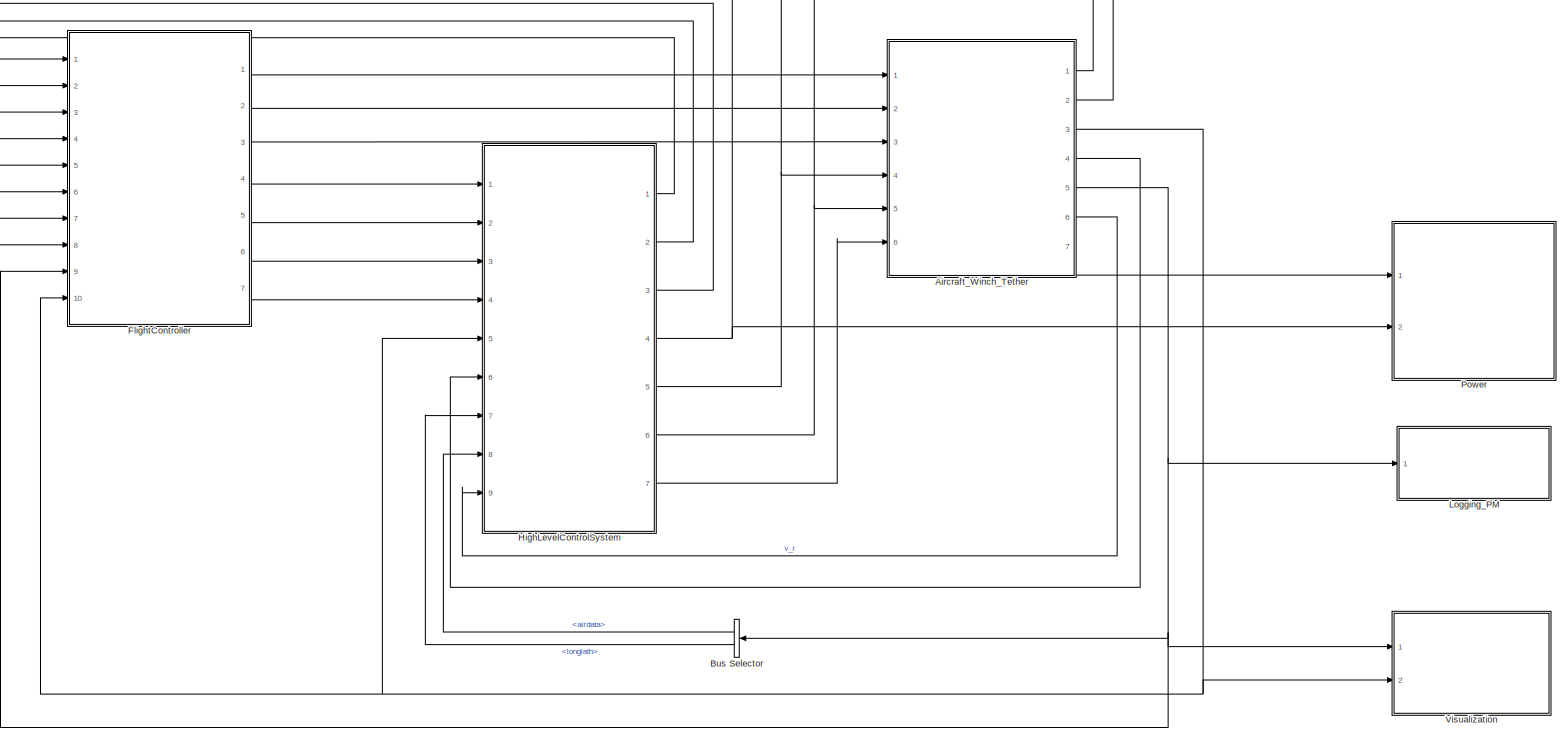
[diagram: root canvas - part 1/1, most of the canvas]
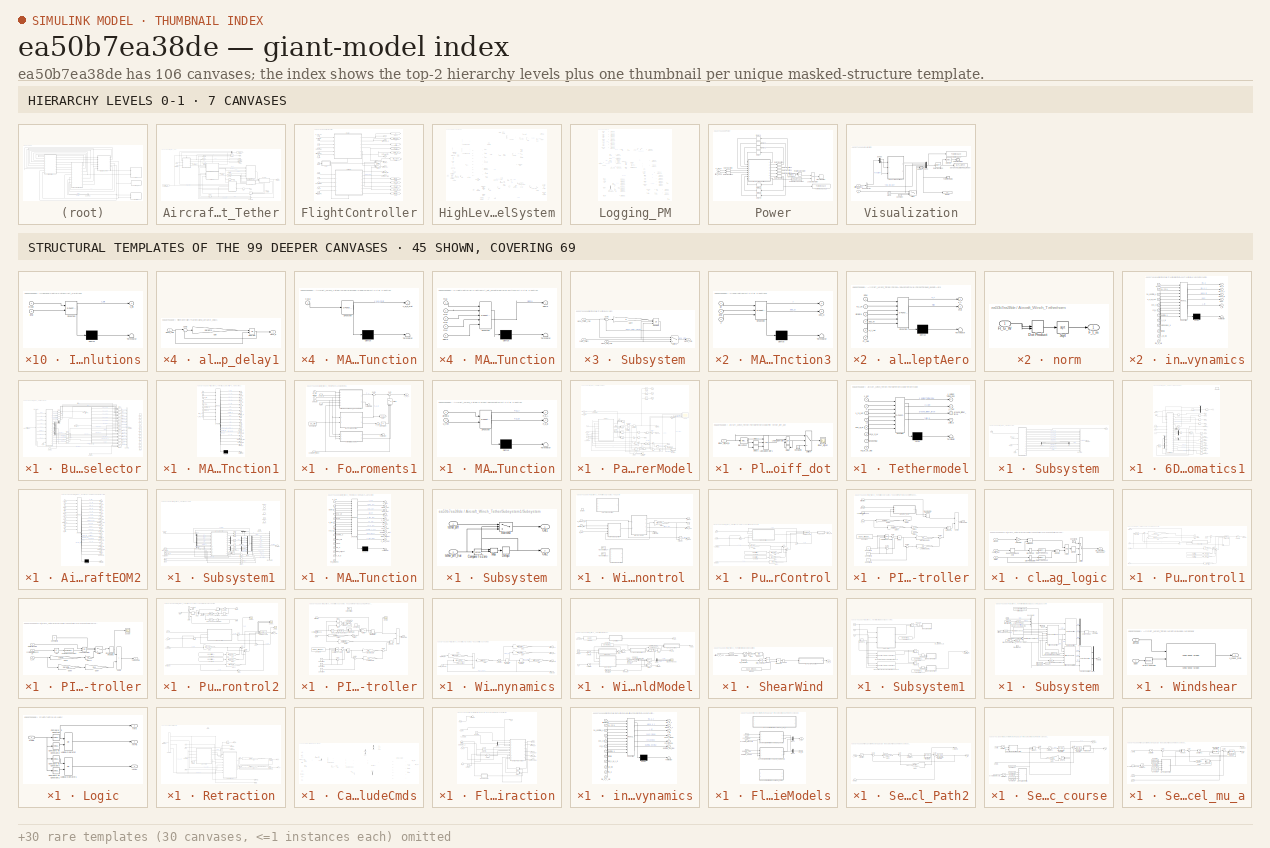
[diagram: thumbnail index - top-2 hierarchy levels (7 canvases) + 45 structural-template representatives of the remaining 99 canvases]
MODEL slx_ea50b7ea38de
KIND model
CONFIG AbsTol = auto
CONFIG EnableMultiTasking = on
CONFIG FixedStep = dt
CONFIG MaxStep = auto
CONFIG MinStep = auto
CONFIG RelTol = 1e-3
CONFIG SampleTimeConstraint = Unconstrained
CONFIG SolverName = ode4
CONFIG StartTime = 0.0
CONFIG StopTime = 300
BLOCK [SubSystem] Aircraft_Winch_Tether
  Ports = [6, 7]
  RequestExecContextInheritance = off
BLOCK [Outport] Aircraft_Winch_Tether/AirframeOutput_Bus
  Port = 5
  VectorParamsAs1DForOutWhenUnconnected = off
BLOCK [SubSystem] Aircraft_Winch_Tether/Bus Selector
  PortSchema = {"entries":[{"content":{"sides":[{"content":{"connectorIds":["In1","In2","In3"]},"type":"ConnectorPlacement.EquallySpacedRectSide","uuid":"e2ab3ba8-f9f5-4bb0-af4c-3fe158d9c7f2"},{"content":{"connectorIds":["Out1","Out2"],"side":"RIGHT"},"type":"ConnectorPlacement.EquallySpacedRectSide","uuid":"54795f1d-c357-49f1-9330-7dd1b9d78901"},{"content":{"connectorIds":[],"side":"TOP"},"type":"ConnectorPlace...<+408ch>
  Ports = [4, 2]
  RequestExecContextInheritance = off
BLOCK [Inport] Aircraft_Winch_Tether/Bus Selector/AirframeOutput_Bus
  Port = 3
BLOCK [BusCreator] Aircraft_Winch_Tether/Bus Selector/Bus Creator1
  DisplayOption = bar
  InheritFromInputs = on
  Inputs = 13
  Ports = [13, 1]
BLOCK [BusSelector] Aircraft_Winch_Tether/Bus Selector/Bus Selector
  OutputSignals = long,lat,h_tau,Va,chi_a,gamma_a,alpha_a,mu_a,tether_diff_dot
  Ports = [1, 9]
BLOCK [BusSelector] Aircraft_Winch_Tether/Bus Selector/Bus Selector1
  OutputSignals = pos_G_O_m,pos_G_W_m,vel_K_W_mDs,vel_K_O_mDs,vel_K_B_mDs,eta_OB_rad,eta_tauB_rad,airdata,pathAngles_a,pathAngles_k,pathAngles_tau_k,longlath
  Ports = [1, 12]
BLOCK [Constant] Aircraft_Winch_Tether/Bus Selector/Constant1
  Value = 0
BLOCK [Constant] Aircraft_Winch_Tether/Bus Selector/Constant2
  Value = 0
BLOCK [Delay] Aircraft_Winch_Tether/Bus Selector/Delay1
  Commented = on
  DelayLength = 1
  InitialCondition = simInit.v_k_O_init
  InputPortMap = u0
  Ports = [1, 1]
BLOCK [Delay] Aircraft_Winch_Tether/Bus Selector/Delay10
  DelayLength = 1
  InitialCondition = simInit.v_k_O_init
  InputPortMap = u0
  Ports = [1, 1]
BLOCK [Delay] Aircraft_Winch_Tether/Bus Selector/Delay11
  DelayLength = 1
  InitialCondition = zeros(2,1)
  InputPortMap = u0
  Ports = [1, 1]
BLOCK [Delay] Aircraft_Winch_Tether/Bus Selector/Delay12
  DelayLength = 1
  InitialCondition = simInit.EULER_init
  InputPortMap = u0
  Ports = [1, 1]
BLOCK [Delay] Aircraft_Winch_Tether/Bus Selector/Delay13
  DelayLength = 1
  InitialCondition = x0_sim(4:6)
  InputPortMap = u0
  Ports = [1, 1]
BLOCK [Delay] Aircraft_Winch_Tether/Bus Selector/Delay14
  Commented = on
  DelayLength = 1
  InitialCondition = x0_sim(1:3)
  InputPortMap = u0
  Ports = [1, 1]
BLOCK [Delay] Aircraft_Winch_Tether/Bus Selector/Delay15
  Commented = on
  DelayLength = 1
  InitialCondition = simInit.EULER_init
  InputPortMap = u0
  Ports = [1, 1]
BLOCK [Delay] Aircraft_Winch_Tether/Bus Selector/Delay16
  Commented = on
  DelayLength = 1
  InitialCondition = x0_sim(4:6)
  InputPortMap = u0
  Ports = [1, 1]
BLOCK [Delay] Aircraft_Winch_Tether/Bus Selector/Delay17
  Commented = on
  DelayLength = 1
  InitialCondition = simInit.pos_W_init
  InputPortMap = u0
  Ports = [1, 1]
BLOCK [Delay] Aircraft_Winch_Tether/Bus Selector/Delay19
  Commented = on
  DelayLength = 1
  InitialCondition = simInit.pos_O_init
  InputPortMap = u0
  Ports = [1, 1]
BLOCK [Delay] Aircraft_Winch_Tether/Bus Selector/Delay2
  Commented = on
  DelayLength = 1
  InitialCondition = simInit.pathangles_k_init'
  InputPortMap = u0
  Ports = [1, 1]
BLOCK [Delay] Aircraft_Winch_Tether/Bus Selector/Delay20
  Commented = on
  DelayLength = 1
  InitialCondition = zeros(2,1)
  InputPortMap = u0
  Ports = [1, 1]
BLOCK [Delay] Aircraft_Winch_Tether/Bus Selector/Delay21
  Commented = on
  DelayLength = 1
  InitialCondition = simInit.v_k_B_init
  InputPortMap = u0
  Ports = [1, 1]
BLOCK [Delay] Aircraft_Winch_Tether/Bus Selector/Delay23
  Commented = on
  DelayLength = 1
  InitialCondition = simInit.pathangles_k_init
  InputPortMap = u0
  Ports = [1, 1]
BLOCK [Delay] Aircraft_Winch_Tether/Bus Selector/Delay24
  Commented = on
  DelayLength = 1
  InitialCondition = simInit.v_k_W_init
  InputPortMap = u0
  Ports = [1, 1]
BLOCK [Delay] Aircraft_Winch_Tether/Bus Selector/Delay3
  Commented = on
  DelayLength = 1
  InitialCondition = x0_sim(10:12)
  InputPortMap = u0
  Ports = [1, 1]
BLOCK [Delay] Aircraft_Winch_Tether/Bus Selector/Delay4
  DelayLength = 1
  InitialCondition = simInit.M_OB
  InputPortMap = u0
  Ports = [1, 1]
BLOCK [Delay] Aircraft_Winch_Tether/Bus Selector/Delay5
  DelayLength = 1
  InitialCondition = simInit.pos_W_init
  InputPortMap = u0
  Ports = [1, 1]
BLOCK [Delay] Aircraft_Winch_Tether/Bus Selector/Delay6
  DelayLength = 1
  InitialCondition = simInit.pos_O_init'
  InputPortMap = u0
  Ports = [1, 1]
BLOCK [Delay] Aircraft_Winch_Tether/Bus Selector/Delay7
  DelayLength = 1
  InitialCondition = simInit.v_k_B_init
  InputPortMap = u0
  Ports = [1, 1]
BLOCK [Delay] Aircraft_Winch_Tether/Bus Selector/Delay8
  DelayLength = 1
  InitialCondition = simInit.pathangles_k_init
  InputPortMap = u0
  Ports = [1, 1]
BLOCK [Delay] Aircraft_Winch_Tether/Bus Selector/Delay9
  DelayLength = 1
  InitialCondition = simInit.v_k_W_init
  InputPortMap = u0
  Ports = [1, 1]
BLOCK [SubSystem] Aircraft_Winch_Tether/Bus Selector/MATLAB Function1
  ErrorFcn = Stateflow.Translate.translate
  PermitHierarchicalResolution = ExplicitOnly
  Ports = [9, 18]
  RequestExecContextInheritance = off
  SFBlockType = MATLAB Function
  TreatAsAtomicUnit = on
BLOCK [Demux] Aircraft_Winch_Tether/Bus Selector/MATLAB Function1/ Demux 
  Outputs = 1
  Ports = [1, 1]
BLOCK [S-Function] Aircraft_Winch_Tether/Bus Selector/MATLAB Function1/ SFunction 
  EnableBusSupport = on
  FunctionName = sf_sfun
  Parameters = ENVMT
  PortCounts = [9 19]
  Ports = [9, 19]
  SFcnIsStateOwnerBlock = off
  SFunctionDeploymentMode = off
  Tag = Stateflow S-Function 16
BLOCK [Terminator] Aircraft_Winch_Tether/Bus Selector/MATLAB Function1/ Terminator 
BLOCK [Outport] Aircraft_Winch_Tether/Bus Selector/MATLAB Function1/EULER_tau
  Port = 17
BLOCK [Outport] Aircraft_Winch_Tether/Bus Selector/MATLAB Function1/M_OB
BLOCK [Outport] Aircraft_Winch_Tether/Bus Selector/MATLAB Function1/Va
  Port = 6
BLOCK [Inport] Aircraft_Winch_Tether/Bus Selector/MATLAB Function1/Va 
  Port = 4
BLOCK [Outport] Aircraft_Winch_Tether/Bus Selector/MATLAB Function1/alpha_a
  Port = 18
BLOCK [Inport] Aircraft_Winch_Tether/Bus Selector/MATLAB Function1/alpha_a 
  Port = 7
BLOCK [Outport] Aircraft_Winch_Tether/Bus Selector/MATLAB Function1/chi_a
  Port = 7
BLOCK [Inport] Aircraft_Winch_Tether/Bus Selector/MATLAB Function1/chi_a 
  Port = 5
BLOCK [Outport] Aircraft_Winch_Tether/Bus Selector/MATLAB Function1/chi_k
  Port = 12
BLOCK [Outport] Aircraft_Winch_Tether/Bus Selector/MATLAB Function1/eta_EULER
  Port = 14
BLOCK [Outport] Aircraft_Winch_Tether/Bus Selector/MATLAB Function1/gamma_a
  Port = 8
BLOCK [Inport] Aircraft_Winch_Tether/Bus Selector/MATLAB Function1/gamma_a 
  Port = 6
BLOCK [Outport] Aircraft_Winch_Tether/Bus Selector/MATLAB Function1/gamma_k
  Port = 13
BLOCK [Outport] Aircraft_Winch_Tether/Bus Selector/MATLAB Function1/h_tau
  Port = 11
BLOCK [Inport] Aircraft_Winch_Tether/Bus Selector/MATLAB Function1/h_tau 
  Port = 3
BLOCK [Outport] Aircraft_Winch_Tether/Bus Selector/MATLAB Function1/lat
  Port = 10
BLOCK [Inport] Aircraft_Winch_Tether/Bus Selector/MATLAB Function1/lat 
  Port = 2
BLOCK [Outport] Aircraft_Winch_Tether/Bus Selector/MATLAB Function1/long
  Port = 9
BLOCK [Inport] Aircraft_Winch_Tether/Bus Selector/MATLAB Function1/long 
BLOCK [Inport] Aircraft_Winch_Tether/Bus Selector/MATLAB Function1/mu_a
  Port = 8
BLOCK [Outport] Aircraft_Winch_Tether/Bus Selector/MATLAB Function1/pathangle_tau
  Port = 16
BLOCK [Outport] Aircraft_Winch_Tether/Bus Selector/MATLAB Function1/pos_O
  Port = 3
BLOCK [Outport] Aircraft_Winch_Tether/Bus Selector/MATLAB Function1/pos_W
  Port = 4
BLOCK [Outport] Aircraft_Winch_Tether/Bus Selector/MATLAB Function1/v_k_B
  Port = 5
BLOCK [Outport] Aircraft_Winch_Tether/Bus Selector/MATLAB Function1/v_k_O
  Port = 15
BLOCK [Outport] Aircraft_Winch_Tether/Bus Selector/MATLAB Function1/v_k_W
  Port = 2
BLOCK [Inport] Aircraft_Winch_Tether/Bus Selector/MATLAB Function1/v_w_O
  Port = 9
BLOCK [Mux] Aircraft_Winch_Tether/Bus Selector/Mux10
  DisplayOption = bar
  Inputs = 3
  Ports = [3, 1]
BLOCK [Mux] Aircraft_Winch_Tether/Bus Selector/Mux7
  DisplayOption = bar
  Inputs = 2
  Ports = [2, 1]
BLOCK [Mux] Aircraft_Winch_Tether/Bus Selector/Mux8
  DisplayOption = bar
  Inputs = 2
  Ports = [2, 1]
BLOCK [Mux] Aircraft_Winch_Tether/Bus Selector/Mux9
  DisplayOption = bar
  Inputs = 3
  Ports = [3, 1]
BLOCK [Outport] Aircraft_Winch_Tether/Bus Selector/Output Bus
BLOCK [Switch] Aircraft_Winch_Tether/Bus Selector/Switch1
  Criteria = u2 > Threshold
  InputSameDT = off
  SaturateOnIntegerOverflow = off
BLOCK [Switch] Aircraft_Winch_Tether/Bus Selector/Switch10
  Criteria = u2 > Threshold
  InputSameDT = off
  SaturateOnIntegerOverflow = off
BLOCK [Switch] Aircraft_Winch_Tether/Bus Selector/Switch11
  Criteria = u2 > Threshold
  InputSameDT = off
  SaturateOnIntegerOverflow = off
BLOCK [Switch] Aircraft_Winch_Tether/Bus Selector/Switch12
  Criteria = u2 > Threshold
  InputSameDT = off
  SaturateOnIntegerOverflow = off
BLOCK [Switch] Aircraft_Winch_Tether/Bus Selector/Switch13
  Criteria = u2 > Threshold
  InputSameDT = off
  SaturateOnIntegerOverflow = off
BLOCK [Switch] Aircraft_Winch_Tether/Bus Selector/Switch2
  Criteria = u2 > Threshold
  InputSameDT = off
  SaturateOnIntegerOverflow = off
BLOCK [Switch] Aircraft_Winch_Tether/Bus Selector/Switch3
  Criteria = u2 > Threshold
  InputSameDT = off
  SaturateOnIntegerOverflow = off
BLOCK [Switch] Aircraft_Winch_Tether/Bus Selector/Switch4
  Criteria = u2 > Threshold
  InputSameDT = off
  SaturateOnIntegerOverflow = off
BLOCK [Switch] Aircraft_Winch_Tether/Bus Selector/Switch5
  Criteria = u2 > Threshold
  InputSameDT = off
  SaturateOnIntegerOverflow = off
BLOCK [Switch] Aircraft_Winch_Tether/Bus Selector/Switch6
  Criteria = u2 > Threshold
  InputSameDT = off
  SaturateOnIntegerOverflow = off
BLOCK [Switch] Aircraft_Winch_Tether/Bus Selector/Switch7
  Criteria = u2 > Threshold
  InputSameDT = off
  SaturateOnIntegerOverflow = off
BLOCK [Switch] Aircraft_Winch_Tether/Bus Selector/Switch8
  Criteria = u2 > Threshold
  InputSameDT = off
  SaturateOnIntegerOverflow = off
BLOCK [Switch] Aircraft_Winch_Tether/Bus Selector/Switch9
  Criteria = u2 > Threshold
  InputSameDT = off
  SaturateOnIntegerOverflow = off
BLOCK [Inport] Aircraft_Winch_Tether/Bus Selector/safety_critical_Bus
BLOCK [Outport] Aircraft_Winch_Tether/Bus Selector/safety_critical_M_OB
  Port = 2
BLOCK [Inport] Aircraft_Winch_Tether/Bus Selector/switch
  Port = 4
BLOCK [Inport] Aircraft_Winch_Tether/Bus Selector/v_w_O
  Port = 2
BLOCK [BusSelector] Aircraft_Winch_Tether/Bus Selector1
  NameLocation = top
  OutputSignals = airdata,vel_K_W_mDs,pos_G_W_m
  Ports = [1, 3]
BLOCK [Constant] Aircraft_Winch_Tether/Constant3
  Value = complex_tether_flag
BLOCK [Delay] Aircraft_Winch_Tether/Delay
  DelayLength = 1
  InitialCondition = [1;1;-P_AP2.mass*10]
  InputPortMap = u0
  Ports = [1, 1]
BLOCK [Outport] Aircraft_Winch_Tether/F_a_B
  VectorParamsAs1DForOutWhenUnconnected = off
BLOCK [Outport] Aircraft_Winch_Tether/F_t_m
  Port = 3
  VectorParamsAs1DForOutWhenUnconnected = off
BLOCK [SubSystem] Aircraft_Winch_Tether/ForcesAndMoments1
  Ports = [6, 2]
  RequestExecContextInheritance = off
BLOCK [Constant] Aircraft_Winch_Tether/ForcesAndMoments1/Constant
  Value = 0
BLOCK [Constant] Aircraft_Winch_Tether/ForcesAndMoments1/Constant1
  Value = u0_sim
BLOCK [Outport] Aircraft_Winch_Tether/ForcesAndMoments1/F_a_B
  Port = 2
  VectorParamsAs1DForOutWhenUnconnected = off
BLOCK [Outport] Aircraft_Winch_Tether/ForcesAndMoments1/F_tot_A
  VectorParamsAs1DForOutWhenUnconnected = off
BLOCK [Inport] Aircraft_Winch_Tether/ForcesAndMoments1/Ft_G_W
BLOCK [Inport] Aircraft_Winch_Tether/ForcesAndMoments1/Ft_tot
  Port = 2
BLOCK [Goto] Aircraft_Winch_Tether/ForcesAndMoments1/Goto
  GotoTag = F_a_A
  TagVisibility = global
BLOCK [SubSystem] Aircraft_Winch_Tether/ForcesAndMoments1/MATLAB Function
  ErrorFcn = Stateflow.Translate.translate
  PermitHierarchicalResolution = ExplicitOnly
  Ports = [2, 2]
  RequestExecContextInheritance = off
  SFBlockType = MATLAB Function
  TreatAsAtomicUnit = on
BLOCK [Demux] Aircraft_Winch_Tether/ForcesAndMoments1/MATLAB Function/ Demux 
  Outputs = 1
  Ports = [1, 1]
BLOCK [S-Function] Aircraft_Winch_Tether/ForcesAndMoments1/MATLAB Function/ SFunction 
  EnableBusSupport = on
  FunctionName = sf_sfun
  Parameters = P_AP2
  PortCounts = [2 3]
  Ports = [2, 3]
  SFcnIsStateOwnerBlock = off
  SFunctionDeploymentMode = off
  Tag = Stateflow S-Function 2
BLOCK [Terminator] Aircraft_Winch_Tether/ForcesAndMoments1/MATLAB Function/ Terminator 
BLOCK [Outport] Aircraft_Winch_Tether/ForcesAndMoments1/MATLAB Function/F_a_A
  VectorParamsAs1DForOutWhenUnconnected = off
BLOCK [Outport] Aircraft_Winch_Tether/ForcesAndMoments1/MATLAB Function/F_a_B
  Port = 2
  VectorParamsAs1DForOutWhenUnconnected = off
BLOCK [Inport] Aircraft_Winch_Tether/ForcesAndMoments1/MATLAB Function/airdata
BLOCK [Inport] Aircraft_Winch_Tether/ForcesAndMoments1/MATLAB Function/u_trim
  Port = 2
BLOCK [Inport] Aircraft_Winch_Tether/ForcesAndMoments1/M_OB
  Port = 6
  PortDimensions = [3,3]
BLOCK [Sum] Aircraft_Winch_Tether/ForcesAndMoments1/Sum
  Inputs = |++
  Ports = [2, 1]
BLOCK [Sum] Aircraft_Winch_Tether/ForcesAndMoments1/Sum1
  Inputs = |++
  Ports = [2, 1]
BLOCK [Switch] Aircraft_Winch_Tether/ForcesAndMoments1/Switch
  Criteria = u2 > Threshold
  InputSameDT = off
  NameLocation = right
  SaturateOnIntegerOverflow = off
BLOCK [Terminator] Aircraft_Winch_Tether/ForcesAndMoments1/Terminator
BLOCK [Terminator] Aircraft_Winch_Tether/ForcesAndMoments1/Terminator2
BLOCK [SubSystem] Aircraft_Winch_Tether/ForcesAndMoments1/TetherDragApprox
  ErrorFcn = Stateflow.Translate.translate
  PermitHierarchicalResolution = ExplicitOnly
  Ports = [3, 2]
  RequestExecContextInheritance = off
  SFBlockType = MATLAB Function
  TreatAsAtomicUnit = on
BLOCK [Demux] Aircraft_Winch_Tether/ForcesAndMoments1/TetherDragApprox/ Demux 
  Outputs = 1
  Ports = [1, 1]
BLOCK [S-Function] Aircraft_Winch_Tether/ForcesAndMoments1/TetherDragApprox/ SFunction 
  EnableBusSupport = on
  FunctionName = sf_sfun
  Parameters = ENVMT,T
  PortCounts = [3 3]
  Ports = [3, 3]
  SFcnIsStateOwnerBlock = off
  SFunctionDeploymentMode = off
  Tag = Stateflow S-Function 3
BLOCK [Terminator] Aircraft_Winch_Tether/ForcesAndMoments1/TetherDragApprox/ Terminator 
BLOCK [Outport] Aircraft_Winch_Tether/ForcesAndMoments1/TetherDragApprox/Ftd_A
  VectorParamsAs1DForOutWhenUnconnected = off
BLOCK [Outport] Aircraft_Winch_Tether/ForcesAndMoments1/TetherDragApprox/Ftd_A2
  Port = 2
  VectorParamsAs1DForOutWhenUnconnected = off
BLOCK [Inport] Aircraft_Winch_Tether/ForcesAndMoments1/TetherDragApprox/M_OB
  Port = 3
BLOCK [Inport] Aircraft_Winch_Tether/ForcesAndMoments1/TetherDragApprox/airdata
BLOCK [Inport] Aircraft_Winch_Tether/ForcesAndMoments1/TetherDragApprox/pos_W
  Port = 2
BLOCK [Inport] Aircraft_Winch_Tether/ForcesAndMoments1/airdata
  Port = 4
  PortDimensions = [3,1]
BLOCK [SubSystem] Aircraft_Winch_Tether/ForcesAndMoments1/allForcesTorques_exceptAero
  ErrorFcn = Stateflow.Translate.translate
  PermitHierarchicalResolution = ExplicitOnly
  Ports = [6, 2]
  RequestExecContextInheritance = off
  SFBlockType = MATLAB Function
  TreatAsAtomicUnit = on
BLOCK [Demux] Aircraft_Winch_Tether/ForcesAndMoments1/allForcesTorques_exceptAero/ Demux 
  Outputs = 1
  Ports = [1, 1]
BLOCK [S-Function] Aircraft_Winch_Tether/ForcesAndMoments1/allForcesTorques_exceptAero/ SFunction 
  EnableBusSupport = on
  FunctionName = sf_sfun
  Parameters = ENVMT,P_AP2
  PortCounts = [6 3]
  Ports = [6, 3]
  SFcnIsStateOwnerBlock = off
  SFunctionDeploymentMode = off
  Tag = Stateflow S-Function 5
BLOCK [Terminator] Aircraft_Winch_Tether/ForcesAndMoments1/allForcesTorques_exceptAero/ Terminator 
BLOCK [Inport] Aircraft_Winch_Tether/ForcesAndMoments1/allForcesTorques_exceptAero/DCM
BLOCK [Outport] Aircraft_Winch_Tether/ForcesAndMoments1/allForcesTorques_exceptAero/F_A
  VectorParamsAs1DForOutWhenUnconnected = off
BLOCK [Inport] Aircraft_Winch_Tether/ForcesAndMoments1/allForcesTorques_exceptAero/F_t_W
  Port = 2
BLOCK [Inport] Aircraft_Winch_Tether/ForcesAndMoments1/allForcesTorques_exceptAero/F_t_tot
  Port = 5
BLOCK [Inport] Aircraft_Winch_Tether/ForcesAndMoments1/allForcesTorques_exceptAero/Ft_flag
  Port = 6
BLOCK [Outport] Aircraft_Winch_Tether/ForcesAndMoments1/allForcesTorques_exceptAero/Ftot
  Port = 2
  VectorParamsAs1DForOutWhenUnconnected = off
BLOCK [Inport] Aircraft_Winch_Tether/ForcesAndMoments1/allForcesTorques_exceptAero/airdata
  Port = 3
BLOCK [Inport] Aircraft_Winch_Tether/ForcesAndMoments1/allForcesTorques_exceptAero/pos_W
  Port = 4
BLOCK [Inport] Aircraft_Winch_Tether/ForcesAndMoments1/complex_tether
  Port = 3
BLOCK [Inport] Aircraft_Winch_Tether/ForcesAndMoments1/pos_W
  Port = 5
BLOCK [Inport] Aircraft_Winch_Tether/Ft_set
  Port = 4
  PortDimensions = 1
BLOCK [Goto] Aircraft_Winch_Tether/Goto
  GotoTag = v_w_W
  TagVisibility = global
BLOCK [Goto] Aircraft_Winch_Tether/Goto1
  GotoTag = P_mech
  TagVisibility = global
BLOCK [Goto] Aircraft_Winch_Tether/Goto2
  GotoTag = TetherForce
  TagVisibility = global
BLOCK [Goto] Aircraft_Winch_Tether/Goto3
  GotoTag = tether_length
  TagVisibility = global
BLOCK [Goto] Aircraft_Winch_Tether/Goto4
  GotoTag = winch_acc
  TagVisibility = global
BLOCK [Goto] Aircraft_Winch_Tether/Goto5
  GotoTag = v_reel
  TagVisibility = global
BLOCK [Mux] Aircraft_Winch_Tether/Mux1
  DisplayOption = bar
  Inputs = 2
  Ports = [2, 1]
BLOCK [Outport] Aircraft_Winch_Tether/P_mech
  Port = 7
  VectorParamsAs1DForOutWhenUnconnected = off
BLOCK [SubSystem] Aircraft_Winch_Tether/ParticleTetherModel
  PortSchema = {"entries":[{"content":{"sides":[{"content":{"connectorIds":["In1","In2","In3","In4"]},"type":"ConnectorPlacement.EquallySpacedRectSide","uuid":"ca78405c-c6d3-477d-b0a8-668910473732"},{"content":{"connectorIds":["Out1","Out2","Out3","Out4"],"side":"RIGHT"},"type":"ConnectorPlacement.EquallySpacedRectSide","uuid":"a5c38c1a-07d2-4efb-bc49-b1eee8e8eb74"},{"content":{"connectorIds":["In5"],"side":"TOP...<+440ch>
  Ports = [6, 5]
  RequestExecContextInheritance = off
BLOCK [Constant] Aircraft_Winch_Tether/ParticleTetherModel/Constant
  Value = 0
BLOCK [Constant] Aircraft_Winch_Tether/ParticleTetherModel/Constant1
  Value = 0
BLOCK [Constant] Aircraft_Winch_Tether/ParticleTetherModel/Constant2
  Value = zeros(3,1)
BLOCK [Delay] Aircraft_Winch_Tether/ParticleTetherModel/Delay
  DelayLength = 1
  InitialCondition = zeros(3,1)
  InputPortMap = u0
  Ports = [1, 1]
BLOCK [Delay] Aircraft_Winch_Tether/ParticleTetherModel/Delay1
  DelayLength = 1
  InitialCondition = zeros(3,1)
  InputPortMap = u0
  Ports = [1, 1]
BLOCK [Derivative] Aircraft_Winch_Tether/ParticleTetherModel/Derivative
BLOCK [Derivative] Aircraft_Winch_Tether/ParticleTetherModel/Derivative1
BLOCK [DiscreteIntegrator] Aircraft_Winch_Tether/ParticleTetherModel/Discrete-Time Integrator1
  ICPrevOutput = DiscIntNeverNeededParam
  ICPrevScaledInput = DiscIntNeverNeededParam
  InitialCondition = simInit.vel_p_init
  InitialConditionSetting = Auto
  Ports = [1, 1]
  SampleTime = simInit.dt
BLOCK [DiscreteIntegrator] Aircraft_Winch_Tether/ParticleTetherModel/Discrete-Time Integrator4
  ICPrevOutput = DiscIntNeverNeededParam
  ICPrevScaledInput = DiscIntNeverNeededParam
  InitialCondition = simInit.pos_p_init -1
  InitialConditionSetting = Auto
  LowerSaturationLimit = 0
  Ports = [1, 1]
  SampleTime = simInit.dt
BLOCK [DiscreteIntegrator] Aircraft_Winch_Tether/ParticleTetherModel/Discrete-Time Integrator5
  ICPrevOutput = DiscIntNeverNeededParam
  ICPrevScaledInput = DiscIntNeverNeededParam
  InitialCondition = T.l0
  InitialConditionSetting = Auto
  Ports = [1, 1]
  SampleTime = simInit.dt
BLOCK [Product] Aircraft_Winch_Tether/ParticleTetherModel/Divide
  Inputs = */
  Ports = [2, 1]
BLOCK [DotProduct] Aircraft_Winch_Tether/ParticleTetherModel/Dot Product
  OutDataTypeStr = Inherit: Inherit via internal rule
BLOCK [DotProduct] Aircraft_Winch_Tether/ParticleTetherModel/Dot Product1
  OutDataTypeStr = Inherit: Inherit via internal rule
BLOCK [DotProduct] Aircraft_Winch_Tether/ParticleTetherModel/Dot Product2
  OutDataTypeStr = Inherit: Inherit via internal rule
BLOCK [Outport] Aircraft_Winch_Tether/ParticleTetherModel/Ft_G_W
  Port = 4
  VectorParamsAs1DForOutWhenUnconnected = off
BLOCK [Outport] Aircraft_Winch_Tether/ParticleTetherModel/Ft_ground_W
  VectorParamsAs1DForOutWhenUnconnected = off
BLOCK [Gain] Aircraft_Winch_Tether/ParticleTetherModel/Gain
  Gain = -1
BLOCK [Gain] Aircraft_Winch_Tether/ParticleTetherModel/Gain1
  Gain = 0
BLOCK [Gain] Aircraft_Winch_Tether/ParticleTetherModel/Gain2
  Gain = 1/100
BLOCK [Gain] Aircraft_Winch_Tether/ParticleTetherModel/Gain3
  Gain = 1/100
BLOCK [Goto] Aircraft_Winch_Tether/ParticleTetherModel/Goto
  Commented = on
  GotoTag = p_t_z
  TagVisibility = global
BLOCK [Goto] Aircraft_Winch_Tether/ParticleTetherModel/Goto1
  Commented = on
  GotoTag = p_t_y
  TagVisibility = global
BLOCK [Goto] Aircraft_Winch_Tether/ParticleTetherModel/Goto2
  Commented = on
  GotoTag = p_t_x
  TagVisibility = global
BLOCK [Logic] Aircraft_Winch_Tether/ParticleTetherModel/Logical Operator
  AllPortsSameDT = off
  Operator = NOT
  OutDataTypeStr = boolean
  Ports = [1, 1]
BLOCK [SubSystem] Aircraft_Winch_Tether/ParticleTetherModel/Plot tether_diff_dot
  Ports = [1]
  RequestExecContextInheritance = off
BLOCK [Constant] Aircraft_Winch_Tether/ParticleTetherModel/Plot tether_diff_dot/Constant3
  Value = 0
BLOCK [Delay] Aircraft_Winch_Tether/ParticleTetherModel/Plot tether_diff_dot/Delay
  DelayLength = 1
  InitialCondition = 0
  InputPortMap = u0
  Ports = [1, 1]
BLOCK [Delay] Aircraft_Winch_Tether/ParticleTetherModel/Plot tether_diff_dot/Delay1
  DelayLength = 1
  InitialCondition = 0
  InputPortMap = u0
  Ports = [1, 1]
  SampleTime = 0.5
BLOCK [Delay] Aircraft_Winch_Tether/ParticleTetherModel/Plot tether_diff_dot/Delay2
  DelayLength = 1
  InitialCondition = 0
  InputPortMap = u0
  Ports = [1, 1]
  SampleTime = 0.25
BLOCK [Reference] Aircraft_Winch_Tether/ParticleTetherModel/Plot tether_diff_dot/Interval Test  REF=simulink/Logic and Bit
Operations/Interval Test
  Ports = [1, 1]
  SourceBlock = simulink/Logic and Bit\nOperations/Interval Test
  SourceProductBaseCode = SL
  SourceType = Interval Test
BLOCK [Logic] Aircraft_Winch_Tether/ParticleTetherModel/Plot tether_diff_dot/Logical Operator1
  AllPortsSameDT = off
  Inputs = 3
  OutDataTypeStr = boolean
  Ports = [3, 1]
BLOCK [Logic] Aircraft_Winch_Tether/ParticleTetherModel/Plot tether_diff_dot/Logical Operator2
  AllPortsSameDT = off
  Operator = OR
  OutDataTypeStr = boolean
  Ports = [2, 1]
BLOCK [Switch] Aircraft_Winch_Tether/ParticleTetherModel/Plot tether_diff_dot/Switch4
  Criteria = u2 > Threshold
  InputSameDT = off
  SaturateOnIntegerOverflow = off
BLOCK [Scope] Aircraft_Winch_Tether/ParticleTetherModel/Plot tether_diff_dot/tether_diff_dot
  Floating = off
  NumInputPorts = 1
  Ports = [1]
  ScopeSpecificationString = Simulink.scopes.TimeScopeBlockCfg('CurrentConfiguration', extmgr.ConfigurationSet(extmgr.Configuration('Core','General UI',true,'FigureColor',[1 1 1]),extmgr.Configuration('Core','Source UI',true),extmgr.Configuration('Sources','WiredSimulink',true,'DataLoggingVariableName','ScopeData1'),extmgr.Configuration('Visuals','Time Domain',true,'SerializedDisplays',{struct('MinYLimReal','-0.00095','MaxYLi...<+1533ch>
BLOCK [Inport] Aircraft_Winch_Tether/ParticleTetherModel/Plot tether_diff_dot/tether_diff_dot_is
BLOCK [Selector] Aircraft_Winch_Tether/ParticleTetherModel/Selector1
  Commented = on
  IndexOptions = Index vector (dialog)
  Indices = 3:3:3*T.np
  InputPortWidth = 3*T.np
  OutputSizes = 1
  Ports = [1, 1]
BLOCK [Selector] Aircraft_Winch_Tether/ParticleTetherModel/Selector2
  Commented = on
  IndexOptions = Index vector (dialog)
  Indices = 2:3:3*T.np-1
  InputPortWidth = 3*T.np
  OutputSizes = 1
  Ports = [1, 1]
BLOCK [Selector] Aircraft_Winch_Tether/ParticleTetherModel/Selector3
  Commented = on
  IndexOptions = Index vector (dialog)
  Indices = 1:3:3*T.np-2
  InputPortWidth = 3*T.np
  OutputSizes = 1
  Ports = [1, 1]
BLOCK [Selector] Aircraft_Winch_Tether/ParticleTetherModel/Selector4
  IndexOptions = Index vector (dialog)
  Indices = [13 14 15]
  InputPortWidth = 15
  OutputSizes = 3
  Ports = [1, 1]
BLOCK [Selector] Aircraft_Winch_Tether/ParticleTetherModel/Selector5
  IndexOptions = Index vector (dialog)
  Indices = [13 14 15]
  InputPortWidth = 15
  OutputSizes = 3
  Ports = [1, 1]
BLOCK [Sqrt] Aircraft_Winch_Tether/ParticleTetherModel/Sqrt
BLOCK [Sqrt] Aircraft_Winch_Tether/ParticleTetherModel/Sqrt1
BLOCK [Sum] Aircraft_Winch_Tether/ParticleTetherModel/Sum
  Inputs = |-+
  Ports = [2, 1]
BLOCK [Sum] Aircraft_Winch_Tether/ParticleTetherModel/Sum1
  Inputs = |+-
  Ports = [2, 1]
BLOCK [Sum] Aircraft_Winch_Tether/ParticleTetherModel/Sum2
  Inputs = |-+
  Ports = [2, 1]
BLOCK [Sum] Aircraft_Winch_Tether/ParticleTetherModel/Sum3
  Inputs = |+-
  Ports = [2, 1]
BLOCK [Sum] Aircraft_Winch_Tether/ParticleTetherModel/Sum4
  Inputs = |+-
  Ports = [2, 1]
BLOCK [Switch] Aircraft_Winch_Tether/ParticleTetherModel/Switch
  Criteria = u2 > Threshold
  InputSameDT = off
  SaturateOnIntegerOverflow = off
BLOCK [Switch] Aircraft_Winch_Tether/ParticleTetherModel/Switch1
  Criteria = u2 > Threshold
  InputSameDT = off
  SaturateOnIntegerOverflow = off
BLOCK [Switch] Aircraft_Winch_Tether/ParticleTetherModel/Switch2
  Criteria = u2 > Threshold
  InputSameDT = off
  SaturateOnIntegerOverflow = off
BLOCK [Switch] Aircraft_Winch_Tether/ParticleTetherModel/Switch3
  Criteria = u2 > Threshold
  InputSameDT = off
  SaturateOnIntegerOverflow = off
BLOCK [SubSystem] Aircraft_Winch_Tether/ParticleTetherModel/Tethermodel
  ErrorFcn = Stateflow.Translate.translate
  PermitHierarchicalResolution = ExplicitOnly
  Ports = [8, 4]
  RequestExecContextInheritance = off
  SFBlockType = MATLAB Function
  TreatAsAtomicUnit = on
BLOCK [Demux] Aircraft_Winch_Tether/ParticleTetherModel/Tethermodel/ Demux 
  Outputs = 1
  Ports = [1, 1]
BLOCK [S-Function] Aircraft_Winch_Tether/ParticleTetherModel/Tethermodel/ SFunction 
  EnableBusSupport = on
  FunctionName = sf_sfun
  Parameters = ENVMT,P_AP2,T
  PortCounts = [8 5]
  Ports = [8, 5]
  SFcnIsStateOwnerBlock = off
  SFunctionDeploymentMode = off
  Tag = Stateflow S-Function 24
BLOCK [Terminator] Aircraft_Winch_Tether/ParticleTetherModel/Tethermodel/ Terminator 
BLOCK [Outport] Aircraft_Winch_Tether/ParticleTetherModel/Tethermodel/f_kite_G
  Port = 4
  VectorParamsAs1DForOutWhenUnconnected = off
BLOCK [Outport] Aircraft_Winch_Tether/ParticleTetherModel/Tethermodel/ground_tether_force
  Port = 3
  VectorParamsAs1DForOutWhenUnconnected = off
BLOCK [Inport] Aircraft_Winch_Tether/ParticleTetherModel/Tethermodel/l_s
  Port = 4
BLOCK [Outport] Aircraft_Winch_Tether/ParticleTetherModel/Tethermodel/l_s_dot
  Port = 2
  VectorParamsAs1DForOutWhenUnconnected = off
BLOCK [Inport] Aircraft_Winch_Tether/ParticleTetherModel/Tethermodel/landedFlag
  Port = 7
BLOCK [Inport] Aircraft_Winch_Tether/ParticleTetherModel/Tethermodel/pos_G_W
  Port = 5
BLOCK [Inport] Aircraft_Winch_Tether/ParticleTetherModel/Tethermodel/v_ro_set
  Port = 3
BLOCK [Inport] Aircraft_Winch_Tether/ParticleTetherModel/Tethermodel/vel_W_W_mat
  Port = 8
BLOCK [Inport] Aircraft_Winch_Tether/ParticleTetherModel/Tethermodel/vel_k_G_W
  Port = 6
BLOCK [Inport] Aircraft_Winch_Tether/ParticleTetherModel/Tethermodel/x
  Port = 2
BLOCK [Inport] Aircraft_Winch_Tether/ParticleTetherModel/Tethermodel/x_dot
BLOCK [Outport] Aircraft_Winch_Tether/ParticleTetherModel/Tethermodel/x_dotdot_TetherG2K
  VectorParamsAs1DForOutWhenUnconnected = off
BLOCK [Scope] Aircraft_Winch_Tether/ParticleTetherModel/l_s_differentiation comparision
  Floating = off
  NumInputPorts = 2
  Ports = [2]
  ScopeSpecificationString = Simulink.scopes.TimeScopeBlockCfg('CurrentConfiguration', extmgr.ConfigurationSet(extmgr.Configuration('Core','General UI',true),extmgr.Configuration('Core','Source UI',true),extmgr.Configuration('Sources','WiredSimulink',true,'DataLoggingVariableName','ScopeData2'),extmgr.Configuration('Visuals','Time Domain',true,'SerializedDisplays',{struct('MinYLimReal','-1.09076','MaxYLimReal','1.78244','YLab...<+1506ch>
BLOCK [Inport] Aircraft_Winch_Tether/ParticleTetherModel/pos_G_W
  Port = 3
BLOCK [Outport] Aircraft_Winch_Tether/ParticleTetherModel/pos_tether_particles_W
  Port = 5
  VectorParamsAs1DForOutWhenUnconnected = off
BLOCK [Inport] Aircraft_Winch_Tether/ParticleTetherModel/safety_control_switch
BLOCK [Inport] Aircraft_Winch_Tether/ParticleTetherModel/switch_on_off
  Port = 5
BLOCK [Outport] Aircraft_Winch_Tether/ParticleTetherModel/tether_diff
  Port = 2
BLOCK [Outport] Aircraft_Winch_Tether/ParticleTetherModel/tether_diff_dot
  Port = 3
BLOCK [Display] Aircraft_Winch_Tether/ParticleTetherModel/tether_diff_dot_diff
  Decimation = 1
  Ports = [1]
BLOCK [Inport] Aircraft_Winch_Tether/ParticleTetherModel/v_k_W
  Port = 4
BLOCK [Inport] Aircraft_Winch_Tether/ParticleTetherModel/v_ro
  Port = 2
BLOCK [Scope] Aircraft_Winch_Tether/ParticleTetherModel/v_ro Scope
  Floating = off
  NumInputPorts = 5
  Ports = [5]
  ScopeSpecificationString = Simulink.scopes.TimeScopeBlockCfg('CurrentConfiguration', extmgr.ConfigurationSet(extmgr.Configuration('Core','General UI',true),extmgr.Configuration('Core','Source UI',true),extmgr.Configuration('Sources','WiredSimulink',true,'DataLoggingVariableName','ScopeData1'),extmgr.Configuration('Visuals','Time Domain',true,'SerializedDisplays',{struct('MinYLimReal','-0.2042','MaxYLimReal','2.20108','YLabe...<+1485ch>
BLOCK [Inport] Aircraft_Winch_Tether/ParticleTetherModel/v_w_W_part_mat
  Port = 6
BLOCK [Selector] Aircraft_Winch_Tether/Selector1
  IndexOptions = Index vector (dialog)
  Indices = 1
  InputPortWidth = 3
  OutputSizes = 1
  Ports = [1, 1]
BLOCK [SubSystem] Aircraft_Winch_Tether/Subsystem
  MinAlgLoopOccurrences = on
  Ports = [4, 2]
  RequestExecContextInheritance = off
BLOCK [SubSystem] Aircraft_Winch_Tether/Subsystem/6DoFKinematics1
  Ports = [4, 15]
  RequestExecContextInheritance = off
BLOCK [SubSystem] Aircraft_Winch_Tether/Subsystem/6DoFKinematics1/AircraftEOM2
  ErrorFcn = Stateflow.Translate.translate
  PermitHierarchicalResolution = ExplicitOnly
  Ports = [11, 19]
  RequestExecContextInheritance = off
  SFBlockType = MATLAB Function
  TreatAsAtomicUnit = on
BLOCK [Demux] Aircraft_Winch_Tether/Subsystem/6DoFKinematics1/AircraftEOM2/ Demux 
  Outputs = 1
  Ports = [1, 1]
BLOCK [S-Function] Aircraft_Winch_Tether/Subsystem/6DoFKinematics1/AircraftEOM2/ SFunction 
  EnableBusSupport = on
  FunctionName = sf_sfun
  Parameters = ENVMT,P_AP2
  PortCounts = [11 20]
  Ports = [11, 20]
  SFcnIsStateOwnerBlock = off
  SFunctionDeploymentMode = off
  Tag = Stateflow S-Function 1
BLOCK [Terminator] Aircraft_Winch_Tether/Subsystem/6DoFKinematics1/AircraftEOM2/ Terminator 
BLOCK [Outport] Aircraft_Winch_Tether/Subsystem/6DoFKinematics1/AircraftEOM2/EULER_tau
  Port = 19
  VectorParamsAs1DForOutWhenUnconnected = off
BLOCK [Inport] Aircraft_Winch_Tether/Subsystem/6DoFKinematics1/AircraftEOM2/F_a_A
  Port = 6
BLOCK [Outport] Aircraft_Winch_Tether/Subsystem/6DoFKinematics1/AircraftEOM2/M_OB
  VectorParamsAs1DForOutWhenUnconnected = off
BLOCK [Inport] Aircraft_Winch_Tether/Subsystem/6DoFKinematics1/AircraftEOM2/Va
  Port = 2
BLOCK [Inport] Aircraft_Winch_Tether/Subsystem/6DoFKinematics1/AircraftEOM2/alpha
  Port = 3
BLOCK [Inport] Aircraft_Winch_Tether/Subsystem/6DoFKinematics1/AircraftEOM2/beta
  Port = 4
BLOCK [Outport] Aircraft_Winch_Tether/Subsystem/6DoFKinematics1/AircraftEOM2/beta_k
  Port = 18
  VectorParamsAs1DForOutWhenUnconnected = off
BLOCK [Inport] Aircraft_Winch_Tether/Subsystem/6DoFKinematics1/AircraftEOM2/chi_a
  Port = 7
BLOCK [Outport] Aircraft_Winch_Tether/Subsystem/6DoFKinematics1/AircraftEOM2/chi_a_dot
  Port = 7
  VectorParamsAs1DForOutWhenUnconnected = off
BLOCK [Outport] Aircraft_Winch_Tether/Subsystem/6DoFKinematics1/AircraftEOM2/chi_k
  Port = 12
  VectorParamsAs1DForOutWhenUnconnected = off
BLOCK [Outport] Aircraft_Winch_Tether/Subsystem/6DoFKinematics1/AircraftEOM2/course_tau
  Port = 16
  VectorParamsAs1DForOutWhenUnconnected = off
BLOCK [Outport] Aircraft_Winch_Tether/Subsystem/6DoFKinematics1/AircraftEOM2/eta_EULER
  Port = 14
  VectorParamsAs1DForOutWhenUnconnected = off
BLOCK [Inport] Aircraft_Winch_Tether/Subsystem/6DoFKinematics1/AircraftEOM2/gamma_a
  Port = 8
BLOCK [Outport] Aircraft_Winch_Tether/Subsystem/6DoFKinematics1/AircraftEOM2/gamma_a_dot
  Port = 8
  VectorParamsAs1DForOutWhenUnconnected = off
BLOCK [Outport] Aircraft_Winch_Tether/Subsystem/6DoFKinematics1/AircraftEOM2/gamma_k
  Port = 13
  VectorParamsAs1DForOutWhenUnconnected = off
BLOCK [Inport] Aircraft_Winch_Tether/Subsystem/6DoFKinematics1/AircraftEOM2/h_tau
  Port = 11
BLOCK [Outport] Aircraft_Winch_Tether/Subsystem/6DoFKinematics1/AircraftEOM2/h_tau_dot
  Port = 11
  VectorParamsAs1DForOutWhenUnconnected = off
BLOCK [Inport] Aircraft_Winch_Tether/Subsystem/6DoFKinematics1/AircraftEOM2/lat
  Port = 10
BLOCK [Outport] Aircraft_Winch_Tether/Subsystem/6DoFKinematics1/AircraftEOM2/lat_dot
  Port = 10
  VectorParamsAs1DForOutWhenUnconnected = off
BLOCK [Inport] Aircraft_Winch_Tether/Subsystem/6DoFKinematics1/AircraftEOM2/long
  Port = 9
BLOCK [Outport] Aircraft_Winch_Tether/Subsystem/6DoFKinematics1/AircraftEOM2/long_dot
  Port = 9
  VectorParamsAs1DForOutWhenUnconnected = off
BLOCK [Inport] Aircraft_Winch_Tether/Subsystem/6DoFKinematics1/AircraftEOM2/mu_a
  Port = 5
BLOCK [Outport] Aircraft_Winch_Tether/Subsystem/6DoFKinematics1/AircraftEOM2/pathangle_tau
  Port = 17
  VectorParamsAs1DForOutWhenUnconnected = off
BLOCK [Outport] Aircraft_Winch_Tether/Subsystem/6DoFKinematics1/AircraftEOM2/pos_O
  Port = 3
  VectorParamsAs1DForOutWhenUnconnected = off
BLOCK [Outport] Aircraft_Winch_Tether/Subsystem/6DoFKinematics1/AircraftEOM2/pos_W
  Port = 4
  VectorParamsAs1DForOutWhenUnconnected = off
BLOCK [Outport] Aircraft_Winch_Tether/Subsystem/6DoFKinematics1/AircraftEOM2/v_a_dot
  Port = 6
  VectorParamsAs1DForOutWhenUnconnected = off
BLOCK [Outport] Aircraft_Winch_Tether/Subsystem/6DoFKinematics1/AircraftEOM2/v_k_B
  Port = 5
  VectorParamsAs1DForOutWhenUnconnected = off
BLOCK [Outport] Aircraft_Winch_Tether/Subsystem/6DoFKinematics1/AircraftEOM2/v_k_O
  Port = 15
  VectorParamsAs1DForOutWhenUnconnected = off
BLOCK [Outport] Aircraft_Winch_Tether/Subsystem/6DoFKinematics1/AircraftEOM2/v_k_W
  Port = 2
  VectorParamsAs1DForOutWhenUnconnected = off
BLOCK [Inport] Aircraft_Winch_Tether/Subsystem/6DoFKinematics1/AircraftEOM2/v_w_O
BLOCK [Constant] Aircraft_Winch_Tether/Subsystem/6DoFKinematics1/Constant1
  Value = 0
BLOCK [Constant] Aircraft_Winch_Tether/Subsystem/6DoFKinematics1/Constant2
  Value = 0
BLOCK [Delay] Aircraft_Winch_Tether/Subsystem/6DoFKinematics1/Delay1
  DelayLength = 1
  InitialCondition = simInit.M_OB
  InputPortMap = u0
  Ports = [1, 1]
BLOCK [Delay] Aircraft_Winch_Tether/Subsystem/6DoFKinematics1/Delay10
  DelayLength = 1
  InitialCondition = simInit.v_k_O_init
  InputPortMap = u0
  Ports = [1, 1]
BLOCK [Delay] Aircraft_Winch_Tether/Subsystem/6DoFKinematics1/Delay11
  DelayLength = 1
  InitialCondition = x0_sim(1:3)
  InputPortMap = u0
  Ports = [1, 1]
BLOCK [Delay] Aircraft_Winch_Tether/Subsystem/6DoFKinematics1/Delay12
  DelayLength = 1
  InitialCondition = simInit.EULER_init
  InputPortMap = u0
  Ports = [1, 1]
BLOCK [Delay] Aircraft_Winch_Tether/Subsystem/6DoFKinematics1/Delay13
  DelayLength = 1
  InitialCondition = x0_sim(4:6)
  InputPortMap = u0
  Ports = [1, 1]
BLOCK [Delay] Aircraft_Winch_Tether/Subsystem/6DoFKinematics1/Delay2
  DelayLength = 1
  InitialCondition = simInit.pos_W_init
  InputPortMap = u0
  Ports = [1, 1]
BLOCK [Delay] Aircraft_Winch_Tether/Subsystem/6DoFKinematics1/Delay3
  DelayLength = 1
  InputPortMap = u0
  Ports = [1, 1]
BLOCK [Delay] Aircraft_Winch_Tether/Subsystem/6DoFKinematics1/Delay4
  DelayLength = 1
  InitialCondition = simInit.pos_O_init'
  InputPortMap = u0
  Ports = [1, 1]
BLOCK [Delay] Aircraft_Winch_Tether/Subsystem/6DoFKinematics1/Delay5
  DelayLength = 1
  InitialCondition = zeros(2,1)
  InputPortMap = u0
  Ports = [1, 1]
BLOCK [Delay] Aircraft_Winch_Tether/Subsystem/6DoFKinematics1/Delay6
  DelayLength = 1
  InitialCondition = simInit.v_k_B_init
  InputPortMap = u0
  Ports = [1, 1]
BLOCK [Delay] Aircraft_Winch_Tether/Subsystem/6DoFKinematics1/Delay7
  DelayLength = 1
  InputPortMap = u0
  Ports = [1, 1]
BLOCK [Delay] Aircraft_Winch_Tether/Subsystem/6DoFKinematics1/Delay8
  DelayLength = 1
  InitialCondition = simInit.pathangles_k_init
  InputPortMap = u0
  Ports = [1, 1]
BLOCK [Delay] Aircraft_Winch_Tether/Subsystem/6DoFKinematics1/Delay9
  DelayLength = 1
  InitialCondition = simInit.v_k_W_init
  InputPortMap = u0
  Ports = [1, 1]
BLOCK [Demux] Aircraft_Winch_Tether/Subsystem/6DoFKinematics1/Demux
  Outputs = 2
  Ports = [1, 2]
BLOCK [Demux] Aircraft_Winch_Tether/Subsystem/6DoFKinematics1/Demux1
  Outputs = 2
  Ports = [1, 2]
BLOCK [Inport] Aircraft_Winch_Tether/Subsystem/6DoFKinematics1/F_a_A
BLOCK [Integrator] Aircraft_Winch_Tether/Subsystem/6DoFKinematics1/Integrator2
  InitialCondition = simInit.pathangles_k_init'
  Ports = [1, 1]
  WrapState = on
BLOCK [SubSystem] Aircraft_Winch_Tether/Subsystem/6DoFKinematics1/LowPassFilter
  Commented = on
  Ports = [1, 1]
  RequestExecContextInheritance = off
BLOCK [Gain] Aircraft_Winch_Tether/Subsystem/6DoFKinematics1/LowPassFilter/Gain
  Gain = w0
BLOCK [Inport] Aircraft_Winch_Tether/Subsystem/6DoFKinematics1/LowPassFilter/In1
BLOCK [Integrator] Aircraft_Winch_Tether/Subsystem/6DoFKinematics1/LowPassFilter/Integrator
  InitialCondition = x0
  Ports = [1, 1]
BLOCK [Outport] Aircraft_Winch_Tether/Subsystem/6DoFKinematics1/LowPassFilter/Out1
  VectorParamsAs1DForOutWhenUnconnected = off
BLOCK [Sum] Aircraft_Winch_Tether/Subsystem/6DoFKinematics1/LowPassFilter/Sum2
  Inputs = |+-
  Ports = [2, 1]
BLOCK [Outport] Aircraft_Winch_Tether/Subsystem/6DoFKinematics1/M_OB
  VectorParamsAs1DForOutWhenUnconnected = off
BLOCK [Mux] Aircraft_Winch_Tether/Subsystem/6DoFKinematics1/Mux
  DisplayOption = bar
  Inputs = 3
  Ports = [3, 1]
BLOCK [Mux] Aircraft_Winch_Tether/Subsystem/6DoFKinematics1/Mux1
  DisplayOption = bar
  Inputs = 2
  Ports = [2, 1]
BLOCK [Mux] Aircraft_Winch_Tether/Subsystem/6DoFKinematics1/Mux2
  DisplayOption = bar
  Inputs = 2
  Ports = [2, 1]
BLOCK [Mux] Aircraft_Winch_Tether/Subsystem/6DoFKinematics1/Mux3
  DisplayOption = bar
  Inputs = 3
  Ports = [3, 1]
BLOCK [Selector] Aircraft_Winch_Tether/Subsystem/6DoFKinematics1/Selector
  IndexOptions = Index vector (dialog)
  Indices = 3
  InputPortWidth = 3
  OutputSizes = 1
  Ports = [1, 1]
BLOCK [Selector] Aircraft_Winch_Tether/Subsystem/6DoFKinematics1/Selector1
  IndexOptions = Index vector (dialog)
  Indices = 1:2
  InputPortWidth = 3
  OutputSizes = 1
  Ports = [1, 1]
BLOCK [Integrator] Aircraft_Winch_Tether/Subsystem/6DoFKinematics1/Va
  InitialCondition = x0_sim(1)
  Ports = [1, 1]
BLOCK [Inport] Aircraft_Winch_Tether/Subsystem/6DoFKinematics1/alpha_a_c
  Port = 2
BLOCK [Outport] Aircraft_Winch_Tether/Subsystem/6DoFKinematics1/beta_k
  Port = 14
  VectorParamsAs1DForOutWhenUnconnected = off
BLOCK [Outport] Aircraft_Winch_Tether/Subsystem/6DoFKinematics1/course_tau
  Port = 15
  VectorParamsAs1DForOutWhenUnconnected = off
BLOCK [Inport] Aircraft_Winch_Tether/Subsystem/6DoFKinematics1/mu_a_c
  Port = 3
BLOCK [Outport] Aircraft_Winch_Tether/Subsystem/6DoFKinematics1/pathangle_tau
  Port = 12
  VectorParamsAs1DForOutWhenUnconnected = off
BLOCK [Outport] Aircraft_Winch_Tether/Subsystem/6DoFKinematics1/pathangles_a
  Port = 10
  VectorParamsAs1DForOutWhenUnconnected = off
BLOCK [Outport] Aircraft_Winch_Tether/Subsystem/6DoFKinematics1/pathangles_k
  Port = 11
  VectorParamsAs1DForOutWhenUnconnected = off
BLOCK [Outport] Aircraft_Winch_Tether/Subsystem/6DoFKinematics1/phi,theta,psi
  Port = 7
  VectorParamsAs1DForOutWhenUnconnected = off
BLOCK [Outport] Aircraft_Winch_Tether/Subsystem/6DoFKinematics1/phi,theta,psi_tau
  Port = 8
  VectorParamsAs1DForOutWhenUnconnected = off
BLOCK [Integrator] Aircraft_Winch_Tether/Subsystem/6DoFKinematics1/pos
  InitialCondition = x0_sim(10:12)
  Ports = [1, 1]
BLOCK [Outport] Aircraft_Winch_Tether/Subsystem/6DoFKinematics1/pos_O
  Port = 2
  VectorParamsAs1DForOutWhenUnconnected = off
BLOCK [Outport] Aircraft_Winch_Tether/Subsystem/6DoFKinematics1/pos_S
  Port = 13
  VectorParamsAs1DForOutWhenUnconnected = off
BLOCK [Outport] Aircraft_Winch_Tether/Subsystem/6DoFKinematics1/pos_W
  Port = 3
  VectorParamsAs1DForOutWhenUnconnected = off
BLOCK [Outport] Aircraft_Winch_Tether/Subsystem/6DoFKinematics1/v_k_B
  Port = 6
  VectorParamsAs1DForOutWhenUnconnected = off
BLOCK [Outport] Aircraft_Winch_Tether/Subsystem/6DoFKinematics1/v_k_O
  Port = 5
  VectorParamsAs1DForOutWhenUnconnected = off
BLOCK [Outport] Aircraft_Winch_Tether/Subsystem/6DoFKinematics1/v_k_W
  Port = 4
  VectorParamsAs1DForOutWhenUnconnected = off
BLOCK [Inport] Aircraft_Winch_Tether/Subsystem/6DoFKinematics1/v_w_O
  Port = 4
BLOCK [Outport] Aircraft_Winch_Tether/Subsystem/6DoFKinematics1/x_A
  Port = 9
  VectorParamsAs1DForOutWhenUnconnected = off
BLOCK [BusCreator] Aircraft_Winch_Tether/Subsystem/Bus Creator
  DisplayOption = bar
  InheritFromInputs = on
  Inputs = 12
  Ports = [12, 1]
BLOCK [Demux] Aircraft_Winch_Tether/Subsystem/Demux
  Outputs = 3
  Ports = [1, 3]
BLOCK [Inport] Aircraft_Winch_Tether/Subsystem/F_a_A
  Port = 4
BLOCK [Outport] Aircraft_Winch_Tether/Subsystem/M_OB
  Port = 2
BLOCK [Mux] Aircraft_Winch_Tether/Subsystem/Mux
  DisplayOption = bar
  Inputs = 3
  Ports = [3, 1]
BLOCK [Outport] Aircraft_Winch_Tether/Subsystem/Output_Bus
BLOCK [Inport] Aircraft_Winch_Tether/Subsystem/alpha_a_c
BLOCK [Inport] Aircraft_Winch_Tether/Subsystem/mu_a_c
  Port = 2
BLOCK [Inport] Aircraft_Winch_Tether/Subsystem/v_w_O
  Port = 3
BLOCK [SubSystem] Aircraft_Winch_Tether/Subsystem1
  MinAlgLoopOccurrences = on
  Ports = [7, 1]
  RequestExecContextInheritance = off
BLOCK [BusCreator] Aircraft_Winch_Tether/Subsystem1/Bus Creator2
  DisplayOption = bar
  InheritFromInputs = on
  Inputs = 13
  Ports = [13, 1]
BLOCK [Delay] Aircraft_Winch_Tether/Subsystem1/Delay1
  DelayLength = 1
  InitialCondition = 0
  InputPortMap = u0
  Ports = [1, 1]
BLOCK [Delay] Aircraft_Winch_Tether/Subsystem1/Delay10
  Commented = on
  DelayLength = 1
  InitialCondition = 0
  InitialConditionSource = Input port
  InputPortMap = u0,p4
  Ports = [2, 1]
BLOCK [Delay] Aircraft_Winch_Tether/Subsystem1/Delay2
  DelayLength = 1
  InitialCondition = 0
  InputPortMap = u0
  Ports = [1, 1]
BLOCK [Delay] Aircraft_Winch_Tether/Subsystem1/Delay3
  DelayLength = 1
  InitialCondition = 0
  InputPortMap = u0
  Ports = [1, 1]
BLOCK [Delay] Aircraft_Winch_Tether/Subsystem1/Delay4
  DelayLength = 1
  InitialCondition = 0
  InputPortMap = u0
  Ports = [1, 1]
BLOCK [Delay] Aircraft_Winch_Tether/Subsystem1/Delay5
  Commented = on
  DelayLength = 1
  InitialCondition = 0
  InputPortMap = u0
  Ports = [1, 1]
BLOCK [Delay] Aircraft_Winch_Tether/Subsystem1/Delay6
  Commented = on
  DelayLength = 1
  InitialCondition = 0
  InputPortMap = u0
  Ports = [1, 1]
BLOCK [Delay] Aircraft_Winch_Tether/Subsystem1/Delay7
  Commented = on
  DelayLength = 1
  InitialCondition = x0_sim(10:12)
  InputPortMap = u0
  Ports = [1, 1]
BLOCK [Delay] Aircraft_Winch_Tether/Subsystem1/Delay8
  Commented = on
  DelayLength = 1
  InitialCondition = x0_sim(1)
  InputPortMap = u0
  Ports = [1, 1]
BLOCK [Delay] Aircraft_Winch_Tether/Subsystem1/Delay9
  Commented = on
  DelayLength = 1
  InitialCondition = simInit.pathangles_k_init'
  InputPortMap = u0
  Ports = [1, 1]
BLOCK [Demux] Aircraft_Winch_Tether/Subsystem1/Demux3
  Outputs = 7
  Ports = [1, 7]
BLOCK [Demux] Aircraft_Winch_Tether/Subsystem1/Demux4
  Outputs = 3
  Ports = [1, 3]
BLOCK [Demux] Aircraft_Winch_Tether/Subsystem1/Demux5
  Outputs = 2
  Ports = [1, 2]
BLOCK [Demux] Aircraft_Winch_Tether/Subsystem1/Demux6
  Outputs = 7
  Ports = [1, 7]
BLOCK [Demux] Aircraft_Winch_Tether/Subsystem1/Demux7
  Outputs = 2
  Ports = [1, 2]
BLOCK [Inport] Aircraft_Winch_Tether/Subsystem1/Ft_G_W
  Port = 3
BLOCK [Outport] Aircraft_Winch_Tether/Subsystem1/HJ states
BLOCK [SubSystem] Aircraft_Winch_Tether/Subsystem1/MATLAB Function
  ErrorFcn = Stateflow.Translate.translate
  PermitHierarchicalResolution = ExplicitOnly
  Ports = [15, 10]
  RequestExecContextInheritance = off
  SFBlockType = MATLAB Function
  TreatAsAtomicUnit = on
BLOCK [Demux] Aircraft_Winch_Tether/Subsystem1/MATLAB Function/ Demux 
  Outputs = 1
  Ports = [1, 1]
BLOCK [S-Function] Aircraft_Winch_Tether/Subsystem1/MATLAB Function/ SFunction 
  EnableBusSupport = on
  FunctionName = sf_sfun
  Parameters = ENVMT,P_AP2,T,base_windspeed,params
  PortCounts = [15 11]
  Ports = [15, 11]
  SFcnIsStateOwnerBlock = off
  SFunctionDeploymentMode = off
  Tag = Stateflow S-Function 12
BLOCK [Terminator] Aircraft_Winch_Tether/Subsystem1/MATLAB Function/ Terminator 
BLOCK [Outport] Aircraft_Winch_Tether/Subsystem1/MATLAB Function/F_rest_Abar
  Port = 10
BLOCK [Inport] Aircraft_Winch_Tether/Subsystem1/MATLAB Function/F_t_W
BLOCK [Inport] Aircraft_Winch_Tether/Subsystem1/MATLAB Function/PHI_BOOTH
  Port = 15
BLOCK [Inport] Aircraft_Winch_Tether/Subsystem1/MATLAB Function/alpha
  Port = 11
BLOCK [Inport] Aircraft_Winch_Tether/Subsystem1/MATLAB Function/chi_a
  Port = 8
BLOCK [Outport] Aircraft_Winch_Tether/Subsystem1/MATLAB Function/chi_a_dot
  Port = 7
BLOCK [Inport] Aircraft_Winch_Tether/Subsystem1/MATLAB Function/gamma_a
  Port = 9
BLOCK [Outport] Aircraft_Winch_Tether/Subsystem1/MATLAB Function/gamma_a_dot
  Port = 8
BLOCK [Inport] Aircraft_Winch_Tether/Subsystem1/MATLAB Function/h_tau
  Port = 6
BLOCK [Outport] Aircraft_Winch_Tether/Subsystem1/MATLAB Function/h_tau_dot
  Port = 5
BLOCK [Inport] Aircraft_Winch_Tether/Subsystem1/MATLAB Function/lat_alt
  Port = 5
BLOCK [Outport] Aircraft_Winch_Tether/Subsystem1/MATLAB Function/lat_dot
  Port = 4
BLOCK [Inport] Aircraft_Winch_Tether/Subsystem1/MATLAB Function/long_alt
  Port = 4
BLOCK [Outport] Aircraft_Winch_Tether/Subsystem1/MATLAB Function/long_dot
  Port = 3
BLOCK [Inport] Aircraft_Winch_Tether/Subsystem1/MATLAB Function/mu_a
  Port = 12
BLOCK [Inport] Aircraft_Winch_Tether/Subsystem1/MATLAB Function/s
  Port = 2
BLOCK [Outport] Aircraft_Winch_Tether/Subsystem1/MATLAB Function/s_dot
BLOCK [Inport] Aircraft_Winch_Tether/Subsystem1/MATLAB Function/sigma
  Port = 3
BLOCK [Outport] Aircraft_Winch_Tether/Subsystem1/MATLAB Function/sigma_dot
  Port = 2
BLOCK [Inport] Aircraft_Winch_Tether/Subsystem1/MATLAB Function/tether_diff
  Port = 10
BLOCK [Outport] Aircraft_Winch_Tether/Subsystem1/MATLAB Function/tether_diff_dot
  Port = 9
BLOCK [Inport] Aircraft_Winch_Tether/Subsystem1/MATLAB Function/tether_diff_dot 
  Port = 13
BLOCK [Inport] Aircraft_Winch_Tether/Subsystem1/MATLAB Function/v_w_O
  Port = 14
BLOCK [Inport] Aircraft_Winch_Tether/Subsystem1/MATLAB Function/va
  Port = 7
BLOCK [Outport] Aircraft_Winch_Tether/Subsystem1/MATLAB Function/va_dot
  Port = 6
BLOCK [Mux] Aircraft_Winch_Tether/Subsystem1/Mux3
  DisplayOption = bar
  Inputs = 2
  Ports = [2, 1]
BLOCK [Mux] Aircraft_Winch_Tether/Subsystem1/Mux4
  DisplayOption = bar
  Inputs = 3
  Ports = [3, 1]
BLOCK [Mux] Aircraft_Winch_Tether/Subsystem1/Mux5
  DisplayOption = bar
  Inputs = 2
  NameLocation = right
  Ports = [2, 1]
BLOCK [Mux] Aircraft_Winch_Tether/Subsystem1/Mux6
  DisplayOption = bar
  Inputs = 7
  Ports = [7, 1]
BLOCK [Inport] Aircraft_Winch_Tether/Subsystem1/PHI_BOOTH
  Port = 4
BLOCK [SubSystem] Aircraft_Winch_Tether/Subsystem1/Subsystem
  Ports = [2, 2]
  RequestExecContextInheritance = off
BLOCK [Reference] Aircraft_Winch_Tether/Subsystem1/Subsystem/Compare To Zero  REF=simulink/Logic and Bit
Operations/Compare
To Zero
  Ports = [1, 1]
  SourceBlock = simulink/Logic and Bit\nOperations/Compare\nTo Zero
  SourceProductBaseCode = SL
  SourceType = Compare To Zero
BLOCK [Delay] Aircraft_Winch_Tether/Subsystem1/Subsystem/Delay5
  InitialCondition = 0
  InputPortMap = u0
  Ports = [1, 1]
BLOCK [MinMax] Aircraft_Winch_Tether/Subsystem1/Subsystem/Max
  Function = max
  Inputs = 2
  OutDataTypeStr = boolean
  Ports = [2, 1]
BLOCK [Outport] Aircraft_Winch_Tether/Subsystem1/Subsystem/Out1
BLOCK [Outport] Aircraft_Winch_Tether/Subsystem1/Subsystem/Out2
  Port = 2
BLOCK [Switch] Aircraft_Winch_Tether/Subsystem1/Subsystem/Switch3
  Criteria = u2 > Threshold
  InputSameDT = off
  SaturateOnIntegerOverflow = off
BLOCK [Inport] Aircraft_Winch_Tether/Subsystem1/Subsystem/tether_diff
BLOCK [Inport] Aircraft_Winch_Tether/Subsystem1/Subsystem/tether_diff_true
  Port = 2
BLOCK [Integrator] Aircraft_Winch_Tether/Subsystem1/Va
  InitialCondition = x0_sim(1)
  Ports = [1, 1]
BLOCK [Integrator] Aircraft_Winch_Tether/Subsystem1/Va1
  ExternalReset = rising
  InitialConditionSource = external
  Ports = [3, 1]
BLOCK [Inport] Aircraft_Winch_Tether/Subsystem1/alpha
  Port = 5
BLOCK [Integrator] Aircraft_Winch_Tether/Subsystem1/chi_a, gamma_a
  InitialCondition = simInit.pathangles_k_init'
  Ports = [1, 1]
  WrapState = on
BLOCK [Inport] Aircraft_Winch_Tether/Subsystem1/mu_a
  Port = 6
BLOCK [Integrator] Aircraft_Winch_Tether/Subsystem1/pos
  InitialCondition = x0_sim(10:12)
  Ports = [1, 1]
BLOCK [Integrator] Aircraft_Winch_Tether/Subsystem1/pos1
  Ports = [1, 1]
  WrapState = on
  WrappedStateLowerValue = 0
  WrappedStateUpperValue = 2*pi
BLOCK [Integrator] Aircraft_Winch_Tether/Subsystem1/pos2
  Ports = [1, 1]
BLOCK [Inport] Aircraft_Winch_Tether/Subsystem1/tether_diff
BLOCK [Inport] Aircraft_Winch_Tether/Subsystem1/tether_diff_dot
  Port = 2
BLOCK [Inport] Aircraft_Winch_Tether/Subsystem1/v_w_O
  Port = 7
BLOCK [Switch] Aircraft_Winch_Tether/Switch
  Criteria = u2 > Threshold
  InputSameDT = off
  SaturateOnIntegerOverflow = off
BLOCK [Switch] Aircraft_Winch_Tether/Switch2
  Criteria = u2 > Threshold
  InputSameDT = off
  SaturateOnIntegerOverflow = off
BLOCK [Constant] Aircraft_Winch_Tether/Use Rapp dynamics
  Value = 0
BLOCK [SubSystem] Aircraft_Winch_Tether/WinchDynamicsAndControl 
  Ports = [3, 4, 1]
  RequestExecContextInheritance = off
BLOCK [EnablePort] Aircraft_Winch_Tether/WinchDynamicsAndControl /Enable
  Ports = []
BLOCK [Inport] Aircraft_Winch_Tether/WinchDynamicsAndControl /Ft_ground_W
BLOCK [Inport] Aircraft_Winch_Tether/WinchDynamicsAndControl /Ft_set
  Port = 2
BLOCK [Gain] Aircraft_Winch_Tether/WinchDynamicsAndControl /Gain1
  Gain = winchParameter.radius
BLOCK [Outport] Aircraft_Winch_Tether/WinchDynamicsAndControl /P_mech
  Port = 2
  PortDimensions = 1
  VectorParamsAs1DForOutWhenUnconnected = off
BLOCK [Product] Aircraft_Winch_Tether/WinchDynamicsAndControl /Product
  Ports = [2, 1]
BLOCK [SubSystem] Aircraft_Winch_Tether/WinchDynamicsAndControl /PureTorqueControl
  Ports = [4, 1]
  RequestExecContextInheritance = off
  TreatAsAtomicUnit = on
BLOCK [Constant] Aircraft_Winch_Tether/WinchDynamicsAndControl /PureTorqueControl/Constant4
  Value = constr.winchParameter.a_max/winchParameter.radius
BLOCK [Constant] Aircraft_Winch_Tether/WinchDynamicsAndControl /PureTorqueControl/Constant5
  Value = constr.winchParameter.a_min/winchParameter.radius
BLOCK [Inport] Aircraft_Winch_Tether/WinchDynamicsAndControl /PureTorqueControl/F_t_m_grnd
  Port = 2
BLOCK [Inport] Aircraft_Winch_Tether/WinchDynamicsAndControl /PureTorqueControl/F_t_set
  Port = 3
BLOCK [Gain] Aircraft_Winch_Tether/WinchDynamicsAndControl /PureTorqueControl/Gain
  Gain = winchParameter.inertia
BLOCK [Gain] Aircraft_Winch_Tether/WinchDynamicsAndControl /PureTorqueControl/Gain10
  Gain = winchParameter.friction
BLOCK [Gain] Aircraft_Winch_Tether/WinchDynamicsAndControl /PureTorqueControl/Gain3
  Gain = winchParameter.radius
BLOCK [Gain] Aircraft_Winch_Tether/WinchDynamicsAndControl /PureTorqueControl/Gain4
  Gain = winchParameter.inertia
BLOCK [SubSystem] Aircraft_Winch_Tether/WinchDynamicsAndControl /PureTorqueControl/PI-ForceController
  Ports = [4, 1]
  RequestExecContextInheritance = off
BLOCK [Constant] Aircraft_Winch_Tether/WinchDynamicsAndControl /PureTorqueControl/PI-ForceController/Constant
  Value = base_windspeed
BLOCK [Constant] Aircraft_Winch_Tether/WinchDynamicsAndControl /PureTorqueControl/PI-ForceController/Constant1
  Value = 9
BLOCK [Constant] Aircraft_Winch_Tether/WinchDynamicsAndControl /PureTorqueControl/PI-ForceController/Constant3
  Value = 7
BLOCK [Constant] Aircraft_Winch_Tether/WinchDynamicsAndControl /PureTorqueControl/PI-ForceController/Constant4
BLOCK [DiscreteIntegrator] Aircraft_Winch_Tether/WinchDynamicsAndControl /PureTorqueControl/PI-ForceController/Discrete-Time Integrator1
  ExternalReset = either
  ICPrevOutput = DiscIntNeverNeededParam
  ICPrevScaledInput = DiscIntNeverNeededParam
  InitialConditionSetting = Auto
  LowerSaturationLimit = winchParameter.omega_min
  Ports = [2, 1]
  SampleTime = -1
  UpperSaturationLimit = winchParameter.omega_max
BLOCK [Product] Aircraft_Winch_Tether/WinchDynamicsAndControl /PureTorqueControl/PI-ForceController/Divide
  Inputs = */
  Ports = [2, 1]
BLOCK [Gain] Aircraft_Winch_Tether/WinchDynamicsAndControl /PureTorqueControl/PI-ForceController/Gain1
  Gain = 2
BLOCK [Gain] Aircraft_Winch_Tether/WinchDynamicsAndControl /PureTorqueControl/PI-ForceController/Gain2
  Gain = 2
BLOCK [Gain] Aircraft_Winch_Tether/WinchDynamicsAndControl /PureTorqueControl/PI-ForceController/Gain3
  Gain = 60
BLOCK [Gain] Aircraft_Winch_Tether/WinchDynamicsAndControl /PureTorqueControl/PI-ForceController/Gain8
  Gain = params.ki_winch
BLOCK [Gain] Aircraft_Winch_Tether/WinchDynamicsAndControl /PureTorqueControl/PI-ForceController/Gain9
  Gain = params.kp_winch
BLOCK [Gain] Aircraft_Winch_Tether/WinchDynamicsAndControl /PureTorqueControl/PI-ForceController/HighWindGain1
  Gain = 0.5
BLOCK [Gain] Aircraft_Winch_Tether/WinchDynamicsAndControl /PureTorqueControl/PI-ForceController/LowWindGain1
  Gain = 0.5
BLOCK [Product] Aircraft_Winch_Tether/WinchDynamicsAndControl /PureTorqueControl/PI-ForceController/Product1
  Ports = [2, 1]
BLOCK [Reference] Aircraft_Winch_Tether/WinchDynamicsAndControl /PureTorqueControl/PI-ForceController/Saturation Dynamic  REF=simulink/Discontinuities/Saturation
Dynamic
  Ports = [3, 1]
  SourceBlock = simulink/Discontinuities/Saturation\nDynamic
  SourceProductBaseCode = SL
  SourceType = Saturation Dynamic
BLOCK [Sum] Aircraft_Winch_Tether/WinchDynamicsAndControl /PureTorqueControl/PI-ForceController/Sum
  Inputs = |+-
  Ports = [2, 1]
BLOCK [Sum] Aircraft_Winch_Tether/WinchDynamicsAndControl /PureTorqueControl/PI-ForceController/Sum1
  Inputs = |+-
  Ports = [2, 1]
BLOCK [Sum] Aircraft_Winch_Tether/WinchDynamicsAndControl /PureTorqueControl/PI-ForceController/Sum2
  Inputs = |++
  Ports = [2, 1]
BLOCK [Sum] Aircraft_Winch_Tether/WinchDynamicsAndControl /PureTorqueControl/PI-ForceController/Sum3
  Inputs = |-+
  Ports = [2, 1]
BLOCK [Sum] Aircraft_Winch_Tether/WinchDynamicsAndControl /PureTorqueControl/PI-ForceController/Sum8
  IconShape = rectangular
  Ports = [2, 1]
BLOCK [Outport] Aircraft_Winch_Tether/WinchDynamicsAndControl /PureTorqueControl/PI-ForceController/TorqueCmd
  VectorParamsAs1DForOutWhenUnconnected = off
BLOCK [SubSystem] Aircraft_Winch_Tether/WinchDynamicsAndControl /PureTorqueControl/PI-ForceController/clamping_logic
  Ports = [3, 1]
  RequestExecContextInheritance = off
BLOCK [Logic] Aircraft_Winch_Tether/WinchDynamicsAndControl /PureTorqueControl/PI-ForceController/clamping_logic/AND3
  DisableCoverage = on
  NameLocation = top
  OutDataTypeStr = boolean
  Ports = [2, 1]
BLOCK [Constant] Aircraft_Winch_Tether/WinchDynamicsAndControl /PureTorqueControl/PI-ForceController/clamping_logic/Constant1
  DisableCoverage = on
  NameLocation = top
  OutDataTypeStr = Inherit: Inherit via back propagation
  PreserveConstantTs = on
  Value = 0
BLOCK [DataTypeConversion] Aircraft_Winch_Tether/WinchDynamicsAndControl /PureTorqueControl/PI-ForceController/clamping_logic/DataTypeConv1
  DisableCoverage = on
  NameLocation = top
  OutDataTypeStr = int8
  RndMeth = Floor
  SaturateOnIntegerOverflow = off
BLOCK [DataTypeConversion] Aircraft_Winch_Tether/WinchDynamicsAndControl /PureTorqueControl/PI-ForceController/clamping_logic/DataTypeConv2
  DisableCoverage = on
  NameLocation = top
  OutDataTypeStr = int8
  RndMeth = Floor
  SaturateOnIntegerOverflow = off
BLOCK [RelationalOperator] Aircraft_Winch_Tether/WinchDynamicsAndControl /PureTorqueControl/PI-ForceController/clamping_logic/Equal1
  DisableCoverage = on
  InputSameDT = off
  NameLocation = top
  Operator = ==
  OutDataTypeStr = boolean
  Ports = [2, 1]
  RndMeth = Floor
BLOCK [Memory] Aircraft_Winch_Tether/WinchDynamicsAndControl /PureTorqueControl/PI-ForceController/clamping_logic/Memory
  DisableCoverage = on
  InheritSampleTime = on
  NameLocation = top
BLOCK [RelationalOperator] Aircraft_Winch_Tether/WinchDynamicsAndControl /PureTorqueControl/PI-ForceController/clamping_logic/NotEqual
  DisableCoverage = on
  InputSameDT = off
  NameLocation = top
  Operator = ~=
  OutDataTypeStr = boolean
  Ports = [2, 1]
  RndMeth = Floor
BLOCK [Signum] Aircraft_Winch_Tether/WinchDynamicsAndControl /PureTorqueControl/PI-ForceController/clamping_logic/SignPreIntegrator
  DisableCoverage = on
  NameLocation = top
BLOCK [Signum] Aircraft_Winch_Tether/WinchDynamicsAndControl /PureTorqueControl/PI-ForceController/clamping_logic/SignPreSat
  DisableCoverage = on
  NameLocation = top
BLOCK [Switch] Aircraft_Winch_Tether/WinchDynamicsAndControl /PureTorqueControl/PI-ForceController/clamping_logic/Switch
  Criteria = u2 > Threshold
  NameLocation = top
  SaturateOnIntegerOverflow = off
BLOCK [Gain] Aircraft_Winch_Tether/WinchDynamicsAndControl /PureTorqueControl/PI-ForceController/clamping_logic/ZeroGain
  DisableCoverage = on
  Gain = 0
  NameLocation = top
  OutDataTypeStr = Inherit: Same as input
  ParamDataTypeStr = Inherit: Same as input
BLOCK [Inport] Aircraft_Winch_Tether/WinchDynamicsAndControl /PureTorqueControl/PI-ForceController/clamping_logic/control_def
  NameLocation = top
  Port = 3
BLOCK [DeadZone] Aircraft_Winch_Tether/WinchDynamicsAndControl /PureTorqueControl/PI-ForceController/clamping_logic/deadzone around zero
  LowerValue = -1e-9
  UpperValue = 1e-9
BLOCK [Inport] Aircraft_Winch_Tether/WinchDynamicsAndControl /PureTorqueControl/PI-ForceController/clamping_logic/preInt
  NameLocation = top
  Port = 2
BLOCK [Inport] Aircraft_Winch_Tether/WinchDynamicsAndControl /PureTorqueControl/PI-ForceController/clamping_logic/preSat
  NameLocation = top
BLOCK [Outport] Aircraft_Winch_Tether/WinchDynamicsAndControl /PureTorqueControl/PI-ForceController/clamping_logic/pre_integration_processed
  NameLocation = top
  VectorParamsAs1DForOutWhenUnconnected = off
BLOCK [Inport] Aircraft_Winch_Tether/WinchDynamicsAndControl /PureTorqueControl/PI-ForceController/controlDeficitDue2Sat
  Port = 3
BLOCK [Inport] Aircraft_Winch_Tether/WinchDynamicsAndControl /PureTorqueControl/PI-ForceController/e_Ft
  Port = 4
BLOCK [Inport] Aircraft_Winch_Tether/WinchDynamicsAndControl /PureTorqueControl/PI-ForceController/preSat
BLOCK [Inport] Aircraft_Winch_Tether/WinchDynamicsAndControl /PureTorqueControl/PI-ForceController/retraction
  Port = 2
BLOCK [Reference] Aircraft_Winch_Tether/WinchDynamicsAndControl /PureTorqueControl/Saturation Dynamic  REF=simulink/Discontinuities/Saturation
Dynamic
  Ports = [3, 1]
  SourceBlock = simulink/Discontinuities/Saturation\nDynamic
  SourceProductBaseCode = SL
  SourceType = Saturation Dynamic
BLOCK [SubSystem] Aircraft_Winch_Tether/WinchDynamicsAndControl /PureTorqueControl/Subsystem
  Ports = [1, 1]
  RequestExecContextInheritance = off
BLOCK [Gain] Aircraft_Winch_Tether/WinchDynamicsAndControl /PureTorqueControl/Subsystem/Gain1
  Gain = params.winch_control_filter_w0*0.25
BLOCK [Inport] Aircraft_Winch_Tether/WinchDynamicsAndControl /PureTorqueControl/Subsystem/In1
BLOCK [Integrator] Aircraft_Winch_Tether/WinchDynamicsAndControl /PureTorqueControl/Subsystem/Integrator
  Ports = [1, 1]
BLOCK [Outport] Aircraft_Winch_Tether/WinchDynamicsAndControl /PureTorqueControl/Subsystem/Out1
  VectorParamsAs1DForOutWhenUnconnected = off
BLOCK [Sum] Aircraft_Winch_Tether/WinchDynamicsAndControl /PureTorqueControl/Subsystem/Sum1
  Inputs = |+-
  Ports = [2, 1]
BLOCK [Sum] Aircraft_Winch_Tether/WinchDynamicsAndControl /PureTorqueControl/Sum
  Inputs = |-++
  Ports = [3, 1]
BLOCK [Sum] Aircraft_Winch_Tether/WinchDynamicsAndControl /PureTorqueControl/Sum3
  Inputs = |-++
  Ports = [3, 1]
BLOCK [Sum] Aircraft_Winch_Tether/WinchDynamicsAndControl /PureTorqueControl/Sum6
  Inputs = +-|
  Ports = [2, 1]
BLOCK [Sum] Aircraft_Winch_Tether/WinchDynamicsAndControl /PureTorqueControl/Sum7
  Inputs = +-|
  NameLocation = top
  Ports = [2, 1]
BLOCK [Inport] Aircraft_Winch_Tether/WinchDynamicsAndControl /PureTorqueControl/reset
BLOCK [Inport] Aircraft_Winch_Tether/WinchDynamicsAndControl /PureTorqueControl/theta_dot
  Port = 4
BLOCK [Outport] Aircraft_Winch_Tether/WinchDynamicsAndControl /PureTorqueControl/torque_cmd
  VectorParamsAs1DForOutWhenUnconnected = off
BLOCK [SubSystem] Aircraft_Winch_Tether/WinchDynamicsAndControl /PureTorqueControl1
  Commented = on
  Ports = [4, 1]
  RequestExecContextInheritance = off
BLOCK [Constant] Aircraft_Winch_Tether/WinchDynamicsAndControl /PureTorqueControl1/Constant
  Value = 0
BLOCK [Constant] Aircraft_Winch_Tether/WinchDynamicsAndControl /PureTorqueControl1/Constant4
  Value = constr.winchParameter.a_max/winchParameter.radius
BLOCK [Constant] Aircraft_Winch_Tether/WinchDynamicsAndControl /PureTorqueControl1/Constant5
  Value = constr.winchParameter.a_min/winchParameter.radius
BLOCK [DotProduct] Aircraft_Winch_Tether/WinchDynamicsAndControl /PureTorqueControl1/Dot Product1
  OutDataTypeStr = Inherit: Inherit via internal rule
BLOCK [Inport] Aircraft_Winch_Tether/WinchDynamicsAndControl /PureTorqueControl1/F_t_m_grnd
  Port = 2
BLOCK [Inport] Aircraft_Winch_Tether/WinchDynamicsAndControl /PureTorqueControl1/F_t_set
  Port = 3
BLOCK [Gain] Aircraft_Winch_Tether/WinchDynamicsAndControl /PureTorqueControl1/Gain
  Gain = winchParameter.inertia
BLOCK [Gain] Aircraft_Winch_Tether/WinchDynamicsAndControl /PureTorqueControl1/Gain10
  Gain = winchParameter.friction
BLOCK [Gain] Aircraft_Winch_Tether/WinchDynamicsAndControl /PureTorqueControl1/Gain3
  Gain = winchParameter.radius
BLOCK [Gain] Aircraft_Winch_Tether/WinchDynamicsAndControl /PureTorqueControl1/Gain4
  Gain = winchParameter.inertia
BLOCK [Gain] Aircraft_Winch_Tether/WinchDynamicsAndControl /PureTorqueControl1/Gain5
  Gain = winchParameter.inertia/(winchParameter.radius*P_AP2.mass)
BLOCK [Gain] Aircraft_Winch_Tether/WinchDynamicsAndControl /PureTorqueControl1/Gain6
  Gain = winchParameter.radius
BLOCK [SubSystem] Aircraft_Winch_Tether/WinchDynamicsAndControl /PureTorqueControl1/PI-ForceController
  Ports = [3, 1]
  RequestExecContextInheritance = off
BLOCK [Abs] Aircraft_Winch_Tether/WinchDynamicsAndControl /PureTorqueControl1/PI-ForceController/Abs
  SaturateOnIntegerOverflow = off
BLOCK [Reference] Aircraft_Winch_Tether/WinchDynamicsAndControl /PureTorqueControl1/PI-ForceController/Compare To Constant  REF=simulink/Logic and Bit
Operations/Compare
To Constant
  Ports = [1, 1]
  SourceBlock = simulink/Logic and Bit\nOperations/Compare\nTo Constant
  SourceProductBaseCode = SL
  SourceType = Compare To Constant
BLOCK [Constant] Aircraft_Winch_Tether/WinchDynamicsAndControl /PureTorqueControl1/PI-ForceController/Constant2
  Value = 0
BLOCK [DiscreteIntegrator] Aircraft_Winch_Tether/WinchDynamicsAndControl /PureTorqueControl1/PI-ForceController/Discrete-Time Integrator1
  ExternalReset = rising
  ICPrevOutput = DiscIntNeverNeededParam
  ICPrevScaledInput = DiscIntNeverNeededParam
  InitialConditionSetting = Auto
  LowerSaturationLimit = winchParameter.omega_min
  Ports = [2, 1]
  SampleTime = simInit.dt
  UpperSaturationLimit = winchParameter.omega_max
BLOCK [Gain] Aircraft_Winch_Tether/WinchDynamicsAndControl /PureTorqueControl1/PI-ForceController/Gain11
  Gain = 0.5
BLOCK [Gain] Aircraft_Winch_Tether/WinchDynamicsAndControl /PureTorqueControl1/PI-ForceController/Gain7
  Gain = 0.14
BLOCK [Gain] Aircraft_Winch_Tether/WinchDynamicsAndControl /PureTorqueControl1/PI-ForceController/Gain8
  Gain = params.ki_winch
BLOCK [Gain] Aircraft_Winch_Tether/WinchDynamicsAndControl /PureTorqueControl1/PI-ForceController/Gain9
  Gain = params.kp_winch
BLOCK [Logic] Aircraft_Winch_Tether/WinchDynamicsAndControl /PureTorqueControl1/PI-ForceController/Logical Operator
  AllPortsSameDT = off
  Operator = OR
  OutDataTypeStr = boolean
  Ports = [2, 1]
BLOCK [Inport] Aircraft_Winch_Tether/WinchDynamicsAndControl /PureTorqueControl1/PI-ForceController/RetractionFlag
BLOCK [Scope] Aircraft_Winch_Tether/WinchDynamicsAndControl /PureTorqueControl1/PI-ForceController/Scope
  Floating = off
  NumInputPorts = 1
  Ports = [1]
  ScopeSpecificationString = Simulink.scopes.TimeScopeBlockCfg('CurrentConfiguration', extmgr.ConfigurationSet(extmgr.Configuration('Core','General UI',true),extmgr.Configuration('Core','Source UI',true),extmgr.Configuration('Sources','WiredSimulink',true,'DataLoggingVariableName','ScopeData2'),extmgr.Configuration('Visuals','Time Domain',true,'SerializedDisplays',{struct('MinYLimReal','-184.7471','MaxYLimReal','20.52746','YL...<+1466ch>
BLOCK [Sum] Aircraft_Winch_Tether/WinchDynamicsAndControl /PureTorqueControl1/PI-ForceController/Sum8
  IconShape = rectangular
  Ports = [2, 1]
BLOCK [Switch] Aircraft_Winch_Tether/WinchDynamicsAndControl /PureTorqueControl1/PI-ForceController/Switch
  Criteria = u2 > Threshold
  InputSameDT = off
  SaturateOnIntegerOverflow = off
BLOCK [Outport] Aircraft_Winch_Tether/WinchDynamicsAndControl /PureTorqueControl1/PI-ForceController/TorqueCmd
  VectorParamsAs1DForOutWhenUnconnected = off
BLOCK [Inport] Aircraft_Winch_Tether/WinchDynamicsAndControl /PureTorqueControl1/PI-ForceController/controlDeficitDue2Sat
  Port = 2
BLOCK [Inport] Aircraft_Winch_Tether/WinchDynamicsAndControl /PureTorqueControl1/PI-ForceController/e_Ft
  Port = 3
BLOCK [RateTransition] Aircraft_Winch_Tether/WinchDynamicsAndControl /PureTorqueControl1/Rate Transition
  OutPortSampleTime = 0.001
BLOCK [Reference] Aircraft_Winch_Tether/WinchDynamicsAndControl /PureTorqueControl1/Saturation Dynamic  REF=simulink/Discontinuities/Saturation
Dynamic
  Ports = [3, 1]
  SourceBlock = simulink/Discontinuities/Saturation\nDynamic
  SourceProductBaseCode = SL
  SourceType = Saturation Dynamic
BLOCK [Sqrt] Aircraft_Winch_Tether/WinchDynamicsAndControl /PureTorqueControl1/Sqrt1
BLOCK [Sum] Aircraft_Winch_Tether/WinchDynamicsAndControl /PureTorqueControl1/Sum
  Inputs = |-++
  Ports = [3, 1]
BLOCK [Sum] Aircraft_Winch_Tether/WinchDynamicsAndControl /PureTorqueControl1/Sum1
  Inputs = |++
  Ports = [2, 1]
BLOCK [Sum] Aircraft_Winch_Tether/WinchDynamicsAndControl /PureTorqueControl1/Sum3
  Inputs = |-++
  Ports = [3, 1]
BLOCK [Sum] Aircraft_Winch_Tether/WinchDynamicsAndControl /PureTorqueControl1/Sum4
  IconShape = rectangular
  Inputs = +-
  Ports = [2, 1]
BLOCK [Sum] Aircraft_Winch_Tether/WinchDynamicsAndControl /PureTorqueControl1/Sum5
  Inputs = |+-
  Ports = [2, 1]
BLOCK [Sum] Aircraft_Winch_Tether/WinchDynamicsAndControl /PureTorqueControl1/Sum6
  Inputs = +-|
  Ports = [2, 1]
BLOCK [Sum] Aircraft_Winch_Tether/WinchDynamicsAndControl /PureTorqueControl1/Sum7
  Inputs = -+|
  NameLocation = top
  Ports = [2, 1]
BLOCK [Terminator] Aircraft_Winch_Tether/WinchDynamicsAndControl /PureTorqueControl1/Terminator
BLOCK [Inport] Aircraft_Winch_Tether/WinchDynamicsAndControl /PureTorqueControl1/retraction_flag
BLOCK [Inport] Aircraft_Winch_Tether/WinchDynamicsAndControl /PureTorqueControl1/theta_dot
  Port = 4
BLOCK [Outport] Aircraft_Winch_Tether/WinchDynamicsAndControl /PureTorqueControl1/torque_cmd
  VectorParamsAs1DForOutWhenUnconnected = off
BLOCK [SubSystem] Aircraft_Winch_Tether/WinchDynamicsAndControl /PureTorqueControl2
  Commented = on
  Ports = [6, 2]
  RequestExecContextInheritance = off
  SystemSampleTime = 0.001
  TreatAsAtomicUnit = on
BLOCK [Logic] Aircraft_Winch_Tether/WinchDynamicsAndControl /PureTorqueControl2/AND3
  DisableCoverage = on
  OutDataTypeStr = boolean
  Ports = [2, 1]
BLOCK [Constant] Aircraft_Winch_Tether/WinchDynamicsAndControl /PureTorqueControl2/Constant1
  DisableCoverage = on
  OutDataTypeStr = Inherit: Inherit via back propagation
  PreserveConstantTs = on
  Value = 0
BLOCK [Constant] Aircraft_Winch_Tether/WinchDynamicsAndControl /PureTorqueControl2/Constant4
  Value = constr.winchParameter.a_max/winchParameter.radius
BLOCK [Constant] Aircraft_Winch_Tether/WinchDynamicsAndControl /PureTorqueControl2/Constant5
  Value = constr.winchParameter.a_min/winchParameter.radius
BLOCK [DataTypeConversion] Aircraft_Winch_Tether/WinchDynamicsAndControl /PureTorqueControl2/DataTypeConv1
  DisableCoverage = on
  OutDataTypeStr = int8
  RndMeth = Floor
  SaturateOnIntegerOverflow = off
BLOCK [DataTypeConversion] Aircraft_Winch_Tether/WinchDynamicsAndControl /PureTorqueControl2/DataTypeConv2
  DisableCoverage = on
  OutDataTypeStr = int8
  RndMeth = Floor
  SaturateOnIntegerOverflow = off
BLOCK [DeadZone] Aircraft_Winch_Tether/WinchDynamicsAndControl /PureTorqueControl2/DeadZone
  DisableCoverage = on
  LowerValue = LowerSaturationLimit
  SaturateOnIntegerOverflow = off
  UpperValue = UpperSaturationLimit
BLOCK [RelationalOperator] Aircraft_Winch_Tether/WinchDynamicsAndControl /PureTorqueControl2/Equal1
  DisableCoverage = on
  InputSameDT = off
  Operator = ==
  OutDataTypeStr = boolean
  Ports = [2, 1]
  RndMeth = Floor
BLOCK [Inport] Aircraft_Winch_Tether/WinchDynamicsAndControl /PureTorqueControl2/F_t_m_grnd
  Port = 2
BLOCK [Inport] Aircraft_Winch_Tether/WinchDynamicsAndControl /PureTorqueControl2/F_t_set
  Port = 3
BLOCK [Gain] Aircraft_Winch_Tether/WinchDynamicsAndControl /PureTorqueControl2/Gain
  Gain = winchParameter.inertia
BLOCK [Gain] Aircraft_Winch_Tether/WinchDynamicsAndControl /PureTorqueControl2/Gain1
  Gain = -0.6
BLOCK [Gain] Aircraft_Winch_Tether/WinchDynamicsAndControl /PureTorqueControl2/Gain10
  Gain = winchParameter.friction
BLOCK [Gain] Aircraft_Winch_Tether/WinchDynamicsAndControl /PureTorqueControl2/Gain3
  Gain = winchParameter.radius
BLOCK [Gain] Aircraft_Winch_Tether/WinchDynamicsAndControl /PureTorqueControl2/Gain4
  Gain = winchParameter.inertia
BLOCK [Memory] Aircraft_Winch_Tether/WinchDynamicsAndControl /PureTorqueControl2/Memory
  DisableCoverage = on
  InheritSampleTime = on
BLOCK [RelationalOperator] Aircraft_Winch_Tether/WinchDynamicsAndControl /PureTorqueControl2/NotEqual
  DisableCoverage = on
  InputSameDT = off
  Operator = ~=
  OutDataTypeStr = boolean
  Ports = [2, 1]
  RndMeth = Floor
BLOCK [Outport] Aircraft_Winch_Tether/WinchDynamicsAndControl /PureTorqueControl2/Out1
  Port = 2
  SampleTime = SampleTime
  VectorParamsAs1DForOutWhenUnconnected = off
BLOCK [SubSystem] Aircraft_Winch_Tether/WinchDynamicsAndControl /PureTorqueControl2/PI-ForceController
  Ports = [3, 1]
  RequestExecContextInheritance = off
BLOCK [Abs] Aircraft_Winch_Tether/WinchDynamicsAndControl /PureTorqueControl2/PI-ForceController/Abs
  SaturateOnIntegerOverflow = off
BLOCK [Reference] Aircraft_Winch_Tether/WinchDynamicsAndControl /PureTorqueControl2/PI-ForceController/Compare To Constant  REF=simulink/Logic and Bit
Operations/Compare
To Constant
  Ports = [1, 1]
  SourceBlock = simulink/Logic and Bit\nOperations/Compare\nTo Constant
  SourceProductBaseCode = SL
  SourceType = Compare To Constant
BLOCK [Reference] Aircraft_Winch_Tether/WinchDynamicsAndControl /PureTorqueControl2/PI-ForceController/Compare To Constant1  REF=simulink/Logic and Bit
Operations/Compare
To Constant
  Ports = [1, 1]
  SourceBlock = simulink/Logic and Bit\nOperations/Compare\nTo Constant
  SourceProductBaseCode = SL
  SourceType = Compare To Constant
BLOCK [Constant] Aircraft_Winch_Tether/WinchDynamicsAndControl /PureTorqueControl2/PI-ForceController/Constant
  Value = base_windspeed
BLOCK [Constant] Aircraft_Winch_Tether/WinchDynamicsAndControl /PureTorqueControl2/PI-ForceController/Constant1
  Value = 9
BLOCK [Constant] Aircraft_Winch_Tether/WinchDynamicsAndControl /PureTorqueControl2/PI-ForceController/Constant2
  Value = 0
BLOCK [Constant] Aircraft_Winch_Tether/WinchDynamicsAndControl /PureTorqueControl2/PI-ForceController/Constant3
  Value = 7
BLOCK [Constant] Aircraft_Winch_Tether/WinchDynamicsAndControl /PureTorqueControl2/PI-ForceController/Constant4
BLOCK [DiscreteIntegrator] Aircraft_Winch_Tether/WinchDynamicsAndControl /PureTorqueControl2/PI-ForceController/Discrete-Time Integrator1
  ExternalReset = either
  ICPrevOutput = DiscIntNeverNeededParam
  ICPrevScaledInput = DiscIntNeverNeededParam
  InitialConditionSetting = Auto
  LowerSaturationLimit = winchParameter.omega_min
  Ports = [2, 1]
  SampleTime = -1
  UpperSaturationLimit = winchParameter.omega_max
BLOCK [Product] Aircraft_Winch_Tether/WinchDynamicsAndControl /PureTorqueControl2/PI-ForceController/Divide
  Inputs = */
  Ports = [2, 1]
BLOCK [Gain] Aircraft_Winch_Tether/WinchDynamicsAndControl /PureTorqueControl2/PI-ForceController/Gain1
  Gain = 0.5
BLOCK [Gain] Aircraft_Winch_Tether/WinchDynamicsAndControl /PureTorqueControl2/PI-ForceController/Gain8
  Gain = params.ki_winch
BLOCK [Gain] Aircraft_Winch_Tether/WinchDynamicsAndControl /PureTorqueControl2/PI-ForceController/Gain9
  Gain = params.kp_winch
BLOCK [Gain] Aircraft_Winch_Tether/WinchDynamicsAndControl /PureTorqueControl2/PI-ForceController/HighWindGain
  Gain = 0.5
BLOCK [Logic] Aircraft_Winch_Tether/WinchDynamicsAndControl /PureTorqueControl2/PI-ForceController/Logical Operator
  AllPortsSameDT = off
  OutDataTypeStr = boolean
  Ports = [2, 1]
BLOCK [Gain] Aircraft_Winch_Tether/WinchDynamicsAndControl /PureTorqueControl2/PI-ForceController/LowWindGain
  Gain = 0.4
BLOCK [Reference] Aircraft_Winch_Tether/WinchDynamicsAndControl /PureTorqueControl2/PI-ForceController/PID Controller  REF=pid_lib/PID Controller
  Ports = [1, 1]
  SourceBlock = pid_lib/PID Controller
  SourceProductBaseCode = SL
  SourceType = PID 1dof
BLOCK [Product] Aircraft_Winch_Tether/WinchDynamicsAndControl /PureTorqueControl2/PI-ForceController/Product
  Ports = [2, 1]
BLOCK [Product] Aircraft_Winch_Tether/WinchDynamicsAndControl /PureTorqueControl2/PI-ForceController/Product1
  Ports = [2, 1]
BLOCK [Reference] Aircraft_Winch_Tether/WinchDynamicsAndControl /PureTorqueControl2/PI-ForceController/Saturation Dynamic  REF=simulink/Discontinuities/Saturation
Dynamic
  Ports = [3, 1]
  SourceBlock = simulink/Discontinuities/Saturation\nDynamic
  SourceProductBaseCode = SL
  SourceType = Saturation Dynamic
BLOCK [Scope] Aircraft_Winch_Tether/WinchDynamicsAndControl /PureTorqueControl2/PI-ForceController/Scope
  Floating = off
  NumInputPorts = 1
  Ports = [1]
  ScopeSpecificationString = Simulink.scopes.TimeScopeBlockCfg('CurrentConfiguration', extmgr.ConfigurationSet(extmgr.Configuration('Core','General UI',true),extmgr.Configuration('Core','Source UI',true),extmgr.Configuration('Sources','WiredSimulink',true,'DataLoggingVariableName','ScopeData6'),extmgr.Configuration('Visuals','Time Domain',true,'SerializedDisplays',{struct('MinYLimReal','-92.04761','MaxYLimReal','10.2488','YLa...<+1407ch>
BLOCK [Signum] Aircraft_Winch_Tether/WinchDynamicsAndControl /PureTorqueControl2/PI-ForceController/Sign
BLOCK [Signum] Aircraft_Winch_Tether/WinchDynamicsAndControl /PureTorqueControl2/PI-ForceController/Sign1
BLOCK [Sum] Aircraft_Winch_Tether/WinchDynamicsAndControl /PureTorqueControl2/PI-ForceController/Sum
  Inputs = |+-
  Ports = [2, 1]
BLOCK [Sum] Aircraft_Winch_Tether/WinchDynamicsAndControl /PureTorqueControl2/PI-ForceController/Sum1
  Inputs = |+-
  Ports = [2, 1]
BLOCK [Sum] Aircraft_Winch_Tether/WinchDynamicsAndControl /PureTorqueControl2/PI-ForceController/Sum2
  Inputs = |++
  Ports = [2, 1]
BLOCK [Sum] Aircraft_Winch_Tether/WinchDynamicsAndControl /PureTorqueControl2/PI-ForceController/Sum3
  Inputs = |-+
  Ports = [2, 1]
BLOCK [Sum] Aircraft_Winch_Tether/WinchDynamicsAndControl /PureTorqueControl2/PI-ForceController/Sum8
  IconShape = rectangular
  Ports = [2, 1]
BLOCK [Switch] Aircraft_Winch_Tether/WinchDynamicsAndControl /PureTorqueControl2/PI-ForceController/Switch
  Criteria = u2 > Threshold
  InputSameDT = off
  SaturateOnIntegerOverflow = off
BLOCK [Outport] Aircraft_Winch_Tether/WinchDynamicsAndControl /PureTorqueControl2/PI-ForceController/TorqueCmd
  VectorParamsAs1DForOutWhenUnconnected = off
BLOCK [Inport] Aircraft_Winch_Tether/WinchDynamicsAndControl /PureTorqueControl2/PI-ForceController/controlDeficitDue2Sat
  Port = 2
BLOCK [Inport] Aircraft_Winch_Tether/WinchDynamicsAndControl /PureTorqueControl2/PI-ForceController/e_Ft
  Port = 3
BLOCK [Inport] Aircraft_Winch_Tether/WinchDynamicsAndControl /PureTorqueControl2/PI-ForceController/retraction
BLOCK [Reference] Aircraft_Winch_Tether/WinchDynamicsAndControl /PureTorqueControl2/Saturation Dynamic  REF=simulink/Discontinuities/Saturation
Dynamic
  Ports = [3, 1]
  SourceBlock = simulink/Discontinuities/Saturation\nDynamic
  SourceProductBaseCode = SL
  SourceType = Saturation Dynamic
BLOCK [Scope] Aircraft_Winch_Tether/WinchDynamicsAndControl /PureTorqueControl2/Scope
  Floating = off
  NumInputPorts = 1
  Ports = [1]
  ScopeSpecificationString = Simulink.scopes.TimeScopeBlockCfg('CurrentConfiguration', extmgr.ConfigurationSet(extmgr.Configuration('Core','General UI',true),extmgr.Configuration('Core','Source UI',true),extmgr.Configuration('Sources','WiredSimulink',true,'DataLoggingVariableName','ScopeData2'),extmgr.Configuration('Visuals','Time Domain',true,'SerializedDisplays',{struct('MinYLimReal','-252.70911','MaxYLimReal','28.07879','Y...<+1450ch>
BLOCK [Scope] Aircraft_Winch_Tether/WinchDynamicsAndControl /PureTorqueControl2/Scope1
  Floating = off
  NumInputPorts = 3
  Ports = [3]
  ScopeSpecificationString = Simulink.scopes.TimeScopeBlockCfg('CurrentConfiguration', extmgr.ConfigurationSet(extmgr.Configuration('Core','General UI',true),extmgr.Configuration('Core','Source UI',true),extmgr.Configuration('Sources','WiredSimulink',true,'DataLoggingVariableName','ScopeData3'),extmgr.Configuration('Visuals','Time Domain',true,'SerializedDisplays',{struct('MinYLimReal','-514.57801','MaxYLimReal','767.4915','Y...<+1442ch>
BLOCK [Scope] Aircraft_Winch_Tether/WinchDynamicsAndControl /PureTorqueControl2/Scope2
  Floating = off
  NumInputPorts = 1
  Ports = [1]
  ScopeSpecificationString = Simulink.scopes.TimeScopeBlockCfg('CurrentConfiguration', extmgr.ConfigurationSet(extmgr.Configuration('Core','General UI',true),extmgr.Configuration('Core','Source UI',true),extmgr.Configuration('Sources','WiredSimulink',true,'DataLoggingVariableName','ScopeData5'),extmgr.Configuration('Visuals','Time Domain',true,'SerializedDisplays',{struct('MinYLimReal','-193.8526','MaxYLimReal','-30.13392','Y...<+1447ch>
BLOCK [Signum] Aircraft_Winch_Tether/WinchDynamicsAndControl /PureTorqueControl2/SignPreIntegrator
  DisableCoverage = on
BLOCK [Signum] Aircraft_Winch_Tether/WinchDynamicsAndControl /PureTorqueControl2/SignPreSat
  DisableCoverage = on
BLOCK [Sum] Aircraft_Winch_Tether/WinchDynamicsAndControl /PureTorqueControl2/Sum
  Inputs = |-++
  Ports = [3, 1]
BLOCK [Sum] Aircraft_Winch_Tether/WinchDynamicsAndControl /PureTorqueControl2/Sum1
  Inputs = |++
  Ports = [2, 1]
BLOCK [Sum] Aircraft_Winch_Tether/WinchDynamicsAndControl /PureTorqueControl2/Sum3
  Inputs = |-++
  Ports = [3, 1]
BLOCK [Sum] Aircraft_Winch_Tether/WinchDynamicsAndControl /PureTorqueControl2/Sum6
  Inputs = +-|
  Ports = [2, 1]
BLOCK [Sum] Aircraft_Winch_Tether/WinchDynamicsAndControl /PureTorqueControl2/Sum7
  Inputs = -+|
  NameLocation = top
  Ports = [2, 1]
BLOCK [Switch] Aircraft_Winch_Tether/WinchDynamicsAndControl /PureTorqueControl2/Switch
  Criteria = u2 > Threshold
  SaturateOnIntegerOverflow = off
BLOCK [Gain] Aircraft_Winch_Tether/WinchDynamicsAndControl /PureTorqueControl2/ZeroGain
  DisableCoverage = on
  Gain = 0
  OutDataTypeStr = Inherit: Same as input
  ParamDataTypeStr = Inherit: Same as input
BLOCK [Inport] Aircraft_Winch_Tether/WinchDynamicsAndControl /PureTorqueControl2/preInt
  Port = 6
  SampleTime = SampleTime
BLOCK [Inport] Aircraft_Winch_Tether/WinchDynamicsAndControl /PureTorqueControl2/preSat
  Port = 5
  SampleTime = SampleTime
BLOCK [Inport] Aircraft_Winch_Tether/WinchDynamicsAndControl /PureTorqueControl2/reset
BLOCK [Inport] Aircraft_Winch_Tether/WinchDynamicsAndControl /PureTorqueControl2/theta_dot
  Port = 4
BLOCK [Outport] Aircraft_Winch_Tether/WinchDynamicsAndControl /PureTorqueControl2/torque_cmd
  VectorParamsAs1DForOutWhenUnconnected = off
BLOCK [Terminator] Aircraft_Winch_Tether/WinchDynamicsAndControl /Terminator1
BLOCK [TransportDelay] Aircraft_Winch_Tether/WinchDynamicsAndControl /Transport Delay3
  Commented = on
  DelayTime = params.meas_delay
  Ports = [1, 1]
BLOCK [TransportDelay] Aircraft_Winch_Tether/WinchDynamicsAndControl /Transport Delay4
  Commented = on
  DelayTime = params.meas_delay
  Ports = [1, 1]
BLOCK [SubSystem] Aircraft_Winch_Tether/WinchDynamicsAndControl /WinchDynamics
  Ports = [2, 4]
  RequestExecContextInheritance = off
BLOCK [DiscreteIntegrator] Aircraft_Winch_Tether/WinchDynamicsAndControl /WinchDynamics/Discrete-Time Integrator1
  ICPrevOutput = DiscIntNeverNeededParam
  ICPrevScaledInput = DiscIntNeverNeededParam
  InitialCondition = simInit.winch_angle_init
  InitialConditionSetting = Auto
  Ports = [1, 1]
  SampleTime = simInit.dt
BLOCK [DiscreteIntegrator] Aircraft_Winch_Tether/WinchDynamicsAndControl /WinchDynamics/Discrete-Time Integrator3
  ICPrevOutput = DiscIntNeverNeededParam
  ICPrevScaledInput = DiscIntNeverNeededParam
  InitialConditionSetting = Auto
  LimitOutput = on
  LowerSaturationLimit = constr.winchParameter.v_min/winchParameter.radius
  Ports = [1, 1]
  SampleTime = simInit.dt
  UpperSaturationLimit = constr.winchParameter.v_max/winchParameter.radius
BLOCK [Gain] Aircraft_Winch_Tether/WinchDynamicsAndControl /WinchDynamics/FrictionCoefficient
  Gain = winchParameter.friction
BLOCK [Gain] Aircraft_Winch_Tether/WinchDynamicsAndControl /WinchDynamics/Gain
  Gain = winchParameter.radius
BLOCK [Gain] Aircraft_Winch_Tether/WinchDynamicsAndControl /WinchDynamics/Gain1
  Gain = 1/winchParameter.inertia
BLOCK [Gain] Aircraft_Winch_Tether/WinchDynamicsAndControl /WinchDynamics/Gain2
  Gain = winchParameter.radius
BLOCK [Gain] Aircraft_Winch_Tether/WinchDynamicsAndControl /WinchDynamics/Gain3
  Gain = winchParameter.radius
BLOCK [Gain] Aircraft_Winch_Tether/WinchDynamicsAndControl /WinchDynamics/Gain4
  Gain = winchParameter.radius
BLOCK [Saturate] Aircraft_Winch_Tether/WinchDynamicsAndControl /WinchDynamics/Saturation1
  LowerLimit = constr.winchParameter.a_min/winchParameter.radius
  UpperLimit = constr.winchParameter.a_max/winchParameter.radius
BLOCK [Sum] Aircraft_Winch_Tether/WinchDynamicsAndControl /WinchDynamics/Sum
  IconShape = rectangular
  Inputs = +-+
  Ports = [3, 1]
BLOCK [Inport] Aircraft_Winch_Tether/WinchDynamicsAndControl /WinchDynamics/control_moments
  Port = 2
BLOCK [Inport] Aircraft_Winch_Tether/WinchDynamicsAndControl /WinchDynamics/for_tether_tot
BLOCK [Outport] Aircraft_Winch_Tether/WinchDynamicsAndControl /WinchDynamics/tether_length
  VectorParamsAs1DForOutWhenUnconnected = off
BLOCK [Outport] Aircraft_Winch_Tether/WinchDynamicsAndControl /WinchDynamics/theta_dot
  Port = 2
  VectorParamsAs1DForOutWhenUnconnected = off
BLOCK [Outport] Aircraft_Winch_Tether/WinchDynamicsAndControl /WinchDynamics/winch_acc
  Port = 3
  VectorParamsAs1DForOutWhenUnconnected = off
BLOCK [Outport] Aircraft_Winch_Tether/WinchDynamicsAndControl /WinchDynamics/winch_vel
  Port = 4
  VectorParamsAs1DForOutWhenUnconnected = off
BLOCK [Outport] Aircraft_Winch_Tether/WinchDynamicsAndControl /l_tether
  PortDimensions = 1
  VectorParamsAs1DForOutWhenUnconnected = off
BLOCK [Inport] Aircraft_Winch_Tether/WinchDynamicsAndControl /retraction_flag
  Port = 3
BLOCK [Outport] Aircraft_Winch_Tether/WinchDynamicsAndControl /v_ro
  Port = 4
  PortDimensions = 1
  VectorParamsAs1DForOutWhenUnconnected = off
BLOCK [Outport] Aircraft_Winch_Tether/WinchDynamicsAndControl /winch_acc
  Port = 3
  PortDimensions = 1
  VectorParamsAs1DForOutWhenUnconnected = off
BLOCK [SubSystem] Aircraft_Winch_Tether/WindfieldModel
  MinAlgLoopOccurrences = on
  PortSchema = {"entries":[{"content":{"sides":[{"content":{"connectorIds":["In1","In2","In3"]},"type":"ConnectorPlacement.EquallySpacedRectSide","uuid":"5214d961-fdb0-4544-8128-59e00c6649fb"},{"content":{"connectorIds":["Out1","Out2"],"side":"RIGHT"},"type":"ConnectorPlacement.EquallySpacedRectSide","uuid":"cdd5f5d4-5bc0-4393-ba09-7e71cbb012db"},{"content":{"connectorIds":["Out3","In4"],"side":"TOP"},"type":"Co...<+271ch>
  Ports = [4, 3]
  RequestExecContextInheritance = off
  TreatAsAtomicUnit = on
BLOCK [Clock] Aircraft_Winch_Tether/WindfieldModel/Clock1
BLOCK [Reference] Aircraft_Winch_Tether/WindfieldModel/Compare To Constant1  REF=simulink/Logic and Bit
Operations/Compare
To Constant
  Ports = [1, 1]
  SourceBlock = simulink/Logic and Bit\nOperations/Compare\nTo Constant
  SourceProductBaseCode = SL
  SourceType = Compare To Constant
BLOCK [Constant] Aircraft_Winch_Tether/WindfieldModel/Constant
  Value = turbulence
BLOCK [Constant] Aircraft_Winch_Tether/WindfieldModel/Constant3
  Value = zeros(3,1)
BLOCK [Constant] Aircraft_Winch_Tether/WindfieldModel/Constant4
  Value = ENVMT.windDirection_rad
BLOCK [Delay] Aircraft_Winch_Tether/WindfieldModel/Delay
  DelayLength = 1
  InitialCondition = [base_windspeed;0;0]
  InputPortMap = u0
  Ports = [1, 1]
BLOCK [Demux] Aircraft_Winch_Tether/WindfieldModel/Demux
  Outputs = 3
  Ports = [1, 3]
BLOCK [Gain] Aircraft_Winch_Tether/WindfieldModel/Gain1
  Gain = -1
BLOCK [Logic] Aircraft_Winch_Tether/WindfieldModel/Logical Operator
  AllPortsSameDT = off
  OutDataTypeStr = boolean
  Ports = [2, 1]
BLOCK [SubSystem] Aircraft_Winch_Tether/WindfieldModel/MATLAB Function
  ErrorFcn = Stateflow.Translate.translate
  PermitHierarchicalResolution = ExplicitOnly
  Ports = [2, 1]
  RequestExecContextInheritance = off
  SFBlockType = MATLAB Function
  TreatAsAtomicUnit = on
BLOCK [Demux] Aircraft_Winch_Tether/WindfieldModel/MATLAB Function/ Demux 
  Outputs = 1
  Ports = [1, 1]
BLOCK [S-Function] Aircraft_Winch_Tether/WindfieldModel/MATLAB Function/ SFunction 
  EnableBusSupport = on
  FunctionName = sf_sfun
  PortCounts = [2 2]
  Ports = [2, 2]
  SFcnIsStateOwnerBlock = off
  SFunctionDeploymentMode = off
  Tag = Stateflow S-Function 25
BLOCK [Terminator] Aircraft_Winch_Tether/WindfieldModel/MATLAB Function/ Terminator 
BLOCK [Inport] Aircraft_Winch_Tether/WindfieldModel/MATLAB Function/vec_O
  Port = 2
BLOCK [Outport] Aircraft_Winch_Tether/WindfieldModel/MATLAB Function/vec_W
  VectorParamsAs1DForOutWhenUnconnected = off
BLOCK [Inport] Aircraft_Winch_Tether/WindfieldModel/MATLAB Function/wind_direction_rad
BLOCK [SubSystem] Aircraft_Winch_Tether/WindfieldModel/MATLAB Function1
  ErrorFcn = Stateflow.Translate.translate
  PermitHierarchicalResolution = ExplicitOnly
  Ports = [2, 1]
  RequestExecContextInheritance = off
  SFBlockType = MATLAB Function
  TreatAsAtomicUnit = on
BLOCK [Demux] Aircraft_Winch_Tether/WindfieldModel/MATLAB Function1/ Demux 
  Outputs = 1
  Ports = [1, 1]
BLOCK [S-Function] Aircraft_Winch_Tether/WindfieldModel/MATLAB Function1/ SFunction 
  EnableBusSupport = on
  FunctionName = sf_sfun
  PortCounts = [2 2]
  Ports = [2, 2]
  SFcnIsStateOwnerBlock = off
  SFunctionDeploymentMode = off
  Tag = Stateflow S-Function 11
BLOCK [Terminator] Aircraft_Winch_Tether/WindfieldModel/MATLAB Function1/ Terminator 
BLOCK [Outport] Aircraft_Winch_Tether/WindfieldModel/MATLAB Function1/vec_O
  VectorParamsAs1DForOutWhenUnconnected = off
BLOCK [Inport] Aircraft_Winch_Tether/WindfieldModel/MATLAB Function1/vec_W
  Port = 2
BLOCK [Inport] Aircraft_Winch_Tether/WindfieldModel/MATLAB Function1/wind_direction_rad
BLOCK [Inport] Aircraft_Winch_Tether/WindfieldModel/M_OB
  Port = 3
BLOCK [Product] Aircraft_Winch_Tether/WindfieldModel/Product
  Multiplication = Matrix(*)
  Ports = [2, 1]
BLOCK [Reshape] Aircraft_Winch_Tether/WindfieldModel/Reshape
  OutputDimensionality = Column vector (2-D)
  Ports = [1, 1]
BLOCK [Reshape] Aircraft_Winch_Tether/WindfieldModel/Reshape1
  OutputDimensionality = Column vector (2-D)
  Ports = [1, 1]
BLOCK [Saturate] Aircraft_Winch_Tether/WindfieldModel/Saturation
  LowerLimit = 10
  UpperLimit = inf
BLOCK [Selector] Aircraft_Winch_Tether/WindfieldModel/Selector
  IndexOptions = Index vector (dialog)
  Indices = 3
  InputPortWidth = 3
  OutputSizes = 1
  Ports = [1, 1]
BLOCK [Selector] Aircraft_Winch_Tether/WindfieldModel/Selector3
  IndexOptions = Index vector (dialog)
  Indices = 3:3:3*T.np
  InputPortWidth = 3*T.np
  OutputSizes = 1
  Ports = [1, 1]
BLOCK [SubSystem] Aircraft_Winch_Tether/WindfieldModel/ShearWind
  MinAlgLoopOccurrences = on
  Ports = [1, 1]
  RequestExecContextInheritance = off
  TreatAsAtomicUnit = on
BLOCK [Saturate] Aircraft_Winch_Tether/WindfieldModel/ShearWind/3ft-->inf
  LowerLimit = 3
  UpperLimit = inf
BLOCK [Inport] Aircraft_Winch_Tether/WindfieldModel/ShearWind/Altitude_p_vec
  Unit = m
BLOCK [Reference] Aircraft_Winch_Tether/WindfieldModel/ShearWind/Length Conversion  REF=aerolibwind2/Wind Shear Model/Length Conversion
  Ports = [1, 1]
  SourceBlock = aerolibwind2/Wind Shear Model/Length Conversion
  SourceProductBaseCode = AE
  SourceType = SubSystem
BLOCK [SubSystem] Aircraft_Winch_Tether/WindfieldModel/ShearWind/MATLAB Function
  ErrorFcn = Stateflow.Translate.translate
  PermitHierarchicalResolution = ExplicitOnly
  Ports = [1, 1]
  RequestExecContextInheritance = off
  SFBlockType = MATLAB Function
  TreatAsAtomicUnit = on
BLOCK [Demux] Aircraft_Winch_Tether/WindfieldModel/ShearWind/MATLAB Function/ Demux 
  Outputs = 1
  Ports = [1, 1]
BLOCK [S-Function] Aircraft_Winch_Tether/WindfieldModel/ShearWind/MATLAB Function/ SFunction 
  EnableBusSupport = on
  FunctionName = sf_sfun
  PortCounts = [1 2]
  Ports = [1, 2]
  SFcnIsStateOwnerBlock = off
  SFunctionDeploymentMode = off
  Tag = Stateflow S-Function 26
BLOCK [Terminator] Aircraft_Winch_Tether/WindfieldModel/ShearWind/MATLAB Function/ Terminator 
BLOCK [Outport] Aircraft_Winch_Tether/WindfieldModel/ShearWind/MATLAB Function/v_w_p_mat
  VectorParamsAs1DForOutWhenUnconnected = off
BLOCK [Inport] Aircraft_Winch_Tether/WindfieldModel/ShearWind/MATLAB Function/v_w_u
BLOCK [Product] Aircraft_Winch_Tether/WindfieldModel/ShearWind/Product
  InputSameDT = on
  Inputs = */
  OutDataTypeStr = Inherit: Same as first input
  Ports = [2, 1]
  SaturateOnIntegerOverflow = on
BLOCK [Product] Aircraft_Winch_Tether/WindfieldModel/ShearWind/Product1
  InputSameDT = on
  OutDataTypeStr = Inherit: Same as first input
  Ports = [2, 1]
  SaturateOnIntegerOverflow = on
BLOCK [Reshape] Aircraft_Winch_Tether/WindfieldModel/ShearWind/Reshape
  OutputDimensionality = Column vector (2-D)
  Ports = [1, 1]
BLOCK [Constant] Aircraft_Winch_Tether/WindfieldModel/ShearWind/Wdeg2
  OutDataTypeStr = Inherit: Inherit via back propagation
  Value = base_windspeed
BLOCK [Gain] Aircraft_Winch_Tether/WindfieldModel/ShearWind/h//z0
  Gain = 1/0.15
  OutDataTypeStr = Inherit: Same as input
  ParamDataTypeStr = Inherit: Same as input
  SaturateOnIntegerOverflow = on
BLOCK [Math] Aircraft_Winch_Tether/WindfieldModel/ShearWind/ln(h//z0)
  Operator = log
  Ports = [1, 1]
  SignedPower = on
BLOCK [Math] Aircraft_Winch_Tether/WindfieldModel/ShearWind/ln(ref_height//z0)
  Operator = log
  Ports = [1, 1]
  SignedPower = on
BLOCK [Constant] Aircraft_Winch_Tether/WindfieldModel/ShearWind/ref_height//z0
  OutDataTypeStr = Inherit: Inherit via back propagation
  Value = 20/0.15
BLOCK [Outport] Aircraft_Winch_Tether/WindfieldModel/ShearWind/v_w_p
  Unit = m/s
  VectorParamsAs1DForOutWhenUnconnected = off
BLOCK [SubSystem] Aircraft_Winch_Tether/WindfieldModel/Subsystem1
  Ports = [3, 2]
  RequestExecContextInheritance = off
BLOCK [Constant] Aircraft_Winch_Tether/WindfieldModel/Subsystem1/Constant1
  Commented = on
  Value = ENVMT.windDirection_rad
BLOCK [Constant] Aircraft_Winch_Tether/WindfieldModel/Subsystem1/Constant2
  Commented = on
  Value = ENVMT.windDirection_rad
BLOCK [Constant] Aircraft_Winch_Tether/WindfieldModel/Subsystem1/Constant3
  Value = ENVMT.windDirection_rad
BLOCK [Inport] Aircraft_Winch_Tether/WindfieldModel/Subsystem1/DCM
  Port = 2
BLOCK [Reference] Aircraft_Winch_Tether/WindfieldModel/Subsystem1/Dryden Wind Turbulence Model (Continuous (+q +r))  REF=aerolibwind2/Dryden Wind Turbulence Model 
(Continuous (+q -r))
  Ports = [3, 2]
  SourceBlock = aerolibwind2/Dryden Wind Turbulence Model \n(Continuous (+q -r))
  SourceProductBaseCode = AE
  SourceType = Wind Turbulence Model
BLOCK [Reference] Aircraft_Winch_Tether/WindfieldModel/Subsystem1/Dryden Wind Turbulence Model (Discrete (+q +r))  REF=aerolibwind2/Dryden Wind Turbulence Model 
(Continuous (+q -r))
  Commented = on
  Ports = [3, 2]
  SourceBlock = aerolibwind2/Dryden Wind Turbulence Model \n(Continuous (+q -r))
  SourceProductBaseCode = AE
  SourceType = Wind Turbulence Model
BLOCK [SubSystem] Aircraft_Winch_Tether/WindfieldModel/Subsystem1/MATLAB Function
  Commented = on
  ErrorFcn = Stateflow.Translate.translate
  PermitHierarchicalResolution = ExplicitOnly
  Ports = [2, 1]
  RequestExecContextInheritance = off
  SFBlockType = MATLAB Function
  TreatAsAtomicUnit = on
BLOCK [Demux] Aircraft_Winch_Tether/WindfieldModel/Subsystem1/MATLAB Function/ Demux 
  Outputs = 1
  Ports = [1, 1]
BLOCK [S-Function] Aircraft_Winch_Tether/WindfieldModel/Subsystem1/MATLAB Function/ SFunction 
  EnableBusSupport = on
  FunctionName = sf_sfun
  PortCounts = [2 2]
  Ports = [2, 2]
  SFcnIsStateOwnerBlock = off
  SFunctionDeploymentMode = off
  Tag = Stateflow S-Function 22
BLOCK [Terminator] Aircraft_Winch_Tether/WindfieldModel/Subsystem1/MATLAB Function/ Terminator 
BLOCK [Inport] Aircraft_Winch_Tether/WindfieldModel/Subsystem1/MATLAB Function/u
BLOCK [Inport] Aircraft_Winch_Tether/WindfieldModel/Subsystem1/MATLAB Function/windDir
  Port = 2
BLOCK [Outport] Aircraft_Winch_Tether/WindfieldModel/Subsystem1/MATLAB Function/y
  VectorParamsAs1DForOutWhenUnconnected = off
BLOCK [SubSystem] Aircraft_Winch_Tether/WindfieldModel/Subsystem1/MATLAB Function1
  Commented = on
  ErrorFcn = Stateflow.Translate.translate
  PermitHierarchicalResolution = ExplicitOnly
  Ports = [2, 1]
  RequestExecContextInheritance = off
  SFBlockType = MATLAB Function
  TreatAsAtomicUnit = on
BLOCK [Demux] Aircraft_Winch_Tether/WindfieldModel/Subsystem1/MATLAB Function1/ Demux 
  Outputs = 1
  Ports = [1, 1]
BLOCK [S-Function] Aircraft_Winch_Tether/WindfieldModel/Subsystem1/MATLAB Function1/ SFunction 
  EnableBusSupport = on
  FunctionName = sf_sfun
  PortCounts = [2 2]
  Ports = [2, 2]
  SFcnIsStateOwnerBlock = off
  SFunctionDeploymentMode = off
  Tag = Stateflow S-Function 6
BLOCK [Terminator] Aircraft_Winch_Tether/WindfieldModel/Subsystem1/MATLAB Function1/ Terminator 
BLOCK [Inport] Aircraft_Winch_Tether/WindfieldModel/Subsystem1/MATLAB Function1/u
BLOCK [Inport] Aircraft_Winch_Tether/WindfieldModel/Subsystem1/MATLAB Function1/windDir
  Port = 2
BLOCK [Outport] Aircraft_Winch_Tether/WindfieldModel/Subsystem1/MATLAB Function1/y
  VectorParamsAs1DForOutWhenUnconnected = off
BLOCK [SubSystem] Aircraft_Winch_Tether/WindfieldModel/Subsystem1/MATLAB Function2
  ErrorFcn = Stateflow.Translate.translate
  PermitHierarchicalResolution = ExplicitOnly
  Ports = [2, 1]
  RequestExecContextInheritance = off
  SFBlockType = MATLAB Function
  TreatAsAtomicUnit = on
BLOCK [Demux] Aircraft_Winch_Tether/WindfieldModel/Subsystem1/MATLAB Function2/ Demux 
  Outputs = 1
  Ports = [1, 1]
BLOCK [S-Function] Aircraft_Winch_Tether/WindfieldModel/Subsystem1/MATLAB Function2/ SFunction 
  EnableBusSupport = on
  FunctionName = sf_sfun
  PortCounts = [2 2]
  Ports = [2, 2]
  SFcnIsStateOwnerBlock = off
  SFunctionDeploymentMode = off
  Tag = Stateflow S-Function 7
BLOCK [Terminator] Aircraft_Winch_Tether/WindfieldModel/Subsystem1/MATLAB Function2/ Terminator 
BLOCK [Inport] Aircraft_Winch_Tether/WindfieldModel/Subsystem1/MATLAB Function2/u
BLOCK [Inport] Aircraft_Winch_Tether/WindfieldModel/Subsystem1/MATLAB Function2/windDir
  Port = 2
BLOCK [Outport] Aircraft_Winch_Tether/WindfieldModel/Subsystem1/MATLAB Function2/y
  VectorParamsAs1DForOutWhenUnconnected = off
BLOCK [Product] Aircraft_Winch_Tether/WindfieldModel/Subsystem1/Product
  Commented = on
  Multiplication = Matrix(*)
  Ports = [2, 1]
BLOCK [Product] Aircraft_Winch_Tether/WindfieldModel/Subsystem1/Product1
  Commented = on
  Multiplication = Matrix(*)
  Ports = [2, 1]
BLOCK [Product] Aircraft_Winch_Tether/WindfieldModel/Subsystem1/Product2
  Multiplication = Matrix(*)
  Ports = [2, 1]
BLOCK [Reshape] Aircraft_Winch_Tether/WindfieldModel/Subsystem1/Reshape
  Commented = on
  OutputDimensionality = Column vector (2-D)
  Ports = [1, 1]
BLOCK [Reshape] Aircraft_Winch_Tether/WindfieldModel/Subsystem1/Reshape1
  Commented = on
  OutputDimensionality = Column vector (2-D)
  Ports = [1, 1]
BLOCK [Reshape] Aircraft_Winch_Tether/WindfieldModel/Subsystem1/Reshape2
  OutputDimensionality = Column vector (2-D)
  Ports = [1, 1]
BLOCK [SubSystem] Aircraft_Winch_Tether/WindfieldModel/Subsystem1/Subsystem
  Commented = on
  Ports = [3, 2]
  RequestExecContextInheritance = off
BLOCK [Selector] Aircraft_Winch_Tether/WindfieldModel/Subsystem1/Subsystem/(u,v,w)
  IndexOptions = Index vector (dialog)
  Indices = [1 2 3]
  InputPortWidth = 4
  OutputSizes = 1
  Ports = [1, 1]
BLOCK [Inport] Aircraft_Winch_Tether/WindfieldModel/Subsystem1/Subsystem/Airspeed
  Port = 2
  Unit = m/s
BLOCK [Inport] Aircraft_Winch_Tether/WindfieldModel/Subsystem1/Subsystem/Altitude
  Unit = m
BLOCK [Reference] Aircraft_Winch_Tether/WindfieldModel/Subsystem1/Subsystem/Angle Conversion  REF=aerolibwind2/Dryden Wind Turbulence Model 
(Continuous (+q -r))/Angle Conversion
  Ports = [1, 1]
  SourceBlock = aerolibwind2/Dryden Wind Turbulence Model \n(Continuous (+q -r))/Angle Conversion
  SourceProductBaseCode = AE
  SourceType = SubSystem
BLOCK [BusCreator] Aircraft_Winch_Tether/WindfieldModel/Subsystem1/Subsystem/Bus Creator
  DisplayOption = bar
  InheritFromInputs = on
  Inputs = 3
  Ports = [3, 1]
BLOCK [Inport] Aircraft_Winch_Tether/WindfieldModel/Subsystem1/Subsystem/DCM
  Port = 3
  PortDimensions = [3 3]
  Unit = 1
BLOCK [UnitConfiguration] Aircraft_Winch_Tether/WindfieldModel/Subsystem1/Subsystem/Disallow CGS
  AllowAllUnitSystems = off
  UnitSystemsStr = English,SI,SI (extended)
BLOCK [Reference] Aircraft_Winch_Tether/WindfieldModel/Subsystem1/Subsystem/Filters on angular rates  REF=aerolibwind2/Dryden Wind Turbulence Model 
(Continuous (+q -r))/Filters on angular rates
  Ports = [7, 3]
  SourceBlock = aerolibwind2/Dryden Wind Turbulence Model \n(Continuous (+q -r))/Filters on angular rates
  SourceProductBaseCode = AE
  SourceType = Angular Rates
BLOCK [Reference] Aircraft_Winch_Tether/WindfieldModel/Subsystem1/Subsystem/Filters on velocities  REF=aerolibwindfilters/Dryden Continuous Filters
  Ports = [8, 3]
  SourceBlock = aerolibwindfilters/Dryden Continuous Filters
  SourceProductBaseCode = AE
  SourceType = Dryden Continuous Filters
BLOCK [Reference] Aircraft_Winch_Tether/WindfieldModel/Subsystem1/Subsystem/Length Conversion  REF=aerolibwind2/Dryden Wind Turbulence Model 
(Continuous (+q -r))/Length Conversion
  Ports = [1, 1]
  SourceBlock = aerolibwind2/Dryden Wind Turbulence Model \n(Continuous (+q -r))/Length Conversion
  SourceProductBaseCode = AE
  SourceType = SubSystem
BLOCK [Reference] Aircraft_Winch_Tether/WindfieldModel/Subsystem1/Subsystem/Length Conversion1  REF=aerolibwind2/Dryden Wind Turbulence Model 
(Continuous (+q -r))/Length Conversion1
  Ports = [1, 1]
  SourceBlock = aerolibwind2/Dryden Wind Turbulence Model \n(Continuous (+q -r))/Length Conversion1
  SourceProductBaseCode = AE
  SourceType = SubSystem
BLOCK [Mux] Aircraft_Winch_Tether/WindfieldModel/Subsystem1/Subsystem/Mux
  DisplayOption = bar
  Inputs = 3
  Ports = [3, 1]
BLOCK [Mux] Aircraft_Winch_Tether/WindfieldModel/Subsystem1/Subsystem/Mux1
  DisplayOption = bar
  Inputs = 3
  Ports = [3, 1]
BLOCK [Reference] Aircraft_Winch_Tether/WindfieldModel/Subsystem1/Subsystem/RMS turbulence intensities  REF=aerolibwind2/Dryden Wind Turbulence Model 
(Continuous (+q -r))/RMS turbulence 
intensities
  Ports = [2, 3]
  SourceBlock = aerolibwind2/Dryden Wind Turbulence Model \n(Continuous (+q -r))/RMS turbulence \nintensities
  SourceProductBaseCode = AE
  SourceType = SubSystem
BLOCK [Reference] Aircraft_Winch_Tether/WindfieldModel/Subsystem1/Subsystem/Select angular rates  REF=aerolibwind2/Dryden Wind Turbulence Model 
(Continuous (+q -r))/Select angular rates
  Ports = [4, 3]
  SourceBlock = aerolibwind2/Dryden Wind Turbulence Model \n(Continuous (+q -r))/Select angular rates
  SourceProductBaseCode = AE
  SourceType = SubSystem
BLOCK [Reference] Aircraft_Winch_Tether/WindfieldModel/Subsystem1/Subsystem/Select velocities  REF=aerolibwind2/Dryden Wind Turbulence Model 
(Continuous (+q -r))/Select velocities
  Ports = [4, 3]
  SourceBlock = aerolibwind2/Dryden Wind Turbulence Model \n(Continuous (+q -r))/Select velocities
  SourceProductBaseCode = AE
  SourceType = SubSystem
BLOCK [Reference] Aircraft_Winch_Tether/WindfieldModel/Subsystem1/Subsystem/Turbulence scale lengths  REF=aerolibwind2/Dryden Wind Turbulence Model 
(Continuous (+q -r))/Turbulence scale lengths
  NameLocation = top
  Ports = [1, 3]
  SourceBlock = aerolibwind2/Dryden Wind Turbulence Model \n(Continuous (+q -r))/Turbulence scale lengths
  SourceProductBaseCode = AE
  SourceType = SubSystem
BLOCK [UnitConversion] Aircraft_Winch_Tether/WindfieldModel/Subsystem1/Subsystem/Unit Conversion
BLOCK [Reference] Aircraft_Winch_Tether/WindfieldModel/Subsystem1/Subsystem/Velocity Conversion  REF=aerolibwind2/Dryden Wind Turbulence Model 
(Continuous (+q -r))/Velocity Conversion
  Ports = [1, 1]
  SourceBlock = aerolibwind2/Dryden Wind Turbulence Model \n(Continuous (+q -r))/Velocity Conversion
  SourceProductBaseCode = AE
  SourceType = SubSystem
BLOCK [Reference] Aircraft_Winch_Tether/WindfieldModel/Subsystem1/Subsystem/Velocity Conversion2  REF=aerolibwind2/Dryden Wind Turbulence Model 
(Continuous (+q -r))/Velocity Conversion2
  Ports = [1, 1]
  SourceBlock = aerolibwind2/Dryden Wind Turbulence Model \n(Continuous (+q -r))/Velocity Conversion2
  SourceProductBaseCode = AE
  SourceType = SubSystem
BLOCK [Reference] Aircraft_Winch_Tether/WindfieldModel/Subsystem1/Subsystem/White Noise  REF=aerolibcommonsys/Tunable White Noise
  NameLocation = top
  Ports = [0, 1]
  SourceBlock = aerolibcommonsys/Tunable White Noise
  SourceProductBaseCode = AE
  SourceType = TunableWhiteNoise
BLOCK [Constant] Aircraft_Winch_Tether/WindfieldModel/Subsystem1/Subsystem/Wind direction
  OutDataTypeStr = Inherit: Inherit via back propagation
  Value = Wdeg
BLOCK [Constant] Aircraft_Winch_Tether/WindfieldModel/Subsystem1/Subsystem/Windspeed at 20ft (6m)
  OutDataTypeStr = Inherit: Inherit via back propagation
  Value = W20
BLOCK [Constant] Aircraft_Winch_Tether/WindfieldModel/Subsystem1/Subsystem/Wingspan
  NameLocation = top
  OutDataTypeStr = Inherit: Inherit via back propagation
  Value = Wingspan
BLOCK [Selector] Aircraft_Winch_Tether/WindfieldModel/Subsystem1/Subsystem/p
  IndexOptions = Index vector (dialog)
  Indices = [4]
  InputPortWidth = 4
  OutputSizes = 1
  Ports = [1, 1]
BLOCK [Outport] Aircraft_Winch_Tether/WindfieldModel/Subsystem1/Subsystem/pg,qg,rg
  Port = 2
  VectorParamsAs1DForOutWhenUnconnected = off
BLOCK [Outport] Aircraft_Winch_Tether/WindfieldModel/Subsystem1/Subsystem/ug,vg,wg
  Unit = m/s
  VectorParamsAs1DForOutWhenUnconnected = off
BLOCK [Math] Aircraft_Winch_Tether/WindfieldModel/Subsystem1/Transpose1
  Operator = transpose
  Ports = [1, 1]
  SignedPower = on
BLOCK [Inport] Aircraft_Winch_Tether/WindfieldModel/Subsystem1/Va
  Port = 3
BLOCK [Inport] Aircraft_Winch_Tether/WindfieldModel/Subsystem1/h
BLOCK [Outport] Aircraft_Winch_Tether/WindfieldModel/Subsystem1/v_w_turb_W_noDelay
  VectorParamsAs1DForOutWhenUnconnected = off
BLOCK [Outport] Aircraft_Winch_Tether/WindfieldModel/Subsystem1/w0_turbulence_B
  Port = 2
  VectorParamsAs1DForOutWhenUnconnected = off
BLOCK [Sum] Aircraft_Winch_Tether/WindfieldModel/Sum
  Inputs = |++
  Ports = [2, 1]
BLOCK [Switch] Aircraft_Winch_Tether/WindfieldModel/Switch
  Criteria = u2 > Threshold
  InputSameDT = off
  SaturateOnIntegerOverflow = off
BLOCK [Switch] Aircraft_Winch_Tether/WindfieldModel/Switch1
  Criteria = u2 > Threshold
  InputSameDT = off
  SaturateOnIntegerOverflow = off
BLOCK [Terminator] Aircraft_Winch_Tether/WindfieldModel/Terminator
BLOCK [ToWorkspace] Aircraft_Winch_Tether/WindfieldModel/To Workspace6
  Commented = on
  FixptAsFi = on
  MaxDataPoints = inf
  Ports = [1]
  SampleTime = 0.1
  SaveFormat = Timeseries
  VariableName = v_x_w_W
BLOCK [Inport] Aircraft_Winch_Tether/WindfieldModel/Va
BLOCK [SubSystem] Aircraft_Winch_Tether/WindfieldModel/Windshear
  MinAlgLoopOccurrences = on
  Ports = [2, 1]
  RequestExecContextInheritance = off
  TreatAsAtomicUnit = on
BLOCK [Inport] Aircraft_Winch_Tether/WindfieldModel/Windshear/DCM
BLOCK [Math] Aircraft_Winch_Tether/WindfieldModel/Windshear/Math Function
  Operator = transpose
  Ports = [1, 1]
  SignedPower = on
BLOCK [Outport] Aircraft_Winch_Tether/WindfieldModel/Windshear/V_shear_mDs
  VectorParamsAs1DForOutWhenUnconnected = off
BLOCK [Reference] Aircraft_Winch_Tether/WindfieldModel/Windshear/Wind Shear Model  REF=aerolibwind2/Wind Shear Model
  Ports = [2, 1]
  SourceBlock = aerolibwind2/Wind Shear Model
  SourceProductBaseCode = AE
  SourceType = Wind Shear Model
BLOCK [Inport] Aircraft_Winch_Tether/WindfieldModel/Windshear/altitude
  Port = 2
BLOCK [Inport] Aircraft_Winch_Tether/WindfieldModel/pos_W
  Port = 2
BLOCK [Inport] Aircraft_Winch_Tether/WindfieldModel/pos_p_W
  Port = 4
BLOCK [Scope] Aircraft_Winch_Tether/WindfieldModel/turbulence bounds
  Floating = off
  NumInputPorts = 3
  Ports = [3]
  ScopeSpecificationString = Simulink.scopes.TimeScopeBlockCfg('CurrentConfiguration', extmgr.ConfigurationSet(extmgr.Configuration('Core','General UI',true,'FigureColor',[1 1 1],'DisplayFullSourceName',true),extmgr.Configuration('Core','Source UI',true),extmgr.Configuration('Sources','WiredSimulink',true,'DataLoggingVariableName','ScopeData1'),extmgr.Configuration('Visuals','Time Domain',true,'SerializedDisplays',{struct('Mi...<+1884ch>
BLOCK [Outport] Aircraft_Winch_Tether/WindfieldModel/v_w_O
  Port = 2
  VectorParamsAs1DForOutWhenUnconnected = off
BLOCK [Outport] Aircraft_Winch_Tether/WindfieldModel/v_w_W
  VectorParamsAs1DForOutWhenUnconnected = off
BLOCK [Outport] Aircraft_Winch_Tether/WindfieldModel/v_w_p
  Port = 3
  VectorParamsAs1DForOutWhenUnconnected = off
BLOCK [Inport] Aircraft_Winch_Tether/alpha_a_cmd
  Port = 3
  PortDimensions = 1
BLOCK [Outport] Aircraft_Winch_Tether/l_tether
  Port = 4
  VectorParamsAs1DForOutWhenUnconnected = off
BLOCK [Inport] Aircraft_Winch_Tether/mu_a_cmd
  Port = 2
  PortDimensions = 1
BLOCK [SubSystem] Aircraft_Winch_Tether/norm
  Ports = [1, 1]
  RequestExecContextInheritance = off
  ShowPortLabels = none
BLOCK [DotProduct] Aircraft_Winch_Tether/norm/Dot Product
  OutDataTypeStr = Inherit: Inherit via internal rule
BLOCK [Outport] Aircraft_Winch_Tether/norm/F_t_m
BLOCK [Inport] Aircraft_Winch_Tether/norm/Ft_G_W
BLOCK [Sqrt] Aircraft_Winch_Tether/norm/Sqrt
BLOCK [SubSystem] Aircraft_Winch_Tether/norm2
  Ports = [1, 1]
  RequestExecContextInheritance = off
  ShowPortLabels = none
BLOCK [Inport] Aircraft_Winch_Tether/norm2/<pos_G_W_m>
BLOCK [DotProduct] Aircraft_Winch_Tether/norm2/Dot Product1
  OutDataTypeStr = Inherit: Inherit via internal rule
BLOCK [Outport] Aircraft_Winch_Tether/norm2/Out1
BLOCK [Sqrt] Aircraft_Winch_Tether/norm2/Sqrt1
BLOCK [Inport] Aircraft_Winch_Tether/phi_treaction
  Port = 5
  PortDimensions = 1
BLOCK [Inport] Aircraft_Winch_Tether/retraction_flag
  Port = 6
  PortDimensions = 1
BLOCK [Inport] Aircraft_Winch_Tether/safety_control_switch
BLOCK [Outport] Aircraft_Winch_Tether/v_R
  Port = 6
  VectorParamsAs1DForOutWhenUnconnected = off
BLOCK [Outport] Aircraft_Winch_Tether/v_w_O
  Port = 2
  VectorParamsAs1DForOutWhenUnconnected = off
BLOCK [BusSelector] Bus Selector
  NameLocation = top
  OutputSignals = airdata,longlath
  Ports = [1, 2]
BLOCK [SubSystem] FlightController
  Ports = [10, 7]
  RequestExecContextInheritance = off
BLOCK [Inport] FlightController/AirframeOutput_Bus
  Port = 9
BLOCK [InportShadow] FlightController/AirframeOutput_Bus1
  Port = 9
BLOCK [Inport] FlightController/F_a_B_est
  Port = 7
BLOCK [Inport] FlightController/F_t_m
  Port = 10
BLOCK [InportShadow] FlightController/F_t_m1
  Port = 10
BLOCK [Inport] FlightController/Ft_set
  Port = 5
BLOCK [Goto] FlightController/Goto
  GotoTag = target_pos
  TagVisibility = global
BLOCK [Goto] FlightController/Goto1
  GotoTag = target_retr_W
  TagVisibility = global
BLOCK [Goto] FlightController/Goto10
  GotoTag = s
  TagVisibility = global
BLOCK [Goto] FlightController/Goto2
  GotoTag = alpha_retract
  TagVisibility = global
BLOCK [Goto] FlightController/Goto3
  GotoTag = mu_save
  TagVisibility = global
BLOCK [Goto] FlightController/Goto4
  GotoTag = safety_on
  TagVisibility = global
BLOCK [Goto] FlightController/Goto5
  GotoTag = retraction_path_error
  TagVisibility = global
BLOCK [Goto] FlightController/Goto6
  GotoTag = cte
  TagVisibility = global
BLOCK [Goto] FlightController/Goto7
  GotoTag = path_cmd
  TagVisibility = global
BLOCK [Goto] FlightController/Goto8
  GotoTag = mu_a_t
  TagVisibility = global
BLOCK [Goto] FlightController/Goto9
  GotoTag = mu_a_rt
  TagVisibility = global
BLOCK [SubSystem] FlightController/Logic
  Ports = [1, 3]
  RequestExecContextInheritance = off
BLOCK [Reference] FlightController/Logic/Compare To Constant  REF=simulink/Logic and Bit
Operations/Compare
To Constant
  Ports = [1, 1]
  SourceBlock = simulink/Logic and Bit\nOperations/Compare\nTo Constant
  SourceProductBaseCode = SL
  SourceType = Compare To Constant
BLOCK [Reference] FlightController/Logic/Compare To Constant1  REF=simulink/Logic and Bit
Operations/Compare
To Constant
  Ports = [1, 1]
  SourceBlock = simulink/Logic and Bit\nOperations/Compare\nTo Constant
  SourceProductBaseCode = SL
  SourceType = Compare To Constant
BLOCK [Reference] FlightController/Logic/Compare To Constant2  REF=simulink/Logic and Bit
Operations/Compare
To Constant
  Ports = [1, 1]
  SourceBlock = simulink/Logic and Bit\nOperations/Compare\nTo Constant
  SourceProductBaseCode = SL
  SourceType = Compare To Constant
BLOCK [Reference] FlightController/Logic/Compare To Constant7  REF=simulink/Logic and Bit
Operations/Compare
To Constant
  Ports = [1, 1]
  SourceBlock = simulink/Logic and Bit\nOperations/Compare\nTo Constant
  SourceProductBaseCode = SL
  SourceType = Compare To Constant
BLOCK [Logic] FlightController/Logic/Logical Operator
  AllPortsSameDT = off
  Operator = OR
  OutDataTypeStr = boolean
  Ports = [2, 1]
BLOCK [Logic] FlightController/Logic/Logical Operator1
  AllPortsSameDT = off
  Operator = OR
  OutDataTypeStr = boolean
  Ports = [2, 1]
BLOCK [Outport] FlightController/Logic/fm45
  VectorParamsAs1DForOutWhenUnconnected = off
BLOCK [Outport] FlightController/Logic/fm5
  Port = 2
  VectorParamsAs1DForOutWhenUnconnected = off
BLOCK [Outport] FlightController/Logic/fm67
  Port = 3
  VectorParamsAs1DForOutWhenUnconnected = off
BLOCK [Inport] FlightController/Logic/mode
BLOCK [SubSystem] FlightController/Retraction
  NameLocation = top
  Ports = [5, 7, 1]
  RequestExecContextInheritance = off
BLOCK [Inport] FlightController/Retraction/AirframeOutput_Bus
  Port = 5
BLOCK [BusSelector] FlightController/Retraction/Bus Selector
  OutputSignals = airdata,vel_K_O_mDs,pos_G_O_m,pathAngles_a
  Ports = [1, 4]
BLOCK [SubSystem] FlightController/Retraction/CalculateAttitudeCmds
  Ports = [9, 2]
  RequestExecContextInheritance = off
  SystemSampleTime = 0.01
  TreatAsAtomicUnit = on
BLOCK [Demux] FlightController/Retraction/CalculateAttitudeCmds/Demux1
  NameLocation = top
  Outputs = 2
  Ports = [1, 2]
BLOCK [Demux] FlightController/Retraction/CalculateAttitudeCmds/Demux2
  Outputs = 2
  Ports = [1, 2]
BLOCK [Demux] FlightController/Retraction/CalculateAttitudeCmds/Demux3
  Outputs = 2
  Ports = [1, 2]
BLOCK [Demux] FlightController/Retraction/CalculateAttitudeCmds/Demux4
  Outputs = 2
  Ports = [1, 2]
BLOCK [DotProduct] FlightController/Retraction/CalculateAttitudeCmds/Dot Product
  OutDataTypeStr = Inherit: Inherit via internal rule
BLOCK [Inport] FlightController/Retraction/CalculateAttitudeCmds/F_t_m
  Port = 3
BLOCK [SubSystem] FlightController/Retraction/CalculateAttitudeCmds/FlightPathLoopRetraction
  Ports = [7, 6]
  RequestExecContextInheritance = off
BLOCK [Constant] FlightController/Retraction/CalculateAttitudeCmds/FlightPathLoopRetraction/Constant
  Value = 0
BLOCK [Constant] FlightController/Retraction/CalculateAttitudeCmds/FlightPathLoopRetraction/Constant1
  Value = 6
BLOCK [Delay] FlightController/Retraction/CalculateAttitudeCmds/FlightPathLoopRetraction/Delay
  DelayLength = 1
  InitialConditionSource = Input port
  InputPortMap = u0,p4
  NameLocation = top
  Ports = [2, 1]
BLOCK [Delay] FlightController/Retraction/CalculateAttitudeCmds/FlightPathLoopRetraction/Delay1
  DelayLength = 1
  InitialConditionSource = Input port
  InputPortMap = u0,p4
  NameLocation = top
  Ports = [2, 1]
BLOCK [Demux] FlightController/Retraction/CalculateAttitudeCmds/FlightPathLoopRetraction/Demux
  Outputs = 2
  Ports = [1, 2]
BLOCK [Inport] FlightController/Retraction/CalculateAttitudeCmds/FlightPathLoopRetraction/F_t_m
BLOCK [Inport] FlightController/Retraction/CalculateAttitudeCmds/FlightPathLoopRetraction/F_t_set
  NameLocation = top
  Port = 2
BLOCK [Outport] FlightController/Retraction/CalculateAttitudeCmds/FlightPathLoopRetraction/Ft
  Port = 3
  VectorParamsAs1DForOutWhenUnconnected = off
BLOCK [SubSystem] FlightController/Retraction/CalculateAttitudeCmds/FlightPathLoopRetraction/MATLAB Function
  ErrorFcn = Stateflow.Translate.translate
  PermitHierarchicalResolution = ExplicitOnly
  Ports = [1, 1]
  RequestExecContextInheritance = off
  SFBlockType = MATLAB Function
  TreatAsAtomicUnit = on
BLOCK [Demux] FlightController/Retraction/CalculateAttitudeCmds/FlightPathLoopRetraction/MATLAB Function/ Demux 
  Outputs = 1
  Ports = [1, 1]
BLOCK [S-Function] FlightController/Retraction/CalculateAttitudeCmds/FlightPathLoopRetraction/MATLAB Function/ SFunction 
  EnableBusSupport = on
  FunctionName = sf_sfun
  Parameters = P_AP2
  PortCounts = [1 2]
  Ports = [1, 2]
  SFcnIsStateOwnerBlock = off
  SFunctionDeploymentMode = off
  Tag = Stateflow S-Function 32
BLOCK [Terminator] FlightController/Retraction/CalculateAttitudeCmds/FlightPathLoopRetraction/MATLAB Function/ Terminator 
BLOCK [Outport] FlightController/Retraction/CalculateAttitudeCmds/FlightPathLoopRetraction/MATLAB Function/L_rq
  VectorParamsAs1DForOutWhenUnconnected = off
BLOCK [Inport] FlightController/Retraction/CalculateAttitudeCmds/FlightPathLoopRetraction/MATLAB Function/airdata
BLOCK [Selector] FlightController/Retraction/CalculateAttitudeCmds/FlightPathLoopRetraction/Selector
  IndexOptions = Index vector (dialog)
  Indices = 2
  InputPortWidth = 2
  OutputSizes = 1
  Ports = [1, 1]
BLOCK [Selector] FlightController/Retraction/CalculateAttitudeCmds/FlightPathLoopRetraction/Selector1
  IndexOptions = Index vector (dialog)
  Indices = 1
  InputPortWidth = 2
  OutputSizes = 1
  Ports = [1, 1]
BLOCK [Terminator] FlightController/Retraction/CalculateAttitudeCmds/FlightPathLoopRetraction/Terminator
BLOCK [Inport] FlightController/Retraction/CalculateAttitudeCmds/FlightPathLoopRetraction/airdata
  Port = 4
BLOCK [Outport] FlightController/Retraction/CalculateAttitudeCmds/FlightPathLoopRetraction/alpha_a_c
  Port = 2
  PortDimensions = 1
  VectorParamsAs1DForOutWhenUnconnected = off
BLOCK [Outport] FlightController/Retraction/CalculateAttitudeCmds/FlightPathLoopRetraction/chi_dot_real
  Port = 5
  PortDimensions = 1
  VectorParamsAs1DForOutWhenUnconnected = off
BLOCK [Outport] FlightController/Retraction/CalculateAttitudeCmds/FlightPathLoopRetraction/gamma_dot_real
  Port = 6
  PortDimensions = 1
  VectorParamsAs1DForOutWhenUnconnected = off
BLOCK [SubSystem] FlightController/Retraction/CalculateAttitudeCmds/FlightPathLoopRetraction/inversionPathDynamics
  ErrorFcn = Stateflow.Translate.translate
  PermitHierarchicalResolution = ExplicitOnly
  Ports = [12, 6]
  RequestExecContextInheritance = off
  SFBlockType = MATLAB Function
  TreatAsAtomicUnit = on
BLOCK [Demux] FlightController/Retraction/CalculateAttitudeCmds/FlightPathLoopRetraction/inversionPathDynamics/ Demux 
  Outputs = 1
  Ports = [1, 1]
BLOCK [S-Function] FlightController/Retraction/CalculateAttitudeCmds/FlightPathLoopRetraction/inversionPathDynamics/ SFunction 
  EnableBusSupport = on
  FunctionName = sf_sfun
  Parameters = P_AP2,aeroModel,constr
  PortCounts = [12 7]
  Ports = [12, 7]
  SFcnIsStateOwnerBlock = off
  SFunctionDeploymentMode = off
  Tag = Stateflow S-Function 33
BLOCK [Terminator] FlightController/Retraction/CalculateAttitudeCmds/FlightPathLoopRetraction/inversionPathDynamics/ Terminator 
BLOCK [Outport] FlightController/Retraction/CalculateAttitudeCmds/FlightPathLoopRetraction/inversionPathDynamics/L_rq
  Port = 3
  VectorParamsAs1DForOutWhenUnconnected = off
BLOCK [Inport] FlightController/Retraction/CalculateAttitudeCmds/FlightPathLoopRetraction/inversionPathDynamics/Lrq_old
  Port = 10
BLOCK [Inport] FlightController/Retraction/CalculateAttitudeCmds/FlightPathLoopRetraction/inversionPathDynamics/airdata
  Port = 8
BLOCK [Outport] FlightController/Retraction/CalculateAttitudeCmds/FlightPathLoopRetraction/inversionPathDynamics/alpha_a_c
  Port = 2
  VectorParamsAs1DForOutWhenUnconnected = off
BLOCK [Inport] FlightController/Retraction/CalculateAttitudeCmds/FlightPathLoopRetraction/inversionPathDynamics/chi_a
  Port = 6
BLOCK [Outport] FlightController/Retraction/CalculateAttitudeCmds/FlightPathLoopRetraction/inversionPathDynamics/chi_dot_real
  Port = 5
  VectorParamsAs1DForOutWhenUnconnected = off
BLOCK [Inport] FlightController/Retraction/CalculateAttitudeCmds/FlightPathLoopRetraction/inversionPathDynamics/ddt_v_w_x_O
  Port = 9
BLOCK [Inport] FlightController/Retraction/CalculateAttitudeCmds/FlightPathLoopRetraction/inversionPathDynamics/f_t
  Port = 4
BLOCK [Inport] FlightController/Retraction/CalculateAttitudeCmds/FlightPathLoopRetraction/inversionPathDynamics/flightMode
BLOCK [Inport] FlightController/Retraction/CalculateAttitudeCmds/FlightPathLoopRetraction/inversionPathDynamics/gamma_a
  Port = 7
BLOCK [Outport] FlightController/Retraction/CalculateAttitudeCmds/FlightPathLoopRetraction/inversionPathDynamics/gamma_dot_real
  Port = 6
  VectorParamsAs1DForOutWhenUnconnected = off
BLOCK [Inport] FlightController/Retraction/CalculateAttitudeCmds/FlightPathLoopRetraction/inversionPathDynamics/mu_a
  Port = 11
BLOCK [Outport] FlightController/Retraction/CalculateAttitudeCmds/FlightPathLoopRetraction/inversionPathDynamics/mu_a_c
  VectorParamsAs1DForOutWhenUnconnected = off
BLOCK [Inport] FlightController/Retraction/CalculateAttitudeCmds/FlightPathLoopRetraction/inversionPathDynamics/mu_a_c_old
  Port = 12
BLOCK [Inport] FlightController/Retraction/CalculateAttitudeCmds/FlightPathLoopRetraction/inversionPathDynamics/nu_chi_a
  Port = 2
BLOCK [Inport] FlightController/Retraction/CalculateAttitudeCmds/FlightPathLoopRetraction/inversionPathDynamics/nu_gamma_a
  Port = 3
BLOCK [Inport] FlightController/Retraction/CalculateAttitudeCmds/FlightPathLoopRetraction/inversionPathDynamics/pos_O
  Port = 5
BLOCK [Outport] FlightController/Retraction/CalculateAttitudeCmds/FlightPathLoopRetraction/inversionPathDynamics/push_mode
  Port = 4
  VectorParamsAs1DForOutWhenUnconnected = off
BLOCK [Inport] FlightController/Retraction/CalculateAttitudeCmds/FlightPathLoopRetraction/mu_a
  Port = 7
BLOCK [Outport] FlightController/Retraction/CalculateAttitudeCmds/FlightPathLoopRetraction/mu_a_c
  PortDimensions = 1
  VectorParamsAs1DForOutWhenUnconnected = off
BLOCK [Inport] FlightController/Retraction/CalculateAttitudeCmds/FlightPathLoopRetraction/nu_a_path
  Port = 3
BLOCK [Inport] FlightController/Retraction/CalculateAttitudeCmds/FlightPathLoopRetraction/p_G_O
  Port = 6
BLOCK [Inport] FlightController/Retraction/CalculateAttitudeCmds/FlightPathLoopRetraction/pathangles_a
  Port = 5
BLOCK [Outport] FlightController/Retraction/CalculateAttitudeCmds/FlightPathLoopRetraction/push_mode
  Port = 4
  PortDimensions = 1
  VectorParamsAs1DForOutWhenUnconnected = off
BLOCK [SubSystem] FlightController/Retraction/CalculateAttitudeCmds/FlightpathReferenceModels
  Ports = [5, 2]
  RequestExecContextInheritance = off
BLOCK [Mux] FlightController/Retraction/CalculateAttitudeCmds/FlightpathReferenceModels/Mux2
  DisplayOption = bar
  Inputs = 2
  Ports = [2, 1]
BLOCK [Mux] FlightController/Retraction/CalculateAttitudeCmds/FlightpathReferenceModels/Mux3
  DisplayOption = bar
  Inputs = 2
  Ports = [2, 1]
BLOCK [SubSystem] FlightController/Retraction/CalculateAttitudeCmds/FlightpathReferenceModels/SecondOrderReferenceModel_Path2
  Commented = on
  Ports = [2, 2]
  RequestExecContextInheritance = off
BLOCK [DiscreteIntegrator] FlightController/Retraction/CalculateAttitudeCmds/FlightpathReferenceModels/SecondOrderReferenceModel_Path2/Discrete-Time Integrator
  ICPrevOutput = DiscIntNeverNeededParam
  ICPrevScaledInput = DiscIntNeverNeededParam
  InitialCondition = 30*pi/180
  InitialConditionSetting = Auto
  LimitOutput = on
  LowerSaturationLimit = y_min
  Ports = [1, 1]
  SampleTime = -1
  UpperSaturationLimit = y_max
BLOCK [DiscreteIntegrator] FlightController/Retraction/CalculateAttitudeCmds/FlightpathReferenceModels/SecondOrderReferenceModel_Path2/Discrete-Time Integrator1
  ICPrevOutput = DiscIntNeverNeededParam
  ICPrevScaledInput = DiscIntNeverNeededParam
  InitialConditionSetting = Auto
  LimitOutput = on
  LowerSaturationLimit = yd_min
  Ports = [1, 1]
  SampleTime = -1
  UpperSaturationLimit = yd_max
BLOCK [Gain] FlightController/Retraction/CalculateAttitudeCmds/FlightpathReferenceModels/SecondOrderReferenceModel_Path2/Gain1
  Gain = omega0^2
BLOCK [Gain] FlightController/Retraction/CalculateAttitudeCmds/FlightpathReferenceModels/SecondOrderReferenceModel_Path2/Gain2
  Gain = 2*zeta0*omega0
BLOCK [Saturate] FlightController/Retraction/CalculateAttitudeCmds/FlightpathReferenceModels/SecondOrderReferenceModel_Path2/Saturation
  LowerLimit = y_min
  UpperLimit = y_max
BLOCK [Saturate] FlightController/Retraction/CalculateAttitudeCmds/FlightpathReferenceModels/SecondOrderReferenceModel_Path2/Saturation1
  LowerLimit = y2d_min
  UpperLimit = y2d_max
BLOCK [Sum] FlightController/Retraction/CalculateAttitudeCmds/FlightpathReferenceModels/SecondOrderReferenceModel_Path2/Sum
  Inputs = |+-
  Ports = [2, 1]
BLOCK [Sum] FlightController/Retraction/CalculateAttitudeCmds/FlightpathReferenceModels/SecondOrderReferenceModel_Path2/Sum1
  Inputs = |+-
  Ports = [2, 1]
BLOCK [Sum] FlightController/Retraction/CalculateAttitudeCmds/FlightpathReferenceModels/SecondOrderReferenceModel_Path2/Sum2
  Inputs = |+-
  NameLocation = top
  Ports = [2, 1]
BLOCK [Inport] FlightController/Retraction/CalculateAttitudeCmds/FlightpathReferenceModels/SecondOrderReferenceModel_Path2/hedge
  Port = 2
BLOCK [Inport] FlightController/Retraction/CalculateAttitudeCmds/FlightpathReferenceModels/SecondOrderReferenceModel_Path2/y_cmd
BLOCK [Outport] FlightController/Retraction/CalculateAttitudeCmds/FlightpathReferenceModels/SecondOrderReferenceModel_Path2/y_ref
  VectorParamsAs1DForOutWhenUnconnected = off
BLOCK [Outport] FlightController/Retraction/CalculateAttitudeCmds/FlightpathReferenceModels/SecondOrderReferenceModel_Path2/y_ref_dot
  Port = 2
  VectorParamsAs1DForOutWhenUnconnected = off
BLOCK [SubSystem] FlightController/Retraction/CalculateAttitudeCmds/FlightpathReferenceModels/SecondOrderReferenceModel_course
  Ports = [3, 2]
  RequestExecContextInheritance = off
BLOCK [Constant] FlightController/Retraction/CalculateAttitudeCmds/FlightpathReferenceModels/SecondOrderReferenceModel_course/Constant
  Value = omega0_max
BLOCK [Constant] FlightController/Retraction/CalculateAttitudeCmds/FlightpathReferenceModels/SecondOrderReferenceModel_course/Constant1
  Commented = on
  Value = omega0_min
BLOCK [Constant] FlightController/Retraction/CalculateAttitudeCmds/FlightpathReferenceModels/SecondOrderReferenceModel_course/Constant2
  Commented = on
  Value = dynP_min
BLOCK [Constant] FlightController/Retraction/CalculateAttitudeCmds/FlightpathReferenceModels/SecondOrderReferenceModel_course/Constant3
  Commented = on
  Value = dynP_max
BLOCK [DiscreteIntegrator] FlightController/Retraction/CalculateAttitudeCmds/FlightpathReferenceModels/SecondOrderReferenceModel_course/Discrete-Time Integrator
  ICPrevOutput = DiscIntNeverNeededParam
  ICPrevScaledInput = DiscIntNeverNeededParam
  InitialConditionSetting = Auto
  LimitOutput = on
  LowerSaturationLimit = y_min
  Ports = [1, 1]
  SampleTime = -1
  UpperSaturationLimit = y_max
BLOCK [DiscreteIntegrator] FlightController/Retraction/CalculateAttitudeCmds/FlightpathReferenceModels/SecondOrderReferenceModel_course/Discrete-Time Integrator1
  ICPrevOutput = DiscIntNeverNeededParam
  ICPrevScaledInput = DiscIntNeverNeededParam
  InitialConditionSetting = Auto
  LimitOutput = on
  LowerSaturationLimit = yd_min
  Ports = [1, 1]
  SampleTime = -1
  UpperSaturationLimit = yd_max
BLOCK [Gain] FlightController/Retraction/CalculateAttitudeCmds/FlightpathReferenceModels/SecondOrderReferenceModel_course/Gain2
  Gain = 2*zeta0
BLOCK [SubSystem] FlightController/Retraction/CalculateAttitudeCmds/FlightpathReferenceModels/SecondOrderReferenceModel_course/MATLAB Function
  Commented = on
  ErrorFcn = Stateflow.Translate.translate
  PermitHierarchicalResolution = ExplicitOnly
  Ports = [5, 1]
  RequestExecContextInheritance = off
  SFBlockType = MATLAB Function
  TreatAsAtomicUnit = on
BLOCK [Demux] FlightController/Retraction/CalculateAttitudeCmds/FlightpathReferenceModels/SecondOrderReferenceModel_course/MATLAB Function/ Demux 
  Outputs = 1
  Ports = [1, 1]
BLOCK [S-Function] FlightController/Retraction/CalculateAttitudeCmds/FlightpathReferenceModels/SecondOrderReferenceModel_course/MATLAB Function/ SFunction 
  EnableBusSupport = on
  FunctionName = sf_sfun
  PortCounts = [5 2]
  Ports = [5, 2]
  SFcnIsStateOwnerBlock = off
  SFunctionDeploymentMode = off
  Tag = Stateflow S-Function 34
BLOCK [Terminator] FlightController/Retraction/CalculateAttitudeCmds/FlightpathReferenceModels/SecondOrderReferenceModel_course/MATLAB Function/ Terminator 
BLOCK [Inport] FlightController/Retraction/CalculateAttitudeCmds/FlightpathReferenceModels/SecondOrderReferenceModel_course/MATLAB Function/dynP
  Port = 3
BLOCK [Inport] FlightController/Retraction/CalculateAttitudeCmds/FlightpathReferenceModels/SecondOrderReferenceModel_course/MATLAB Function/dynP_max
  Port = 4
BLOCK [Inport] FlightController/Retraction/CalculateAttitudeCmds/FlightpathReferenceModels/SecondOrderReferenceModel_course/MATLAB Function/dynP_min
  Port = 5
BLOCK [Outport] FlightController/Retraction/CalculateAttitudeCmds/FlightpathReferenceModels/SecondOrderReferenceModel_course/MATLAB Function/w0_int
  VectorParamsAs1DForOutWhenUnconnected = off
BLOCK [Inport] FlightController/Retraction/CalculateAttitudeCmds/FlightpathReferenceModels/SecondOrderReferenceModel_course/MATLAB Function/w0_max
BLOCK [Inport] FlightController/Retraction/CalculateAttitudeCmds/FlightpathReferenceModels/SecondOrderReferenceModel_course/MATLAB Function/w0_min
  Port = 2
BLOCK [Product] FlightController/Retraction/CalculateAttitudeCmds/FlightpathReferenceModels/SecondOrderReferenceModel_course/Product
  Inputs = 3
  Ports = [3, 1]
BLOCK [Product] FlightController/Retraction/CalculateAttitudeCmds/FlightpathReferenceModels/SecondOrderReferenceModel_course/Product1
  NameLocation = top
  Ports = [2, 1]
BLOCK [Saturate] FlightController/Retraction/CalculateAttitudeCmds/FlightpathReferenceModels/SecondOrderReferenceModel_course/Saturation
  LowerLimit = y_min
  UpperLimit = y_max
BLOCK [Saturate] FlightController/Retraction/CalculateAttitudeCmds/FlightpathReferenceModels/SecondOrderReferenceModel_course/Saturation1
  LowerLimit = y2d_min
  UpperLimit = y2d_max
BLOCK [Saturate] FlightController/Retraction/CalculateAttitudeCmds/FlightpathReferenceModels/SecondOrderReferenceModel_course/Saturation2
  Commented = on
  LowerLimit = dynP_min
  UpperLimit = dynP_max
BLOCK [Sum] FlightController/Retraction/CalculateAttitudeCmds/FlightpathReferenceModels/SecondOrderReferenceModel_course/Sum
  Inputs = |+-
  Ports = [2, 1]
BLOCK [Sum] FlightController/Retraction/CalculateAttitudeCmds/FlightpathReferenceModels/SecondOrderReferenceModel_course/Sum2
  Inputs = |+-
  NameLocation = top
  Ports = [2, 1]
BLOCK [SubSystem] FlightController/Retraction/CalculateAttitudeCmds/FlightpathReferenceModels/SecondOrderReferenceModel_course/calcualteCourseErrorAndWrap
  ErrorFcn = Stateflow.Translate.translate
  PermitHierarchicalResolution = ExplicitOnly
  Ports = [2, 1]
  RequestExecContextInheritance = off
  SFBlockType = MATLAB Function
  TreatAsAtomicUnit = on
BLOCK [Demux] FlightController/Retraction/CalculateAttitudeCmds/FlightpathReferenceModels/SecondOrderReferenceModel_course/calcualteCourseErrorAndWrap/ Demux 
  Outputs = 1
  Ports = [1, 1]
BLOCK [S-Function] FlightController/Retraction/CalculateAttitudeCmds/FlightpathReferenceModels/SecondOrderReferenceModel_course/calcualteCourseErrorAndWrap/ SFunction 
  EnableBusSupport = on
  FunctionName = sf_sfun
  PortCounts = [2 2]
  Ports = [2, 2]
  SFcnIsStateOwnerBlock = off
  SFunctionDeploymentMode = off
  Tag = Stateflow S-Function 35
BLOCK [Terminator] FlightController/Retraction/CalculateAttitudeCmds/FlightpathReferenceModels/SecondOrderReferenceModel_course/calcualteCourseErrorAndWrap/ Terminator 
BLOCK [Inport] FlightController/Retraction/CalculateAttitudeCmds/FlightpathReferenceModels/SecondOrderReferenceModel_course/calcualteCourseErrorAndWrap/chi
  Port = 2
BLOCK [Inport] FlightController/Retraction/CalculateAttitudeCmds/FlightpathReferenceModels/SecondOrderReferenceModel_course/calcualteCourseErrorAndWrap/chi_ref
BLOCK [Outport] FlightController/Retraction/CalculateAttitudeCmds/FlightpathReferenceModels/SecondOrderReferenceModel_course/calcualteCourseErrorAndWrap/e_course
  VectorParamsAs1DForOutWhenUnconnected = off
BLOCK [Inport] FlightController/Retraction/CalculateAttitudeCmds/FlightpathReferenceModels/SecondOrderReferenceModel_course/dynamic_pressure
  Port = 3
BLOCK [Inport] FlightController/Retraction/CalculateAttitudeCmds/FlightpathReferenceModels/SecondOrderReferenceModel_course/hedge
  Port = 2
BLOCK [SubSystem] FlightController/Retraction/CalculateAttitudeCmds/FlightpathReferenceModels/SecondOrderReferenceModel_course/wrap2pi2
  ErrorFcn = Stateflow.Translate.translate
  PermitHierarchicalResolution = ExplicitOnly
  Ports = [1, 1]
  RequestExecContextInheritance = off
  SFBlockType = MATLAB Function
  TreatAsAtomicUnit = on
BLOCK [Demux] FlightController/Retraction/CalculateAttitudeCmds/FlightpathReferenceModels/SecondOrderReferenceModel_course/wrap2pi2/ Demux 
  Outputs = 1
  Ports = [1, 1]
BLOCK [S-Function] FlightController/Retraction/CalculateAttitudeCmds/FlightpathReferenceModels/SecondOrderReferenceModel_course/wrap2pi2/ SFunction 
  EnableBusSupport = on
  FunctionName = sf_sfun
  PortCounts = [1 2]
  Ports = [1, 2]
  SFcnIsStateOwnerBlock = off
  SFunctionDeploymentMode = off
  Tag = Stateflow S-Function 40
BLOCK [Terminator] FlightController/Retraction/CalculateAttitudeCmds/FlightpathReferenceModels/SecondOrderReferenceModel_course/wrap2pi2/ Terminator 
BLOCK [Inport] FlightController/Retraction/CalculateAttitudeCmds/FlightpathReferenceModels/SecondOrderReferenceModel_course/wrap2pi2/u
BLOCK [Outport] FlightController/Retraction/CalculateAttitudeCmds/FlightpathReferenceModels/SecondOrderReferenceModel_course/wrap2pi2/y
  VectorParamsAs1DForOutWhenUnconnected = off
BLOCK [Inport] FlightController/Retraction/CalculateAttitudeCmds/FlightpathReferenceModels/SecondOrderReferenceModel_course/y_cmd
BLOCK [Outport] FlightController/Retraction/CalculateAttitudeCmds/FlightpathReferenceModels/SecondOrderReferenceModel_course/y_ref
  VectorParamsAs1DForOutWhenUnconnected = off
BLOCK [Outport] FlightController/Retraction/CalculateAttitudeCmds/FlightpathReferenceModels/SecondOrderReferenceModel_course/y_ref_dot
  Port = 2
  VectorParamsAs1DForOutWhenUnconnected = off
BLOCK [SubSystem] FlightController/Retraction/CalculateAttitudeCmds/FlightpathReferenceModels/SecondOrderReferenceModel_mu_a
  Commented = on
  Ports = [4, 2]
  RequestExecContextInheritance = off
BLOCK [Constant] FlightController/Retraction/CalculateAttitudeCmds/FlightpathReferenceModels/SecondOrderReferenceModel_mu_a/Constant
  Value = omega0_max
BLOCK [Constant] FlightController/Retraction/CalculateAttitudeCmds/FlightpathReferenceModels/SecondOrderReferenceModel_mu_a/Constant1
  Value = omega0_min
BLOCK [Constant] FlightController/Retraction/CalculateAttitudeCmds/FlightpathReferenceModels/SecondOrderReferenceModel_mu_a/Constant2
  Value = dynP_min
BLOCK [Constant] FlightController/Retraction/CalculateAttitudeCmds/FlightpathReferenceModels/SecondOrderReferenceModel_mu_a/Constant3
  Value = dynP_max
BLOCK [DiscreteIntegrator] FlightController/Retraction/CalculateAttitudeCmds/FlightpathReferenceModels/SecondOrderReferenceModel_mu_a/Discrete-Time Integrator
  ExternalReset = rising
  ICPrevOutput = DiscIntNeverNeededParam
  ICPrevScaledInput = DiscIntNeverNeededParam
  InitialConditionSetting = Auto
  LimitOutput = on
  LowerSaturationLimit = y_min
  Ports = [2, 1]
  SampleTime = -1
  UpperSaturationLimit = y_max
BLOCK [DiscreteIntegrator] FlightController/Retraction/CalculateAttitudeCmds/FlightpathReferenceModels/SecondOrderReferenceModel_mu_a/Discrete-Time Integrator1
  ExternalReset = rising
  ICPrevOutput = DiscIntNeverNeededParam
  ICPrevScaledInput = DiscIntNeverNeededParam
  InitialConditionSetting = Auto
  LimitOutput = on
  LowerSaturationLimit = yd_min
  Ports = [2, 1]
  SampleTime = -1
  UpperSaturationLimit = yd_max
BLOCK [Gain] FlightController/Retraction/CalculateAttitudeCmds/FlightpathReferenceModels/SecondOrderReferenceModel_mu_a/Gain2
  Gain = 2*zeta0
BLOCK [SubSystem] FlightController/Retraction/CalculateAttitudeCmds/FlightpathReferenceModels/SecondOrderReferenceModel_mu_a/MATLAB Function
  ErrorFcn = Stateflow.Translate.translate
  PermitHierarchicalResolution = ExplicitOnly
  Ports = [5, 1]
  RequestExecContextInheritance = off
  SFBlockType = MATLAB Function
  TreatAsAtomicUnit = on
BLOCK [Demux] FlightController/Retraction/CalculateAttitudeCmds/FlightpathReferenceModels/SecondOrderReferenceModel_mu_a/MATLAB Function/ Demux 
  Outputs = 1
  Ports = [1, 1]
BLOCK [S-Function] FlightController/Retraction/CalculateAttitudeCmds/FlightpathReferenceModels/SecondOrderReferenceModel_mu_a/MATLAB Function/ SFunction 
  EnableBusSupport = on
  FunctionName = sf_sfun
  PortCounts = [5 2]
  Ports = [5, 2]
  SFcnIsStateOwnerBlock = off
  SFunctionDeploymentMode = off
  Tag = Stateflow S-Function 43
BLOCK [Terminator] FlightController/Retraction/CalculateAttitudeCmds/FlightpathReferenceModels/SecondOrderReferenceModel_mu_a/MATLAB Function/ Terminator 
BLOCK [Inport] FlightController/Retraction/CalculateAttitudeCmds/FlightpathReferenceModels/SecondOrderReferenceModel_mu_a/MATLAB Function/dynP
  Port = 3
BLOCK [Inport] FlightController/Retraction/CalculateAttitudeCmds/FlightpathReferenceModels/SecondOrderReferenceModel_mu_a/MATLAB Function/dynP_max
  Port = 4
BLOCK [Inport] FlightController/Retraction/CalculateAttitudeCmds/FlightpathReferenceModels/SecondOrderReferenceModel_mu_a/MATLAB Function/dynP_min
  Port = 5
BLOCK [Outport] FlightController/Retraction/CalculateAttitudeCmds/FlightpathReferenceModels/SecondOrderReferenceModel_mu_a/MATLAB Function/w0_int
  VectorParamsAs1DForOutWhenUnconnected = off
BLOCK [Inport] FlightController/Retraction/CalculateAttitudeCmds/FlightpathReferenceModels/SecondOrderReferenceModel_mu_a/MATLAB Function/w0_max
BLOCK [Inport] FlightController/Retraction/CalculateAttitudeCmds/FlightpathReferenceModels/SecondOrderReferenceModel_mu_a/MATLAB Function/w0_min
  Port = 2
BLOCK [Product] FlightController/Retraction/CalculateAttitudeCmds/FlightpathReferenceModels/SecondOrderReferenceModel_mu_a/Product
  Inputs = 3
  Ports = [3, 1]
BLOCK [Product] FlightController/Retraction/CalculateAttitudeCmds/FlightpathReferenceModels/SecondOrderReferenceModel_mu_a/Product1
  NameLocation = top
  Ports = [2, 1]
BLOCK [Saturate] FlightController/Retraction/CalculateAttitudeCmds/FlightpathReferenceModels/SecondOrderReferenceModel_mu_a/Saturation
  LowerLimit = y_min
  UpperLimit = y_max
BLOCK [Saturate] FlightController/Retraction/CalculateAttitudeCmds/FlightpathReferenceModels/SecondOrderReferenceModel_mu_a/Saturation1
  LowerLimit = y2d_min
  UpperLimit = y2d_max
BLOCK [Saturate] FlightController/Retraction/CalculateAttitudeCmds/FlightpathReferenceModels/SecondOrderReferenceModel_mu_a/Saturation2
  LowerLimit = dynP_min
  UpperLimit = dynP_max
BLOCK [Sum] FlightController/Retraction/CalculateAttitudeCmds/FlightpathReferenceModels/SecondOrderReferenceModel_mu_a/Sum
  Inputs = |+-
  Ports = [2, 1]
BLOCK [Sum] FlightController/Retraction/CalculateAttitudeCmds/FlightpathReferenceModels/SecondOrderReferenceModel_mu_a/Sum1
  Inputs = |+-
  Ports = [2, 1]
BLOCK [Sum] FlightController/Retraction/CalculateAttitudeCmds/FlightpathReferenceModels/SecondOrderReferenceModel_mu_a/Sum2
  Inputs = |+-
  NameLocation = top
  Ports = [2, 1]
BLOCK [Inport] FlightController/Retraction/CalculateAttitudeCmds/FlightpathReferenceModels/SecondOrderReferenceModel_mu_a/dynamic_pressure
  Port = 4
BLOCK [Inport] FlightController/Retraction/CalculateAttitudeCmds/FlightpathReferenceModels/SecondOrderReferenceModel_mu_a/hedge
  Port = 2
BLOCK [Inport] FlightController/Retraction/CalculateAttitudeCmds/FlightpathReferenceModels/SecondOrderReferenceModel_mu_a/reset
  Port = 3
BLOCK [Inport] FlightController/Retraction/CalculateAttitudeCmds/FlightpathReferenceModels/SecondOrderReferenceModel_mu_a/y_cmd
BLOCK [Outport] FlightController/Retraction/CalculateAttitudeCmds/FlightpathReferenceModels/SecondOrderReferenceModel_mu_a/y_ref
  VectorParamsAs1DForOutWhenUnconnected = off
BLOCK [Outport] FlightController/Retraction/CalculateAttitudeCmds/FlightpathReferenceModels/SecondOrderReferenceModel_mu_a/y_ref_dot
  Port = 2
  VectorParamsAs1DForOutWhenUnconnected = off
BLOCK [SubSystem] FlightController/Retraction/CalculateAttitudeCmds/FlightpathReferenceModels/SecondOrderReferenceModel_pathangle
  Ports = [3, 2]
  RequestExecContextInheritance = off
BLOCK [Constant] FlightController/Retraction/CalculateAttitudeCmds/FlightpathReferenceModels/SecondOrderReferenceModel_pathangle/Constant
  Value = omega0_max
BLOCK [Constant] FlightController/Retraction/CalculateAttitudeCmds/FlightpathReferenceModels/SecondOrderReferenceModel_pathangle/Constant1
  Commented = on
  Value = omega0_min
BLOCK [Constant] FlightController/Retraction/CalculateAttitudeCmds/FlightpathReferenceModels/SecondOrderReferenceModel_pathangle/Constant2
  Commented = on
  Value = dynP_min
BLOCK [Constant] FlightController/Retraction/CalculateAttitudeCmds/FlightpathReferenceModels/SecondOrderReferenceModel_pathangle/Constant3
  Commented = on
  Value = dynP_max
BLOCK [DiscreteIntegrator] FlightController/Retraction/CalculateAttitudeCmds/FlightpathReferenceModels/SecondOrderReferenceModel_pathangle/Discrete-Time Integrator
  ICPrevOutput = DiscIntNeverNeededParam
  ICPrevScaledInput = DiscIntNeverNeededParam
  InitialConditionSetting = Auto
  LimitOutput = on
  LowerSaturationLimit = y_min
  Ports = [1, 1]
  SampleTime = -1
  UpperSaturationLimit = y_max
BLOCK [DiscreteIntegrator] FlightController/Retraction/CalculateAttitudeCmds/FlightpathReferenceModels/SecondOrderReferenceModel_pathangle/Discrete-Time Integrator1
  ICPrevOutput = DiscIntNeverNeededParam
  ICPrevScaledInput = DiscIntNeverNeededParam
  InitialConditionSetting = Auto
  LimitOutput = on
  LowerSaturationLimit = yd_min
  Ports = [1, 1]
  SampleTime = -1
  UpperSaturationLimit = yd_max
BLOCK [Gain] FlightController/Retraction/CalculateAttitudeCmds/FlightpathReferenceModels/SecondOrderReferenceModel_pathangle/Gain2
  Gain = 2*zeta0
BLOCK [SubSystem] FlightController/Retraction/CalculateAttitudeCmds/FlightpathReferenceModels/SecondOrderReferenceModel_pathangle/MATLAB Function
  Commented = on
  ErrorFcn = Stateflow.Translate.translate
  PermitHierarchicalResolution = ExplicitOnly
  Ports = [5, 1]
  RequestExecContextInheritance = off
  SFBlockType = MATLAB Function
  TreatAsAtomicUnit = on
BLOCK [Demux] FlightController/Retraction/CalculateAttitudeCmds/FlightpathReferenceModels/SecondOrderReferenceModel_pathangle/MATLAB Function/ Demux 
  Outputs = 1
  Ports = [1, 1]
BLOCK [S-Function] FlightController/Retraction/CalculateAttitudeCmds/FlightpathReferenceModels/SecondOrderReferenceModel_pathangle/MATLAB Function/ SFunction 
  EnableBusSupport = on
  FunctionName = sf_sfun
  PortCounts = [5 2]
  Ports = [5, 2]
  SFcnIsStateOwnerBlock = off
  SFunctionDeploymentMode = off
  Tag = Stateflow S-Function 44
BLOCK [Terminator] FlightController/Retraction/CalculateAttitudeCmds/FlightpathReferenceModels/SecondOrderReferenceModel_pathangle/MATLAB Function/ Terminator 
BLOCK [Inport] FlightController/Retraction/CalculateAttitudeCmds/FlightpathReferenceModels/SecondOrderReferenceModel_pathangle/MATLAB Function/dynP
  Port = 3
BLOCK [Inport] FlightController/Retraction/CalculateAttitudeCmds/FlightpathReferenceModels/SecondOrderReferenceModel_pathangle/MATLAB Function/dynP_max
  Port = 4
BLOCK [Inport] FlightController/Retraction/CalculateAttitudeCmds/FlightpathReferenceModels/SecondOrderReferenceModel_pathangle/MATLAB Function/dynP_min
  Port = 5
BLOCK [Outport] FlightController/Retraction/CalculateAttitudeCmds/FlightpathReferenceModels/SecondOrderReferenceModel_pathangle/MATLAB Function/w0_int
  VectorParamsAs1DForOutWhenUnconnected = off
BLOCK [Inport] FlightController/Retraction/CalculateAttitudeCmds/FlightpathReferenceModels/SecondOrderReferenceModel_pathangle/MATLAB Function/w0_max
BLOCK [Inport] FlightController/Retraction/CalculateAttitudeCmds/FlightpathReferenceModels/SecondOrderReferenceModel_pathangle/MATLAB Function/w0_min
  Port = 2
BLOCK [Product] FlightController/Retraction/CalculateAttitudeCmds/FlightpathReferenceModels/SecondOrderReferenceModel_pathangle/Product
  Inputs = 3
  Ports = [3, 1]
BLOCK [Product] FlightController/Retraction/CalculateAttitudeCmds/FlightpathReferenceModels/SecondOrderReferenceModel_pathangle/Product1
  NameLocation = top
  Ports = [2, 1]
BLOCK [Saturate] FlightController/Retraction/CalculateAttitudeCmds/FlightpathReferenceModels/SecondOrderReferenceModel_pathangle/Saturation
  LowerLimit = y_min
  UpperLimit = y_max
BLOCK [Saturate] FlightController/Retraction/CalculateAttitudeCmds/FlightpathReferenceModels/SecondOrderReferenceModel_pathangle/Saturation1
  LowerLimit = y2d_min
  UpperLimit = y2d_max
BLOCK [Saturate] FlightController/Retraction/CalculateAttitudeCmds/FlightpathReferenceModels/SecondOrderReferenceModel_pathangle/Saturation2
  Commented = on
  LowerLimit = dynP_min
  UpperLimit = dynP_max
BLOCK [Sum] FlightController/Retraction/CalculateAttitudeCmds/FlightpathReferenceModels/SecondOrderReferenceModel_pathangle/Sum
  Inputs = |+-
  Ports = [2, 1]
BLOCK [Sum] FlightController/Retraction/CalculateAttitudeCmds/FlightpathReferenceModels/SecondOrderReferenceModel_pathangle/Sum1
  Inputs = |+-
  Ports = [2, 1]
BLOCK [Sum] FlightController/Retraction/CalculateAttitudeCmds/FlightpathReferenceModels/SecondOrderReferenceModel_pathangle/Sum2
  Inputs = |+-
  NameLocation = top
  Ports = [2, 1]
BLOCK [Inport] FlightController/Retraction/CalculateAttitudeCmds/FlightpathReferenceModels/SecondOrderReferenceModel_pathangle/dynamic_pressure
  Port = 3
BLOCK [Inport] FlightController/Retraction/CalculateAttitudeCmds/FlightpathReferenceModels/SecondOrderReferenceModel_pathangle/hedge
  Port = 2
BLOCK [Inport] FlightController/Retraction/CalculateAttitudeCmds/FlightpathReferenceModels/SecondOrderReferenceModel_pathangle/y_cmd
BLOCK [Outport] FlightController/Retraction/CalculateAttitudeCmds/FlightpathReferenceModels/SecondOrderReferenceModel_pathangle/y_ref
  VectorParamsAs1DForOutWhenUnconnected = off
BLOCK [Outport] FlightController/Retraction/CalculateAttitudeCmds/FlightpathReferenceModels/SecondOrderReferenceModel_pathangle/y_ref_dot
  Port = 2
  VectorParamsAs1DForOutWhenUnconnected = off
BLOCK [Inport] FlightController/Retraction/CalculateAttitudeCmds/FlightpathReferenceModels/chi_cmd
BLOCK [Inport] FlightController/Retraction/CalculateAttitudeCmds/FlightpathReferenceModels/chi_hedge
  Port = 3
BLOCK [Inport] FlightController/Retraction/CalculateAttitudeCmds/FlightpathReferenceModels/dynamic_pressure
  Port = 5
BLOCK [Inport] FlightController/Retraction/CalculateAttitudeCmds/FlightpathReferenceModels/gamma_cmd
  Port = 2
BLOCK [Inport] FlightController/Retraction/CalculateAttitudeCmds/FlightpathReferenceModels/gamma_hedge
  Port = 4
BLOCK [Outport] FlightController/Retraction/CalculateAttitudeCmds/FlightpathReferenceModels/xD_ref
  VectorParamsAs1DForOutWhenUnconnected = off
BLOCK [Outport] FlightController/Retraction/CalculateAttitudeCmds/FlightpathReferenceModels/x_ref
  Port = 2
  VectorParamsAs1DForOutWhenUnconnected = off
BLOCK [Inport] FlightController/Retraction/CalculateAttitudeCmds/Ft_set
  Port = 2
BLOCK [Gain] FlightController/Retraction/CalculateAttitudeCmds/Gain
  Gain = 0.5*1.225
BLOCK [Mux] FlightController/Retraction/CalculateAttitudeCmds/Mux1
  Commented = on
  DisplayOption = bar
  Inputs = 3
  Ports = [3, 1]
BLOCK [Mux] FlightController/Retraction/CalculateAttitudeCmds/Mux3
  Commented = on
  DisplayOption = bar
  Inputs = 3
  Ports = [3, 1]
BLOCK [SubSystem] FlightController/Retraction/CalculateAttitudeCmds/PIController_opt
  Ports = [3, 1]
  RequestExecContextInheritance = off
BLOCK [Gain] FlightController/Retraction/CalculateAttitudeCmds/PIController_opt/CircleP1
  Gain = params.Kp_gamma_retraction*1.2
  Multiplication = Matrix(K*u)
BLOCK [Demux] FlightController/Retraction/CalculateAttitudeCmds/PIController_opt/Demux
  Outputs = 2
  Ports = [1, 2]
BLOCK [Demux] FlightController/Retraction/CalculateAttitudeCmds/PIController_opt/Demux1
  Outputs = 2
  Ports = [1, 2]
BLOCK [DiscreteIntegrator] FlightController/Retraction/CalculateAttitudeCmds/PIController_opt/Discrete-Time Integrator
  ICPrevOutput = DiscIntNeverNeededParam
  ICPrevScaledInput = DiscIntNeverNeededParam
  InitialConditionSetting = Auto
  Ports = [1, 1]
  SampleTime = -1
BLOCK [DiscreteIntegrator] FlightController/Retraction/CalculateAttitudeCmds/PIController_opt/Discrete-Time Integrator1
  ICPrevOutput = DiscIntNeverNeededParam
  ICPrevScaledInput = DiscIntNeverNeededParam
  InitialConditionSetting = Auto
  Ports = [1, 1]
  SampleTime = -1
BLOCK [Gain] FlightController/Retraction/CalculateAttitudeCmds/PIController_opt/Gain
BLOCK [Gain] FlightController/Retraction/CalculateAttitudeCmds/PIController_opt/Gain4
  Gain = params.Ki_chi_retraction*6
  Multiplication = Matrix(K*u) (u vector)
BLOCK [Gain] FlightController/Retraction/CalculateAttitudeCmds/PIController_opt/Gain5
  Gain = params.Ki_gamma_retraction*0.5
  Multiplication = Matrix(K*u) (u vector)
BLOCK [Gain] FlightController/Retraction/CalculateAttitudeCmds/PIController_opt/Kp
  Gain = params.Kp_chi_retraction/4
  Multiplication = Matrix(K*u)
BLOCK [Mux] FlightController/Retraction/CalculateAttitudeCmds/PIController_opt/Mux
  DisplayOption = bar
  Inputs = 2
  Ports = [2, 1]
BLOCK [Mux] FlightController/Retraction/CalculateAttitudeCmds/PIController_opt/Mux1
  DisplayOption = bar
  Inputs = 2
  Ports = [2, 1]
BLOCK [Selector] FlightController/Retraction/CalculateAttitudeCmds/PIController_opt/Selector2
  IndexOptions = Index vector (dialog)
  Indices = 1
  InputPortWidth = 2
  OutputSizes = 1
  Ports = [1, 1]
BLOCK [Selector] FlightController/Retraction/CalculateAttitudeCmds/PIController_opt/Selector3
  IndexOptions = Index vector (dialog)
  Indices = 1
  InputPortWidth = 2
  OutputSizes = 1
  Ports = [1, 1]
BLOCK [Selector] FlightController/Retraction/CalculateAttitudeCmds/PIController_opt/Selector4
  IndexOptions = Index vector (dialog)
  Indices = 2
  InputPortWidth = 2
  OutputSizes = 1
  Ports = [1, 1]
BLOCK [Selector] FlightController/Retraction/CalculateAttitudeCmds/PIController_opt/Selector5
  IndexOptions = Index vector (dialog)
  Indices = 2
  InputPortWidth = 2
  OutputSizes = 1
  Ports = [1, 1]
BLOCK [Sum] FlightController/Retraction/CalculateAttitudeCmds/PIController_opt/Sum
  Inputs = |+-
  Ports = [2, 1]
BLOCK [Sum] FlightController/Retraction/CalculateAttitudeCmds/PIController_opt/Sum1
  Inputs = |++
  Ports = [2, 1]
BLOCK [Sum] FlightController/Retraction/CalculateAttitudeCmds/PIController_opt/Sum2
  Inputs = |++
  Ports = [2, 1]
BLOCK [Sum] FlightController/Retraction/CalculateAttitudeCmds/PIController_opt/Sum3
  Inputs = |++
  Ports = [2, 1]
BLOCK [Sum] FlightController/Retraction/CalculateAttitudeCmds/PIController_opt/Sum4
  Inputs = |++
  Ports = [2, 1]
BLOCK [Inport] FlightController/Retraction/CalculateAttitudeCmds/PIController_opt/dot_Ref
BLOCK [Outport] FlightController/Retraction/CalculateAttitudeCmds/PIController_opt/nu_a_path
  VectorParamsAs1DForOutWhenUnconnected = off
BLOCK [Inport] FlightController/Retraction/CalculateAttitudeCmds/PIController_opt/path_angles_a
  Port = 3
BLOCK [SubSystem] FlightController/Retraction/CalculateAttitudeCmds/PIController_opt/wrapCourse
  ErrorFcn = Stateflow.Translate.translate
  PermitHierarchicalResolution = ExplicitOnly
  Ports = [2, 1]
  RequestExecContextInheritance = off
  SFBlockType = MATLAB Function
  TreatAsAtomicUnit = on
BLOCK [Demux] FlightController/Retraction/CalculateAttitudeCmds/PIController_opt/wrapCourse/ Demux 
  Outputs = 1
  Ports = [1, 1]
BLOCK [S-Function] FlightController/Retraction/CalculateAttitudeCmds/PIController_opt/wrapCourse/ SFunction 
  EnableBusSupport = on
  FunctionName = sf_sfun
  PortCounts = [2 2]
  Ports = [2, 2]
  SFcnIsStateOwnerBlock = off
  SFunctionDeploymentMode = off
  Tag = Stateflow S-Function 45
BLOCK [Terminator] FlightController/Retraction/CalculateAttitudeCmds/PIController_opt/wrapCourse/ Terminator 
BLOCK [Inport] FlightController/Retraction/CalculateAttitudeCmds/PIController_opt/wrapCourse/chi
  Port = 2
BLOCK [Inport] FlightController/Retraction/CalculateAttitudeCmds/PIController_opt/wrapCourse/chi_ref
BLOCK [Outport] FlightController/Retraction/CalculateAttitudeCmds/PIController_opt/wrapCourse/e_course
  VectorParamsAs1DForOutWhenUnconnected = off
BLOCK [Inport] FlightController/Retraction/CalculateAttitudeCmds/PIController_opt/x_ref
  Port = 2
BLOCK [Product] FlightController/Retraction/CalculateAttitudeCmds/Product
  Ports = [2, 1]
BLOCK [Saturate] FlightController/Retraction/CalculateAttitudeCmds/Saturation
  LowerLimit = constr.alpha_a_min
  UpperLimit = constr.alpha_a_max
BLOCK [Scope] FlightController/Retraction/CalculateAttitudeCmds/Scope1
  Commented = on
  Floating = off
  NumInputPorts = 1
  Ports = [1]
  ScopeSpecificationString = Simulink.scopes.TimeScopeBlockCfg('CurrentConfiguration', extmgr.ConfigurationSet(extmgr.Configuration('Core','General UI',true),extmgr.Configuration('Core','Source UI',true),extmgr.Configuration('Sources','WiredSimulink',true,'DataLoggingVariableName','ScopeData1'),extmgr.Configuration('Visuals','Time Domain',true,'SerializedDisplays',{struct('MinYLimReal','-1.6532','MaxYLimReal','2.49721','YLabe...<+1481ch>
BLOCK [Scope] FlightController/Retraction/CalculateAttitudeCmds/Scope2
  Commented = on
  Floating = off
  NumInputPorts = 1
  Ports = [1]
  ScopeSpecificationString = Simulink.scopes.TimeScopeBlockCfg('CurrentConfiguration', extmgr.ConfigurationSet(extmgr.Configuration('Core','General UI',true),extmgr.Configuration('Core','Source UI',true),extmgr.Configuration('Sources','WiredSimulink',true,'DataLoggingVariableName','ScopeData2'),extmgr.Configuration('Visuals','Time Domain',true,'SerializedDisplays',{struct('MinYLimReal','-0.17966','MaxYLimReal','0.33678','YLab...<+1482ch>
BLOCK [Selector] FlightController/Retraction/CalculateAttitudeCmds/Selector
  IndexOptions = Index vector (dialog)
  Indices = 1
  InputPortWidth = 3
  OutputSizes = 1
  Ports = [1, 1]
BLOCK [Selector] FlightController/Retraction/CalculateAttitudeCmds/Selector1
  IndexOptions = Index vector (dialog)
  Indices = 3
  InputPortWidth = 3
  OutputSizes = 1
  Ports = [1, 1]
BLOCK [Sqrt] FlightController/Retraction/CalculateAttitudeCmds/Sqrt
BLOCK [Sum] FlightController/Retraction/CalculateAttitudeCmds/Sum
  Inputs = |+-
  NameLocation = top
  Ports = [2, 1]
BLOCK [Sum] FlightController/Retraction/CalculateAttitudeCmds/Sum1
  Inputs = |+-
  NameLocation = top
  Ports = [2, 1]
BLOCK [Terminator] FlightController/Retraction/CalculateAttitudeCmds/Terminator
BLOCK [Terminator] FlightController/Retraction/CalculateAttitudeCmds/Terminator1
BLOCK [SubSystem] FlightController/Retraction/CalculateAttitudeCmds/TrafoPathKin2PathAero
  ErrorFcn = Stateflow.Translate.translate
  PermitHierarchicalResolution = ExplicitOnly
  Ports = [6, 2]
  RequestExecContextInheritance = off
  SFBlockType = MATLAB Function
  TreatAsAtomicUnit = on
BLOCK [Demux] FlightController/Retraction/CalculateAttitudeCmds/TrafoPathKin2PathAero/ Demux 
  Outputs = 1
  Ports = [1, 1]
BLOCK [S-Function] FlightController/Retraction/CalculateAttitudeCmds/TrafoPathKin2PathAero/ SFunction 
  EnableBusSupport = on
  FunctionName = sf_sfun
  PortCounts = [6 3]
  Ports = [6, 3]
  SFcnIsStateOwnerBlock = off
  SFunctionDeploymentMode = off
  Tag = Stateflow S-Function 48
BLOCK [Terminator] FlightController/Retraction/CalculateAttitudeCmds/TrafoPathKin2PathAero/ Terminator 
BLOCK [Inport] FlightController/Retraction/CalculateAttitudeCmds/TrafoPathKin2PathAero/Va
  Port = 2
BLOCK [Inport] FlightController/Retraction/CalculateAttitudeCmds/TrafoPathKin2PathAero/Vg
BLOCK [Inport] FlightController/Retraction/CalculateAttitudeCmds/TrafoPathKin2PathAero/beta
  Port = 6
BLOCK [Outport] FlightController/Retraction/CalculateAttitudeCmds/TrafoPathKin2PathAero/chi_a
  VectorParamsAs1DForOutWhenUnconnected = off
BLOCK [Inport] FlightController/Retraction/CalculateAttitudeCmds/TrafoPathKin2PathAero/chi_k
  Port = 4
BLOCK [Outport] FlightController/Retraction/CalculateAttitudeCmds/TrafoPathKin2PathAero/gamma_a
  Port = 2
  VectorParamsAs1DForOutWhenUnconnected = off
BLOCK [Inport] FlightController/Retraction/CalculateAttitudeCmds/TrafoPathKin2PathAero/gamma_k
  Port = 3
BLOCK [Inport] FlightController/Retraction/CalculateAttitudeCmds/TrafoPathKin2PathAero/v_w_O
  Port = 5
BLOCK [Inport] FlightController/Retraction/CalculateAttitudeCmds/airdata
  Port = 4
BLOCK [Outport] FlightController/Retraction/CalculateAttitudeCmds/alpha_cmd
  Port = 2
  VectorParamsAs1DForOutWhenUnconnected = off
BLOCK [Inport] FlightController/Retraction/CalculateAttitudeCmds/mu_a
  Port = 9
BLOCK [Outport] FlightController/Retraction/CalculateAttitudeCmds/mu_a_cmd
  VectorParamsAs1DForOutWhenUnconnected = off
BLOCK [Inport] FlightController/Retraction/CalculateAttitudeCmds/p_G_O
  Port = 7
BLOCK [Inport] FlightController/Retraction/CalculateAttitudeCmds/pathangles_a
  Port = 8
BLOCK [Inport] FlightController/Retraction/CalculateAttitudeCmds/pathangles_k_cmd
BLOCK [Inport] FlightController/Retraction/CalculateAttitudeCmds/v_k_O
  Port = 6
BLOCK [Inport] FlightController/Retraction/CalculateAttitudeCmds/v_w_O
  Port = 5
BLOCK [EnablePort] FlightController/Retraction/Enable
  Ports = []
  StatesWhenEnabling = reset
BLOCK [Inport] FlightController/Retraction/F_t_m
  Port = 2
BLOCK [Inport] FlightController/Retraction/Ft_set
BLOCK [Gain] FlightController/Retraction/Gain
  Gain = params.w0_mu_a_emulation
BLOCK [Gain] FlightController/Retraction/Gain1
  Gain = params.w0_alpha_a_emulation
BLOCK [SubSystem] FlightController/Retraction/GuidanceFlatEarth
  Ports = [4, 6]
  RequestExecContextInheritance = off
BLOCK [SubSystem] FlightController/Retraction/GuidanceFlatEarth/Chart
  ErrorFcn = Stateflow.Translate.translate
  PermitHierarchicalResolution = ExplicitOnly
  Ports = [2, 1]
  RequestExecContextInheritance = off
  SFBlockType = Chart
  TreatAsAtomicUnit = on
BLOCK [Demux] FlightController/Retraction/GuidanceFlatEarth/Chart/ Demux 
  Outputs = 1
  Ports = [1, 1]
BLOCK [S-Function] FlightController/Retraction/GuidanceFlatEarth/Chart/ SFunction 
  EnableBusSupport = on
  FunctionName = sf_sfun
  Parameters = vamax,vamax_min,vamin,vamin_max
  PortCounts = [2 2]
  Ports = [2, 2]
  SFcnIsStateOwnerBlock = off
  SFunctionDeploymentMode = off
  Tag = Stateflow S-Function 82
BLOCK [Terminator] FlightController/Retraction/GuidanceFlatEarth/Chart/ Terminator 
BLOCK [Inport] FlightController/Retraction/GuidanceFlatEarth/Chart/flare_flag
BLOCK [Outport] FlightController/Retraction/GuidanceFlatEarth/Chart/speed_by_pitch
  VectorParamsAs1DForOutWhenUnconnected = off
BLOCK [Inport] FlightController/Retraction/GuidanceFlatEarth/Chart/va
  Port = 2
BLOCK [Constant] FlightController/Retraction/GuidanceFlatEarth/Constant
  Value = params.vamin_max
BLOCK [Delay] FlightController/Retraction/GuidanceFlatEarth/Delay1
  DelayLength = 1
  InitialCondition = zeros(3,1)
  InitialConditionSource = Input port
  InputPortMap = u0,p4
  Ports = [2, 1]
BLOCK [Delay] FlightController/Retraction/GuidanceFlatEarth/Delay2
  DelayLength = 1
  InputPortMap = u0
  Ports = [1, 1]
BLOCK [DotProduct] FlightController/Retraction/GuidanceFlatEarth/Dot Product3
  OutDataTypeStr = Inherit: Inherit via internal rule
BLOCK [Gain] FlightController/Retraction/GuidanceFlatEarth/Gain1
  Gain = params.KpVaControl
BLOCK [Gain] FlightController/Retraction/GuidanceFlatEarth/Gain3
  Gain = -1
BLOCK [Gain] FlightController/Retraction/GuidanceFlatEarth/Gain5
  Gain = -1
BLOCK [SubSystem] FlightController/Retraction/GuidanceFlatEarth/MATLAB Function1
  ErrorFcn = Stateflow.Translate.translate
  PermitHierarchicalResolution = ExplicitOnly
  Ports = [1, 2]
  RequestExecContextInheritance = off
  SFBlockType = MATLAB Function
  TreatAsAtomicUnit = on
BLOCK [Demux] FlightController/Retraction/GuidanceFlatEarth/MATLAB Function1/ Demux 
  Outputs = 1
  Ports = [1, 1]
BLOCK [S-Function] FlightController/Retraction/GuidanceFlatEarth/MATLAB Function1/ SFunction 
  EnableBusSupport = on
  FunctionName = sf_sfun
  Parameters = ENVMT
  PortCounts = [1 3]
  Ports = [1, 3]
  SFcnIsStateOwnerBlock = off
  SFunctionDeploymentMode = off
  Tag = Stateflow S-Function 49
BLOCK [Terminator] FlightController/Retraction/GuidanceFlatEarth/MATLAB Function1/ Terminator 
BLOCK [Inport] FlightController/Retraction/GuidanceFlatEarth/MATLAB Function1/vel_k_O
BLOCK [Outport] FlightController/Retraction/GuidanceFlatEarth/MATLAB Function1/vel_k_down_W
  VectorParamsAs1DForOutWhenUnconnected = off
BLOCK [Outport] FlightController/Retraction/GuidanceFlatEarth/MATLAB Function1/vel_k_h_W
  Port = 2
  VectorParamsAs1DForOutWhenUnconnected = off
BLOCK [Mux] FlightController/Retraction/GuidanceFlatEarth/Mux
  DisplayOption = bar
  Inputs = 2
  Ports = [2, 1]
BLOCK [Mux] FlightController/Retraction/GuidanceFlatEarth/Mux1
  DisplayOption = bar
  Inputs = 2
  Ports = [2, 1]
BLOCK [Saturate] FlightController/Retraction/GuidanceFlatEarth/Saturation1
  LowerLimit = constr.gamma_retraction_min
  UpperLimit = constr.gamma_retraction_max
BLOCK [Sqrt] FlightController/Retraction/GuidanceFlatEarth/Sqrt1
BLOCK [Sum] FlightController/Retraction/GuidanceFlatEarth/Sum
  Inputs = |+-
  Ports = [2, 1]
BLOCK [Sum] FlightController/Retraction/GuidanceFlatEarth/Sum1
  Inputs = ++|
  Ports = [2, 1]
BLOCK [Switch] FlightController/Retraction/GuidanceFlatEarth/Switch
  Criteria = u2 > Threshold
  InputSameDT = off
  SaturateOnIntegerOverflow = off
BLOCK [Terminator] FlightController/Retraction/GuidanceFlatEarth/Terminator1
BLOCK [Inport] FlightController/Retraction/GuidanceFlatEarth/Va
  Port = 4
BLOCK [Outport] FlightController/Retraction/GuidanceFlatEarth/approachFlag
  VectorParamsAs1DForOutWhenUnconnected = off
BLOCK [SubSystem] FlightController/Retraction/GuidanceFlatEarth/calculateTransitionTrigger1
  ErrorFcn = Stateflow.Translate.translate
  PermitHierarchicalResolution = ExplicitOnly
  Ports = [6, 9]
  RequestExecContextInheritance = off
  SFBlockType = MATLAB Function
  TreatAsAtomicUnit = on
BLOCK [Demux] FlightController/Retraction/GuidanceFlatEarth/calculateTransitionTrigger1/ Demux 
  Outputs = 1
  Ports = [1, 1]
BLOCK [S-Function] FlightController/Retraction/GuidanceFlatEarth/calculateTransitionTrigger1/ SFunction 
  EnableBusSupport = on
  FunctionName = sf_sfun
  Parameters = ENVMT,constr,params
  PortCounts = [6 10]
  Ports = [6, 10]
  SFcnIsStateOwnerBlock = off
  SFunctionDeploymentMode = off
  Tag = Stateflow S-Function 50
BLOCK [Terminator] FlightController/Retraction/GuidanceFlatEarth/calculateTransitionTrigger1/ Terminator 
BLOCK [Inport] FlightController/Retraction/GuidanceFlatEarth/calculateTransitionTrigger1/Va
  Port = 6
BLOCK [Outport] FlightController/Retraction/GuidanceFlatEarth/calculateTransitionTrigger1/approachFlag
  Port = 8
  VectorParamsAs1DForOutWhenUnconnected = off
BLOCK [Outport] FlightController/Retraction/GuidanceFlatEarth/calculateTransitionTrigger1/chi_k_cmd
  Port = 3
  VectorParamsAs1DForOutWhenUnconnected = off
BLOCK [Outport] FlightController/Retraction/GuidanceFlatEarth/calculateTransitionTrigger1/d_horizontal
  Port = 4
  VectorParamsAs1DForOutWhenUnconnected = off
BLOCK [Outport] FlightController/Retraction/GuidanceFlatEarth/calculateTransitionTrigger1/d_vertical
  Port = 5
  VectorParamsAs1DForOutWhenUnconnected = off
BLOCK [Outport] FlightController/Retraction/GuidanceFlatEarth/calculateTransitionTrigger1/flag_pos_y_W
  Port = 7
  VectorParamsAs1DForOutWhenUnconnected = off
BLOCK [Outport] FlightController/Retraction/GuidanceFlatEarth/calculateTransitionTrigger1/flare_flag
  Port = 9
  VectorParamsAs1DForOutWhenUnconnected = off
BLOCK [Outport] FlightController/Retraction/GuidanceFlatEarth/calculateTransitionTrigger1/gamma_k_cmd
  Port = 6
  VectorParamsAs1DForOutWhenUnconnected = off
BLOCK [Inport] FlightController/Retraction/GuidanceFlatEarth/calculateTransitionTrigger1/phi0_retraction
  Port = 5
BLOCK [Inport] FlightController/Retraction/GuidanceFlatEarth/calculateTransitionTrigger1/pos_G_O_m
  Port = 2
BLOCK [Inport] FlightController/Retraction/GuidanceFlatEarth/calculateTransitionTrigger1/pos_init_retraction_O
BLOCK [Outport] FlightController/Retraction/GuidanceFlatEarth/calculateTransitionTrigger1/target_W
  VectorParamsAs1DForOutWhenUnconnected = off
BLOCK [Outport] FlightController/Retraction/GuidanceFlatEarth/calculateTransitionTrigger1/transition_flag
  Port = 2
  VectorParamsAs1DForOutWhenUnconnected = off
BLOCK [Inport] FlightController/Retraction/GuidanceFlatEarth/calculateTransitionTrigger1/v_k_tot
  Port = 4
BLOCK [Inport] FlightController/Retraction/GuidanceFlatEarth/calculateTransitionTrigger1/vk_xy
  Port = 3
BLOCK [Outport] FlightController/Retraction/GuidanceFlatEarth/course_path
  Port = 2
  VectorParamsAs1DForOutWhenUnconnected = off
BLOCK [Gain] FlightController/Retraction/GuidanceFlatEarth/d2r
  Gain = pi/180
BLOCK [Outport] FlightController/Retraction/GuidanceFlatEarth/flag_pos_W
  Port = 4
  VectorParamsAs1DForOutWhenUnconnected = off
BLOCK [Inport] FlightController/Retraction/GuidanceFlatEarth/phi0_retraction
  Port = 3
BLOCK [Inport] FlightController/Retraction/GuidanceFlatEarth/pos_G_O
BLOCK [Outport] FlightController/Retraction/GuidanceFlatEarth/retraction_path_error
  Port = 5
  VectorParamsAs1DForOutWhenUnconnected = off
BLOCK [Outport] FlightController/Retraction/GuidanceFlatEarth/target_W
  Port = 6
  VectorParamsAs1DForOutWhenUnconnected = off
BLOCK [Outport] FlightController/Retraction/GuidanceFlatEarth/transition_flag
  Port = 3
  VectorParamsAs1DForOutWhenUnconnected = off
BLOCK [Inport] FlightController/Retraction/GuidanceFlatEarth/vel_K_O 
  Port = 2
BLOCK [Integrator] FlightController/Retraction/Integrator
  InitialConditionSource = external
  Ports = [2, 1]
BLOCK [Integrator] FlightController/Retraction/Integrator2
  InitialConditionSource = external
  Ports = [2, 1]
BLOCK [Selector] FlightController/Retraction/Selector3
  IndexOptions = Index vector (dialog)
  Indices = 2
  InputPortWidth = 2
  OutputSizes = 1
  Ports = [1, 1]
BLOCK [Selector] FlightController/Retraction/Selector4
  IndexOptions = Index vector (dialog)
  Indices = 1
  InputPortWidth = 3
  OutputSizes = 1
  Ports = [1, 1]
BLOCK [Sum] FlightController/Retraction/Sum2
  Inputs = |+-
  Ports = [2, 1]
BLOCK [Sum] FlightController/Retraction/Sum4
  Inputs = |+-
  Ports = [2, 1]
BLOCK [Outport] FlightController/Retraction/alpha_a_c
  Port = 6
  VectorParamsAs1DForOutWhenUnconnected = off
BLOCK [Outport] FlightController/Retraction/approachFlag
  Port = 2
  VectorParamsAs1DForOutWhenUnconnected = off
BLOCK [Outport] FlightController/Retraction/mu_a_c
  Port = 5
  VectorParamsAs1DForOutWhenUnconnected = off
BLOCK [Outport] FlightController/Retraction/path_cmd
  Port = 4
  VectorParamsAs1DForOutWhenUnconnected = off
BLOCK [Inport] FlightController/Retraction/phi0_retraction
  Port = 3
BLOCK [Outport] FlightController/Retraction/retraction_error
  Port = 3
  VectorParamsAs1DForOutWhenUnconnected = off
BLOCK [Outport] FlightController/Retraction/target_W
  Port = 7
  VectorParamsAs1DForOutWhenUnconnected = off
BLOCK [Outport] FlightController/Retraction/transition_flag
  VectorParamsAs1DForOutWhenUnconnected = off
BLOCK [Inport] FlightController/Retraction/v_w_O
  Port = 4
BLOCK [Switch] FlightController/Switch
  Criteria = u2 > Threshold
  InputSameDT = off
  SaturateOnIntegerOverflow = off
BLOCK [Switch] FlightController/Switch1
  Criteria = u2 > Threshold
  InputSameDT = off
  SaturateOnIntegerOverflow = off
BLOCK [SubSystem] FlightController/Traction
  NameLocation = top
  Ports = [6, 6, 1]
  RequestExecContextInheritance = off
BLOCK [Inport] FlightController/Traction/AirframeOutput_Bus
  Port = 5
BLOCK [BusSelector] FlightController/Traction/Bus Selector
  OutputSignals = pos_G_W_m,vel_K_O_mDs,longlath,pathAngles_k,vel_K_W_mDs,pathAngles_tau_k
  Ports = [1, 6]
BLOCK [BusSelector] FlightController/Traction/Bus Selector1
  OutputSignals = longlath,airdata,pathAngles_a,tether_diff_dot
  Ports = [1, 4]
BLOCK [BusSelector] FlightController/Traction/Bus Selector2
  OutputSignals = pos_G_O_m,airdata,pathAngles_k,pathAngles_a,vel_K_B_mDs
  Ports = [1, 5]
BLOCK [Constant] FlightController/Traction/Constant
  Value = safety_controller
BLOCK [Constant] FlightController/Traction/Constant3
  Value = 0
BLOCK [Demux] FlightController/Traction/Demux
  Outputs = 2
  Ports = [1, 2]
BLOCK [EnablePort] FlightController/Traction/Enable
  Ports = []
  StatesWhenEnabling = reset
BLOCK [Inport] FlightController/Traction/F_a_B_est
  PortDimensions = [3,1]
BLOCK [Inport] FlightController/Traction/F_t_m
  Port = 6
BLOCK [SubSystem] FlightController/Traction/FlightPathLoopTraction
  PortSchema = {"entries":[{"content":{"sides":[{"content":{"connectorIds":["In1","In2","In3","In4","In5","In6","In7","In8","In9"]},"type":"ConnectorPlacement.EquallySpacedRectSide","uuid":"b7109311-1544-44fe-bd69-1e2e43ab6b67"},{"content":{"connectorIds":["In10","Out1","Out2"],"side":"RIGHT"},"type":"ConnectorPlacement.EquallySpacedRectSide","uuid":"c8951929-38d2-4cb1-8810-0230a107c88f"},{"content":{"connectorI...<+446ch>
  Ports = [10, 2]
  RequestExecContextInheritance = off
  SystemSampleTime = 0.01
  TreatAsAtomicUnit = on
BLOCK [Constant] FlightController/Traction/FlightPathLoopTraction/Constant
  Value = 0
BLOCK [Delay] FlightController/Traction/FlightPathLoopTraction/Delay
  DelayLength = 1
  ExternalReset = Falling
  InputPortMap = u0,r5
  NameLocation = top
  Ports = [2, 1]
BLOCK [Delay] FlightController/Traction/FlightPathLoopTraction/Delay1
  DelayLength = 1
  ExternalReset = Falling
  InitialConditionSource = Input port
  InputPortMap = u0,r5,p4
  NameLocation = top
  Ports = [3, 1]
BLOCK [Delay] FlightController/Traction/FlightPathLoopTraction/Delay2
  DelayLength = 1
  ExternalReset = Falling
  InputPortMap = u0,r5
  NameLocation = top
  Ports = [2, 1]
BLOCK [Delay] FlightController/Traction/FlightPathLoopTraction/Delay3
  DelayLength = 1
  ExternalReset = Falling
  InputPortMap = u0,r5
  NameLocation = right
  Ports = [2, 1]
BLOCK [Delay] FlightController/Traction/FlightPathLoopTraction/Delay4
  DelayLength = 1
  ExternalReset = Falling
  InputPortMap = u0,r5
  NameLocation = right
  Ports = [2, 1]
BLOCK [Delay] FlightController/Traction/FlightPathLoopTraction/Delay5
  DelayLength = 1
  ExternalReset = Falling
  InputPortMap = u0,r5
  NameLocation = top
  Ports = [2, 1]
BLOCK [Demux] FlightController/Traction/FlightPathLoopTraction/Demux
  Outputs = 2
  Ports = [1, 2]
BLOCK [Demux] FlightController/Traction/FlightPathLoopTraction/Demux1
  Outputs = 2
  Ports = [1, 2]
BLOCK [Demux] FlightController/Traction/FlightPathLoopTraction/Demux2
  NameLocation = right
  Outputs = 2
  Ports = [1, 2]
BLOCK [SubSystem] FlightController/Traction/FlightPathLoopTraction/EstimatePlantResponse
  Ports = [8, 1]
  RequestExecContextInheritance = off
BLOCK [Demux] FlightController/Traction/FlightPathLoopTraction/EstimatePlantResponse/Demux
  NameLocation = top
  Outputs = 2
  Ports = [1, 2]
BLOCK [Inport] FlightController/Traction/FlightPathLoopTraction/EstimatePlantResponse/Ft
  NameLocation = top
  Port = 3
BLOCK [SubSystem] FlightController/Traction/FlightPathLoopTraction/EstimatePlantResponse/MATLAB Function
  ErrorFcn = Stateflow.Translate.translate
  PermitHierarchicalResolution = ExplicitOnly
  Ports = [8, 2]
  RequestExecContextInheritance = off
  SFBlockType = MATLAB Function
  TreatAsAtomicUnit = on
BLOCK [Demux] FlightController/Traction/FlightPathLoopTraction/EstimatePlantResponse/MATLAB Function/ Demux 
  Outputs = 1
  Ports = [1, 1]
BLOCK [S-Function] FlightController/Traction/FlightPathLoopTraction/EstimatePlantResponse/MATLAB Function/ SFunction 
  EnableBusSupport = on
  FunctionName = sf_sfun
  Parameters = P_AP2,aeroModel
  PortCounts = [8 3]
  Ports = [8, 3]
  SFcnIsStateOwnerBlock = off
  SFunctionDeploymentMode = off
  Tag = Stateflow S-Function 51
BLOCK [Terminator] FlightController/Traction/FlightPathLoopTraction/EstimatePlantResponse/MATLAB Function/ Terminator 
BLOCK [Inport] FlightController/Traction/FlightPathLoopTraction/EstimatePlantResponse/MATLAB Function/F_t
  Port = 5
BLOCK [Inport] FlightController/Traction/FlightPathLoopTraction/EstimatePlantResponse/MATLAB Function/airdata
  Port = 8
BLOCK [Outport] FlightController/Traction/FlightPathLoopTraction/EstimatePlantResponse/MATLAB Function/chi_dot_real
  VectorParamsAs1DForOutWhenUnconnected = off
BLOCK [Inport] FlightController/Traction/FlightPathLoopTraction/EstimatePlantResponse/MATLAB Function/chi_k
  Port = 3
BLOCK [Inport] FlightController/Traction/FlightPathLoopTraction/EstimatePlantResponse/MATLAB Function/dphi
BLOCK [Outport] FlightController/Traction/FlightPathLoopTraction/EstimatePlantResponse/MATLAB Function/gamma_dot_real
  Port = 2
  VectorParamsAs1DForOutWhenUnconnected = off
BLOCK [Inport] FlightController/Traction/FlightPathLoopTraction/EstimatePlantResponse/MATLAB Function/gamma_k
  Port = 4
BLOCK [Inport] FlightController/Traction/FlightPathLoopTraction/EstimatePlantResponse/MATLAB Function/mu_k
  Port = 2
BLOCK [Inport] FlightController/Traction/FlightPathLoopTraction/EstimatePlantResponse/MATLAB Function/pos_O
  Port = 6
BLOCK [Inport] FlightController/Traction/FlightPathLoopTraction/EstimatePlantResponse/MATLAB Function/v_k_B
  Port = 7
BLOCK [Mux] FlightController/Traction/FlightPathLoopTraction/EstimatePlantResponse/Mux
  DisplayOption = bar
  Inputs = 3
  NameLocation = top
  Ports = [3, 1]
BLOCK [Mux] FlightController/Traction/FlightPathLoopTraction/EstimatePlantResponse/Mux4
  DisplayOption = bar
  Inputs = 2
  NameLocation = top
  Ports = [2, 1]
BLOCK [Selector] FlightController/Traction/FlightPathLoopTraction/EstimatePlantResponse/Selector
  IndexOptions = Index vector (dialog)
  Indices = 1
  InputPortWidth = 3
  NameLocation = top
  OutputSizes = 1
  Ports = [1, 1]
BLOCK [Selector] FlightController/Traction/FlightPathLoopTraction/EstimatePlantResponse/Selector1
  IndexOptions = Index vector (dialog)
  Indices = 3
  InputPortWidth = 3
  NameLocation = top
  OutputSizes = 1
  Ports = [1, 1]
BLOCK [Inport] FlightController/Traction/FlightPathLoopTraction/EstimatePlantResponse/airdata
  NameLocation = top
  Port = 8
BLOCK [Inport] FlightController/Traction/FlightPathLoopTraction/EstimatePlantResponse/alpha_rq
  NameLocation = top
  Port = 4
BLOCK [Inport] FlightController/Traction/FlightPathLoopTraction/EstimatePlantResponse/chi_gamma_k
  NameLocation = top
  Port = 5
BLOCK [Inport] FlightController/Traction/FlightPathLoopTraction/EstimatePlantResponse/dphi
  NameLocation = top
  Port = 2
BLOCK [Inport] FlightController/Traction/FlightPathLoopTraction/EstimatePlantResponse/mu_k_sat
  NameLocation = top
BLOCK [Outport] FlightController/Traction/FlightPathLoopTraction/EstimatePlantResponse/pathAngleRate
  NameLocation = top
  VectorParamsAs1DForOutWhenUnconnected = off
BLOCK [Inport] FlightController/Traction/FlightPathLoopTraction/EstimatePlantResponse/pos_O
  NameLocation = top
  Port = 6
BLOCK [Inport] FlightController/Traction/FlightPathLoopTraction/EstimatePlantResponse/v_k_B
  NameLocation = top
  Port = 7
BLOCK [Inport] FlightController/Traction/FlightPathLoopTraction/F_a_B_est
  Port = 2
  PortDimensions = [3,1]
BLOCK [Inport] FlightController/Traction/FlightPathLoopTraction/Ft_set
BLOCK [SubSystem] FlightController/Traction/FlightPathLoopTraction/MATLAB Function
  ErrorFcn = Stateflow.Translate.translate
  PermitHierarchicalResolution = ExplicitOnly
  Ports = [1, 1]
  RequestExecContextInheritance = off
  SFBlockType = MATLAB Function
  TreatAsAtomicUnit = on
BLOCK [Demux] FlightController/Traction/FlightPathLoopTraction/MATLAB Function/ Demux 
  Outputs = 1
  Ports = [1, 1]
BLOCK [S-Function] FlightController/Traction/FlightPathLoopTraction/MATLAB Function/ SFunction 
  EnableBusSupport = on
  FunctionName = sf_sfun
  Parameters = P_AP2
  PortCounts = [1 2]
  Ports = [1, 2]
  SFcnIsStateOwnerBlock = off
  SFunctionDeploymentMode = off
  Tag = Stateflow S-Function 52
BLOCK [Terminator] FlightController/Traction/FlightPathLoopTraction/MATLAB Function/ Terminator 
BLOCK [Outport] FlightController/Traction/FlightPathLoopTraction/MATLAB Function/L_rq
  VectorParamsAs1DForOutWhenUnconnected = off
BLOCK [Inport] FlightController/Traction/FlightPathLoopTraction/MATLAB Function/airdata
BLOCK [Mux] FlightController/Traction/FlightPathLoopTraction/Mux
  DisplayOption = bar
  Inputs = 2
  Ports = [2, 1]
BLOCK [Saturate] FlightController/Traction/FlightPathLoopTraction/Saturation
  LowerLimit = constr.alpha_a_min
  UpperLimit = constr.alpha_a_max
BLOCK [Sum] FlightController/Traction/FlightPathLoopTraction/Sum
  Inputs = |+-
  Ports = [2, 1]
BLOCK [Sum] FlightController/Traction/FlightPathLoopTraction/Sum1
  Inputs = |+-
  Ports = [2, 1]
BLOCK [Sum] FlightController/Traction/FlightPathLoopTraction/Sum2
  Inputs = |+-
  NameLocation = top
  Ports = [2, 1]
BLOCK [Sum] FlightController/Traction/FlightPathLoopTraction/Sum3
  Inputs = |+-
  NameLocation = top
  Ports = [2, 1]
BLOCK [Inport] FlightController/Traction/FlightPathLoopTraction/airdata
  Port = 6
  PortDimensions = [3,1]
BLOCK [Outport] FlightController/Traction/FlightPathLoopTraction/alpha_rq
  Port = 2
  PortDimensions = 1
  VectorParamsAs1DForOutWhenUnconnected = off
BLOCK [SubSystem] FlightController/Traction/FlightPathLoopTraction/inversionPathDynamics
  ErrorFcn = Stateflow.Translate.translate
  PermitHierarchicalResolution = ExplicitOnly
  Ports = [12, 5]
  RequestExecContextInheritance = off
  SFBlockType = MATLAB Function
  TreatAsAtomicUnit = on
BLOCK [Demux] FlightController/Traction/FlightPathLoopTraction/inversionPathDynamics/ Demux 
  Outputs = 1
  Ports = [1, 1]
BLOCK [S-Function] FlightController/Traction/FlightPathLoopTraction/inversionPathDynamics/ SFunction 
  EnableBusSupport = on
  FunctionName = sf_sfun
  Parameters = P_AP2,aeroModel,constr
  PortCounts = [12 6]
  Ports = [12, 6]
  SFcnIsStateOwnerBlock = off
  SFunctionDeploymentMode = off
  Tag = Stateflow S-Function 53
BLOCK [Terminator] FlightController/Traction/FlightPathLoopTraction/inversionPathDynamics/ Terminator 
BLOCK [Inport] FlightController/Traction/FlightPathLoopTraction/inversionPathDynamics/F_a_B_est
  Port = 4
BLOCK [Inport] FlightController/Traction/FlightPathLoopTraction/inversionPathDynamics/Ft_set
BLOCK [Outport] FlightController/Traction/FlightPathLoopTraction/inversionPathDynamics/L_rq
  Port = 5
  VectorParamsAs1DForOutWhenUnconnected = off
BLOCK [Inport] FlightController/Traction/FlightPathLoopTraction/inversionPathDynamics/L_rq_old
  Port = 11
BLOCK [Inport] FlightController/Traction/FlightPathLoopTraction/inversionPathDynamics/airdata
  Port = 10
BLOCK [Outport] FlightController/Traction/FlightPathLoopTraction/inversionPathDynamics/alpha_rq
  Port = 3
  VectorParamsAs1DForOutWhenUnconnected = off
BLOCK [Inport] FlightController/Traction/FlightPathLoopTraction/inversionPathDynamics/chi_k
  Port = 6
BLOCK [Outport] FlightController/Traction/FlightPathLoopTraction/inversionPathDynamics/dphi
  Port = 4
  VectorParamsAs1DForOutWhenUnconnected = off
BLOCK [Inport] FlightController/Traction/FlightPathLoopTraction/inversionPathDynamics/gamma_k
  Port = 7
BLOCK [Outport] FlightController/Traction/FlightPathLoopTraction/inversionPathDynamics/mu_a
  VectorParamsAs1DForOutWhenUnconnected = off
BLOCK [Inport] FlightController/Traction/FlightPathLoopTraction/inversionPathDynamics/mu_a_old
  Port = 12
BLOCK [Outport] FlightController/Traction/FlightPathLoopTraction/inversionPathDynamics/mu_k_c
  Port = 2
  VectorParamsAs1DForOutWhenUnconnected = off
BLOCK [Inport] FlightController/Traction/FlightPathLoopTraction/inversionPathDynamics/nu_chi_k
  Port = 2
BLOCK [Inport] FlightController/Traction/FlightPathLoopTraction/inversionPathDynamics/nu_gamma_k
  Port = 3
BLOCK [Inport] FlightController/Traction/FlightPathLoopTraction/inversionPathDynamics/pathangles_a
  Port = 9
BLOCK [Inport] FlightController/Traction/FlightPathLoopTraction/inversionPathDynamics/pos_O
  Port = 5
BLOCK [Inport] FlightController/Traction/FlightPathLoopTraction/inversionPathDynamics/v_k_B
  Port = 8
BLOCK [SubSystem] FlightController/Traction/FlightPathLoopTraction/inversionPathDynamics1
  Commented = on
  ErrorFcn = Stateflow.Translate.translate
  PermitHierarchicalResolution = ExplicitOnly
  Ports = [12, 5]
  RequestExecContextInheritance = off
  SFBlockType = MATLAB Function
  TreatAsAtomicUnit = on
BLOCK [Demux] FlightController/Traction/FlightPathLoopTraction/inversionPathDynamics1/ Demux 
  Outputs = 1
  Ports = [1, 1]
BLOCK [S-Function] FlightController/Traction/FlightPathLoopTraction/inversionPathDynamics1/ SFunction 
  EnableBusSupport = on
  FunctionName = sf_sfun
  Parameters = P_AP2,constr
  PortCounts = [12 6]
  Ports = [12, 6]
  SFcnIsStateOwnerBlock = off
  SFunctionDeploymentMode = off
  Tag = Stateflow S-Function 54
BLOCK [Terminator] FlightController/Traction/FlightPathLoopTraction/inversionPathDynamics1/ Terminator 
BLOCK [Inport] FlightController/Traction/FlightPathLoopTraction/inversionPathDynamics1/F_a_B_est
  Port = 4
BLOCK [Inport] FlightController/Traction/FlightPathLoopTraction/inversionPathDynamics1/Ft_set
BLOCK [Outport] FlightController/Traction/FlightPathLoopTraction/inversionPathDynamics1/L_rq
  Port = 5
  VectorParamsAs1DForOutWhenUnconnected = off
BLOCK [Inport] FlightController/Traction/FlightPathLoopTraction/inversionPathDynamics1/L_rq_old
  Port = 11
BLOCK [Inport] FlightController/Traction/FlightPathLoopTraction/inversionPathDynamics1/airdata
  Port = 10
BLOCK [Outport] FlightController/Traction/FlightPathLoopTraction/inversionPathDynamics1/alpha_rq
  Port = 3
  VectorParamsAs1DForOutWhenUnconnected = off
BLOCK [Inport] FlightController/Traction/FlightPathLoopTraction/inversionPathDynamics1/chi_k
  Port = 6
BLOCK [Outport] FlightController/Traction/FlightPathLoopTraction/inversionPathDynamics1/dphi
  Port = 4
  VectorParamsAs1DForOutWhenUnconnected = off
BLOCK [Inport] FlightController/Traction/FlightPathLoopTraction/inversionPathDynamics1/gamma_a
  Port = 9
BLOCK [Inport] FlightController/Traction/FlightPathLoopTraction/inversionPathDynamics1/gamma_k
  Port = 7
BLOCK [Outport] FlightController/Traction/FlightPathLoopTraction/inversionPathDynamics1/mu_a
  VectorParamsAs1DForOutWhenUnconnected = off
BLOCK [Inport] FlightController/Traction/FlightPathLoopTraction/inversionPathDynamics1/mu_a_old
  Port = 12
BLOCK [Outport] FlightController/Traction/FlightPathLoopTraction/inversionPathDynamics1/mu_k_c
  Port = 2
  VectorParamsAs1DForOutWhenUnconnected = off
BLOCK [Inport] FlightController/Traction/FlightPathLoopTraction/inversionPathDynamics1/nu_chi_k
  Port = 2
BLOCK [Inport] FlightController/Traction/FlightPathLoopTraction/inversionPathDynamics1/nu_gamma_k
  Port = 3
BLOCK [Inport] FlightController/Traction/FlightPathLoopTraction/inversionPathDynamics1/pos_O
  Port = 5
BLOCK [Inport] FlightController/Traction/FlightPathLoopTraction/inversionPathDynamics1/v_k_B
  Port = 8
BLOCK [Outport] FlightController/Traction/FlightPathLoopTraction/mu_a_c_traction
  PortDimensions = 1
  VectorParamsAs1DForOutWhenUnconnected = off
BLOCK [Inport] FlightController/Traction/FlightPathLoopTraction/mu_a_cmd
  Port = 10
BLOCK [Inport] FlightController/Traction/FlightPathLoopTraction/nu_chi
  Port = 3
BLOCK [Inport] FlightController/Traction/FlightPathLoopTraction/nu_gamma
  Port = 4
BLOCK [Inport] FlightController/Traction/FlightPathLoopTraction/pathangles_a
  Port = 8
  PortDimensions = [2,1]
BLOCK [Inport] FlightController/Traction/FlightPathLoopTraction/pathangles_k
  Port = 7
  PortDimensions = [2,1]
BLOCK [Inport] FlightController/Traction/FlightPathLoopTraction/pos_G_O
  Port = 5
  PortDimensions = [3,1]
BLOCK [Inport] FlightController/Traction/FlightPathLoopTraction/v_k_B
  Port = 9
  PortDimensions = [3,1]
BLOCK [SubSystem] FlightController/Traction/Ft_set_smoothing
  Ports = [1, 2]
  RequestExecContextInheritance = off
BLOCK [DataTypeConversion] FlightController/Traction/Ft_set_smoothing/Data Type Conversion
  OutDataTypeStr = boolean
  RndMeth = Floor
  SaturateOnIntegerOverflow = off
BLOCK [Inport] FlightController/Traction/Ft_set_smoothing/F_t_m
BLOCK [Outport] FlightController/Traction/Ft_set_smoothing/Ft_set_out
  Port = 2
BLOCK [SubSystem] FlightController/Traction/Ft_set_smoothing/force switch1
  Commented = on
  Ports = [1, 1]
  RequestExecContextInheritance = off
BLOCK [Delay] FlightController/Traction/Ft_set_smoothing/force switch1/Delay
  DelayLength = 1
  InputPortMap = u0
  Ports = [1, 1]
BLOCK [Derivative] FlightController/Traction/Ft_set_smoothing/force switch1/Derivative
BLOCK [Gain] FlightController/Traction/Ft_set_smoothing/force switch1/Gain
  Gain = 0.1
BLOCK [SubSystem] FlightController/Traction/Ft_set_smoothing/force switch1/MATLAB Function
  ErrorFcn = Stateflow.Translate.translate
  PermitHierarchicalResolution = ExplicitOnly
  Ports = [5, 1]
  RequestExecContextInheritance = off
  SFBlockType = MATLAB Function
  TreatAsAtomicUnit = on
BLOCK [Demux] FlightController/Traction/Ft_set_smoothing/force switch1/MATLAB Function/ Demux 
  Outputs = 1
  Ports = [1, 1]
BLOCK [S-Function] FlightController/Traction/Ft_set_smoothing/force switch1/MATLAB Function/ SFunction 
  EnableBusSupport = on
  FunctionName = sf_sfun
  PortCounts = [5 2]
  Ports = [5, 2]
  SFcnIsStateOwnerBlock = off
  SFunctionDeploymentMode = off
  Tag = Stateflow S-Function 9
BLOCK [Terminator] FlightController/Traction/Ft_set_smoothing/force switch1/MATLAB Function/ Terminator 
BLOCK [Inport] FlightController/Traction/Ft_set_smoothing/force switch1/MATLAB Function/mu1
BLOCK [Inport] FlightController/Traction/Ft_set_smoothing/force switch1/MATLAB Function/mu2
  Port = 2
BLOCK [Inport] FlightController/Traction/Ft_set_smoothing/force switch1/MATLAB Function/mu3
  Port = 3
BLOCK [Inport] FlightController/Traction/Ft_set_smoothing/force switch1/MATLAB Function/mu4
  Port = 4
BLOCK [Outport] FlightController/Traction/Ft_set_smoothing/force switch1/MATLAB Function/sigma
BLOCK [Inport] FlightController/Traction/Ft_set_smoothing/force switch1/MATLAB Function/sigma 
  Port = 5
BLOCK [Reference] FlightController/Traction/Ft_set_smoothing/force switch1/Moving Average  REF=dspstat3/Moving
Average
  Ports = [1, 1]
  SourceBlock = dspstat3/Moving\nAverage
  SourceProductBaseCode = DS
  SourceType = dsp.simulink.MovingAverage
BLOCK [Scope] FlightController/Traction/Ft_set_smoothing/force switch1/Scope
  Floating = off
  NumInputPorts = 4
  Ports = [4]
  ScopeSpecificationString = Simulink.scopes.TimeScopeBlockCfg('CurrentConfiguration', extmgr.ConfigurationSet(extmgr.Configuration('Core','General UI',true),extmgr.Configuration('Core','Source UI',true),extmgr.Configuration('Sources','WiredSimulink',true,'DataLoggingVariableName','ScopeData1'),extmgr.Configuration('Visuals','Time Domain',true,'SerializedDisplays',{struct('MinYLimReal','-164.60037','MaxYLimReal','139.44589','...<+1418ch>
BLOCK [SubSystem] FlightController/Traction/Ft_set_smoothing/force switch1/Subsystem
  Ports = [2, 4]
  RequestExecContextInheritance = off
BLOCK [Constant] FlightController/Traction/Ft_set_smoothing/force switch1/Subsystem/Constant1
  Value = Ft_max-40
BLOCK [Inport] FlightController/Traction/Ft_set_smoothing/force switch1/Subsystem/Ft
BLOCK [Gain] FlightController/Traction/Ft_set_smoothing/force switch1/Subsystem/Gain
  Gain = -1
BLOCK [Gain] FlightController/Traction/Ft_set_smoothing/force switch1/Subsystem/Gain1
  Gain = -1
BLOCK [Sum] FlightController/Traction/Ft_set_smoothing/force switch1/Subsystem/Sum
  Inputs = +-|
  Ports = [2, 1]
BLOCK [Sum] FlightController/Traction/Ft_set_smoothing/force switch1/Subsystem/Sum1
  Inputs = +-|
  Ports = [2, 1]
BLOCK [Inport] FlightController/Traction/Ft_set_smoothing/force switch1/Subsystem/dFt
  Port = 2
BLOCK [Outport] FlightController/Traction/Ft_set_smoothing/force switch1/Subsystem/mu_1
BLOCK [Outport] FlightController/Traction/Ft_set_smoothing/force switch1/Subsystem/mu_2
  Port = 2
BLOCK [Outport] FlightController/Traction/Ft_set_smoothing/force switch1/Subsystem/mu_3
  Port = 3
BLOCK [Outport] FlightController/Traction/Ft_set_smoothing/force switch1/Subsystem/mu_4
  Port = 4
BLOCK [Outport] FlightController/Traction/Ft_set_smoothing/force switch1/sigma_new
BLOCK [Inport] FlightController/Traction/Ft_set_smoothing/force switch1/u
BLOCK [SubSystem] FlightController/Traction/Ft_set_smoothing/force switch2
  Ports = [1, 1]
  RequestExecContextInheritance = off
BLOCK [Clock] FlightController/Traction/Ft_set_smoothing/force switch2/Clock
BLOCK [Constant] FlightController/Traction/Ft_set_smoothing/force switch2/Constant
  Value = 1500
BLOCK [Constant] FlightController/Traction/Ft_set_smoothing/force switch2/Constant1
  Value = Ft_max-30
BLOCK [Constant] FlightController/Traction/Ft_set_smoothing/force switch2/Constant2
  Value = Ft_max-50
BLOCK [Constant] FlightController/Traction/Ft_set_smoothing/force switch2/Constant3
  Value = 0
BLOCK [Delay] FlightController/Traction/Ft_set_smoothing/force switch2/Delay
  DelayLength = 1
  InitialCondition = 0
  InputPortMap = u0
  Ports = [1, 1]
BLOCK [Derivative] FlightController/Traction/Ft_set_smoothing/force switch2/Derivative
BLOCK [Gain] FlightController/Traction/Ft_set_smoothing/force switch2/Gain
  Gain = 0.1
BLOCK [Gain] FlightController/Traction/Ft_set_smoothing/force switch2/Gain1
  Gain = 1/Ft_max
BLOCK [Reference] FlightController/Traction/Ft_set_smoothing/force switch2/Interval Test  REF=simulink/Logic and Bit
Operations/Interval Test
  Ports = [1, 1]
  SourceBlock = simulink/Logic and Bit\nOperations/Interval Test
  SourceProductBaseCode = SL
  SourceType = Interval Test
BLOCK [Logic] FlightController/Traction/Ft_set_smoothing/force switch2/Logical Operator
  AllPortsSameDT = off
  IconShape = distinctive
  Operator = OR
  OutDataTypeStr = boolean
  Ports = [2, 1]
BLOCK [Logic] FlightController/Traction/Ft_set_smoothing/force switch2/Logical Operator1
  AllPortsSameDT = off
  IconShape = distinctive
  OutDataTypeStr = boolean
  Ports = [2, 1]
BLOCK [Logic] FlightController/Traction/Ft_set_smoothing/force switch2/Logical Operator2
  AllPortsSameDT = off
  IconShape = distinctive
  Inputs = 3
  Operator = OR
  OutDataTypeStr = boolean
  Ports = [3, 1]
BLOCK [Reference] FlightController/Traction/Ft_set_smoothing/force switch2/Moving Average  REF=dspstat3/Moving
Average
  Ports = [1, 1]
  SourceBlock = dspstat3/Moving\nAverage
  SourceProductBaseCode = DS
  SourceType = dsp.simulink.MovingAverage
BLOCK [Outport] FlightController/Traction/Ft_set_smoothing/force switch2/Out
BLOCK [RelationalOperator] FlightController/Traction/Ft_set_smoothing/force switch2/Relational Operator
  InputSameDT = off
  Operator = <
  OutDataTypeStr = boolean
  Ports = [2, 1]
  RndMeth = Simplest
BLOCK [RelationalOperator] FlightController/Traction/Ft_set_smoothing/force switch2/Relational Operator1
  InputSameDT = off
  Operator = <
  OutDataTypeStr = boolean
  Ports = [2, 1]
  RndMeth = Simplest
BLOCK [RelationalOperator] FlightController/Traction/Ft_set_smoothing/force switch2/Relational Operator2
  InputSameDT = off
  Operator = <
  OutDataTypeStr = boolean
  Ports = [2, 1]
  RndMeth = Simplest
BLOCK [Scope] FlightController/Traction/Ft_set_smoothing/force switch2/Scope
  Floating = off
  NumInputPorts = 2
  Ports = [2]
  ScopeSpecificationString = Simulink.scopes.TimeScopeBlockCfg('CurrentConfiguration', extmgr.ConfigurationSet(extmgr.Configuration('Core','General UI',true),extmgr.Configuration('Core','Source UI',true),extmgr.Configuration('Sources','WiredSimulink',true,'DataLoggingVariableName','ScopeData2'),extmgr.Configuration('Visuals','Time Domain',true,'SerializedDisplays',{struct('MinYLimReal','-0.02563','MaxYLimReal','1.02134','YLab...<+1480ch>
BLOCK [Scope] FlightController/Traction/Ft_set_smoothing/force switch2/Scope1
  Floating = off
  NumInputPorts = 1
  Ports = [1]
  ScopeSpecificationString = Simulink.scopes.TimeScopeBlockCfg('CurrentConfiguration', extmgr.ConfigurationSet(extmgr.Configuration('Core','General UI',true),extmgr.Configuration('Core','Source UI',true),extmgr.Configuration('Sources','WiredSimulink',true,'DataLoggingVariableName','ScopeData1'),extmgr.Configuration('Visuals','Time Domain',true,'SerializedDisplays',{struct('MinYLimReal','-94.47517','MaxYLimReal','182.0155','YL...<+1454ch>
BLOCK [Sum] FlightController/Traction/Ft_set_smoothing/force switch2/Sum
  Inputs = |++
  Ports = [2, 1]
BLOCK [Switch] FlightController/Traction/Ft_set_smoothing/force switch2/Switch
  Criteria = u2 > Threshold
  InputSameDT = off
  SaturateOnIntegerOverflow = off
  Threshold = 0.7
BLOCK [Inport] FlightController/Traction/Ft_set_smoothing/force switch2/u
BLOCK [Outport] FlightController/Traction/Ft_set_smoothing/recommend_switch
BLOCK [Gain] FlightController/Traction/Gain5
  Gain = 1/Ft_max
BLOCK [Logic] FlightController/Traction/Logical Operator1
  AllPortsSameDT = off
  IconShape = distinctive
  OutDataTypeStr = boolean
  Ports = [2, 1]
BLOCK [SubSystem] FlightController/Traction/Navigator
  Ports = [10, 7]
  RequestExecContextInheritance = off
BLOCK [Constant] FlightController/Traction/Navigator/Constant
  Value = 0
BLOCK [Delay] FlightController/Traction/Navigator/Delay
  DelayLength = 1
  InitialCondition = 0
  InitialConditionSource = Input port
  InputPortMap = u0,p4
  NameLocation = top
  Ports = [2, 1]
BLOCK [Delay] FlightController/Traction/Navigator/Delay1
  DelayLength = 1
  InitialCondition = pi/2
  InitialConditionSource = Input port
  InputPortMap = u0,p4
  NameLocation = top
  Ports = [2, 1]
BLOCK [Demux] FlightController/Traction/Navigator/Demux
  Outputs = 2
  Ports = [1, 2]
BLOCK [Demux] FlightController/Traction/Navigator/Demux2
  Outputs = 2
  Ports = [1, 2]
BLOCK [SubSystem] FlightController/Traction/Navigator/LissajousFigure8Following
  ErrorFcn = Stateflow.Translate.translate
  PermitHierarchicalResolution = ExplicitOnly
  Ports = [11, 14]
  RequestExecContextInheritance = off
  SFBlockType = MATLAB Function
  TreatAsAtomicUnit = on
BLOCK [Demux] FlightController/Traction/Navigator/LissajousFigure8Following/ Demux 
  Outputs = 1
  Ports = [1, 1]
BLOCK [S-Function] FlightController/Traction/Navigator/LissajousFigure8Following/ SFunction 
  EnableBusSupport = on
  FunctionName = sf_sfun
  Parameters = ENVMT,params
  PortCounts = [11 15]
  Ports = [11, 15]
  SFcnIsStateOwnerBlock = off
  SFunctionDeploymentMode = off
  Tag = Stateflow S-Function 57
BLOCK [Terminator] FlightController/Traction/Navigator/LissajousFigure8Following/ Terminator 
BLOCK [Outport] FlightController/Traction/Navigator/LissajousFigure8Following/Delta_chi_dot
  VectorParamsAs1DForOutWhenUnconnected = off
BLOCK [Inport] FlightController/Traction/Navigator/LissajousFigure8Following/PHI_BOOTH
  Port = 10
BLOCK [Inport] FlightController/Traction/Navigator/LissajousFigure8Following/c0
  Port = 4
BLOCK [Outport] FlightController/Traction/Navigator/LissajousFigure8Following/chi_dot
  Port = 10
  VectorParamsAs1DForOutWhenUnconnected = off
BLOCK [Outport] FlightController/Traction/Navigator/LissajousFigure8Following/chi_k_ideal
  Port = 7
  VectorParamsAs1DForOutWhenUnconnected = off
BLOCK [Outport] FlightController/Traction/Navigator/LissajousFigure8Following/chi_tau
  Port = 4
  VectorParamsAs1DForOutWhenUnconnected = off
BLOCK [Outport] FlightController/Traction/Navigator/LissajousFigure8Following/chi_tau_dot_predict
  Port = 5
  VectorParamsAs1DForOutWhenUnconnected = off
BLOCK [Outport] FlightController/Traction/Navigator/LissajousFigure8Following/chi_tau_is
  Port = 6
  VectorParamsAs1DForOutWhenUnconnected = off
BLOCK [Outport] FlightController/Traction/Navigator/LissajousFigure8Following/delta0
  Port = 13
  VectorParamsAs1DForOutWhenUnconnected = off
BLOCK [Outport] FlightController/Traction/Navigator/LissajousFigure8Following/delta_ct
  Port = 12
  VectorParamsAs1DForOutWhenUnconnected = off
BLOCK [Outport] FlightController/Traction/Navigator/LissajousFigure8Following/delta_ct_signed
  Port = 14
  VectorParamsAs1DForOutWhenUnconnected = off
BLOCK [Outport] FlightController/Traction/Navigator/LissajousFigure8Following/gamma_dot
  Port = 11
  VectorParamsAs1DForOutWhenUnconnected = off
BLOCK [Outport] FlightController/Traction/Navigator/LissajousFigure8Following/gamma_k_ideal
  Port = 8
  VectorParamsAs1DForOutWhenUnconnected = off
BLOCK [Inport] FlightController/Traction/Navigator/LissajousFigure8Following/gamma_tau_cmd
  Port = 9
BLOCK [Inport] FlightController/Traction/Navigator/LissajousFigure8Following/gamma_tau_dot
  Port = 8
BLOCK [Outport] FlightController/Traction/Navigator/LissajousFigure8Following/gamma_tau_is
  Port = 9
  VectorParamsAs1DForOutWhenUnconnected = off
BLOCK [Inport] FlightController/Traction/Navigator/LissajousFigure8Following/lat
  Port = 5
BLOCK [Inport] FlightController/Traction/Navigator/LissajousFigure8Following/long
  Port = 6
BLOCK [Outport] FlightController/Traction/Navigator/LissajousFigure8Following/p_C_W
  Port = 2
  VectorParamsAs1DForOutWhenUnconnected = off
BLOCK [Inport] FlightController/Traction/Navigator/LissajousFigure8Following/pathAngles
  Port = 7
BLOCK [Inport] FlightController/Traction/Navigator/LissajousFigure8Following/pathRotFlag
  Port = 11
BLOCK [Inport] FlightController/Traction/Navigator/LissajousFigure8Following/pos_W
BLOCK [Outport] FlightController/Traction/Navigator/LissajousFigure8Following/sol
  Port = 3
  VectorParamsAs1DForOutWhenUnconnected = off
BLOCK [Inport] FlightController/Traction/Navigator/LissajousFigure8Following/v_O_vec
  Port = 3
BLOCK [Inport] FlightController/Traction/Navigator/LissajousFigure8Following/v_w_vec
  Port = 2
BLOCK [Mux] FlightController/Traction/Navigator/Mux
  DisplayOption = bar
  Inputs = 2
  Ports = [2, 1]
BLOCK [Mux] FlightController/Traction/Navigator/Mux1
  DisplayOption = bar
  Inputs = 2
  Ports = [2, 1]
BLOCK [Mux] FlightController/Traction/Navigator/Mux3
  DisplayOption = bar
  Inputs = 2
  Ports = [2, 1]
BLOCK [Scope] FlightController/Traction/Navigator/Scope
  Commented = on
  Floating = off
  NumInputPorts = 1
  Ports = [1]
  ScopeSpecificationString = Simulink.scopes.TimeScopeBlockCfg('CurrentConfiguration', extmgr.ConfigurationSet(extmgr.Configuration('Core','General UI',true),extmgr.Configuration('Core','Source UI',true),extmgr.Configuration('Sources','WiredSimulink',true,'DataLoggingVariableName','ScopeData1'),extmgr.Configuration('Visuals','Time Domain',true,'SerializedDisplays',{struct('MinYLimReal','-404.5275','MaxYLimReal','1182.2048','Y...<+1529ch>
BLOCK [Scope] FlightController/Traction/Navigator/Scope1
  Floating = off
  NumInputPorts = 2
  Ports = [2]
  ScopeSpecificationString = Simulink.scopes.TimeScopeBlockCfg('CurrentConfiguration', extmgr.ConfigurationSet(extmgr.Configuration('Core','General UI',true),extmgr.Configuration('Core','Source UI',true),extmgr.Configuration('Sources','WiredSimulink',true,'DataLoggingVariableName','ScopeData1'),extmgr.Configuration('Visuals','Time Domain',true,'SerializedDisplays',{struct('MinYLimReal','-2.7354','MaxYLimReal','2.80282','YLabe...<+2137ch>
BLOCK [Scope] FlightController/Traction/Navigator/Scope2
  Floating = off
  NumInputPorts = 2
  Ports = [2]
  ScopeSpecificationString = Simulink.scopes.TimeScopeBlockCfg('CurrentConfiguration', extmgr.ConfigurationSet(extmgr.Configuration('Core','General UI',true),extmgr.Configuration('Core','Source UI',true),extmgr.Configuration('Sources','WiredSimulink',true,'DataLoggingVariableName','ScopeData1'),extmgr.Configuration('Visuals','Time Domain',true,'SerializedDisplays',{struct('MinYLimReal','-4.12417','MaxYLimReal','36.20232','YLa...<+1470ch>
BLOCK [Sum] FlightController/Traction/Navigator/Sum
  Inputs = |+-
  Ports = [2, 1]
BLOCK [Terminator] FlightController/Traction/Navigator/Terminator1
BLOCK [Terminator] FlightController/Traction/Navigator/Terminator2
BLOCK [Terminator] FlightController/Traction/Navigator/Terminator3
BLOCK [Terminator] FlightController/Traction/Navigator/Terminator4
BLOCK [Terminator] FlightController/Traction/Navigator/Terminator6
BLOCK [Terminator] FlightController/Traction/Navigator/Terminator7
BLOCK [Terminator] FlightController/Traction/Navigator/Terminator8
BLOCK [SubSystem] FlightController/Traction/Navigator/calcualteCourseErrorAndWrap1
  ErrorFcn = Stateflow.Translate.translate
  PermitHierarchicalResolution = ExplicitOnly
  Ports = [2, 1]
  RequestExecContextInheritance = off
  SFBlockType = MATLAB Function
  TreatAsAtomicUnit = on
BLOCK [Demux] FlightController/Traction/Navigator/calcualteCourseErrorAndWrap1/ Demux 
  Outputs = 1
  Ports = [1, 1]
BLOCK [S-Function] FlightController/Traction/Navigator/calcualteCourseErrorAndWrap1/ SFunction 
  EnableBusSupport = on
  FunctionName = sf_sfun
  PortCounts = [2 2]
  Ports = [2, 2]
  SFcnIsStateOwnerBlock = off
  SFunctionDeploymentMode = off
  Tag = Stateflow S-Function 60
BLOCK [Terminator] FlightController/Traction/Navigator/calcualteCourseErrorAndWrap1/ Terminator 
BLOCK [Inport] FlightController/Traction/Navigator/calcualteCourseErrorAndWrap1/chi
  Port = 2
BLOCK [Inport] FlightController/Traction/Navigator/calcualteCourseErrorAndWrap1/chi_ref
BLOCK [Outport] FlightController/Traction/Navigator/calcualteCourseErrorAndWrap1/e_course
  VectorParamsAs1DForOutWhenUnconnected = off
BLOCK [Inport] FlightController/Traction/Navigator/chi_gamma_k
  Port = 7
BLOCK [Outport] FlightController/Traction/Navigator/chi_k_dot
  PortDimensions = 1
  VectorParamsAs1DForOutWhenUnconnected = off
BLOCK [Outport] FlightController/Traction/Navigator/course_pathangle_error 
  Port = 3
  VectorParamsAs1DForOutWhenUnconnected = off
BLOCK [Outport] FlightController/Traction/Navigator/cte
  Port = 6
  PortDimensions = 1
  VectorParamsAs1DForOutWhenUnconnected = off
BLOCK [Outport] FlightController/Traction/Navigator/cte1
  Port = 7
  PortDimensions = 1
  VectorParamsAs1DForOutWhenUnconnected = off
BLOCK [Outport] FlightController/Traction/Navigator/gamma_k_dot
  Port = 2
  PortDimensions = 1
  VectorParamsAs1DForOutWhenUnconnected = off
BLOCK [Inport] FlightController/Traction/Navigator/gamma_tau_dot_cmd
  Port = 2
BLOCK [Inport] FlightController/Traction/Navigator/gamma_tau_k
  Port = 9
BLOCK [Inport] FlightController/Traction/Navigator/init_value
  Port = 3
BLOCK [Inport] FlightController/Traction/Navigator/longlat
  Port = 6
  PortDimensions = 2
BLOCK [Inport] FlightController/Traction/Navigator/pathRotFlag
  Port = 10
BLOCK [Inport] FlightController/Traction/Navigator/phi0_update
BLOCK [Inport] FlightController/Traction/Navigator/pos_G_W
  Port = 4
BLOCK [Outport] FlightController/Traction/Navigator/s
  Port = 4
  PortDimensions = 1
  VectorParamsAs1DForOutWhenUnconnected = off
BLOCK [Outport] FlightController/Traction/Navigator/target_pos
  Port = 5
  VectorParamsAs1DForOutWhenUnconnected = off
BLOCK [Inport] FlightController/Traction/Navigator/v_k_O
  Port = 5
BLOCK [Inport] FlightController/Traction/Navigator/v_k_W
  Port = 8
BLOCK [SubSystem] FlightController/Traction/PI_controller_course
  Ports = [1, 2]
  RequestExecContextInheritance = off
BLOCK [Demux] FlightController/Traction/PI_controller_course/Demux
  Outputs = 2
  Ports = [1, 2]
BLOCK [Inport] FlightController/Traction/PI_controller_course/In1
BLOCK [SubSystem] FlightController/Traction/PI_controller_course/PI_controller_course_chi
  Ports = [1, 1]
  RequestExecContextInheritance = off
BLOCK [Gain] FlightController/Traction/PI_controller_course/PI_controller_course_chi/Kp
  Gain = params.Kp_chi_k_traction
  Multiplication = Matrix(K*u)
BLOCK [Saturate] FlightController/Traction/PI_controller_course/PI_controller_course_chi/Saturation1
BLOCK [Inport] FlightController/Traction/PI_controller_course/PI_controller_course_chi/e_chi
BLOCK [Outport] FlightController/Traction/PI_controller_course/PI_controller_course_chi/u_PI_fb
  VectorParamsAs1DForOutWhenUnconnected = off
BLOCK [SubSystem] FlightController/Traction/PI_controller_course/PI_controller_course_gamma
  Ports = [1, 1]
  RequestExecContextInheritance = off
BLOCK [Gain] FlightController/Traction/PI_controller_course/PI_controller_course_gamma/Kp
  Gain = params.Kp_gamma_k_traction
  Multiplication = Matrix(K*u)
BLOCK [Inport] FlightController/Traction/PI_controller_course/PI_controller_course_gamma/e_gamma
BLOCK [Outport] FlightController/Traction/PI_controller_course/PI_controller_course_gamma/u_PI_fb
  VectorParamsAs1DForOutWhenUnconnected = off
BLOCK [Outport] FlightController/Traction/PI_controller_course/chi_error
BLOCK [Outport] FlightController/Traction/PI_controller_course/gamma_error
  Port = 2
BLOCK [Product] FlightController/Traction/Product
  Ports = [2, 1]
BLOCK [Selector] FlightController/Traction/Selector1
  IndexOptions = Index vector (dialog)
  Indices = 3
  InputPortWidth = 3
  OutputSizes = 1
  Ports = [1, 1]
BLOCK [Selector] FlightController/Traction/Selector2
  IndexOptions = Index vector (dialog)
  Indices = 1
  InputPortWidth = 3
  OutputSizes = 1
  Ports = [1, 1]
BLOCK [Selector] FlightController/Traction/Selector4
  IndexOptions = Index vector (dialog)
  Indices = 1:2
  InputPortWidth = 3
  OutputSizes = 1
  Ports = [1, 1]
BLOCK [Selector] FlightController/Traction/Selector5
  IndexOptions = Index vector (dialog)
  Indices = 2
  InputPortWidth = 2
  OutputSizes = 1
  Ports = [1, 1]
BLOCK [SubSystem] FlightController/Traction/Subsystem
  Ports = [3, 1]
  RequestExecContextInheritance = off
BLOCK [Gain] FlightController/Traction/Subsystem/Gain4
BLOCK [Integrator] FlightController/Traction/Subsystem/Integrator3
  ExternalReset = rising
  InitialConditionSource = external
  Ports = [3, 1]
BLOCK [Sum] FlightController/Traction/Subsystem/Sum5
  Inputs = |+-
  Ports = [2, 1]
BLOCK [Switch] FlightController/Traction/Subsystem/Switch3
  Criteria = u2 > Threshold
  InputSameDT = off
  SaturateOnIntegerOverflow = off
BLOCK [Inport] FlightController/Traction/Subsystem/alpha_NDI_cmd
  Port = 3
BLOCK [Outport] FlightController/Traction/Subsystem/alpha_cmd
BLOCK [Inport] FlightController/Traction/Subsystem/alpha_safety_cmd
BLOCK [Inport] FlightController/Traction/Subsystem/safety_switch
  Port = 2
BLOCK [SubSystem] FlightController/Traction/Subsystem1
  Ports = [3, 1]
  RequestExecContextInheritance = off
BLOCK [Gain] FlightController/Traction/Subsystem1/Gain3
BLOCK [Integrator] FlightController/Traction/Subsystem1/Integrator1
  ExternalReset = rising
  InitialConditionSource = external
  Ports = [3, 1]
BLOCK [Sum] FlightController/Traction/Subsystem1/Sum3
  Inputs = |+-
  Ports = [2, 1]
BLOCK [Switch] FlightController/Traction/Subsystem1/Switch2
  Criteria = u2 > Threshold
  InputSameDT = off
  SaturateOnIntegerOverflow = off
BLOCK [Inport] FlightController/Traction/Subsystem1/mu_NDI_cmd
  Port = 3
BLOCK [Outport] FlightController/Traction/Subsystem1/mu_cmd
BLOCK [Inport] FlightController/Traction/Subsystem1/mu_safety_cmd
BLOCK [Inport] FlightController/Traction/Subsystem1/safety_switch
  Port = 2
BLOCK [SubSystem] FlightController/Traction/Subsystem2
  Commented = on
  Ports = [3, 1]
  RequestExecContextInheritance = off
BLOCK [Gain] FlightController/Traction/Subsystem2/Gain4
  Gain = params.w0_mu_a_emulation
BLOCK [Integrator] FlightController/Traction/Subsystem2/Integrator3
  ExternalReset = rising
  InitialConditionSource = external
  Ports = [3, 1]
BLOCK [Sum] FlightController/Traction/Subsystem2/Sum5
  Inputs = |+-
  Ports = [2, 1]
BLOCK [Switch] FlightController/Traction/Subsystem2/Switch3
  Criteria = u2 > Threshold
  InputSameDT = off
  SaturateOnIntegerOverflow = off
BLOCK [Inport] FlightController/Traction/Subsystem2/alpha_NDI_cmd
  Port = 3
BLOCK [Outport] FlightController/Traction/Subsystem2/alpha_cmd
BLOCK [Inport] FlightController/Traction/Subsystem2/alpha_safety_cmd
BLOCK [Inport] FlightController/Traction/Subsystem2/safety_switch
  Port = 2
BLOCK [SubSystem] FlightController/Traction/Subsystem3
  Ports = [8, 4, 1]
  RequestExecContextInheritance = off
BLOCK [EnablePort] FlightController/Traction/Subsystem3/Enable
  Ports = []
  StatesWhenEnabling = reset
BLOCK [MinMax] FlightController/Traction/Subsystem3/Max
  Inputs = 2
  Ports = [2, 1]
BLOCK [SubSystem] FlightController/Traction/Subsystem3/Safety control
  ErrorFcn = Stateflow.Translate.translate
  PermitHierarchicalResolution = ExplicitOnly
  Ports = [7, 3]
  RequestExecContextInheritance = off
  SFBlockType = MATLAB Function
  TreatAsAtomicUnit = on
BLOCK [Demux] FlightController/Traction/Subsystem3/Safety control/ Demux 
  Outputs = 1
  Ports = [1, 1]
BLOCK [S-Function] FlightController/Traction/Subsystem3/Safety control/ SFunction 
  EnableBusSupport = on
  FunctionName = sf_sfun
  Parameters = I_table,alpha_max,alpha_min,alpha_options,dx,grid_max,grid_min,mu_max,mu_min,mu_options
  PortCounts = [7 4]
  Ports = [7, 4]
  SFcnIsStateOwnerBlock = off
  SFunctionDeploymentMode = off
  Tag = Stateflow S-Function 10
BLOCK [Terminator] FlightController/Traction/Subsystem3/Safety control/ Terminator 
BLOCK [Inport] FlightController/Traction/Subsystem3/Safety control/Va
  Port = 4
BLOCK [Outport] FlightController/Traction/Subsystem3/Safety control/alpha_a
  Port = 3
BLOCK [Inport] FlightController/Traction/Subsystem3/Safety control/chi_a
  Port = 5
BLOCK [Inport] FlightController/Traction/Subsystem3/Safety control/gamma_a
  Port = 6
BLOCK [Inport] FlightController/Traction/Subsystem3/Safety control/h_tau
  Port = 3
BLOCK [Outport] FlightController/Traction/Subsystem3/Safety control/mu_a
  Port = 2
BLOCK [Inport] FlightController/Traction/Subsystem3/Safety control/s
BLOCK [Inport] FlightController/Traction/Subsystem3/Safety control/sigma
  Port = 2
BLOCK [Inport] FlightController/Traction/Subsystem3/Safety control/tether_diff
  Port = 7
BLOCK [Outport] FlightController/Traction/Subsystem3/Safety control/value
BLOCK [Saturate] FlightController/Traction/Subsystem3/Saturation
  LowerLimit = constr.alpha_a_min
  UpperLimit = constr.alpha_a_max
BLOCK [Inport] FlightController/Traction/Subsystem3/Va
  Port = 5
BLOCK [Outport] FlightController/Traction/Subsystem3/alpha_safety_cmd
  Port = 3
BLOCK [Inport] FlightController/Traction/Subsystem3/chi_a
  Port = 6
BLOCK [Inport] FlightController/Traction/Subsystem3/gamma_a
  Port = 7
BLOCK [Inport] FlightController/Traction/Subsystem3/h_tau
  Port = 4
BLOCK [Outport] FlightController/Traction/Subsystem3/in_BRS
  Port = 4
BLOCK [Outport] FlightController/Traction/Subsystem3/mu_safety_cmd
  Port = 2
BLOCK [Inport] FlightController/Traction/Subsystem3/recommend_switch
  Port = 3
BLOCK [Inport] FlightController/Traction/Subsystem3/s
BLOCK [Outport] FlightController/Traction/Subsystem3/safety_switch
BLOCK [Inport] FlightController/Traction/Subsystem3/sigma
  Port = 2
BLOCK [Inport] FlightController/Traction/Subsystem3/tether_diff
  Port = 8
BLOCK [Sum] FlightController/Traction/Sum
  Inputs = |++
  Ports = [2, 1]
BLOCK [Sum] FlightController/Traction/Sum1
  Inputs = |++
  Ports = [2, 1]
BLOCK [Terminator] FlightController/Traction/Terminator
BLOCK [Scope] FlightController/Traction/alpha
  Floating = off
  NumInputPorts = 6
  Ports = [6]
  ScopeSpecificationString = Simulink.scopes.TimeScopeBlockCfg('CurrentConfiguration', extmgr.ConfigurationSet(extmgr.Configuration('Core','General UI',true),extmgr.Configuration('Core','Source UI',true),extmgr.Configuration('Sources','WiredSimulink',true,'DataLoggingVariableName','ScopeData3'),extmgr.Configuration('Visuals','Time Domain',true,'SerializedDisplays',{struct('MinYLimReal','-0.03851','MaxYLimReal','0.19348','YLab...<+1428ch>
BLOCK [Outport] FlightController/Traction/alpha_a_c
  Port = 5
  VectorParamsAs1DForOutWhenUnconnected = off
BLOCK [SubSystem] FlightController/Traction/alpha_actuator_delay1
  Ports = [1, 1]
  RequestExecContextInheritance = off
BLOCK [Gain] FlightController/Traction/alpha_actuator_delay1/Gain
  Gain = params.w0_alpha_a_emulation
BLOCK [Integrator] FlightController/Traction/alpha_actuator_delay1/Integrator
  InitialConditionSource = external
  Ports = [2, 1]
BLOCK [Sum] FlightController/Traction/alpha_actuator_delay1/Sum2
  Inputs = |+-
  Ports = [2, 1]
BLOCK [Inport] FlightController/Traction/alpha_actuator_delay1/alpha_cmd
BLOCK [Outport] FlightController/Traction/alpha_actuator_delay1/alpha_is
BLOCK [Outport] FlightController/Traction/cte
  Port = 3
  VectorParamsAs1DForOutWhenUnconnected = off
BLOCK [Scope] FlightController/Traction/mu
  Floating = off
  NumInputPorts = 7
  Ports = [7]
  ScopeSpecificationString = Simulink.scopes.TimeScopeBlockCfg('CurrentConfiguration', extmgr.ConfigurationSet(extmgr.Configuration('Core','General UI',true),extmgr.Configuration('Core','Source UI',true),extmgr.Configuration('Sources','WiredSimulink',true,'DataLoggingVariableName','ScopeData4'),extmgr.Configuration('Visuals','Time Domain',true,'SerializedDisplays',{struct('MinYLimReal','-1.25017','MaxYLimReal','1.25151','YLab...<+1454ch>
BLOCK [Outport] FlightController/Traction/mu_a_c
  Port = 4
  VectorParamsAs1DForOutWhenUnconnected = off
BLOCK [SubSystem] FlightController/Traction/mu_actuator_delay
  Ports = [1, 1]
  RequestExecContextInheritance = off
BLOCK [Gain] FlightController/Traction/mu_actuator_delay/Gain
  Gain = params.w0_mu_a_emulation
BLOCK [Integrator] FlightController/Traction/mu_actuator_delay/Integrator
  InitialConditionSource = external
  Ports = [2, 1]
BLOCK [Sum] FlightController/Traction/mu_actuator_delay/Sum2
  Inputs = |+-
  Ports = [2, 1]
BLOCK [Inport] FlightController/Traction/mu_actuator_delay/mu_cmd
BLOCK [Outport] FlightController/Traction/mu_actuator_delay/mu_is
BLOCK [Inport] FlightController/Traction/pathRotFlag
  Port = 4
BLOCK [Inport] FlightController/Traction/phi0_update
  Port = 2
BLOCK [Outport] FlightController/Traction/s
  VectorParamsAs1DForOutWhenUnconnected = off
BLOCK [Inport] FlightController/Traction/s_init
  Port = 3
BLOCK [Outport] FlightController/Traction/safety_control_switch
  Port = 6
BLOCK [Outport] FlightController/Traction/target_pos
  Port = 2
  VectorParamsAs1DForOutWhenUnconnected = off
BLOCK [Outport] FlightController/alpha_a_c
  Port = 3
  VectorParamsAs1DForOutWhenUnconnected = off
BLOCK [Outport] FlightController/approach_flag
  Port = 6
  VectorParamsAs1DForOutWhenUnconnected = off
BLOCK [Outport] FlightController/init_traction_flag
  Port = 5
  VectorParamsAs1DForOutWhenUnconnected = off
BLOCK [Inport] FlightController/mode
  Port = 4
BLOCK [Outport] FlightController/mu_a_c
  Port = 2
  VectorParamsAs1DForOutWhenUnconnected = off
BLOCK [Inport] FlightController/pathRotFlag
  Port = 2
BLOCK [Inport] FlightController/phi0_retraction
  Port = 3
BLOCK [Inport] FlightController/phi_traction
  Port = 6
BLOCK [Outport] FlightController/s
  Port = 4
  VectorParamsAs1DForOutWhenUnconnected = off
BLOCK [Inport] FlightController/s_init
BLOCK [Outport] FlightController/safety_control_switch
BLOCK [Outport] FlightController/target_pos_W
  Port = 7
  VectorParamsAs1DForOutWhenUnconnected = off
BLOCK [Inport] FlightController/v_w_O
  Port = 8
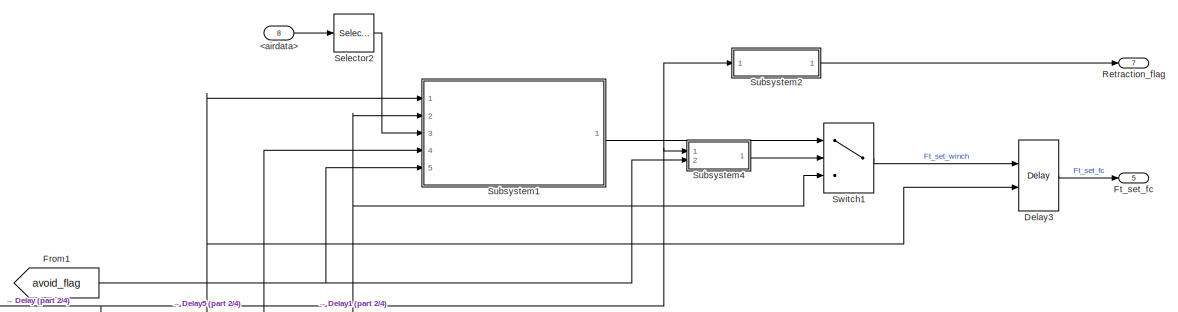
[diagram: HighLevelControlSystem - part 1/4, top right region]
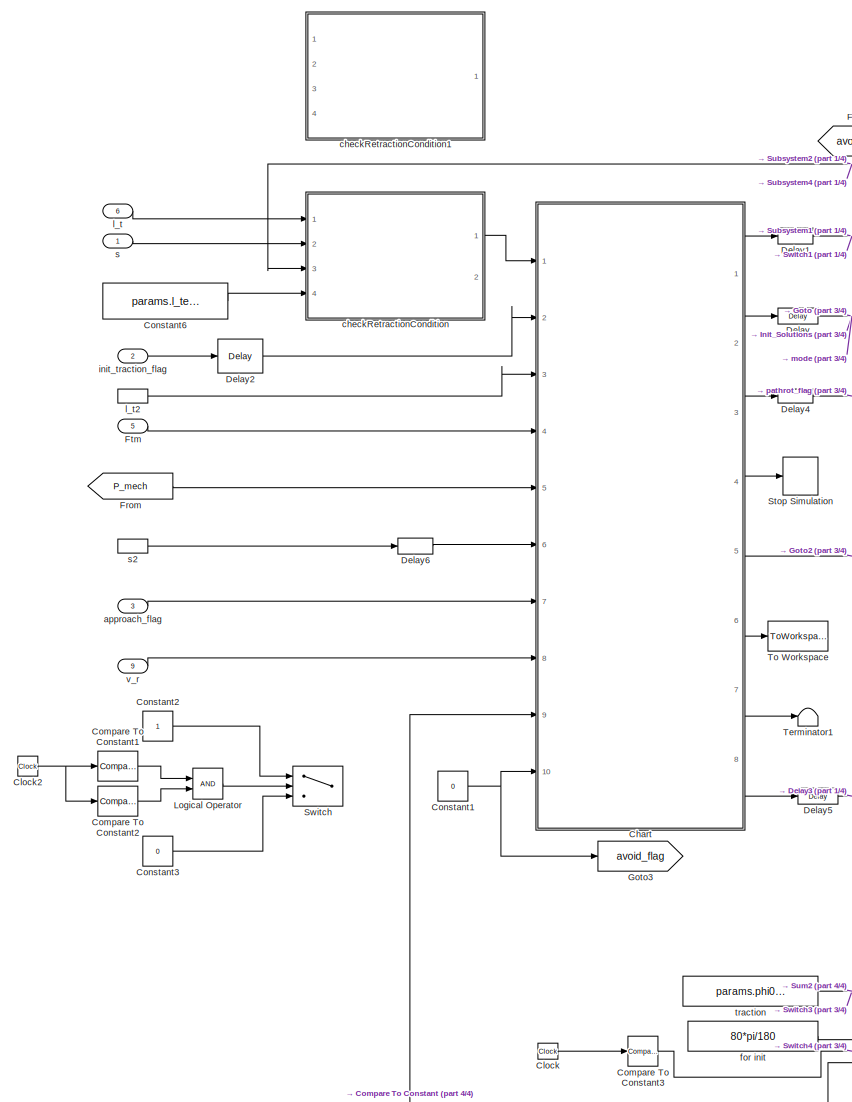
[diagram: HighLevelControlSystem - part 2/4, left side, full height]
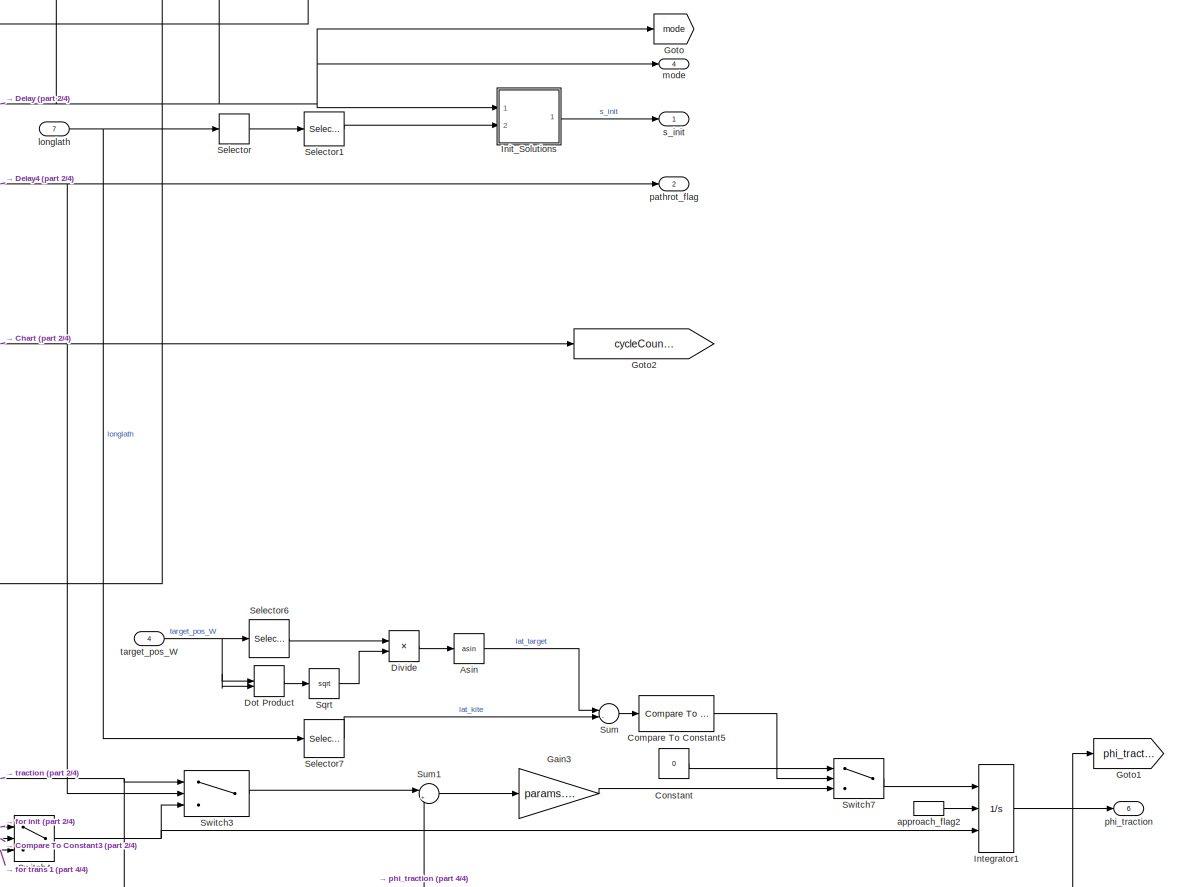
[diagram: HighLevelControlSystem - part 3/4, middle right region]
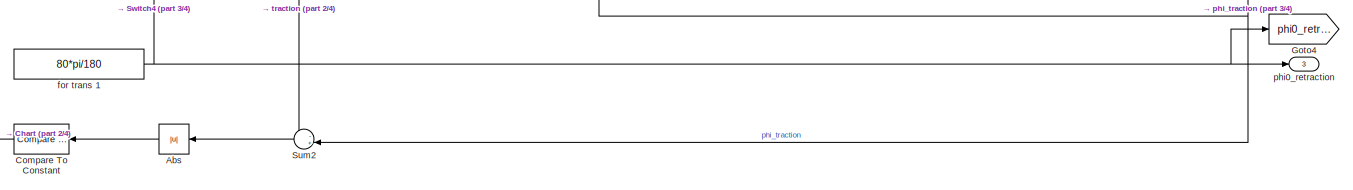
[diagram: HighLevelControlSystem - part 4/4, bottom center region]
BLOCK [SubSystem] HighLevelControlSystem
  Ports = [9, 7]
  RequestExecContextInheritance = off
BLOCK [Inport] HighLevelControlSystem/<airdata>
  Port = 8
BLOCK [Abs] HighLevelControlSystem/Abs
  NameLocation = top
  SaturateOnIntegerOverflow = off
BLOCK [Trigonometry] HighLevelControlSystem/Asin
  Operator = asin
  Ports = [1, 1]
BLOCK [SubSystem] HighLevelControlSystem/Chart
  ErrorFcn = Stateflow.Translate.translate
  PermitHierarchicalResolution = ExplicitOnly
  Ports = [10, 8]
  RequestExecContextInheritance = off
  SFBlockType = Chart
  TreatAsAtomicUnit = on
BLOCK [Demux] HighLevelControlSystem/Chart/ Demux 
  Outputs = 1
  Ports = [1, 1]
BLOCK [S-Function] HighLevelControlSystem/Chart/ SFunction 
  EnableBusSupport = on
  FunctionName = sf_sfun
  Parameters = 0,1,Ft_set_avoidance,Ft_set_retraction,Ft_set_traction,Ft_set_traction_low,constr.F_t_max*constr.winchParameter.v_max*0.001,cycleCounterMax,cycleCounterMin,e_conv,l_t_min_max,trac_count_max,vr_mean_min
  PortCounts = [10 9]
  Ports = [10, 9]
  SFcnIsStateOwnerBlock = off
  SFunctionDeploymentMode = off
  Tag = Stateflow S-Function 28
BLOCK [Terminator] HighLevelControlSystem/Chart/ Terminator 
BLOCK [Inport] HighLevelControlSystem/Chart/Ft
  Port = 4
BLOCK [Outport] HighLevelControlSystem/Chart/Ft_set
  VectorParamsAs1DForOutWhenUnconnected = off
BLOCK [Outport] HighLevelControlSystem/Chart/Ft_set_init
  Port = 8
  VectorParamsAs1DForOutWhenUnconnected = off
BLOCK [Inport] HighLevelControlSystem/Chart/Pin
  Port = 5
BLOCK [Inport] HighLevelControlSystem/Chart/approachFlag
  Port = 7
BLOCK [Inport] HighLevelControlSystem/Chart/avoid_flag
  Port = 10
BLOCK [Outport] HighLevelControlSystem/Chart/cycleCounter_log
  Port = 5
  VectorParamsAs1DForOutWhenUnconnected = off
BLOCK [Outport] HighLevelControlSystem/Chart/e_out
  Port = 6
  VectorParamsAs1DForOutWhenUnconnected = off
BLOCK [Inport] HighLevelControlSystem/Chart/initRetractionFlag
BLOCK [Inport] HighLevelControlSystem/Chart/initTractionFlag
  Port = 2
BLOCK [Inport] HighLevelControlSystem/Chart/l_t
  Port = 3
BLOCK [Outport] HighLevelControlSystem/Chart/mode
  Port = 2
  VectorParamsAs1DForOutWhenUnconnected = off
BLOCK [Outport] HighLevelControlSystem/Chart/pathRotFlag
  Port = 3
  VectorParamsAs1DForOutWhenUnconnected = off
BLOCK [Inport] HighLevelControlSystem/Chart/path_rot_complete_flag
  Port = 9
BLOCK [Inport] HighLevelControlSystem/Chart/s
  Port = 6
BLOCK [Outport] HighLevelControlSystem/Chart/stopSimFlag
  Port = 4
  VectorParamsAs1DForOutWhenUnconnected = off
BLOCK [Inport] HighLevelControlSystem/Chart/vr_in
  Port = 8
BLOCK [Outport] HighLevelControlSystem/Chart/vr_mean_out
  Port = 7
  VectorParamsAs1DForOutWhenUnconnected = off
BLOCK [Clock] HighLevelControlSystem/Clock
BLOCK [Clock] HighLevelControlSystem/Clock2
  Commented = on
BLOCK [Reference] HighLevelControlSystem/Compare To Constant  REF=simulink/Logic and Bit
Operations/Compare
To Constant
  NameLocation = top
  Ports = [1, 1]
  SourceBlock = simulink/Logic and Bit\nOperations/Compare\nTo Constant
  SourceProductBaseCode = SL
  SourceType = Compare To Constant
BLOCK [Reference] HighLevelControlSystem/Compare To Constant1  REF=simulink/Logic and Bit
Operations/Compare
To Constant
  Commented = on
  Ports = [1, 1]
  SourceBlock = simulink/Logic and Bit\nOperations/Compare\nTo Constant
  SourceProductBaseCode = SL
  SourceType = Compare To Constant
BLOCK [Reference] HighLevelControlSystem/Compare To Constant2  REF=simulink/Logic and Bit
Operations/Compare
To Constant
  Commented = on
  Ports = [1, 1]
  SourceBlock = simulink/Logic and Bit\nOperations/Compare\nTo Constant
  SourceProductBaseCode = SL
  SourceType = Compare To Constant
BLOCK [Reference] HighLevelControlSystem/Compare To Constant3  REF=simulink/Logic and Bit
Operations/Compare
To Constant
  Ports = [1, 1]
  SourceBlock = simulink/Logic and Bit\nOperations/Compare\nTo Constant
  SourceProductBaseCode = SL
  SourceType = Compare To Constant
BLOCK [Reference] HighLevelControlSystem/Compare To Constant5  REF=simulink/Logic and Bit
Operations/Compare
To Constant
  Ports = [1, 1]
  SourceBlock = simulink/Logic and Bit\nOperations/Compare\nTo Constant
  SourceProductBaseCode = SL
  SourceType = Compare To Constant
BLOCK [Constant] HighLevelControlSystem/Constant
  Value = 0
BLOCK [Constant] HighLevelControlSystem/Constant1
  Value = 0
BLOCK [Constant] HighLevelControlSystem/Constant2
  Commented = on
BLOCK [Constant] HighLevelControlSystem/Constant3
  Commented = on
  Value = 0
BLOCK [Constant] HighLevelControlSystem/Constant6
  Value = params.l_tether_max
BLOCK [Delay] HighLevelControlSystem/Delay
  DelayLength = 1
  InitialCondition = 5
  InputPortMap = u0
  Ports = [1, 1]
BLOCK [Delay] HighLevelControlSystem/Delay1
  DelayLength = 1
  InitialCondition = 100
  InputPortMap = u0
  Ports = [1, 1]
BLOCK [Delay] HighLevelControlSystem/Delay2
  DelayLength = 1
  InitialCondition = 5
  InputPortMap = u0
  Ports = [1, 1]
BLOCK [Delay] HighLevelControlSystem/Delay3
  DelayLength = 1
  InitialCondition = 500
  InitialConditionSource = Input port
  InputPortMap = u0,p4
  Ports = [2, 1]
BLOCK [Delay] HighLevelControlSystem/Delay4
  DelayLength = 1
  InputPortMap = u0
  Ports = [1, 1]
BLOCK [Delay] HighLevelControlSystem/Delay5
  DelayLength = 1
  InitialCondition = 1000
  InputPortMap = u0
  Ports = [1, 1]
BLOCK [Delay] HighLevelControlSystem/Delay6
  DelayLength = 1
  InitialCondition = 0
  InputPortMap = u0
  Ports = [1, 1]
BLOCK [Product] HighLevelControlSystem/Divide
  Inputs = */
  Ports = [2, 1]
BLOCK [DotProduct] HighLevelControlSystem/Dot Product
  OutDataTypeStr = Inherit: Inherit via internal rule
BLOCK [From] HighLevelControlSystem/From
  GotoTag = P_mech
  TagVisibility = global
BLOCK [From] HighLevelControlSystem/From1
  GotoTag = avoid_flag
BLOCK [Outport] HighLevelControlSystem/Ft_set_fc
  Port = 5
  PortDimensions = 1
  VectorParamsAs1DForOutWhenUnconnected = off
BLOCK [Inport] HighLevelControlSystem/Ftm
  Port = 5
BLOCK [Gain] HighLevelControlSystem/Gain3
  Gain = params.phi0_dot
BLOCK [Goto] HighLevelControlSystem/Goto
  GotoTag = mode
  TagVisibility = global
BLOCK [Goto] HighLevelControlSystem/Goto1
  GotoTag = phi_traction
  TagVisibility = global
BLOCK [Goto] HighLevelControlSystem/Goto2
  GotoTag = cycleCounter
  TagVisibility = global
BLOCK [Goto] HighLevelControlSystem/Goto3
  GotoTag = avoid_flag
BLOCK [Goto] HighLevelControlSystem/Goto4
  GotoTag = phi0_retract
  TagVisibility = global
BLOCK [SubSystem] HighLevelControlSystem/Init_Solutions
  ErrorFcn = Stateflow.Translate.translate
  PermitHierarchicalResolution = ExplicitOnly
  Ports = [2, 1]
  RequestExecContextInheritance = off
  SFBlockType = Chart
  TreatAsAtomicUnit = on
BLOCK [Demux] HighLevelControlSystem/Init_Solutions/ Demux 
  Outputs = 1
  Ports = [1, 1]
BLOCK [S-Function] HighLevelControlSystem/Init_Solutions/ SFunction 
  EnableBusSupport = on
  FunctionName = sf_sfun
  PortCounts = [2 2]
  Ports = [2, 2]
  SFcnIsStateOwnerBlock = off
  SFunctionDeploymentMode = off
  Tag = Stateflow S-Function 31
BLOCK [Terminator] HighLevelControlSystem/Init_Solutions/ Terminator 
BLOCK [Inport] HighLevelControlSystem/Init_Solutions/long
  Port = 2
BLOCK [Inport] HighLevelControlSystem/Init_Solutions/mode
BLOCK [Outport] HighLevelControlSystem/Init_Solutions/s_init
  VectorParamsAs1DForOutWhenUnconnected = off
BLOCK [Integrator] HighLevelControlSystem/Integrator1
  ExternalReset = rising
  InitialConditionSource = external
  Ports = [3, 1]
BLOCK [Logic] HighLevelControlSystem/Logical Operator
  AllPortsSameDT = off
  Commented = on
  OutDataTypeStr = boolean
  Ports = [2, 1]
BLOCK [Outport] HighLevelControlSystem/Retraction_flag
  Port = 7
  VectorParamsAs1DForOutWhenUnconnected = off
BLOCK [Selector] HighLevelControlSystem/Selector
  IndexOptions = Index vector (dialog)
  Indices = 1:2
  InputPortWidth = 3
  OutputSizes = 1
  Ports = [1, 1]
BLOCK [Selector] HighLevelControlSystem/Selector1
  IndexOptions = Index vector (dialog)
  Indices = 1
  InputPortWidth = 2
  OutputSizes = 1
  Ports = [1, 1]
BLOCK [Selector] HighLevelControlSystem/Selector2
  IndexOptions = Index vector (dialog)
  Indices = 1
  InputPortWidth = 3
  OutputSizes = 1
  Ports = [1, 1]
BLOCK [Selector] HighLevelControlSystem/Selector6
  IndexOptions = Index vector (dialog)
  Indices = 3
  InputPortWidth = 3
  OutputSizes = 1
  Ports = [1, 1]
BLOCK [Selector] HighLevelControlSystem/Selector7
  IndexOptions = Index vector (dialog)
  Indices = 2
  InputPortWidth = 3
  OutputSizes = 1
  Ports = [1, 1]
BLOCK [Sqrt] HighLevelControlSystem/Sqrt
BLOCK [Stop] HighLevelControlSystem/Stop Simulation
BLOCK [SubSystem] HighLevelControlSystem/Subsystem1
  Ports = [5, 1]
  RequestExecContextInheritance = off
BLOCK [Reference] HighLevelControlSystem/Subsystem1/Compare To Constant  REF=simulink/Logic and Bit
Operations/Compare
To Constant
  Ports = [1, 1]
  SourceBlock = simulink/Logic and Bit\nOperations/Compare\nTo Constant
  SourceProductBaseCode = SL
  SourceType = Compare To Constant
BLOCK [Reference] HighLevelControlSystem/Subsystem1/Compare To Constant1  REF=simulink/Logic and Bit
Operations/Compare
To Constant
  Ports = [1, 1]
  SourceBlock = simulink/Logic and Bit\nOperations/Compare\nTo Constant
  SourceProductBaseCode = SL
  SourceType = Compare To Constant
BLOCK [Constant] HighLevelControlSystem/Subsystem1/Constant
  Value = params.Ft_set_retraction
BLOCK [Constant] HighLevelControlSystem/Subsystem1/Constant1
  Value = 0
BLOCK [Gain] HighLevelControlSystem/Subsystem1/HighWindGain1
  Gain = w0^2
BLOCK [Gain] HighLevelControlSystem/Subsystem1/HighWindGain2
  Gain = 2*w0
  NameLocation = top
BLOCK [Integrator] HighLevelControlSystem/Subsystem1/Integrator
  ExternalReset = rising
  Ports = [2, 1]
BLOCK [Integrator] HighLevelControlSystem/Subsystem1/Integrator1
  ExternalReset = rising
  InitialConditionSource = external
  Ports = [3, 1]
BLOCK [Logic] HighLevelControlSystem/Subsystem1/Logical Operator
  AllPortsSameDT = off
  OutDataTypeStr = boolean
  Ports = [2, 1]
BLOCK [Logic] HighLevelControlSystem/Subsystem1/Logical Operator1
  AllPortsSameDT = off
  Operator = NOT
  OutDataTypeStr = boolean
  Ports = [1, 1]
BLOCK [Logic] HighLevelControlSystem/Subsystem1/Logical Operator2
  AllPortsSameDT = off
  Operator = OR
  OutDataTypeStr = boolean
  Ports = [2, 1]
BLOCK [Inport] HighLevelControlSystem/Subsystem1/SetPoint
  Port = 2
BLOCK [Outport] HighLevelControlSystem/Subsystem1/SetPoint_Filtered
  VectorParamsAs1DForOutWhenUnconnected = off
BLOCK [Sum] HighLevelControlSystem/Subsystem1/Sum1
  Inputs = |+-
  Ports = [2, 1]
BLOCK [Sum] HighLevelControlSystem/Subsystem1/Sum2
  Inputs = |+-
  Ports = [2, 1]
BLOCK [Switch] HighLevelControlSystem/Subsystem1/Switch1
  Criteria = u2 > Threshold
  InputSameDT = off
  SaturateOnIntegerOverflow = off
BLOCK [Switch] HighLevelControlSystem/Subsystem1/Switch2
  Criteria = u2 > Threshold
  InputSameDT = off
  SaturateOnIntegerOverflow = off
BLOCK [Switch] HighLevelControlSystem/Subsystem1/Switch3
  Criteria = u2 > Threshold
  InputSameDT = off
  SaturateOnIntegerOverflow = off
BLOCK [Inport] HighLevelControlSystem/Subsystem1/airspeed
  Port = 3
BLOCK [Inport] HighLevelControlSystem/Subsystem1/avoid
  Port = 5
BLOCK [Inport] HighLevelControlSystem/Subsystem1/mode
  Port = 4
BLOCK [Inport] HighLevelControlSystem/Subsystem1/x0
BLOCK [SubSystem] HighLevelControlSystem/Subsystem2
  Ports = [1, 1]
  RequestExecContextInheritance = off
BLOCK [Reference] HighLevelControlSystem/Subsystem2/Compare To Constant  REF=simulink/Logic and Bit
Operations/Compare
To Constant
  Ports = [1, 1]
  SourceBlock = simulink/Logic and Bit\nOperations/Compare\nTo Constant
  SourceProductBaseCode = SL
  SourceType = Compare To Constant
BLOCK [Reference] HighLevelControlSystem/Subsystem2/Compare To Constant8  REF=simulink/Logic and Bit
Operations/Compare
To Constant
  Ports = [1, 1]
  SourceBlock = simulink/Logic and Bit\nOperations/Compare\nTo Constant
  SourceProductBaseCode = SL
  SourceType = Compare To Constant
BLOCK [Logic] HighLevelControlSystem/Subsystem2/Logical Operator1
  AllPortsSameDT = off
  Operator = OR
  OutDataTypeStr = boolean
  Ports = [2, 1]
BLOCK [Inport] HighLevelControlSystem/Subsystem2/mode
BLOCK [Outport] HighLevelControlSystem/Subsystem2/retraction_flag
  VectorParamsAs1DForOutWhenUnconnected = off
BLOCK [SubSystem] HighLevelControlSystem/Subsystem4
  Ports = [2, 1]
  RequestExecContextInheritance = off
BLOCK [Reference] HighLevelControlSystem/Subsystem4/Compare To Constant  REF=simulink/Logic and Bit
Operations/Compare
To Constant
  Ports = [1, 1]
  SourceBlock = simulink/Logic and Bit\nOperations/Compare\nTo Constant
  SourceProductBaseCode = SL
  SourceType = Compare To Constant
BLOCK [Reference] HighLevelControlSystem/Subsystem4/Compare To Constant8  REF=simulink/Logic and Bit
Operations/Compare
To Constant
  Ports = [1, 1]
  SourceBlock = simulink/Logic and Bit\nOperations/Compare\nTo Constant
  SourceProductBaseCode = SL
  SourceType = Compare To Constant
BLOCK [Logic] HighLevelControlSystem/Subsystem4/Logical Operator
  AllPortsSameDT = off
  Inputs = 3
  Operator = NOT
  OutDataTypeStr = boolean
  Ports = [1, 1]
BLOCK [Logic] HighLevelControlSystem/Subsystem4/Logical Operator1
  AllPortsSameDT = off
  Inputs = 3
  Operator = NOT
  OutDataTypeStr = boolean
  Ports = [1, 1]
BLOCK [Logic] HighLevelControlSystem/Subsystem4/Logical Operator2
  AllPortsSameDT = off
  Inputs = 3
  OutDataTypeStr = boolean
  Ports = [3, 1]
BLOCK [Logic] HighLevelControlSystem/Subsystem4/Logical Operator4
  AllPortsSameDT = off
  Inputs = 3
  Operator = NOT
  OutDataTypeStr = boolean
  Ports = [1, 1]
BLOCK [Outport] HighLevelControlSystem/Subsystem4/Out1
  VectorParamsAs1DForOutWhenUnconnected = off
BLOCK [Inport] HighLevelControlSystem/Subsystem4/avoid_flag
  Port = 2
BLOCK [Inport] HighLevelControlSystem/Subsystem4/mode
BLOCK [Sum] HighLevelControlSystem/Sum
  Inputs = |-+
  Ports = [2, 1]
BLOCK [Sum] HighLevelControlSystem/Sum1
  Inputs = |+-
  Ports = [2, 1]
BLOCK [Sum] HighLevelControlSystem/Sum2
  Inputs = -+|
  NameLocation = top
  Ports = [2, 1]
BLOCK [Switch] HighLevelControlSystem/Switch
  Commented = on
  Criteria = u2 > Threshold
  InputSameDT = off
  SaturateOnIntegerOverflow = off
BLOCK [Switch] HighLevelControlSystem/Switch1
  Criteria = u2 > Threshold
  InputSameDT = off
  SaturateOnIntegerOverflow = off
BLOCK [Switch] HighLevelControlSystem/Switch3
  Criteria = u2 > Threshold
  InputSameDT = off
  SaturateOnIntegerOverflow = off
BLOCK [Switch] HighLevelControlSystem/Switch4
  Criteria = u2 > Threshold
  InputSameDT = off
  SaturateOnIntegerOverflow = off
BLOCK [Switch] HighLevelControlSystem/Switch7
  Criteria = u2 > Threshold
  InputSameDT = off
  SaturateOnIntegerOverflow = off
BLOCK [Terminator] HighLevelControlSystem/Terminator1
BLOCK [ToWorkspace] HighLevelControlSystem/To Workspace
  Commented = on
  FixptAsFi = on
  MaxDataPoints = inf
  Ports = [1]
  SampleTime = 0.1
  SaveFormat = Timeseries
  VariableName = e_power_out
BLOCK [Inport] HighLevelControlSystem/approach_flag
  Port = 3
BLOCK [InportShadow] HighLevelControlSystem/approach_flag2
  Port = 3
BLOCK [SubSystem] HighLevelControlSystem/checkRetractionCondition
  ErrorFcn = Stateflow.Translate.translate
  PermitHierarchicalResolution = ExplicitOnly
  Ports = [4, 2]
  RequestExecContextInheritance = off
  SFBlockType = Chart
  TreatAsAtomicUnit = on
BLOCK [Demux] HighLevelControlSystem/checkRetractionCondition/ Demux 
  Outputs = 1
  Ports = [1, 1]
BLOCK [S-Function] HighLevelControlSystem/checkRetractionCondition/ SFunction 
  EnableBusSupport = on
  FunctionName = sf_sfun
  Parameters = delta_s_1,delta_s_2
  PortCounts = [4 3]
  Ports = [4, 3]
  SFcnIsStateOwnerBlock = off
  SFunctionDeploymentMode = off
  Tag = Stateflow S-Function 30
BLOCK [Terminator] HighLevelControlSystem/checkRetractionCondition/ Terminator 
BLOCK [Inport] HighLevelControlSystem/checkRetractionCondition/fm
  Port = 3
BLOCK [Outport] HighLevelControlSystem/checkRetractionCondition/init_retraction_flag
  VectorParamsAs1DForOutWhenUnconnected = off
BLOCK [Outport] HighLevelControlSystem/checkRetractionCondition/initiate_trans_retraction_flag
  Port = 2
  VectorParamsAs1DForOutWhenUnconnected = off
BLOCK [Inport] HighLevelControlSystem/checkRetractionCondition/l_tether
BLOCK [Inport] HighLevelControlSystem/checkRetractionCondition/l_tether_max
  Port = 4
BLOCK [Inport] HighLevelControlSystem/checkRetractionCondition/path_parameter_s
  Port = 2
BLOCK [SubSystem] HighLevelControlSystem/checkRetractionCondition1
  Commented = on
  ErrorFcn = Stateflow.Translate.translate
  PermitHierarchicalResolution = ExplicitOnly
  Ports = [4, 1]
  RequestExecContextInheritance = off
  SFBlockType = Chart
  TreatAsAtomicUnit = on
BLOCK [Demux] HighLevelControlSystem/checkRetractionCondition1/ Demux 
  Outputs = 1
  Ports = [1, 1]
BLOCK [S-Function] HighLevelControlSystem/checkRetractionCondition1/ SFunction 
  EnableBusSupport = on
  FunctionName = sf_sfun
  Parameters = delta_s_1,delta_s_2
  PortCounts = [4 2]
  Ports = [4, 2]
  SFcnIsStateOwnerBlock = off
  SFunctionDeploymentMode = off
  Tag = Stateflow S-Function 4
BLOCK [Terminator] HighLevelControlSystem/checkRetractionCondition1/ Terminator 
BLOCK [Inport] HighLevelControlSystem/checkRetractionCondition1/fm
  Port = 3
BLOCK [Outport] HighLevelControlSystem/checkRetractionCondition1/init_retraction_flag
  VectorParamsAs1DForOutWhenUnconnected = off
BLOCK [Inport] HighLevelControlSystem/checkRetractionCondition1/l_tether
BLOCK [Inport] HighLevelControlSystem/checkRetractionCondition1/l_tether_max
  Port = 4
BLOCK [Inport] HighLevelControlSystem/checkRetractionCondition1/path_parameter_s
  Port = 2
BLOCK [Constant] HighLevelControlSystem/for init
  Value = 80*pi/180
BLOCK [Constant] HighLevelControlSystem/for trans 1
  Value = 80*pi/180
BLOCK [Inport] HighLevelControlSystem/init_traction_flag
  Port = 2
BLOCK [Inport] HighLevelControlSystem/l_t
  Port = 6
BLOCK [InportShadow] HighLevelControlSystem/l_t2
  Port = 6
BLOCK [Inport] HighLevelControlSystem/longlath
  Port = 7
BLOCK [Outport] HighLevelControlSystem/mode
  Port = 4
  VectorParamsAs1DForOutWhenUnconnected = off
BLOCK [Outport] HighLevelControlSystem/pathrot_flag
  Port = 2
  VectorParamsAs1DForOutWhenUnconnected = off
BLOCK [Outport] HighLevelControlSystem/phi0_retraction
  Port = 3
  VectorParamsAs1DForOutWhenUnconnected = off
BLOCK [Outport] HighLevelControlSystem/phi_traction
  Port = 6
  VectorParamsAs1DForOutWhenUnconnected = off
BLOCK [Inport] HighLevelControlSystem/s
BLOCK [InportShadow] HighLevelControlSystem/s2
BLOCK [Outport] HighLevelControlSystem/s_init
  VectorParamsAs1DForOutWhenUnconnected = off
BLOCK [Inport] HighLevelControlSystem/target_pos_W
  Port = 4
BLOCK [Constant] HighLevelControlSystem/traction
  Value = params.phi0_booth
BLOCK [Inport] HighLevelControlSystem/v_r
  Port = 9
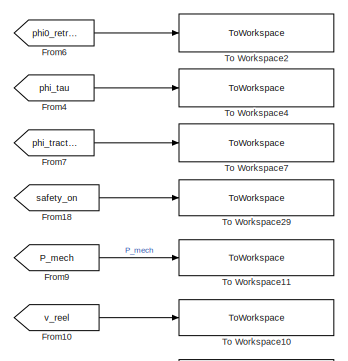
[diagram: Logging_PM - part 1/3, top left region]
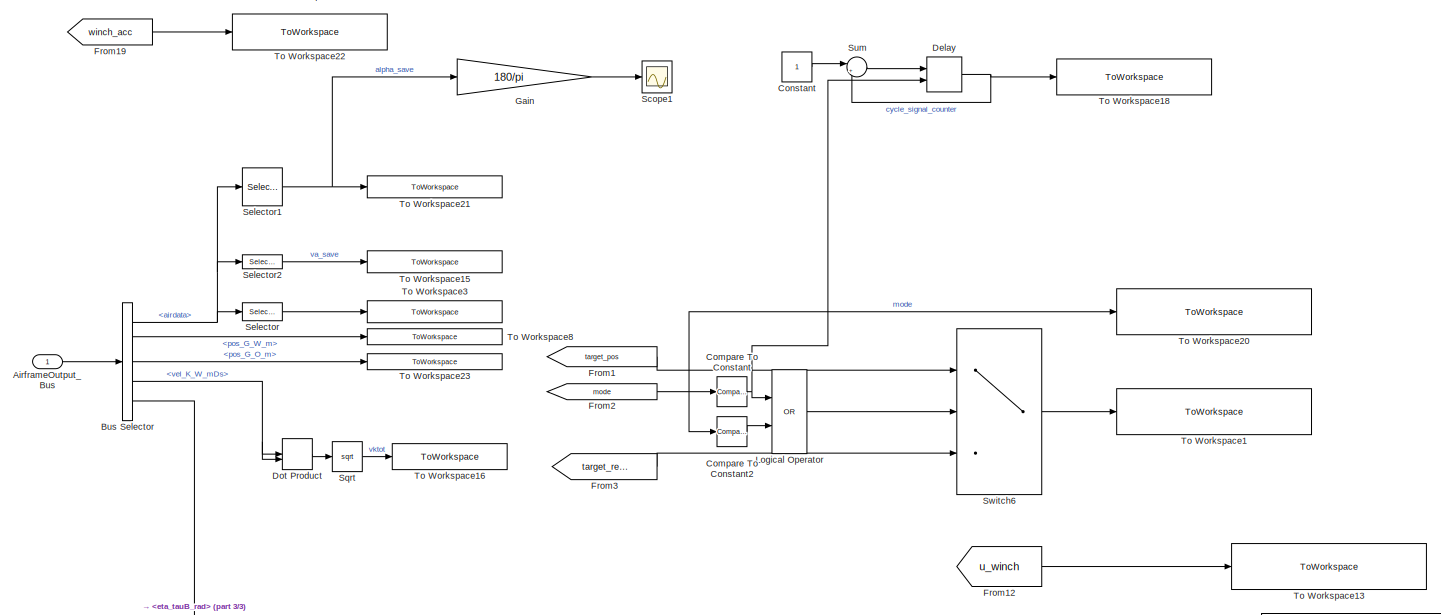
[diagram: Logging_PM - part 2/3, full width, middle band]
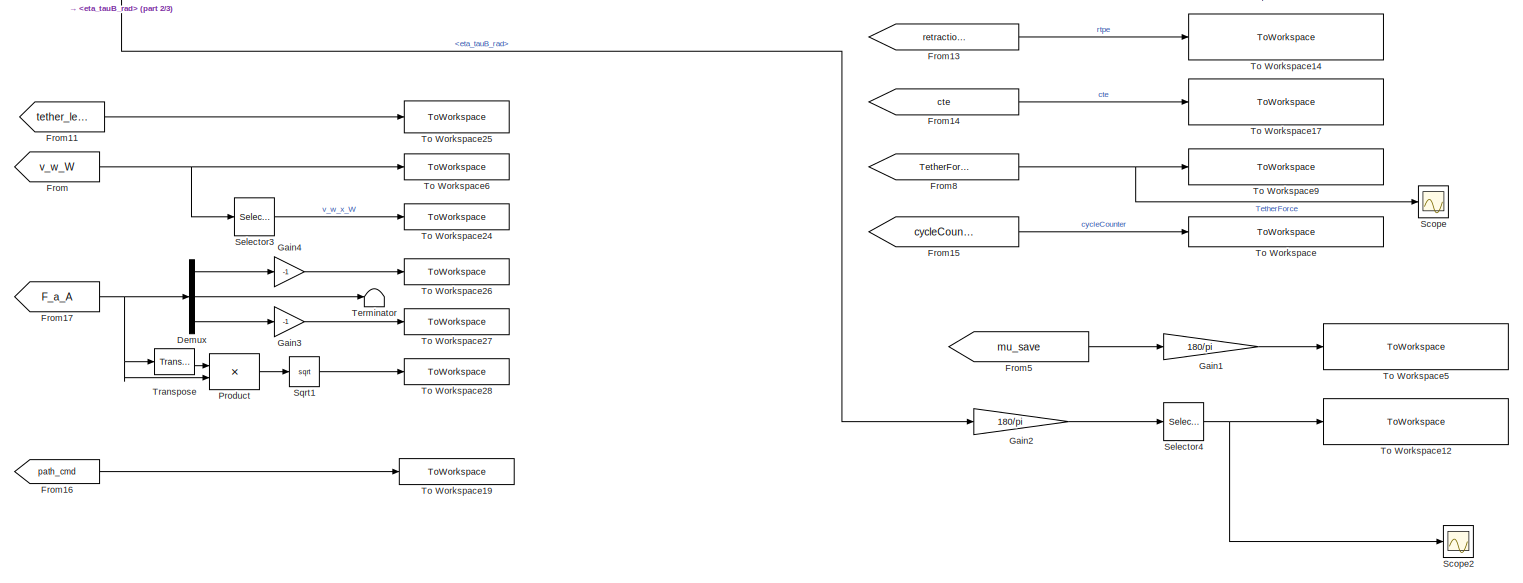
[diagram: Logging_PM - part 3/3, full width, bottom band]
BLOCK [SubSystem] Logging_PM
  Ports = [1]
  RequestExecContextInheritance = off
BLOCK [Inport] Logging_PM/AirframeOutput_Bus
BLOCK [BusSelector] Logging_PM/Bus Selector
  OutputSignals = airdata,pos_G_W_m,pos_G_O_m,vel_K_W_mDs,eta_tauB_rad
  Ports = [1, 5]
BLOCK [Reference] Logging_PM/Compare To Constant  REF=simulink/Logic and Bit
Operations/Compare
To Constant
  Ports = [1, 1]
  SourceBlock = simulink/Logic and Bit\nOperations/Compare\nTo Constant
  SourceProductBaseCode = SL
  SourceType = Compare To Constant
BLOCK [Reference] Logging_PM/Compare To Constant2  REF=simulink/Logic and Bit
Operations/Compare
To Constant
  Ports = [1, 1]
  SourceBlock = simulink/Logic and Bit\nOperations/Compare\nTo Constant
  SourceProductBaseCode = SL
  SourceType = Compare To Constant
BLOCK [Constant] Logging_PM/Constant
  Commented = on
BLOCK [Delay] Logging_PM/Delay
  Commented = on
  DelayLength = 1
  ExternalReset = Rising
  InputPortMap = u0,r5
  Ports = [2, 1]
  SampleTime = logging_ts
BLOCK [Demux] Logging_PM/Demux
  Outputs = 3
  Ports = [1, 3]
BLOCK [DotProduct] Logging_PM/Dot Product
  Commented = on
  OutDataTypeStr = Inherit: Inherit via internal rule
BLOCK [From] Logging_PM/From
  GotoTag = v_w_W
  TagVisibility = global
BLOCK [From] Logging_PM/From1
  GotoTag = target_pos
  TagVisibility = global
BLOCK [From] Logging_PM/From10
  GotoTag = v_reel
  TagVisibility = global
BLOCK [From] Logging_PM/From11
  GotoTag = tether_length
  TagVisibility = global
BLOCK [From] Logging_PM/From12
  Commented = on
  GotoTag = u_winch
  TagVisibility = global
BLOCK [From] Logging_PM/From13
  GotoTag = retraction_path_error
  TagVisibility = global
BLOCK [From] Logging_PM/From14
  GotoTag = cte
  TagVisibility = global
BLOCK [From] Logging_PM/From15
  GotoTag = cycleCounter
  TagVisibility = global
BLOCK [From] Logging_PM/From16
  GotoTag = path_cmd
  TagVisibility = global
BLOCK [From] Logging_PM/From17
  GotoTag = F_a_A
  TagVisibility = global
BLOCK [From] Logging_PM/From18
  GotoTag = safety_on
  TagVisibility = global
BLOCK [From] Logging_PM/From19
  GotoTag = winch_acc
  TagVisibility = global
BLOCK [From] Logging_PM/From2
  GotoTag = mode
  TagVisibility = global
BLOCK [From] Logging_PM/From3
  GotoTag = target_retr_W
  TagVisibility = global
BLOCK [From] Logging_PM/From4
  Commented = on
  GotoTag = phi_tau
  TagVisibility = global
BLOCK [From] Logging_PM/From5
  GotoTag = mu_save
  TagVisibility = global
BLOCK [From] Logging_PM/From6
  GotoTag = phi0_retract
  TagVisibility = global
BLOCK [From] Logging_PM/From7
  GotoTag = phi_traction
  TagVisibility = global
BLOCK [From] Logging_PM/From8
  GotoTag = TetherForce
  TagVisibility = global
BLOCK [From] Logging_PM/From9
  GotoTag = P_mech
  TagVisibility = global
BLOCK [Gain] Logging_PM/Gain
  Gain = 180/pi
BLOCK [Gain] Logging_PM/Gain1
  Gain = 180/pi
BLOCK [Gain] Logging_PM/Gain2
  Gain = 180/pi
BLOCK [Gain] Logging_PM/Gain3
  Gain = -1
BLOCK [Gain] Logging_PM/Gain4
  Gain = -1
BLOCK [Logic] Logging_PM/Logical Operator
  AllPortsSameDT = off
  Operator = OR
  OutDataTypeStr = boolean
  Ports = [2, 1]
BLOCK [Product] Logging_PM/Product
  Multiplication = Matrix(*)
  Ports = [2, 1]
BLOCK [Scope] Logging_PM/Scope
  Floating = off
  NumInputPorts = 1
  Ports = [1]
  ScopeSpecificationString = Simulink.scopes.TimeScopeBlockCfg('CurrentConfiguration', extmgr.ConfigurationSet(extmgr.Configuration('Core','General UI',true),extmgr.Configuration('Core','Source UI',true),extmgr.Configuration('Sources','WiredSimulink',true,'DataLoggingVariableName','ScopeData1'),extmgr.Configuration('Visuals','Time Domain',true,'SerializedDisplays',{struct('MinYLimReal','-356.58315','MaxYLimReal','3209.24832',...<+1449ch>
BLOCK [Scope] Logging_PM/Scope1
  Floating = off
  NumInputPorts = 1
  Ports = [1]
  ScopeSpecificationString = Simulink.scopes.TimeScopeBlockCfg('CurrentConfiguration', extmgr.ConfigurationSet(extmgr.Configuration('Core','General UI',true),extmgr.Configuration('Core','Source UI',true),extmgr.Configuration('Sources','WiredSimulink',true,'DataLoggingVariableName','ScopeData1'),extmgr.Configuration('Visuals','Time Domain',true,'SerializedDisplays',{struct('MinYLimReal','-6.81686','MaxYLimReal','11.86854','YLa...<+1419ch>
BLOCK [Scope] Logging_PM/Scope2
  Floating = off
  NumInputPorts = 1
  Ports = [1]
  ScopeSpecificationString = Simulink.scopes.TimeScopeBlockCfg('CurrentConfiguration', extmgr.ConfigurationSet(extmgr.Configuration('Core','General UI',true),extmgr.Configuration('Core','Source UI',true),extmgr.Configuration('Sources','WiredSimulink',true,'DataLoggingVariableName','ScopeData1'),extmgr.Configuration('Visuals','Time Domain',true,'SerializedDisplays',{struct('MinYLimReal','-74.54553','MaxYLimReal','73.2152','YLa...<+1407ch>
BLOCK [Selector] Logging_PM/Selector
  IndexOptions = Index vector (dialog)
  Indices = 3
  InputPortWidth = 3
  OutputSizes = 1
  Ports = [1, 1]
BLOCK [Selector] Logging_PM/Selector1
  IndexOptions = Index vector (dialog)
  Indices = 2
  InputPortWidth = 3
  OutputSizes = 1
  Ports = [1, 1]
BLOCK [Selector] Logging_PM/Selector2
  IndexOptions = Index vector (dialog)
  Indices = 1
  InputPortWidth = 3
  OutputSizes = 1
  Ports = [1, 1]
BLOCK [Selector] Logging_PM/Selector3
  IndexOptions = Index vector (dialog)
  Indices = 1
  InputPortWidth = 3
  OutputSizes = 1
  Ports = [1, 1]
BLOCK [Selector] Logging_PM/Selector4
  IndexOptions = Index vector (dialog)
  Indices = 1:2
  InputPortWidth = 3
  OutputSizes = 1
  Ports = [1, 1]
BLOCK [Sqrt] Logging_PM/Sqrt
  Commented = on
BLOCK [Sqrt] Logging_PM/Sqrt1
BLOCK [Sum] Logging_PM/Sum
  Commented = on
  Inputs = |++
  Ports = [2, 1]
BLOCK [Switch] Logging_PM/Switch6
  Criteria = u2 > Threshold
  InputSameDT = off
  SaturateOnIntegerOverflow = off
BLOCK [Terminator] Logging_PM/Terminator
BLOCK [ToWorkspace] Logging_PM/To Workspace
  FixptAsFi = on
  MaxDataPoints = 1
  Ports = [1]
  SampleTime = -1
  SaveFormat = Timeseries
  VariableName = cycleCounter
BLOCK [ToWorkspace] Logging_PM/To Workspace1
  FixptAsFi = on
  MaxDataPoints = inf
  Ports = [1]
  SampleTime = logging_ts
  SaveFormat = Timeseries
  VariableName = target_pos
BLOCK [ToWorkspace] Logging_PM/To Workspace10
  FixptAsFi = on
  MaxDataPoints = inf
  Ports = [1]
  SampleTime = logging_ts
  SaveFormat = Timeseries
  VariableName = v_reel
BLOCK [ToWorkspace] Logging_PM/To Workspace11
  FixptAsFi = on
  MaxDataPoints = inf
  Ports = [1]
  SampleTime = logging_ts
  SaveFormat = Timeseries
  VariableName = P_mech
BLOCK [ToWorkspace] Logging_PM/To Workspace12
  FixptAsFi = on
  MaxDataPoints = inf
  Ports = [1]
  SampleTime = logging_ts
  SaveFormat = Timeseries
  VariableName = phi_tau
BLOCK [ToWorkspace] Logging_PM/To Workspace13
  Commented = on
  FixptAsFi = on
  MaxDataPoints = inf
  Ports = [1]
  SampleTime = logging_ts
  SaveFormat = Timeseries
  VariableName = u_winch
BLOCK [ToWorkspace] Logging_PM/To Workspace14
  Commented = on
  FixptAsFi = on
  MaxDataPoints = inf
  Ports = [1]
  SampleTime = logging_ts
  SaveFormat = Timeseries
  VariableName = retraction_path_error
BLOCK [ToWorkspace] Logging_PM/To Workspace15
  FixptAsFi = on
  MaxDataPoints = inf
  Ports = [1]
  SampleTime = logging_ts
  SaveFormat = Timeseries
  VariableName = va
BLOCK [ToWorkspace] Logging_PM/To Workspace16
  Commented = on
  FixptAsFi = on
  MaxDataPoints = inf
  Ports = [1]
  SampleTime = logging_ts
  SaveFormat = Timeseries
  VariableName = vktot
BLOCK [ToWorkspace] Logging_PM/To Workspace17
  Commented = on
  FixptAsFi = on
  MaxDataPoints = inf
  Ports = [1]
  SampleTime = logging_ts
  SaveFormat = Timeseries
  VariableName = cte
BLOCK [ToWorkspace] Logging_PM/To Workspace18
  Commented = on
  FixptAsFi = on
  MaxDataPoints = 1
  Ports = [1]
  SampleTime = logging_ts
  SaveFormat = Timeseries
  VariableName = cycle_signal_counter
BLOCK [ToWorkspace] Logging_PM/To Workspace19
  FixptAsFi = on
  MaxDataPoints = inf
  Ports = [1]
  SampleTime = logging_ts
  SaveFormat = Timeseries
  VariableName = path_cmd
BLOCK [ToWorkspace] Logging_PM/To Workspace2
  FixptAsFi = on
  MaxDataPoints = inf
  Ports = [1]
  SampleTime = logging_ts
  SaveFormat = Timeseries
  VariableName = phi_retract
BLOCK [ToWorkspace] Logging_PM/To Workspace20
  FixptAsFi = on
  MaxDataPoints = inf
  Ports = [1]
  SampleTime = logging_ts
  SaveFormat = Timeseries
  VariableName = sub_flight_state
BLOCK [ToWorkspace] Logging_PM/To Workspace21
  FixptAsFi = on
  MaxDataPoints = inf
  Ports = [1]
  SampleTime = logging_ts
  SaveFormat = Timeseries
  VariableName = alpha
BLOCK [ToWorkspace] Logging_PM/To Workspace22
  FixptAsFi = on
  MaxDataPoints = inf
  Ports = [1]
  SampleTime = logging_ts
  SaveFormat = Timeseries
  VariableName = winch_acc
BLOCK [ToWorkspace] Logging_PM/To Workspace23
  FixptAsFi = on
  MaxDataPoints = inf
  Ports = [1]
  SampleTime = logging_ts
  SaveFormat = Timeseries
  VariableName = pos_O
BLOCK [ToWorkspace] Logging_PM/To Workspace24
  FixptAsFi = on
  MaxDataPoints = inf
  Ports = [1]
  SampleTime = logging_ts
  SaveFormat = Timeseries
  VariableName = v_w
BLOCK [ToWorkspace] Logging_PM/To Workspace25
  FixptAsFi = on
  MaxDataPoints = inf
  Ports = [1]
  SampleTime = logging_ts
  SaveFormat = Timeseries
  VariableName = tether_length
BLOCK [ToWorkspace] Logging_PM/To Workspace26
  FixptAsFi = on
  MaxDataPoints = inf
  Ports = [1]
  SampleTime = logging_ts
  SaveFormat = Timeseries
  VariableName = drag
BLOCK [ToWorkspace] Logging_PM/To Workspace27
  FixptAsFi = on
  MaxDataPoints = inf
  Ports = [1]
  SampleTime = logging_ts
  SaveFormat = Timeseries
  VariableName = lift
BLOCK [ToWorkspace] Logging_PM/To Workspace28
  FixptAsFi = on
  MaxDataPoints = inf
  Ports = [1]
  SampleTime = logging_ts
  SaveFormat = Timeseries
  VariableName = Faero
BLOCK [ToWorkspace] Logging_PM/To Workspace29
  FixptAsFi = on
  MaxDataPoints = inf
  Ports = [1]
  SampleTime = logging_ts
  SaveFormat = Timeseries
  VariableName = safety_on
BLOCK [ToWorkspace] Logging_PM/To Workspace3
  FixptAsFi = on
  MaxDataPoints = inf
  Ports = [1]
  SampleTime = logging_ts
  SaveFormat = Timeseries
  VariableName = sideslip
BLOCK [ToWorkspace] Logging_PM/To Workspace4
  Commented = on
  FixptAsFi = on
  MaxDataPoints = inf
  Ports = [1]
  SampleTime = logging_ts
  SaveFormat = Timeseries
  VariableName = phi_tau
BLOCK [ToWorkspace] Logging_PM/To Workspace5
  FixptAsFi = on
  MaxDataPoints = inf
  Ports = [1]
  SampleTime = logging_ts
  SaveFormat = Timeseries
  VariableName = mu
BLOCK [ToWorkspace] Logging_PM/To Workspace6
  FixptAsFi = on
  MaxDataPoints = inf
  Ports = [1]
  SampleTime = logging_ts
  SaveFormat = Timeseries
  VariableName = v_w_W
BLOCK [ToWorkspace] Logging_PM/To Workspace7
  FixptAsFi = on
  MaxDataPoints = inf
  Ports = [1]
  SampleTime = logging_ts
  SaveFormat = Timeseries
  VariableName = phi0_mean_path
BLOCK [ToWorkspace] Logging_PM/To Workspace8
  FixptAsFi = on
  MaxDataPoints = inf
  Ports = [1]
  SampleTime = logging_ts
  SaveFormat = Timeseries
  VariableName = pos_W
BLOCK [ToWorkspace] Logging_PM/To Workspace9
  FixptAsFi = on
  MaxDataPoints = inf
  Ports = [1]
  SampleTime = logging_ts
  SaveFormat = Timeseries
  VariableName = TetherForce
BLOCK [Reference] Logging_PM/Transpose  REF=matrix_library/Transpose
  Ports = [1, 1]
  SourceBlock = matrix_library/Transpose
  SourceProductBaseCode = SL
  SourceType = Transpose
BLOCK [SubSystem] Power
  Ports = [2]
  RequestExecContextInheritance = off
BLOCK [Reference] Power/Compare To Constant  REF=simulink/Logic and Bit
Operations/Compare
To Constant
  Ports = [1, 1]
  SourceBlock = simulink/Logic and Bit\nOperations/Compare\nTo Constant
  SourceProductBaseCode = SL
  SourceType = Compare To Constant
BLOCK [Constant] Power/Constant
  Value = simInit.power_conv_threshold
BLOCK [Delay] Power/Delay
  DelayLength = 1
  InitialCondition = 0
  InputPortMap = u0
  Ports = [1, 1]
BLOCK [Delay] Power/Delay1
  DelayLength = 1
  InitialCondition = 0
  InputPortMap = u0
  Ports = [1, 1]
BLOCK [Delay] Power/Delay2
  DelayLength = 1
  InitialCondition = 0
  InputPortMap = u0
  Ports = [1, 1]
BLOCK [Delay] Power/Delay3
  DelayLength = 1
  InitialCondition = 0
  InputPortMap = u0
  Ports = [1, 1]
BLOCK [Delay] Power/Delay4
  DelayLength = 1
  InitialCondition = 0
  InputPortMap = u0
  Ports = [1, 1]
BLOCK [Delay] Power/Delay5
  DelayLength = 1
  InitialCondition = 0
  InputPortMap = u0
  Ports = [1, 1]
BLOCK [Delay] Power/Delay6
  DelayLength = 1
  InitialCondition = 0
  InputPortMap = u0
  Ports = [1, 1]
BLOCK [Logic] Power/Logical Operator
  AllPortsSameDT = off
  OutDataTypeStr = boolean
  Ports = [2, 1]
BLOCK [SubSystem] Power/MATLAB Function
  ErrorFcn = Stateflow.Translate.translate
  PermitHierarchicalResolution = ExplicitOnly
  Ports = [9, 7]
  RequestExecContextInheritance = off
  SFBlockType = MATLAB Function
  TreatAsAtomicUnit = on
BLOCK [Demux] Power/MATLAB Function/ Demux 
  Outputs = 1
  Ports = [1, 1]
BLOCK [S-Function] Power/MATLAB Function/ SFunction 
  EnableBusSupport = on
  FunctionName = sf_sfun
  PortCounts = [9 8]
  Ports = [9, 8]
  SFcnIsStateOwnerBlock = off
  SFunctionDeploymentMode = off
  Tag = Stateflow S-Function 8
BLOCK [Terminator] Power/MATLAB Function/ Terminator 
BLOCK [Outport] Power/MATLAB Function/cnt
  Port = 4
BLOCK [Inport] Power/MATLAB Function/cnt 
  Port = 4
BLOCK [Outport] Power/MATLAB Function/cnt_max_mat
  Port = 6
BLOCK [Inport] Power/MATLAB Function/cnt_max_mat 
  Port = 8
BLOCK [Outport] Power/MATLAB Function/cycles_cnt
  Port = 7
BLOCK [Inport] Power/MATLAB Function/cycles_cnt 
  Port = 9
BLOCK [Outport] Power/MATLAB Function/e_new
  Port = 5
BLOCK [Inport] Power/MATLAB Function/e_old
  Port = 7
BLOCK [Outport] Power/MATLAB Function/flag
BLOCK [Inport] Power/MATLAB Function/flag 
BLOCK [Inport] Power/MATLAB Function/flightMode
  Port = 6
BLOCK [Outport] Power/MATLAB Function/m_new
  Port = 2
BLOCK [Inport] Power/MATLAB Function/m_old
  Port = 2
BLOCK [Outport] Power/MATLAB Function/p_sum
  Port = 3
BLOCK [Inport] Power/MATLAB Function/p_sum 
  Port = 3
BLOCK [Inport] Power/MATLAB Function/u
  Port = 5
BLOCK [Inport] Power/P_mech
BLOCK [RateTransition] Power/Rate Transition
  OutPortSampleTime = sample_time
BLOCK [RateTransition] Power/Rate Transition1
  OutPortSampleTime = sample_time
BLOCK [RateTransition] Power/Rate Transition2
  OutPortSampleTime = sample_time
BLOCK [RateTransition] Power/Rate Transition3
  OutPortSampleTime = sample_time
BLOCK [RateTransition] Power/Rate Transition4
  OutPortSampleTime = sample_time
BLOCK [RateTransition] Power/Rate Transition5
  OutPortSampleTime = sample_time
BLOCK [RateTransition] Power/Rate Transition6
  OutPortSampleTime = sample_time
BLOCK [RelationalOperator] Power/Relational Operator
  InputSameDT = off
  Operator = <=
  OutDataTypeStr = boolean
  Ports = [2, 1]
  RndMeth = Simplest
BLOCK [Stop] Power/Stop Simulation
BLOCK [ToWorkspace] Power/To Workspace18
  FixptAsFi = on
  MaxDataPoints = inf
  Ports = [1]
  SampleTime = -1
  SaveFormat = Timeseries
  VariableName = cycle_signal_counter
BLOCK [Inport] Power/flight_mode
  Port = 2
BLOCK [SubSystem] Visualization
  Ports = [2]
  RequestExecContextInheritance = off
BLOCK [Inport] Visualization/AirframeOutput_Bus
BLOCK [BusSelector] Visualization/Bus Selector
  OutputSignals = longlath,eta_OB_rad
  Ports = [1, 2]
BLOCK [Clock] Visualization/Clock
BLOCK [Constant] Visualization/Constant
  Value = 1500
BLOCK [Demux] Visualization/Demux
  Outputs = 3
  Ports = [1, 3]
BLOCK [Display] Visualization/Display
  Decimation = 1
  Ports = [1]
BLOCK [Inport] Visualization/Ft
  Port = 2
BLOCK [SubSystem] Visualization/MATLAB Function3
  ErrorFcn = Stateflow.Translate.translate
  PermitHierarchicalResolution = ExplicitOnly
  Ports = [3, 2]
  RequestExecContextInheritance = off
  SFBlockType = MATLAB Function
  TreatAsAtomicUnit = on
BLOCK [Demux] Visualization/MATLAB Function3/ Demux 
  Outputs = 1
  Ports = [1, 1]
BLOCK [S-Function] Visualization/MATLAB Function3/ SFunction 
  EnableBusSupport = on
  FunctionName = sf_sfun
  Parameters = ENVMT
  PortCounts = [3 3]
  Ports = [3, 3]
  SFcnIsStateOwnerBlock = off
  SFunctionDeploymentMode = off
  Tag = Stateflow S-Function 61
BLOCK [Terminator] Visualization/MATLAB Function3/ Terminator 
BLOCK [Inport] Visualization/MATLAB Function3/lat
BLOCK [Inport] Visualization/MATLAB Function3/long
  Port = 2
BLOCK [Outport] Visualization/MATLAB Function3/pos_O
  Port = 2
  VectorParamsAs1DForOutWhenUnconnected = off
BLOCK [Outport] Visualization/MATLAB Function3/y
  VectorParamsAs1DForOutWhenUnconnected = off
BLOCK [Inport] Visualization/MATLAB Function3/z
  Port = 3
BLOCK [Mux] Visualization/Mux6
  DisplayOption = bar
  Inputs = 5
  Ports = [5, 1]
BLOCK [RateTransition] Visualization/Rate Transition2
  InitialCondition = zeros(9,1)
  OutPortSampleTime = simInit.Ts_vis
BLOCK [Selector] Visualization/Selector
  IndexOptions = Index vector (dialog)
  Indices = 9
  InputPortWidth = 9
  OutputSizes = 1
  Ports = [1, 1]
BLOCK [Switch] Visualization/Switch
  Criteria = u2 > Threshold
  InputSameDT = off
  SaturateOnIntegerOverflow = off
  Threshold = 0.7
BLOCK [SubSystem] Visualization/Tether Rupture1
  Ports = [1]
  RequestExecContextInheritance = off
  ShowPortLabels = none
BLOCK [Constant] Visualization/Tether Rupture1/Constant3
  Value = Ft_max
BLOCK [Delay] Visualization/Tether Rupture1/Delay
  DelayLength = 1
  InitialCondition = 0
  InputPortMap = u0
  Ports = [1, 1]
BLOCK [Inport] Visualization/Tether Rupture1/In1
BLOCK [RelationalOperator] Visualization/Tether Rupture1/Relational Operator2
  InputSameDT = off
  Operator = >
  OutDataTypeStr = boolean
  Ports = [2, 1]
  RndMeth = Simplest
BLOCK [Stop] Visualization/Tether Rupture1/Stop Simulation
BLOCK [SubSystem] Visualization/Tether Rupture2
  Ports = [1]
  RequestExecContextInheritance = off
  ShowPortLabels = none
BLOCK [Constant] Visualization/Tether Rupture2/Constant3
  Value = Ft_max
BLOCK [Delay] Visualization/Tether Rupture2/Delay
  DelayLength = 1
  InitialCondition = 0
  InputPortMap = u0
  Ports = [1, 1]
BLOCK [Inport] Visualization/Tether Rupture2/In1
BLOCK [RelationalOperator] Visualization/Tether Rupture2/Relational Operator2
  InputSameDT = off
  Operator = >
  OutDataTypeStr = boolean
  Ports = [2, 1]
  RndMeth = Simplest
BLOCK [Stop] Visualization/Tether Rupture2/Stop Simulation
BLOCK [ToWorkspace] Visualization/Tether Rupture2/To Workspace25
  FixptAsFi = on
  MaxDataPoints = 1
  Ports = [1]
  SampleTime = -1
  SaveFormat = Timeseries
  VariableName = rupture
BLOCK [ToWorkspace] Visualization/To Workspace
  Commented = on
  FixptAsFi = on
  MaxDataPoints = inf
  Ports = [1]
  SampleTime = -1
  SaveFormat = Timeseries
  VariableName = visualization_trim
BLOCK [MATLABFcn] Visualization/advanced_graphical_model
  MATLABFcn = visualize_vehicle
  OutputDimensions = 0
  Ports = [1]
BLOCK [SubSystem] Visualization/hold max
  Ports = [1, 1]
  RequestExecContextInheritance = off
  ShowPortLabels = none
BLOCK [Delay] Visualization/hold max/Delay
  DelayLength = 1
  InitialCondition = 0
  InputPortMap = u0
  Ports = [1, 1]
BLOCK [Inport] Visualization/hold max/In1
BLOCK [MinMax] Visualization/hold max/Max
  Function = max
  Inputs = 2
  Ports = [2, 1]
BLOCK [Outport] Visualization/hold max/Out1
LINE Aircraft_Winch_Tether/Bus Selector/AirframeOutput_Bus:1 -> Aircraft_Winch_Tether/Bus Selector/Bus Selector1:1
LINE Aircraft_Winch_Tether/Bus Selector/Bus Creator1:1 -> Aircraft_Winch_Tether/Bus Selector/Output Bus:1
LINE Aircraft_Winch_Tether/Bus Selector/Bus Selector1:1 -> Aircraft_Winch_Tether/Bus Selector/Switch2:1
LINE Aircraft_Winch_Tether/Bus Selector/Bus Selector1:10 -> Aircraft_Winch_Tether/Bus Selector/Switch9:1
LINE Aircraft_Winch_Tether/Bus Selector/Bus Selector1:11 -> Aircraft_Winch_Tether/Bus Selector/Switch10:1
LINE Aircraft_Winch_Tether/Bus Selector/Bus Selector1:12 -> Aircraft_Winch_Tether/Bus Selector/Switch11:1
LINE Aircraft_Winch_Tether/Bus Selector/Bus Selector1:2 -> Aircraft_Winch_Tether/Bus Selector/Switch1:1
LINE Aircraft_Winch_Tether/Bus Selector/Bus Selector1:3 -> Aircraft_Winch_Tether/Bus Selector/Switch3:1
LINE Aircraft_Winch_Tether/Bus Selector/Bus Selector1:4 -> Aircraft_Winch_Tether/Bus Selector/Switch12:1
LINE Aircraft_Winch_Tether/Bus Selector/Bus Selector1:5 -> Aircraft_Winch_Tether/Bus Selector/Switch4:1
LINE Aircraft_Winch_Tether/Bus Selector/Bus Selector1:6 -> Aircraft_Winch_Tether/Bus Selector/Switch5:1
LINE Aircraft_Winch_Tether/Bus Selector/Bus Selector1:7 -> Aircraft_Winch_Tether/Bus Selector/Switch6:1
LINE Aircraft_Winch_Tether/Bus Selector/Bus Selector1:8 -> Aircraft_Winch_Tether/Bus Selector/Switch7:1
LINE Aircraft_Winch_Tether/Bus Selector/Bus Selector1:9 -> Aircraft_Winch_Tether/Bus Selector/Switch8:1
LINE Aircraft_Winch_Tether/Bus Selector/Bus Selector:1 -> Aircraft_Winch_Tether/Bus Selector/MATLAB Function1:1
LINE Aircraft_Winch_Tether/Bus Selector/Bus Selector:2 -> Aircraft_Winch_Tether/Bus Selector/MATLAB Function1:2
LINE Aircraft_Winch_Tether/Bus Selector/Bus Selector:3 -> Aircraft_Winch_Tether/Bus Selector/MATLAB Function1:3
LINE Aircraft_Winch_Tether/Bus Selector/Bus Selector:4 -> Aircraft_Winch_Tether/Bus Selector/MATLAB Function1:4
LINE Aircraft_Winch_Tether/Bus Selector/Bus Selector:5 -> Aircraft_Winch_Tether/Bus Selector/MATLAB Function1:5
LINE Aircraft_Winch_Tether/Bus Selector/Bus Selector:6 -> Aircraft_Winch_Tether/Bus Selector/MATLAB Function1:6
LINE Aircraft_Winch_Tether/Bus Selector/Bus Selector:7 -> Aircraft_Winch_Tether/Bus Selector/MATLAB Function1:7
LINE Aircraft_Winch_Tether/Bus Selector/Bus Selector:8 -> Aircraft_Winch_Tether/Bus Selector/MATLAB Function1:8
LINE Aircraft_Winch_Tether/Bus Selector/Bus Selector:9 -> Aircraft_Winch_Tether/Bus Selector/Switch13:3
LINE Aircraft_Winch_Tether/Bus Selector/Constant1:1 -> Aircraft_Winch_Tether/Bus Selector/Switch13:1
LINE Aircraft_Winch_Tether/Bus Selector/Constant2:1 -> Aircraft_Winch_Tether/Bus Selector/Mux10:3
LINE Aircraft_Winch_Tether/Bus Selector/Delay10:1 -> Aircraft_Winch_Tether/Bus Selector/Switch12:3
LINE Aircraft_Winch_Tether/Bus Selector/Delay11:1 -> Aircraft_Winch_Tether/Bus Selector/Switch10:3
LINE Aircraft_Winch_Tether/Bus Selector/Delay12:1 -> Aircraft_Winch_Tether/Bus Selector/Switch5:3
LINE Aircraft_Winch_Tether/Bus Selector/Delay13:1 -> Aircraft_Winch_Tether/Bus Selector/Switch6:3
LINE Aircraft_Winch_Tether/Bus Selector/Delay4:1 -> Aircraft_Winch_Tether/Bus Selector/safety_critical_M_OB:1
LINE Aircraft_Winch_Tether/Bus Selector/Delay5:1 -> Aircraft_Winch_Tether/Bus Selector/Switch1:3
LINE Aircraft_Winch_Tether/Bus Selector/Delay6:1 -> Aircraft_Winch_Tether/Bus Selector/Switch2:3
LINE Aircraft_Winch_Tether/Bus Selector/Delay7:1 -> Aircraft_Winch_Tether/Bus Selector/Switch4:3
LINE Aircraft_Winch_Tether/Bus Selector/Delay8:1 -> Aircraft_Winch_Tether/Bus Selector/Switch9:3
LINE Aircraft_Winch_Tether/Bus Selector/Delay9:1 -> Aircraft_Winch_Tether/Bus Selector/Switch3:3
LINE Aircraft_Winch_Tether/Bus Selector/MATLAB Function1:1 -> Aircraft_Winch_Tether/Bus Selector/Delay4:1
LINE Aircraft_Winch_Tether/Bus Selector/MATLAB Function1:10 -> Aircraft_Winch_Tether/Bus Selector/Mux9:2
LINE Aircraft_Winch_Tether/Bus Selector/MATLAB Function1:11 -> Aircraft_Winch_Tether/Bus Selector/Mux9:3
LINE Aircraft_Winch_Tether/Bus Selector/MATLAB Function1:12 -> Aircraft_Winch_Tether/Bus Selector/Mux7:1
LINE Aircraft_Winch_Tether/Bus Selector/MATLAB Function1:13 -> Aircraft_Winch_Tether/Bus Selector/Mux7:2
LINE Aircraft_Winch_Tether/Bus Selector/MATLAB Function1:14 -> Aircraft_Winch_Tether/Bus Selector/Delay12:1
LINE Aircraft_Winch_Tether/Bus Selector/MATLAB Function1:15 -> Aircraft_Winch_Tether/Bus Selector/Delay10:1
LINE Aircraft_Winch_Tether/Bus Selector/MATLAB Function1:16 -> Aircraft_Winch_Tether/Bus Selector/Delay11:1
LINE Aircraft_Winch_Tether/Bus Selector/MATLAB Function1:17 -> Aircraft_Winch_Tether/Bus Selector/Delay13:1
LINE Aircraft_Winch_Tether/Bus Selector/MATLAB Function1:18 -> Aircraft_Winch_Tether/Bus Selector/Mux10:2
LINE Aircraft_Winch_Tether/Bus Selector/MATLAB Function1:2 -> Aircraft_Winch_Tether/Bus Selector/Delay9:1
LINE Aircraft_Winch_Tether/Bus Selector/MATLAB Function1:3 -> Aircraft_Winch_Tether/Bus Selector/Delay6:1
LINE Aircraft_Winch_Tether/Bus Selector/MATLAB Function1:4 -> Aircraft_Winch_Tether/Bus Selector/Delay5:1
LINE Aircraft_Winch_Tether/Bus Selector/MATLAB Function1:5 -> Aircraft_Winch_Tether/Bus Selector/Delay7:1
LINE Aircraft_Winch_Tether/Bus Selector/MATLAB Function1:6 -> Aircraft_Winch_Tether/Bus Selector/Mux10:1
LINE Aircraft_Winch_Tether/Bus Selector/MATLAB Function1:7 -> Aircraft_Winch_Tether/Bus Selector/Mux8:1
LINE Aircraft_Winch_Tether/Bus Selector/MATLAB Function1:8 -> Aircraft_Winch_Tether/Bus Selector/Mux8:2
LINE Aircraft_Winch_Tether/Bus Selector/MATLAB Function1:9 -> Aircraft_Winch_Tether/Bus Selector/Mux9:1
LINE Aircraft_Winch_Tether/Bus Selector/Mux10:1 -> Aircraft_Winch_Tether/Bus Selector/Switch7:3
LINE Aircraft_Winch_Tether/Bus Selector/Mux7:1 -> Aircraft_Winch_Tether/Bus Selector/Delay8:1
LINE Aircraft_Winch_Tether/Bus Selector/Mux8:1 -> Aircraft_Winch_Tether/Bus Selector/Switch8:3
LINE Aircraft_Winch_Tether/Bus Selector/Mux9:1 -> Aircraft_Winch_Tether/Bus Selector/Switch11:3
LINE Aircraft_Winch_Tether/Bus Selector/Switch10:1 -> Aircraft_Winch_Tether/Bus Selector/Bus Creator1:11
LINE Aircraft_Winch_Tether/Bus Selector/Switch11:1 -> Aircraft_Winch_Tether/Bus Selector/Bus Creator1:12
LINE Aircraft_Winch_Tether/Bus Selector/Switch12:1 -> Aircraft_Winch_Tether/Bus Selector/Bus Creator1:4
LINE Aircraft_Winch_Tether/Bus Selector/Switch13:1 -> Aircraft_Winch_Tether/Bus Selector/Bus Creator1:13
LINE Aircraft_Winch_Tether/Bus Selector/Switch1:1 -> Aircraft_Winch_Tether/Bus Selector/Bus Creator1:2
LINE Aircraft_Winch_Tether/Bus Selector/Switch2:1 -> Aircraft_Winch_Tether/Bus Selector/Bus Creator1:1
LINE Aircraft_Winch_Tether/Bus Selector/Switch3:1 -> Aircraft_Winch_Tether/Bus Selector/Bus Creator1:3
LINE Aircraft_Winch_Tether/Bus Selector/Switch4:1 -> Aircraft_Winch_Tether/Bus Selector/Bus Creator1:5
LINE Aircraft_Winch_Tether/Bus Selector/Switch5:1 -> Aircraft_Winch_Tether/Bus Selector/Bus Creator1:6
LINE Aircraft_Winch_Tether/Bus Selector/Switch6:1 -> Aircraft_Winch_Tether/Bus Selector/Bus Creator1:7
LINE Aircraft_Winch_Tether/Bus Selector/Switch7:1 -> Aircraft_Winch_Tether/Bus Selector/Bus Creator1:8
LINE Aircraft_Winch_Tether/Bus Selector/Switch8:1 -> Aircraft_Winch_Tether/Bus Selector/Bus Creator1:9
LINE Aircraft_Winch_Tether/Bus Selector/Switch9:1 -> Aircraft_Winch_Tether/Bus Selector/Bus Creator1:10
LINE Aircraft_Winch_Tether/Bus Selector/safety_critical_Bus:1 -> Aircraft_Winch_Tether/Bus Selector/Bus Selector:1
NET Aircraft_Winch_Tether/Bus Selector/switch:1 -> Aircraft_Winch_Tether/Bus Selector/Switch10:2, Aircraft_Winch_Tether/Bus Selector/Switch11:2, Aircraft_Winch_Tether/Bus Selector/Switch12:2, Aircraft_Winch_Tether/Bus Selector/Switch13:2, Aircraft_Winch_Tether/Bus Selector/Switch1:2, Aircraft_Winch_Tether/Bus Selector/Switch2:2, Aircraft_Winch_Tether/Bus Selector/Switch3:2, Aircraft_Winch_Tether/Bus Selector/Switch4:2, Aircraft_Winch_Tether/Bus Selector/Switch5:2, Aircraft_Winch_Tether/Bus Selector/Switch6:2, Aircraft_Winch_Tether/Bus Selector/Switch7:2, Aircraft_Winch_Tether/Bus Selector/Switch8:2, Aircraft_Winch_Tether/Bus Selector/Switch9:2
LINE Aircraft_Winch_Tether/Bus Selector/v_w_O:1 -> Aircraft_Winch_Tether/Bus Selector/MATLAB Function1:9
NET Aircraft_Winch_Tether/Bus Selector1:1 -> Aircraft_Winch_Tether/ForcesAndMoments1:4, Aircraft_Winch_Tether/Selector1:1
LINE Aircraft_Winch_Tether/Bus Selector1:2 -> Aircraft_Winch_Tether/ParticleTetherModel:4
NET Aircraft_Winch_Tether/Bus Selector1:3 -> Aircraft_Winch_Tether/ForcesAndMoments1:5, Aircraft_Winch_Tether/ParticleTetherModel:3, Aircraft_Winch_Tether/WindfieldModel:2, Aircraft_Winch_Tether/norm2:1
NET Aircraft_Winch_Tether/Bus Selector:1 -> Aircraft_Winch_Tether/AirframeOutput_Bus:1, Aircraft_Winch_Tether/Bus Selector1:1
LINE Aircraft_Winch_Tether/Bus Selector:2 -> Aircraft_Winch_Tether/Switch2:3
NET Aircraft_Winch_Tether/Constant3:1 -> Aircraft_Winch_Tether/ForcesAndMoments1:3, Aircraft_Winch_Tether/ParticleTetherModel:5, Aircraft_Winch_Tether/Switch:2, Aircraft_Winch_Tether/WinchDynamicsAndControl :enable
LINE Aircraft_Winch_Tether/Delay:1 -> Aircraft_Winch_Tether/F_a_B:1
LINE Aircraft_Winch_Tether/ForcesAndMoments1/Constant1:1 -> Aircraft_Winch_Tether/ForcesAndMoments1/MATLAB Function:2
LINE Aircraft_Winch_Tether/ForcesAndMoments1/Constant:1 -> Aircraft_Winch_Tether/ForcesAndMoments1/Switch:1
LINE Aircraft_Winch_Tether/ForcesAndMoments1/Ft_G_W:1 -> Aircraft_Winch_Tether/ForcesAndMoments1/allForcesTorques_exceptAero:2
LINE Aircraft_Winch_Tether/ForcesAndMoments1/Ft_tot:1 -> Aircraft_Winch_Tether/ForcesAndMoments1/allForcesTorques_exceptAero:5
NET Aircraft_Winch_Tether/ForcesAndMoments1/MATLAB Function:1 -> Aircraft_Winch_Tether/ForcesAndMoments1/Goto:1, Aircraft_Winch_Tether/ForcesAndMoments1/Sum1:2
LINE Aircraft_Winch_Tether/ForcesAndMoments1/MATLAB Function:2 -> Aircraft_Winch_Tether/ForcesAndMoments1/F_a_B:1
NET Aircraft_Winch_Tether/ForcesAndMoments1/M_OB:1 -> Aircraft_Winch_Tether/ForcesAndMoments1/TetherDragApprox:3, Aircraft_Winch_Tether/ForcesAndMoments1/allForcesTorques_exceptAero:1
LINE Aircraft_Winch_Tether/ForcesAndMoments1/Sum1:1 -> Aircraft_Winch_Tether/ForcesAndMoments1/Sum:1
LINE Aircraft_Winch_Tether/ForcesAndMoments1/Sum:1 -> Aircraft_Winch_Tether/ForcesAndMoments1/F_tot_A:1
LINE Aircraft_Winch_Tether/ForcesAndMoments1/Switch:1 -> Aircraft_Winch_Tether/ForcesAndMoments1/Sum:2
LINE Aircraft_Winch_Tether/ForcesAndMoments1/TetherDragApprox:1 -> Aircraft_Winch_Tether/ForcesAndMoments1/Terminator:1
LINE Aircraft_Winch_Tether/ForcesAndMoments1/TetherDragApprox:2 -> Aircraft_Winch_Tether/ForcesAndMoments1/Switch:3
NET Aircraft_Winch_Tether/ForcesAndMoments1/airdata:1 -> Aircraft_Winch_Tether/ForcesAndMoments1/MATLAB Function:1, Aircraft_Winch_Tether/ForcesAndMoments1/TetherDragApprox:1, Aircraft_Winch_Tether/ForcesAndMoments1/allForcesTorques_exceptAero:3
LINE Aircraft_Winch_Tether/ForcesAndMoments1/allForcesTorques_exceptAero:1 -> Aircraft_Winch_Tether/ForcesAndMoments1/Sum1:1
LINE Aircraft_Winch_Tether/ForcesAndMoments1/allForcesTorques_exceptAero:2 -> Aircraft_Winch_Tether/ForcesAndMoments1/Terminator2:1
NET Aircraft_Winch_Tether/ForcesAndMoments1/complex_tether:1 -> Aircraft_Winch_Tether/ForcesAndMoments1/Switch:2, Aircraft_Winch_Tether/ForcesAndMoments1/allForcesTorques_exceptAero:6
NET Aircraft_Winch_Tether/ForcesAndMoments1/pos_W:1 -> Aircraft_Winch_Tether/ForcesAndMoments1/TetherDragApprox:2, Aircraft_Winch_Tether/ForcesAndMoments1/allForcesTorques_exceptAero:4
LINE Aircraft_Winch_Tether/ForcesAndMoments1:1 -> Aircraft_Winch_Tether/Subsystem:4
LINE Aircraft_Winch_Tether/ForcesAndMoments1:2 -> Aircraft_Winch_Tether/Delay:1
NET Aircraft_Winch_Tether/Ft_set:1 -> Aircraft_Winch_Tether/ForcesAndMoments1:2, Aircraft_Winch_Tether/Mux1:1, Aircraft_Winch_Tether/WinchDynamicsAndControl :2
LINE Aircraft_Winch_Tether/Mux1:1 -> Aircraft_Winch_Tether/Goto2:1
LINE Aircraft_Winch_Tether/ParticleTetherModel/Constant1:1 -> Aircraft_Winch_Tether/ParticleTetherModel/Switch1:1
NET Aircraft_Winch_Tether/ParticleTetherModel/Constant2:1 -> Aircraft_Winch_Tether/ParticleTetherModel/Switch2:1, Aircraft_Winch_Tether/ParticleTetherModel/Switch3:1
LINE Aircraft_Winch_Tether/ParticleTetherModel/Constant:1 -> Aircraft_Winch_Tether/ParticleTetherModel/Tethermodel:7
LINE Aircraft_Winch_Tether/ParticleTetherModel/Delay1:1 -> Aircraft_Winch_Tether/ParticleTetherModel/Ft_G_W:1
NET Aircraft_Winch_Tether/ParticleTetherModel/Delay:1 -> Aircraft_Winch_Tether/ParticleTetherModel/Dot Product:1, Aircraft_Winch_Tether/ParticleTetherModel/Dot Product:2
LINE Aircraft_Winch_Tether/ParticleTetherModel/Derivative1:1 -> Aircraft_Winch_Tether/ParticleTetherModel/l_s_differentiation comparision:2
LINE Aircraft_Winch_Tether/ParticleTetherModel/Derivative:1 -> Aircraft_Winch_Tether/ParticleTetherModel/Sum3:1
NET Aircraft_Winch_Tether/ParticleTetherModel/Discrete-Time Integrator1:1 -> Aircraft_Winch_Tether/ParticleTetherModel/Discrete-Time Integrator4:1, Aircraft_Winch_Tether/ParticleTetherModel/Selector5:1, Aircraft_Winch_Tether/ParticleTetherModel/Tethermodel:1
NET Aircraft_Winch_Tether/ParticleTetherModel/Discrete-Time Integrator4:1 -> Aircraft_Winch_Tether/ParticleTetherModel/Selector1:1, Aircraft_Winch_Tether/ParticleTetherModel/Selector2:1, Aircraft_Winch_Tether/ParticleTetherModel/Selector3:1, Aircraft_Winch_Tether/ParticleTetherModel/Selector4:1, Aircraft_Winch_Tether/ParticleTetherModel/Tethermodel:2, Aircraft_Winch_Tether/ParticleTetherModel/pos_tether_particles_W:1
NET Aircraft_Winch_Tether/ParticleTetherModel/Discrete-Time Integrator5:1 -> Aircraft_Winch_Tether/ParticleTetherModel/Derivative1:1, Aircraft_Winch_Tether/ParticleTetherModel/Sum1:2, Aircraft_Winch_Tether/ParticleTetherModel/Tethermodel:4
NET Aircraft_Winch_Tether/ParticleTetherModel/Divide:1 -> Aircraft_Winch_Tether/ParticleTetherModel/Sum4:1, Aircraft_Winch_Tether/ParticleTetherModel/v_ro Scope:3
LINE Aircraft_Winch_Tether/ParticleTetherModel/Dot Product1:1 -> Aircraft_Winch_Tether/ParticleTetherModel/Sqrt1:1
NET Aircraft_Winch_Tether/ParticleTetherModel/Dot Product2:1 -> Aircraft_Winch_Tether/ParticleTetherModel/Divide:1, Aircraft_Winch_Tether/ParticleTetherModel/Gain3:1
LINE Aircraft_Winch_Tether/ParticleTetherModel/Dot Product:1 -> Aircraft_Winch_Tether/ParticleTetherModel/Sqrt:1
LINE Aircraft_Winch_Tether/ParticleTetherModel/Gain1:1 -> Aircraft_Winch_Tether/ParticleTetherModel/Switch:1
LINE Aircraft_Winch_Tether/ParticleTetherModel/Gain2:1 -> Aircraft_Winch_Tether/ParticleTetherModel/v_ro Scope:5
LINE Aircraft_Winch_Tether/ParticleTetherModel/Gain3:1 -> Aircraft_Winch_Tether/ParticleTetherModel/v_ro Scope:4
LINE Aircraft_Winch_Tether/ParticleTetherModel/Gain:1 -> Aircraft_Winch_Tether/ParticleTetherModel/Delay1:1
NET Aircraft_Winch_Tether/ParticleTetherModel/Logical Operator:1 -> Aircraft_Winch_Tether/ParticleTetherModel/Switch1:2, Aircraft_Winch_Tether/ParticleTetherModel/Switch2:2, Aircraft_Winch_Tether/ParticleTetherModel/Switch3:2, Aircraft_Winch_Tether/ParticleTetherModel/Switch:2
LINE Aircraft_Winch_Tether/ParticleTetherModel/Plot tether_diff_dot/Constant3:1 -> Aircraft_Winch_Tether/ParticleTetherModel/Plot tether_diff_dot/Switch4:3
LINE Aircraft_Winch_Tether/ParticleTetherModel/Plot tether_diff_dot/Delay1:1 -> Aircraft_Winch_Tether/ParticleTetherModel/Plot tether_diff_dot/Logical Operator1:3
LINE Aircraft_Winch_Tether/ParticleTetherModel/Plot tether_diff_dot/Delay2:1 -> Aircraft_Winch_Tether/ParticleTetherModel/Plot tether_diff_dot/Logical Operator1:2
LINE Aircraft_Winch_Tether/ParticleTetherModel/Plot tether_diff_dot/Delay:1 -> Aircraft_Winch_Tether/ParticleTetherModel/Plot tether_diff_dot/Logical Operator2:2
NET Aircraft_Winch_Tether/ParticleTetherModel/Plot tether_diff_dot/Interval Test:1 -> Aircraft_Winch_Tether/ParticleTetherModel/Plot tether_diff_dot/Delay1:1, Aircraft_Winch_Tether/ParticleTetherModel/Plot tether_diff_dot/Delay2:1, Aircraft_Winch_Tether/ParticleTetherModel/Plot tether_diff_dot/Logical Operator1:1
LINE Aircraft_Winch_Tether/ParticleTetherModel/Plot tether_diff_dot/Logical Operator1:1 -> Aircraft_Winch_Tether/ParticleTetherModel/Plot tether_diff_dot/Logical Operator2:1
NET Aircraft_Winch_Tether/ParticleTetherModel/Plot tether_diff_dot/Logical Operator2:1 -> Aircraft_Winch_Tether/ParticleTetherModel/Plot tether_diff_dot/Delay:1, Aircraft_Winch_Tether/ParticleTetherModel/Plot tether_diff_dot/Switch4:2
LINE Aircraft_Winch_Tether/ParticleTetherModel/Plot tether_diff_dot/Switch4:1 -> Aircraft_Winch_Tether/ParticleTetherModel/Plot tether_diff_dot/tether_diff_dot:1
NET Aircraft_Winch_Tether/ParticleTetherModel/Plot tether_diff_dot/tether_diff_dot_is:1 -> Aircraft_Winch_Tether/ParticleTetherModel/Plot tether_diff_dot/Interval Test:1, Aircraft_Winch_Tether/ParticleTetherModel/Plot tether_diff_dot/Switch4:1
LINE Aircraft_Winch_Tether/ParticleTetherModel/Selector1:1 -> Aircraft_Winch_Tether/ParticleTetherModel/Goto:1
LINE Aircraft_Winch_Tether/ParticleTetherModel/Selector2:1 -> Aircraft_Winch_Tether/ParticleTetherModel/Goto1:1
LINE Aircraft_Winch_Tether/ParticleTetherModel/Selector3:1 -> Aircraft_Winch_Tether/ParticleTetherModel/Goto2:1
LINE Aircraft_Winch_Tether/ParticleTetherModel/Selector4:1 -> Aircraft_Winch_Tether/ParticleTetherModel/Sum:1
LINE Aircraft_Winch_Tether/ParticleTetherModel/Selector5:1 -> Aircraft_Winch_Tether/ParticleTetherModel/Sum2:1
NET Aircraft_Winch_Tether/ParticleTetherModel/Sqrt1:1 -> Aircraft_Winch_Tether/ParticleTetherModel/Divide:2, Aircraft_Winch_Tether/ParticleTetherModel/Gain2:1, Aircraft_Winch_Tether/ParticleTetherModel/Sum1:1
LINE Aircraft_Winch_Tether/ParticleTetherModel/Sqrt:1 -> Aircraft_Winch_Tether/ParticleTetherModel/Ft_ground_W:1
NET Aircraft_Winch_Tether/ParticleTetherModel/Sum1:1 -> Aircraft_Winch_Tether/ParticleTetherModel/Derivative:1, Aircraft_Winch_Tether/ParticleTetherModel/tether_diff:1
LINE Aircraft_Winch_Tether/ParticleTetherModel/Sum2:1 -> Aircraft_Winch_Tether/ParticleTetherModel/Dot Product2:2
LINE Aircraft_Winch_Tether/ParticleTetherModel/Sum3:1 -> Aircraft_Winch_Tether/ParticleTetherModel/tether_diff_dot_diff:1
NET Aircraft_Winch_Tether/ParticleTetherModel/Sum4:1 -> Aircraft_Winch_Tether/ParticleTetherModel/Plot tether_diff_dot:1, Aircraft_Winch_Tether/ParticleTetherModel/Sum3:2, Aircraft_Winch_Tether/ParticleTetherModel/tether_diff_dot:1
NET Aircraft_Winch_Tether/ParticleTetherModel/Sum:1 -> Aircraft_Winch_Tether/ParticleTetherModel/Dot Product1:1, Aircraft_Winch_Tether/ParticleTetherModel/Dot Product1:2, Aircraft_Winch_Tether/ParticleTetherModel/Dot Product2:1
NET Aircraft_Winch_Tether/ParticleTetherModel/Switch1:1 -> Aircraft_Winch_Tether/ParticleTetherModel/Discrete-Time Integrator5:1, Aircraft_Winch_Tether/ParticleTetherModel/Sum4:2, Aircraft_Winch_Tether/ParticleTetherModel/l_s_differentiation comparision:1, Aircraft_Winch_Tether/ParticleTetherModel/v_ro Scope:2
LINE Aircraft_Winch_Tether/ParticleTetherModel/Switch2:1 -> Aircraft_Winch_Tether/ParticleTetherModel/Delay:1
LINE Aircraft_Winch_Tether/ParticleTetherModel/Switch3:1 -> Aircraft_Winch_Tether/ParticleTetherModel/Gain:1
LINE Aircraft_Winch_Tether/ParticleTetherModel/Switch:1 -> Aircraft_Winch_Tether/ParticleTetherModel/Discrete-Time Integrator1:1
NET Aircraft_Winch_Tether/ParticleTetherModel/Tethermodel:1 -> Aircraft_Winch_Tether/ParticleTetherModel/Gain1:1, Aircraft_Winch_Tether/ParticleTetherModel/Switch:3
LINE Aircraft_Winch_Tether/ParticleTetherModel/Tethermodel:2 -> Aircraft_Winch_Tether/ParticleTetherModel/Switch1:3
LINE Aircraft_Winch_Tether/ParticleTetherModel/Tethermodel:3 -> Aircraft_Winch_Tether/ParticleTetherModel/Switch2:3
LINE Aircraft_Winch_Tether/ParticleTetherModel/Tethermodel:4 -> Aircraft_Winch_Tether/ParticleTetherModel/Switch3:3
NET Aircraft_Winch_Tether/ParticleTetherModel/pos_G_W:1 -> Aircraft_Winch_Tether/ParticleTetherModel/Sum:2, Aircraft_Winch_Tether/ParticleTetherModel/Tethermodel:5
LINE Aircraft_Winch_Tether/ParticleTetherModel/safety_control_switch:1 -> Aircraft_Winch_Tether/ParticleTetherModel/v_ro Scope:1
LINE Aircraft_Winch_Tether/ParticleTetherModel/switch_on_off:1 -> Aircraft_Winch_Tether/ParticleTetherModel/Logical Operator:1
NET Aircraft_Winch_Tether/ParticleTetherModel/v_k_W:1 -> Aircraft_Winch_Tether/ParticleTetherModel/Sum2:2, Aircraft_Winch_Tether/ParticleTetherModel/Tethermodel:6
LINE Aircraft_Winch_Tether/ParticleTetherModel/v_ro:1 -> Aircraft_Winch_Tether/ParticleTetherModel/Tethermodel:3
LINE Aircraft_Winch_Tether/ParticleTetherModel/v_w_W_part_mat:1 -> Aircraft_Winch_Tether/ParticleTetherModel/Tethermodel:8
NET Aircraft_Winch_Tether/ParticleTetherModel:1 -> Aircraft_Winch_Tether/Mux1:2, Aircraft_Winch_Tether/WinchDynamicsAndControl :1
LINE Aircraft_Winch_Tether/ParticleTetherModel:2 -> Aircraft_Winch_Tether/Subsystem1:1
LINE Aircraft_Winch_Tether/ParticleTetherModel:3 -> Aircraft_Winch_Tether/Subsystem1:2
NET Aircraft_Winch_Tether/ParticleTetherModel:4 -> Aircraft_Winch_Tether/ForcesAndMoments1:1, Aircraft_Winch_Tether/Subsystem1:3, Aircraft_Winch_Tether/norm:1
LINE Aircraft_Winch_Tether/ParticleTetherModel:5 -> Aircraft_Winch_Tether/WindfieldModel:4
LINE Aircraft_Winch_Tether/Selector1:1 -> Aircraft_Winch_Tether/WindfieldModel:1
LINE Aircraft_Winch_Tether/Subsystem/6DoFKinematics1/AircraftEOM2:1 -> Aircraft_Winch_Tether/Subsystem/6DoFKinematics1/Delay1:1
LINE Aircraft_Winch_Tether/Subsystem/6DoFKinematics1/AircraftEOM2:10 -> Aircraft_Winch_Tether/Subsystem/6DoFKinematics1/Mux:2
LINE Aircraft_Winch_Tether/Subsystem/6DoFKinematics1/AircraftEOM2:11 -> Aircraft_Winch_Tether/Subsystem/6DoFKinematics1/Mux:3
LINE Aircraft_Winch_Tether/Subsystem/6DoFKinematics1/AircraftEOM2:12 -> Aircraft_Winch_Tether/Subsystem/6DoFKinematics1/Mux1:1
LINE Aircraft_Winch_Tether/Subsystem/6DoFKinematics1/AircraftEOM2:13 -> Aircraft_Winch_Tether/Subsystem/6DoFKinematics1/Mux1:2
LINE Aircraft_Winch_Tether/Subsystem/6DoFKinematics1/AircraftEOM2:14 -> Aircraft_Winch_Tether/Subsystem/6DoFKinematics1/Delay12:1
LINE Aircraft_Winch_Tether/Subsystem/6DoFKinematics1/AircraftEOM2:15 -> Aircraft_Winch_Tether/Subsystem/6DoFKinematics1/Delay10:1
LINE Aircraft_Winch_Tether/Subsystem/6DoFKinematics1/AircraftEOM2:16 -> Aircraft_Winch_Tether/Subsystem/6DoFKinematics1/Delay7:1
LINE Aircraft_Winch_Tether/Subsystem/6DoFKinematics1/AircraftEOM2:17 -> Aircraft_Winch_Tether/Subsystem/6DoFKinematics1/Delay5:1
LINE Aircraft_Winch_Tether/Subsystem/6DoFKinematics1/AircraftEOM2:18 -> Aircraft_Winch_Tether/Subsystem/6DoFKinematics1/Delay3:1
LINE Aircraft_Winch_Tether/Subsystem/6DoFKinematics1/AircraftEOM2:19 -> Aircraft_Winch_Tether/Subsystem/6DoFKinematics1/Delay13:1
LINE Aircraft_Winch_Tether/Subsystem/6DoFKinematics1/AircraftEOM2:2 -> Aircraft_Winch_Tether/Subsystem/6DoFKinematics1/Delay9:1
LINE Aircraft_Winch_Tether/Subsystem/6DoFKinematics1/AircraftEOM2:3 -> Aircraft_Winch_Tether/Subsystem/6DoFKinematics1/Delay4:1
LINE Aircraft_Winch_Tether/Subsystem/6DoFKinematics1/AircraftEOM2:4 -> Aircraft_Winch_Tether/Subsystem/6DoFKinematics1/Delay2:1
LINE Aircraft_Winch_Tether/Subsystem/6DoFKinematics1/AircraftEOM2:5 -> Aircraft_Winch_Tether/Subsystem/6DoFKinematics1/Delay6:1
LINE Aircraft_Winch_Tether/Subsystem/6DoFKinematics1/AircraftEOM2:6 -> Aircraft_Winch_Tether/Subsystem/6DoFKinematics1/Va:1
LINE Aircraft_Winch_Tether/Subsystem/6DoFKinematics1/AircraftEOM2:7 -> Aircraft_Winch_Tether/Subsystem/6DoFKinematics1/Mux2:1
LINE Aircraft_Winch_Tether/Subsystem/6DoFKinematics1/AircraftEOM2:8 -> Aircraft_Winch_Tether/Subsystem/6DoFKinematics1/Mux2:2
LINE Aircraft_Winch_Tether/Subsystem/6DoFKinematics1/AircraftEOM2:9 -> Aircraft_Winch_Tether/Subsystem/6DoFKinematics1/Mux:1
LINE Aircraft_Winch_Tether/Subsystem/6DoFKinematics1/Constant1:1 -> Aircraft_Winch_Tether/Subsystem/6DoFKinematics1/Mux3:2
LINE Aircraft_Winch_Tether/Subsystem/6DoFKinematics1/Constant2:1 -> Aircraft_Winch_Tether/Subsystem/6DoFKinematics1/AircraftEOM2:4
LINE Aircraft_Winch_Tether/Subsystem/6DoFKinematics1/Delay10:1 -> Aircraft_Winch_Tether/Subsystem/6DoFKinematics1/v_k_O:1
LINE Aircraft_Winch_Tether/Subsystem/6DoFKinematics1/Delay11:1 -> Aircraft_Winch_Tether/Subsystem/6DoFKinematics1/x_A:1
LINE Aircraft_Winch_Tether/Subsystem/6DoFKinematics1/Delay12:1 -> Aircraft_Winch_Tether/Subsystem/6DoFKinematics1/phi,theta,psi:1
LINE Aircraft_Winch_Tether/Subsystem/6DoFKinematics1/Delay13:1 -> Aircraft_Winch_Tether/Subsystem/6DoFKinematics1/phi,theta,psi_tau:1
LINE Aircraft_Winch_Tether/Subsystem/6DoFKinematics1/Delay1:1 -> Aircraft_Winch_Tether/Subsystem/6DoFKinematics1/M_OB:1
LINE Aircraft_Winch_Tether/Subsystem/6DoFKinematics1/Delay2:1 -> Aircraft_Winch_Tether/Subsystem/6DoFKinematics1/pos_W:1
LINE Aircraft_Winch_Tether/Subsystem/6DoFKinematics1/Delay3:1 -> Aircraft_Winch_Tether/Subsystem/6DoFKinematics1/beta_k:1
LINE Aircraft_Winch_Tether/Subsystem/6DoFKinematics1/Delay4:1 -> Aircraft_Winch_Tether/Subsystem/6DoFKinematics1/pos_O:1
LINE Aircraft_Winch_Tether/Subsystem/6DoFKinematics1/Delay5:1 -> Aircraft_Winch_Tether/Subsystem/6DoFKinematics1/pathangle_tau:1
LINE Aircraft_Winch_Tether/Subsystem/6DoFKinematics1/Delay6:1 -> Aircraft_Winch_Tether/Subsystem/6DoFKinematics1/v_k_B:1
LINE Aircraft_Winch_Tether/Subsystem/6DoFKinematics1/Delay7:1 -> Aircraft_Winch_Tether/Subsystem/6DoFKinematics1/course_tau:1
LINE Aircraft_Winch_Tether/Subsystem/6DoFKinematics1/Delay8:1 -> Aircraft_Winch_Tether/Subsystem/6DoFKinematics1/pathangles_k:1
LINE Aircraft_Winch_Tether/Subsystem/6DoFKinematics1/Delay9:1 -> Aircraft_Winch_Tether/Subsystem/6DoFKinematics1/v_k_W:1
LINE Aircraft_Winch_Tether/Subsystem/6DoFKinematics1/Demux1:1 -> Aircraft_Winch_Tether/Subsystem/6DoFKinematics1/AircraftEOM2:9
LINE Aircraft_Winch_Tether/Subsystem/6DoFKinematics1/Demux1:2 -> Aircraft_Winch_Tether/Subsystem/6DoFKinematics1/AircraftEOM2:10
LINE Aircraft_Winch_Tether/Subsystem/6DoFKinematics1/Demux:1 -> Aircraft_Winch_Tether/Subsystem/6DoFKinematics1/AircraftEOM2:7
LINE Aircraft_Winch_Tether/Subsystem/6DoFKinematics1/Demux:2 -> Aircraft_Winch_Tether/Subsystem/6DoFKinematics1/AircraftEOM2:8
LINE Aircraft_Winch_Tether/Subsystem/6DoFKinematics1/F_a_A:1 -> Aircraft_Winch_Tether/Subsystem/6DoFKinematics1/AircraftEOM2:6
NET Aircraft_Winch_Tether/Subsystem/6DoFKinematics1/Integrator2:1 -> Aircraft_Winch_Tether/Subsystem/6DoFKinematics1/Demux:1, Aircraft_Winch_Tether/Subsystem/6DoFKinematics1/pathangles_a:1
LINE Aircraft_Winch_Tether/Subsystem/6DoFKinematics1/LowPassFilter/Gain:1 -> Aircraft_Winch_Tether/Subsystem/6DoFKinematics1/LowPassFilter/Integrator:1
LINE Aircraft_Winch_Tether/Subsystem/6DoFKinematics1/LowPassFilter/In1:1 -> Aircraft_Winch_Tether/Subsystem/6DoFKinematics1/LowPassFilter/Sum2:1
NET Aircraft_Winch_Tether/Subsystem/6DoFKinematics1/LowPassFilter/Integrator:1 -> Aircraft_Winch_Tether/Subsystem/6DoFKinematics1/LowPassFilter/Out1:1, Aircraft_Winch_Tether/Subsystem/6DoFKinematics1/LowPassFilter/Sum2:2
LINE Aircraft_Winch_Tether/Subsystem/6DoFKinematics1/LowPassFilter/Sum2:1 -> Aircraft_Winch_Tether/Subsystem/6DoFKinematics1/LowPassFilter/Gain:1
LINE Aircraft_Winch_Tether/Subsystem/6DoFKinematics1/Mux1:1 -> Aircraft_Winch_Tether/Subsystem/6DoFKinematics1/Delay8:1
LINE Aircraft_Winch_Tether/Subsystem/6DoFKinematics1/Mux2:1 -> Aircraft_Winch_Tether/Subsystem/6DoFKinematics1/Integrator2:1
LINE Aircraft_Winch_Tether/Subsystem/6DoFKinematics1/Mux3:1 -> Aircraft_Winch_Tether/Subsystem/6DoFKinematics1/Delay11:1
LINE Aircraft_Winch_Tether/Subsystem/6DoFKinematics1/Mux:1 -> Aircraft_Winch_Tether/Subsystem/6DoFKinematics1/pos:1
LINE Aircraft_Winch_Tether/Subsystem/6DoFKinematics1/Selector1:1 -> Aircraft_Winch_Tether/Subsystem/6DoFKinematics1/Demux1:1
LINE Aircraft_Winch_Tether/Subsystem/6DoFKinematics1/Selector:1 -> Aircraft_Winch_Tether/Subsystem/6DoFKinematics1/AircraftEOM2:11
NET Aircraft_Winch_Tether/Subsystem/6DoFKinematics1/Va:1 -> Aircraft_Winch_Tether/Subsystem/6DoFKinematics1/AircraftEOM2:2, Aircraft_Winch_Tether/Subsystem/6DoFKinematics1/Mux3:1
NET Aircraft_Winch_Tether/Subsystem/6DoFKinematics1/alpha_a_c:1 -> Aircraft_Winch_Tether/Subsystem/6DoFKinematics1/AircraftEOM2:3, Aircraft_Winch_Tether/Subsystem/6DoFKinematics1/Mux3:3
LINE Aircraft_Winch_Tether/Subsystem/6DoFKinematics1/mu_a_c:1 -> Aircraft_Winch_Tether/Subsystem/6DoFKinematics1/AircraftEOM2:5
NET Aircraft_Winch_Tether/Subsystem/6DoFKinematics1/pos:1 -> Aircraft_Winch_Tether/Subsystem/6DoFKinematics1/Selector1:1, Aircraft_Winch_Tether/Subsystem/6DoFKinematics1/Selector:1, Aircraft_Winch_Tether/Subsystem/6DoFKinematics1/pos_S:1
LINE Aircraft_Winch_Tether/Subsystem/6DoFKinematics1/v_w_O:1 -> Aircraft_Winch_Tether/Subsystem/6DoFKinematics1/AircraftEOM2:1
LINE Aircraft_Winch_Tether/Subsystem/6DoFKinematics1:1 -> Aircraft_Winch_Tether/Subsystem/M_OB:1
LINE Aircraft_Winch_Tether/Subsystem/6DoFKinematics1:10 -> Aircraft_Winch_Tether/Subsystem/Bus Creator:9
LINE Aircraft_Winch_Tether/Subsystem/6DoFKinematics1:11 -> Aircraft_Winch_Tether/Subsystem/Bus Creator:10
LINE Aircraft_Winch_Tether/Subsystem/6DoFKinematics1:12 -> Aircraft_Winch_Tether/Subsystem/Bus Creator:11
LINE Aircraft_Winch_Tether/Subsystem/6DoFKinematics1:13 -> Aircraft_Winch_Tether/Subsystem/Bus Creator:12
LINE Aircraft_Winch_Tether/Subsystem/6DoFKinematics1:2 -> Aircraft_Winch_Tether/Subsystem/Bus Creator:1
LINE Aircraft_Winch_Tether/Subsystem/6DoFKinematics1:3 -> Aircraft_Winch_Tether/Subsystem/Bus Creator:2
LINE Aircraft_Winch_Tether/Subsystem/6DoFKinematics1:4 -> Aircraft_Winch_Tether/Subsystem/Bus Creator:3
LINE Aircraft_Winch_Tether/Subsystem/6DoFKinematics1:5 -> Aircraft_Winch_Tether/Subsystem/Bus Creator:4
LINE Aircraft_Winch_Tether/Subsystem/6DoFKinematics1:6 -> Aircraft_Winch_Tether/Subsystem/Bus Creator:5
LINE Aircraft_Winch_Tether/Subsystem/6DoFKinematics1:7 -> Aircraft_Winch_Tether/Subsystem/Bus Creator:6
LINE Aircraft_Winch_Tether/Subsystem/6DoFKinematics1:8 -> Aircraft_Winch_Tether/Subsystem/Bus Creator:7
LINE Aircraft_Winch_Tether/Subsystem/6DoFKinematics1:9 -> Aircraft_Winch_Tether/Subsystem/Demux:1
LINE Aircraft_Winch_Tether/Subsystem/Bus Creator:1 -> Aircraft_Winch_Tether/Subsystem/Output_Bus:1
LINE Aircraft_Winch_Tether/Subsystem/Demux:1 -> Aircraft_Winch_Tether/Subsystem/Mux:1
LINE Aircraft_Winch_Tether/Subsystem/Demux:2 -> Aircraft_Winch_Tether/Subsystem/Mux:3
LINE Aircraft_Winch_Tether/Subsystem/Demux:3 -> Aircraft_Winch_Tether/Subsystem/Mux:2
LINE Aircraft_Winch_Tether/Subsystem/F_a_A:1 -> Aircraft_Winch_Tether/Subsystem/6DoFKinematics1:1
LINE Aircraft_Winch_Tether/Subsystem/Mux:1 -> Aircraft_Winch_Tether/Subsystem/Bus Creator:8
LINE Aircraft_Winch_Tether/Subsystem/alpha_a_c:1 -> Aircraft_Winch_Tether/Subsystem/6DoFKinematics1:2
LINE Aircraft_Winch_Tether/Subsystem/mu_a_c:1 -> Aircraft_Winch_Tether/Subsystem/6DoFKinematics1:3
LINE Aircraft_Winch_Tether/Subsystem/v_w_O:1 -> Aircraft_Winch_Tether/Subsystem/6DoFKinematics1:4
LINE Aircraft_Winch_Tether/Subsystem1/Bus Creator2:1 -> Aircraft_Winch_Tether/Subsystem1/HJ states:1
LINE Aircraft_Winch_Tether/Subsystem1/Delay1:1 -> Aircraft_Winch_Tether/Subsystem1/Bus Creator2:13
LINE Aircraft_Winch_Tether/Subsystem1/Delay2:1 -> Aircraft_Winch_Tether/Subsystem1/Bus Creator2:11
LINE Aircraft_Winch_Tether/Subsystem1/Delay3:1 -> Aircraft_Winch_Tether/Subsystem1/Bus Creator2:12
LINE Aircraft_Winch_Tether/Subsystem1/Delay4:1 -> Aircraft_Winch_Tether/Subsystem1/Bus Creator2:10
LINE Aircraft_Winch_Tether/Subsystem1/Demux3:1 -> Aircraft_Winch_Tether/Subsystem1/MATLAB Function:4
LINE Aircraft_Winch_Tether/Subsystem1/Demux3:2 -> Aircraft_Winch_Tether/Subsystem1/MATLAB Function:5
LINE Aircraft_Winch_Tether/Subsystem1/Demux3:3 -> Aircraft_Winch_Tether/Subsystem1/MATLAB Function:6
LINE Aircraft_Winch_Tether/Subsystem1/Demux3:4 -> Aircraft_Winch_Tether/Subsystem1/MATLAB Function:7
LINE Aircraft_Winch_Tether/Subsystem1/Demux3:5 -> Aircraft_Winch_Tether/Subsystem1/MATLAB Function:8
LINE Aircraft_Winch_Tether/Subsystem1/Demux3:6 -> Aircraft_Winch_Tether/Subsystem1/MATLAB Function:9
LINE Aircraft_Winch_Tether/Subsystem1/Demux3:7 -> Aircraft_Winch_Tether/Subsystem1/Subsystem:1
LINE Aircraft_Winch_Tether/Subsystem1/Demux4:1 -> Aircraft_Winch_Tether/Subsystem1/Mux6:1
LINE Aircraft_Winch_Tether/Subsystem1/Demux4:2 -> Aircraft_Winch_Tether/Subsystem1/Mux6:2
LINE Aircraft_Winch_Tether/Subsystem1/Demux4:3 -> Aircraft_Winch_Tether/Subsystem1/Mux6:3
LINE Aircraft_Winch_Tether/Subsystem1/Demux5:1 -> Aircraft_Winch_Tether/Subsystem1/Mux6:5
LINE Aircraft_Winch_Tether/Subsystem1/Demux5:2 -> Aircraft_Winch_Tether/Subsystem1/Mux6:6
LINE Aircraft_Winch_Tether/Subsystem1/Demux6:1 -> Aircraft_Winch_Tether/Subsystem1/Bus Creator2:3
LINE Aircraft_Winch_Tether/Subsystem1/Demux6:2 -> Aircraft_Winch_Tether/Subsystem1/Bus Creator2:4
LINE Aircraft_Winch_Tether/Subsystem1/Demux6:3 -> Aircraft_Winch_Tether/Subsystem1/Bus Creator2:5
LINE Aircraft_Winch_Tether/Subsystem1/Demux6:4 -> Aircraft_Winch_Tether/Subsystem1/Bus Creator2:6
LINE Aircraft_Winch_Tether/Subsystem1/Demux6:5 -> Aircraft_Winch_Tether/Subsystem1/Bus Creator2:7
LINE Aircraft_Winch_Tether/Subsystem1/Demux6:6 -> Aircraft_Winch_Tether/Subsystem1/Bus Creator2:8
LINE Aircraft_Winch_Tether/Subsystem1/Demux7:1 -> Aircraft_Winch_Tether/Subsystem1/MATLAB Function:2
LINE Aircraft_Winch_Tether/Subsystem1/Demux7:2 -> Aircraft_Winch_Tether/Subsystem1/MATLAB Function:3
LINE Aircraft_Winch_Tether/Subsystem1/Ft_G_W:1 -> Aircraft_Winch_Tether/Subsystem1/MATLAB Function:1
LINE Aircraft_Winch_Tether/Subsystem1/MATLAB Function:1 -> Aircraft_Winch_Tether/Subsystem1/pos1:1
LINE Aircraft_Winch_Tether/Subsystem1/MATLAB Function:10 -> Aircraft_Winch_Tether/Subsystem1/Delay4:1
LINE Aircraft_Winch_Tether/Subsystem1/MATLAB Function:2 -> Aircraft_Winch_Tether/Subsystem1/pos2:1
LINE Aircraft_Winch_Tether/Subsystem1/MATLAB Function:3 -> Aircraft_Winch_Tether/Subsystem1/Mux4:1
LINE Aircraft_Winch_Tether/Subsystem1/MATLAB Function:4 -> Aircraft_Winch_Tether/Subsystem1/Mux4:2
LINE Aircraft_Winch_Tether/Subsystem1/MATLAB Function:5 -> Aircraft_Winch_Tether/Subsystem1/Mux4:3
LINE Aircraft_Winch_Tether/Subsystem1/MATLAB Function:6 -> Aircraft_Winch_Tether/Subsystem1/Va:1
LINE Aircraft_Winch_Tether/Subsystem1/MATLAB Function:7 -> Aircraft_Winch_Tether/Subsystem1/Mux3:1
LINE Aircraft_Winch_Tether/Subsystem1/MATLAB Function:8 -> Aircraft_Winch_Tether/Subsystem1/Mux3:2
LINE Aircraft_Winch_Tether/Subsystem1/MATLAB Function:9 -> Aircraft_Winch_Tether/Subsystem1/Va1:1
LINE Aircraft_Winch_Tether/Subsystem1/Mux3:1 -> Aircraft_Winch_Tether/Subsystem1/chi_a, gamma_a:1
LINE Aircraft_Winch_Tether/Subsystem1/Mux4:1 -> Aircraft_Winch_Tether/Subsystem1/pos:1
LINE Aircraft_Winch_Tether/Subsystem1/Mux5:1 -> Aircraft_Winch_Tether/Subsystem1/Demux7:1
NET Aircraft_Winch_Tether/Subsystem1/Mux6:1 -> Aircraft_Winch_Tether/Subsystem1/Demux3:1, Aircraft_Winch_Tether/Subsystem1/Demux6:1
LINE Aircraft_Winch_Tether/Subsystem1/PHI_BOOTH:1 -> Aircraft_Winch_Tether/Subsystem1/MATLAB Function:15
LINE Aircraft_Winch_Tether/Subsystem1/Subsystem/Compare To Zero:1 -> Aircraft_Winch_Tether/Subsystem1/Subsystem/Max:2
NET Aircraft_Winch_Tether/Subsystem1/Subsystem/Delay5:1 -> Aircraft_Winch_Tether/Subsystem1/Subsystem/Max:1, Aircraft_Winch_Tether/Subsystem1/Subsystem/Out2:1, Aircraft_Winch_Tether/Subsystem1/Subsystem/Switch3:2
LINE Aircraft_Winch_Tether/Subsystem1/Subsystem/Max:1 -> Aircraft_Winch_Tether/Subsystem1/Subsystem/Delay5:1
LINE Aircraft_Winch_Tether/Subsystem1/Subsystem/Switch3:1 -> Aircraft_Winch_Tether/Subsystem1/Subsystem/Out1:1
LINE Aircraft_Winch_Tether/Subsystem1/Subsystem/tether_diff:1 -> Aircraft_Winch_Tether/Subsystem1/Subsystem/Switch3:1
NET Aircraft_Winch_Tether/Subsystem1/Subsystem/tether_diff_true:1 -> Aircraft_Winch_Tether/Subsystem1/Subsystem/Compare To Zero:1, Aircraft_Winch_Tether/Subsystem1/Subsystem/Switch3:3
LINE Aircraft_Winch_Tether/Subsystem1/Subsystem:1 -> Aircraft_Winch_Tether/Subsystem1/MATLAB Function:10
LINE Aircraft_Winch_Tether/Subsystem1/Subsystem:2 -> Aircraft_Winch_Tether/Subsystem1/Va1:2
LINE Aircraft_Winch_Tether/Subsystem1/Va1:1 -> Aircraft_Winch_Tether/Subsystem1/Mux6:7
LINE Aircraft_Winch_Tether/Subsystem1/Va:1 -> Aircraft_Winch_Tether/Subsystem1/Mux6:4
NET Aircraft_Winch_Tether/Subsystem1/alpha:1 -> Aircraft_Winch_Tether/Subsystem1/Delay2:1, Aircraft_Winch_Tether/Subsystem1/MATLAB Function:11
LINE Aircraft_Winch_Tether/Subsystem1/chi_a, gamma_a:1 -> Aircraft_Winch_Tether/Subsystem1/Demux5:1
NET Aircraft_Winch_Tether/Subsystem1/mu_a:1 -> Aircraft_Winch_Tether/Subsystem1/Delay3:1, Aircraft_Winch_Tether/Subsystem1/MATLAB Function:12
NET Aircraft_Winch_Tether/Subsystem1/pos1:1 -> Aircraft_Winch_Tether/Subsystem1/Bus Creator2:1, Aircraft_Winch_Tether/Subsystem1/Mux5:1
NET Aircraft_Winch_Tether/Subsystem1/pos2:1 -> Aircraft_Winch_Tether/Subsystem1/Bus Creator2:2, Aircraft_Winch_Tether/Subsystem1/Mux5:2
LINE Aircraft_Winch_Tether/Subsystem1/pos:1 -> Aircraft_Winch_Tether/Subsystem1/Demux4:1
NET Aircraft_Winch_Tether/Subsystem1/tether_diff:1 -> Aircraft_Winch_Tether/Subsystem1/Bus Creator2:9, Aircraft_Winch_Tether/Subsystem1/Subsystem:2, Aircraft_Winch_Tether/Subsystem1/Va1:3
NET Aircraft_Winch_Tether/Subsystem1/tether_diff_dot:1 -> Aircraft_Winch_Tether/Subsystem1/Delay1:1, Aircraft_Winch_Tether/Subsystem1/MATLAB Function:13
LINE Aircraft_Winch_Tether/Subsystem1/v_w_O:1 -> Aircraft_Winch_Tether/Subsystem1/MATLAB Function:14
LINE Aircraft_Winch_Tether/Subsystem1:1 -> Aircraft_Winch_Tether/Bus Selector:1
LINE Aircraft_Winch_Tether/Subsystem:1 -> Aircraft_Winch_Tether/Bus Selector:3
LINE Aircraft_Winch_Tether/Subsystem:2 -> Aircraft_Winch_Tether/Switch2:1
NET Aircraft_Winch_Tether/Switch2:1 -> Aircraft_Winch_Tether/ForcesAndMoments1:6, Aircraft_Winch_Tether/WindfieldModel:3
LINE Aircraft_Winch_Tether/Switch:1 -> Aircraft_Winch_Tether/l_tether:1
NET Aircraft_Winch_Tether/Use Rapp dynamics:1 -> Aircraft_Winch_Tether/Bus Selector:4, Aircraft_Winch_Tether/Switch2:2
NET Aircraft_Winch_Tether/WinchDynamicsAndControl /Ft_ground_W:1 -> Aircraft_Winch_Tether/WinchDynamicsAndControl /Product:1, Aircraft_Winch_Tether/WinchDynamicsAndControl /PureTorqueControl:2, Aircraft_Winch_Tether/WinchDynamicsAndControl /WinchDynamics:1
LINE Aircraft_Winch_Tether/WinchDynamicsAndControl /Ft_set:1 -> Aircraft_Winch_Tether/WinchDynamicsAndControl /PureTorqueControl:3
NET Aircraft_Winch_Tether/WinchDynamicsAndControl /Gain1:1 -> Aircraft_Winch_Tether/WinchDynamicsAndControl /Product:2, Aircraft_Winch_Tether/WinchDynamicsAndControl /v_ro:1
LINE Aircraft_Winch_Tether/WinchDynamicsAndControl /Product:1 -> Aircraft_Winch_Tether/WinchDynamicsAndControl /P_mech:1
LINE Aircraft_Winch_Tether/WinchDynamicsAndControl /PureTorqueControl/Constant4:1 -> Aircraft_Winch_Tether/WinchDynamicsAndControl /PureTorqueControl/Gain:1
LINE Aircraft_Winch_Tether/WinchDynamicsAndControl /PureTorqueControl/Constant5:1 -> Aircraft_Winch_Tether/WinchDynamicsAndControl /PureTorqueControl/Gain4:1
NET Aircraft_Winch_Tether/WinchDynamicsAndControl /PureTorqueControl/F_t_m_grnd:1 -> Aircraft_Winch_Tether/WinchDynamicsAndControl /PureTorqueControl/Gain3:1, Aircraft_Winch_Tether/WinchDynamicsAndControl /PureTorqueControl/Sum6:1
LINE Aircraft_Winch_Tether/WinchDynamicsAndControl /PureTorqueControl/F_t_set:1 -> Aircraft_Winch_Tether/WinchDynamicsAndControl /PureTorqueControl/Sum6:2
NET Aircraft_Winch_Tether/WinchDynamicsAndControl /PureTorqueControl/Gain10:1 -> Aircraft_Winch_Tether/WinchDynamicsAndControl /PureTorqueControl/Sum3:3, Aircraft_Winch_Tether/WinchDynamicsAndControl /PureTorqueControl/Sum:3
NET Aircraft_Winch_Tether/WinchDynamicsAndControl /PureTorqueControl/Gain3:1 -> Aircraft_Winch_Tether/WinchDynamicsAndControl /PureTorqueControl/Sum3:1, Aircraft_Winch_Tether/WinchDynamicsAndControl /PureTorqueControl/Sum:1
LINE Aircraft_Winch_Tether/WinchDynamicsAndControl /PureTorqueControl/Gain4:1 -> Aircraft_Winch_Tether/WinchDynamicsAndControl /PureTorqueControl/Sum3:2
LINE Aircraft_Winch_Tether/WinchDynamicsAndControl /PureTorqueControl/Gain:1 -> Aircraft_Winch_Tether/WinchDynamicsAndControl /PureTorqueControl/Sum:2
NET Aircraft_Winch_Tether/WinchDynamicsAndControl /PureTorqueControl/PI-ForceController/Constant1:1 -> Aircraft_Winch_Tether/WinchDynamicsAndControl /PureTorqueControl/PI-ForceController/Saturation Dynamic:1, Aircraft_Winch_Tether/WinchDynamicsAndControl /PureTorqueControl/PI-ForceController/Sum1:1
NET Aircraft_Winch_Tether/WinchDynamicsAndControl /PureTorqueControl/PI-ForceController/Constant3:1 -> Aircraft_Winch_Tether/WinchDynamicsAndControl /PureTorqueControl/PI-ForceController/Saturation Dynamic:3, Aircraft_Winch_Tether/WinchDynamicsAndControl /PureTorqueControl/PI-ForceController/Sum1:2, Aircraft_Winch_Tether/WinchDynamicsAndControl /PureTorqueControl/PI-ForceController/Sum:2
LINE Aircraft_Winch_Tether/WinchDynamicsAndControl /PureTorqueControl/PI-ForceController/Constant4:1 -> Aircraft_Winch_Tether/WinchDynamicsAndControl /PureTorqueControl/PI-ForceController/Sum3:2
LINE Aircraft_Winch_Tether/WinchDynamicsAndControl /PureTorqueControl/PI-ForceController/Constant:1 -> Aircraft_Winch_Tether/WinchDynamicsAndControl /PureTorqueControl/PI-ForceController/Saturation Dynamic:2
LINE Aircraft_Winch_Tether/WinchDynamicsAndControl /PureTorqueControl/PI-ForceController/Discrete-Time Integrator1:1 -> Aircraft_Winch_Tether/WinchDynamicsAndControl /PureTorqueControl/PI-ForceController/Sum8:1
NET Aircraft_Winch_Tether/WinchDynamicsAndControl /PureTorqueControl/PI-ForceController/Divide:1 -> Aircraft_Winch_Tether/WinchDynamicsAndControl /PureTorqueControl/PI-ForceController/HighWindGain1:1, Aircraft_Winch_Tether/WinchDynamicsAndControl /PureTorqueControl/PI-ForceController/Sum3:1
LINE Aircraft_Winch_Tether/WinchDynamicsAndControl /PureTorqueControl/PI-ForceController/Gain1:1 -> Aircraft_Winch_Tether/WinchDynamicsAndControl /PureTorqueControl/PI-ForceController/clamping_logic:2
LINE Aircraft_Winch_Tether/WinchDynamicsAndControl /PureTorqueControl/PI-ForceController/Gain2:1 -> Aircraft_Winch_Tether/WinchDynamicsAndControl /PureTorqueControl/PI-ForceController/Product1:1
LINE Aircraft_Winch_Tether/WinchDynamicsAndControl /PureTorqueControl/PI-ForceController/Gain8:1 -> Aircraft_Winch_Tether/WinchDynamicsAndControl /PureTorqueControl/PI-ForceController/Gain1:1
LINE Aircraft_Winch_Tether/WinchDynamicsAndControl /PureTorqueControl/PI-ForceController/Gain9:1 -> Aircraft_Winch_Tether/WinchDynamicsAndControl /PureTorqueControl/PI-ForceController/Gain2:1
LINE Aircraft_Winch_Tether/WinchDynamicsAndControl /PureTorqueControl/PI-ForceController/HighWindGain1:1 -> Aircraft_Winch_Tether/WinchDynamicsAndControl /PureTorqueControl/PI-ForceController/Sum2:1
LINE Aircraft_Winch_Tether/WinchDynamicsAndControl /PureTorqueControl/PI-ForceController/LowWindGain1:1 -> Aircraft_Winch_Tether/WinchDynamicsAndControl /PureTorqueControl/PI-ForceController/Sum2:2
LINE Aircraft_Winch_Tether/WinchDynamicsAndControl /PureTorqueControl/PI-ForceController/Product1:1 -> Aircraft_Winch_Tether/WinchDynamicsAndControl /PureTorqueControl/PI-ForceController/Sum8:2
LINE Aircraft_Winch_Tether/WinchDynamicsAndControl /PureTorqueControl/PI-ForceController/Saturation Dynamic:1 -> Aircraft_Winch_Tether/WinchDynamicsAndControl /PureTorqueControl/PI-ForceController/Sum:1
LINE Aircraft_Winch_Tether/WinchDynamicsAndControl /PureTorqueControl/PI-ForceController/Sum1:1 -> Aircraft_Winch_Tether/WinchDynamicsAndControl /PureTorqueControl/PI-ForceController/Divide:2
LINE Aircraft_Winch_Tether/WinchDynamicsAndControl /PureTorqueControl/PI-ForceController/Sum2:1 -> Aircraft_Winch_Tether/WinchDynamicsAndControl /PureTorqueControl/PI-ForceController/Product1:2
LINE Aircraft_Winch_Tether/WinchDynamicsAndControl /PureTorqueControl/PI-ForceController/Sum3:1 -> Aircraft_Winch_Tether/WinchDynamicsAndControl /PureTorqueControl/PI-ForceController/LowWindGain1:1
LINE Aircraft_Winch_Tether/WinchDynamicsAndControl /PureTorqueControl/PI-ForceController/Sum8:1 -> Aircraft_Winch_Tether/WinchDynamicsAndControl /PureTorqueControl/PI-ForceController/TorqueCmd:1
LINE Aircraft_Winch_Tether/WinchDynamicsAndControl /PureTorqueControl/PI-ForceController/Sum:1 -> Aircraft_Winch_Tether/WinchDynamicsAndControl /PureTorqueControl/PI-ForceController/Divide:1
LINE Aircraft_Winch_Tether/WinchDynamicsAndControl /PureTorqueControl/PI-ForceController/clamping_logic/AND3:1 -> Aircraft_Winch_Tether/WinchDynamicsAndControl /PureTorqueControl/PI-ForceController/clamping_logic/Memory:1
LINE Aircraft_Winch_Tether/WinchDynamicsAndControl /PureTorqueControl/PI-ForceController/clamping_logic/Constant1:1 -> Aircraft_Winch_Tether/WinchDynamicsAndControl /PureTorqueControl/PI-ForceController/clamping_logic/Switch:1
LINE Aircraft_Winch_Tether/WinchDynamicsAndControl /PureTorqueControl/PI-ForceController/clamping_logic/DataTypeConv1:1 -> Aircraft_Winch_Tether/WinchDynamicsAndControl /PureTorqueControl/PI-ForceController/clamping_logic/Equal1:1
LINE Aircraft_Winch_Tether/WinchDynamicsAndControl /PureTorqueControl/PI-ForceController/clamping_logic/DataTypeConv2:1 -> Aircraft_Winch_Tether/WinchDynamicsAndControl /PureTorqueControl/PI-ForceController/clamping_logic/Equal1:2
LINE Aircraft_Winch_Tether/WinchDynamicsAndControl /PureTorqueControl/PI-ForceController/clamping_logic/Equal1:1 -> Aircraft_Winch_Tether/WinchDynamicsAndControl /PureTorqueControl/PI-ForceController/clamping_logic/AND3:2
LINE Aircraft_Winch_Tether/WinchDynamicsAndControl /PureTorqueControl/PI-ForceController/clamping_logic/Memory:1 -> Aircraft_Winch_Tether/WinchDynamicsAndControl /PureTorqueControl/PI-ForceController/clamping_logic/Switch:2
LINE Aircraft_Winch_Tether/WinchDynamicsAndControl /PureTorqueControl/PI-ForceController/clamping_logic/NotEqual:1 -> Aircraft_Winch_Tether/WinchDynamicsAndControl /PureTorqueControl/PI-ForceController/clamping_logic/AND3:1
LINE Aircraft_Winch_Tether/WinchDynamicsAndControl /PureTorqueControl/PI-ForceController/clamping_logic/SignPreIntegrator:1 -> Aircraft_Winch_Tether/WinchDynamicsAndControl /PureTorqueControl/PI-ForceController/clamping_logic/DataTypeConv2:1
LINE Aircraft_Winch_Tether/WinchDynamicsAndControl /PureTorqueControl/PI-ForceController/clamping_logic/SignPreSat:1 -> Aircraft_Winch_Tether/WinchDynamicsAndControl /PureTorqueControl/PI-ForceController/clamping_logic/DataTypeConv1:1
LINE Aircraft_Winch_Tether/WinchDynamicsAndControl /PureTorqueControl/PI-ForceController/clamping_logic/Switch:1 -> Aircraft_Winch_Tether/WinchDynamicsAndControl /PureTorqueControl/PI-ForceController/clamping_logic/pre_integration_processed:1
LINE Aircraft_Winch_Tether/WinchDynamicsAndControl /PureTorqueControl/PI-ForceController/clamping_logic/ZeroGain:1 -> Aircraft_Winch_Tether/WinchDynamicsAndControl /PureTorqueControl/PI-ForceController/clamping_logic/NotEqual:1
LINE Aircraft_Winch_Tether/WinchDynamicsAndControl /PureTorqueControl/PI-ForceController/clamping_logic/control_def:1 -> Aircraft_Winch_Tether/WinchDynamicsAndControl /PureTorqueControl/PI-ForceController/clamping_logic/deadzone around zero:1
NET Aircraft_Winch_Tether/WinchDynamicsAndControl /PureTorqueControl/PI-ForceController/clamping_logic/deadzone around zero:1 -> Aircraft_Winch_Tether/WinchDynamicsAndControl /PureTorqueControl/PI-ForceController/clamping_logic/NotEqual:2, Aircraft_Winch_Tether/WinchDynamicsAndControl /PureTorqueControl/PI-ForceController/clamping_logic/SignPreSat:1
NET Aircraft_Winch_Tether/WinchDynamicsAndControl /PureTorqueControl/PI-ForceController/clamping_logic/preInt:1 -> Aircraft_Winch_Tether/WinchDynamicsAndControl /PureTorqueControl/PI-ForceController/clamping_logic/SignPreIntegrator:1, Aircraft_Winch_Tether/WinchDynamicsAndControl /PureTorqueControl/PI-ForceController/clamping_logic/Switch:3
LINE Aircraft_Winch_Tether/WinchDynamicsAndControl /PureTorqueControl/PI-ForceController/clamping_logic/preSat:1 -> Aircraft_Winch_Tether/WinchDynamicsAndControl /PureTorqueControl/PI-ForceController/clamping_logic/ZeroGain:1
LINE Aircraft_Winch_Tether/WinchDynamicsAndControl /PureTorqueControl/PI-ForceController/clamping_logic:1 -> Aircraft_Winch_Tether/WinchDynamicsAndControl /PureTorqueControl/PI-ForceController/Discrete-Time Integrator1:1
LINE Aircraft_Winch_Tether/WinchDynamicsAndControl /PureTorqueControl/PI-ForceController/controlDeficitDue2Sat:1 -> Aircraft_Winch_Tether/WinchDynamicsAndControl /PureTorqueControl/PI-ForceController/clamping_logic:3
NET Aircraft_Winch_Tether/WinchDynamicsAndControl /PureTorqueControl/PI-ForceController/e_Ft:1 -> Aircraft_Winch_Tether/WinchDynamicsAndControl /PureTorqueControl/PI-ForceController/Gain8:1, Aircraft_Winch_Tether/WinchDynamicsAndControl /PureTorqueControl/PI-ForceController/Gain9:1
LINE Aircraft_Winch_Tether/WinchDynamicsAndControl /PureTorqueControl/PI-ForceController/preSat:1 -> Aircraft_Winch_Tether/WinchDynamicsAndControl /PureTorqueControl/PI-ForceController/clamping_logic:1
LINE Aircraft_Winch_Tether/WinchDynamicsAndControl /PureTorqueControl/PI-ForceController/retraction:1 -> Aircraft_Winch_Tether/WinchDynamicsAndControl /PureTorqueControl/PI-ForceController/Discrete-Time Integrator1:2
NET Aircraft_Winch_Tether/WinchDynamicsAndControl /PureTorqueControl/PI-ForceController:1 -> Aircraft_Winch_Tether/WinchDynamicsAndControl /PureTorqueControl/PI-ForceController:1, Aircraft_Winch_Tether/WinchDynamicsAndControl /PureTorqueControl/Saturation Dynamic:2, Aircraft_Winch_Tether/WinchDynamicsAndControl /PureTorqueControl/Sum7:1
NET Aircraft_Winch_Tether/WinchDynamicsAndControl /PureTorqueControl/Saturation Dynamic:1 -> Aircraft_Winch_Tether/WinchDynamicsAndControl /PureTorqueControl/Subsystem:1, Aircraft_Winch_Tether/WinchDynamicsAndControl /PureTorqueControl/Sum7:2
LINE Aircraft_Winch_Tether/WinchDynamicsAndControl /PureTorqueControl/Subsystem/Gain1:1 -> Aircraft_Winch_Tether/WinchDynamicsAndControl /PureTorqueControl/Subsystem/Integrator:1
LINE Aircraft_Winch_Tether/WinchDynamicsAndControl /PureTorqueControl/Subsystem/In1:1 -> Aircraft_Winch_Tether/WinchDynamicsAndControl /PureTorqueControl/Subsystem/Sum1:1
NET Aircraft_Winch_Tether/WinchDynamicsAndControl /PureTorqueControl/Subsystem/Integrator:1 -> Aircraft_Winch_Tether/WinchDynamicsAndControl /PureTorqueControl/Subsystem/Out1:1, Aircraft_Winch_Tether/WinchDynamicsAndControl /PureTorqueControl/Subsystem/Sum1:2
LINE Aircraft_Winch_Tether/WinchDynamicsAndControl /PureTorqueControl/Subsystem/Sum1:1 -> Aircraft_Winch_Tether/WinchDynamicsAndControl /PureTorqueControl/Subsystem/Gain1:1
LINE Aircraft_Winch_Tether/WinchDynamicsAndControl /PureTorqueControl/Subsystem:1 -> Aircraft_Winch_Tether/WinchDynamicsAndControl /PureTorqueControl/torque_cmd:1
LINE Aircraft_Winch_Tether/WinchDynamicsAndControl /PureTorqueControl/Sum3:1 -> Aircraft_Winch_Tether/WinchDynamicsAndControl /PureTorqueControl/Saturation Dynamic:3
LINE Aircraft_Winch_Tether/WinchDynamicsAndControl /PureTorqueControl/Sum6:1 -> Aircraft_Winch_Tether/WinchDynamicsAndControl /PureTorqueControl/PI-ForceController:4
LINE Aircraft_Winch_Tether/WinchDynamicsAndControl /PureTorqueControl/Sum7:1 -> Aircraft_Winch_Tether/WinchDynamicsAndControl /PureTorqueControl/PI-ForceController:3
LINE Aircraft_Winch_Tether/WinchDynamicsAndControl /PureTorqueControl/Sum:1 -> Aircraft_Winch_Tether/WinchDynamicsAndControl /PureTorqueControl/Saturation Dynamic:1
LINE Aircraft_Winch_Tether/WinchDynamicsAndControl /PureTorqueControl/reset:1 -> Aircraft_Winch_Tether/WinchDynamicsAndControl /PureTorqueControl/PI-ForceController:2
LINE Aircraft_Winch_Tether/WinchDynamicsAndControl /PureTorqueControl/theta_dot:1 -> Aircraft_Winch_Tether/WinchDynamicsAndControl /PureTorqueControl/Gain10:1
LINE Aircraft_Winch_Tether/WinchDynamicsAndControl /PureTorqueControl1/Constant4:1 -> Aircraft_Winch_Tether/WinchDynamicsAndControl /PureTorqueControl1/Gain:1
LINE Aircraft_Winch_Tether/WinchDynamicsAndControl /PureTorqueControl1/Constant5:1 -> Aircraft_Winch_Tether/WinchDynamicsAndControl /PureTorqueControl1/Gain4:1
LINE Aircraft_Winch_Tether/WinchDynamicsAndControl /PureTorqueControl1/Constant:1 -> Aircraft_Winch_Tether/WinchDynamicsAndControl /PureTorqueControl1/Sum1:1
LINE Aircraft_Winch_Tether/WinchDynamicsAndControl /PureTorqueControl1/Dot Product1:1 -> Aircraft_Winch_Tether/WinchDynamicsAndControl /PureTorqueControl1/Sqrt1:1
NET Aircraft_Winch_Tether/WinchDynamicsAndControl /PureTorqueControl1/F_t_m_grnd:1 -> Aircraft_Winch_Tether/WinchDynamicsAndControl /PureTorqueControl1/Dot Product1:1, Aircraft_Winch_Tether/WinchDynamicsAndControl /PureTorqueControl1/Dot Product1:2, Aircraft_Winch_Tether/WinchDynamicsAndControl /PureTorqueControl1/Gain3:1, Aircraft_Winch_Tether/WinchDynamicsAndControl /PureTorqueControl1/Gain6:1
NET Aircraft_Winch_Tether/WinchDynamicsAndControl /PureTorqueControl1/F_t_set:1 -> Aircraft_Winch_Tether/WinchDynamicsAndControl /PureTorqueControl1/Sum5:2, Aircraft_Winch_Tether/WinchDynamicsAndControl /PureTorqueControl1/Sum6:2
NET Aircraft_Winch_Tether/WinchDynamicsAndControl /PureTorqueControl1/Gain10:1 -> Aircraft_Winch_Tether/WinchDynamicsAndControl /PureTorqueControl1/Sum3:3, Aircraft_Winch_Tether/WinchDynamicsAndControl /PureTorqueControl1/Sum:3
NET Aircraft_Winch_Tether/WinchDynamicsAndControl /PureTorqueControl1/Gain3:1 -> Aircraft_Winch_Tether/WinchDynamicsAndControl /PureTorqueControl1/Sum3:1, Aircraft_Winch_Tether/WinchDynamicsAndControl /PureTorqueControl1/Sum:1
LINE Aircraft_Winch_Tether/WinchDynamicsAndControl /PureTorqueControl1/Gain4:1 -> Aircraft_Winch_Tether/WinchDynamicsAndControl /PureTorqueControl1/Sum3:2
LINE Aircraft_Winch_Tether/WinchDynamicsAndControl /PureTorqueControl1/Gain5:1 -> Aircraft_Winch_Tether/WinchDynamicsAndControl /PureTorqueControl1/Sum4:1
LINE Aircraft_Winch_Tether/WinchDynamicsAndControl /PureTorqueControl1/Gain6:1 -> Aircraft_Winch_Tether/WinchDynamicsAndControl /PureTorqueControl1/Sum4:2
LINE Aircraft_Winch_Tether/WinchDynamicsAndControl /PureTorqueControl1/Gain:1 -> Aircraft_Winch_Tether/WinchDynamicsAndControl /PureTorqueControl1/Sum:2
LINE Aircraft_Winch_Tether/WinchDynamicsAndControl /PureTorqueControl1/PI-ForceController/Abs:1 -> Aircraft_Winch_Tether/WinchDynamicsAndControl /PureTorqueControl1/PI-ForceController/Compare To Constant:1
LINE Aircraft_Winch_Tether/WinchDynamicsAndControl /PureTorqueControl1/PI-ForceController/Compare To Constant:1 -> Aircraft_Winch_Tether/WinchDynamicsAndControl /PureTorqueControl1/PI-ForceController/Logical Operator:2
LINE Aircraft_Winch_Tether/WinchDynamicsAndControl /PureTorqueControl1/PI-ForceController/Constant2:1 -> Aircraft_Winch_Tether/WinchDynamicsAndControl /PureTorqueControl1/PI-ForceController/Switch:1
NET Aircraft_Winch_Tether/WinchDynamicsAndControl /PureTorqueControl1/PI-ForceController/Discrete-Time Integrator1:1 -> Aircraft_Winch_Tether/WinchDynamicsAndControl /PureTorqueControl1/PI-ForceController/Scope:1, Aircraft_Winch_Tether/WinchDynamicsAndControl /PureTorqueControl1/PI-ForceController/Sum8:1
LINE Aircraft_Winch_Tether/WinchDynamicsAndControl /PureTorqueControl1/PI-ForceController/Gain11:1 -> Aircraft_Winch_Tether/WinchDynamicsAndControl /PureTorqueControl1/PI-ForceController/Switch:3
LINE Aircraft_Winch_Tether/WinchDynamicsAndControl /PureTorqueControl1/PI-ForceController/Gain7:1 -> Aircraft_Winch_Tether/WinchDynamicsAndControl /PureTorqueControl1/PI-ForceController/Sum8:2
LINE Aircraft_Winch_Tether/WinchDynamicsAndControl /PureTorqueControl1/PI-ForceController/Gain8:1 -> Aircraft_Winch_Tether/WinchDynamicsAndControl /PureTorqueControl1/PI-ForceController/Gain11:1
LINE Aircraft_Winch_Tether/WinchDynamicsAndControl /PureTorqueControl1/PI-ForceController/Gain9:1 -> Aircraft_Winch_Tether/WinchDynamicsAndControl /PureTorqueControl1/PI-ForceController/Gain7:1
LINE Aircraft_Winch_Tether/WinchDynamicsAndControl /PureTorqueControl1/PI-ForceController/Logical Operator:1 -> Aircraft_Winch_Tether/WinchDynamicsAndControl /PureTorqueControl1/PI-ForceController/Switch:2
LINE Aircraft_Winch_Tether/WinchDynamicsAndControl /PureTorqueControl1/PI-ForceController/RetractionFlag:1 -> Aircraft_Winch_Tether/WinchDynamicsAndControl /PureTorqueControl1/PI-ForceController/Logical Operator:1
LINE Aircraft_Winch_Tether/WinchDynamicsAndControl /PureTorqueControl1/PI-ForceController/Sum8:1 -> Aircraft_Winch_Tether/WinchDynamicsAndControl /PureTorqueControl1/PI-ForceController/TorqueCmd:1
LINE Aircraft_Winch_Tether/WinchDynamicsAndControl /PureTorqueControl1/PI-ForceController/Switch:1 -> Aircraft_Winch_Tether/WinchDynamicsAndControl /PureTorqueControl1/PI-ForceController/Discrete-Time Integrator1:1
LINE Aircraft_Winch_Tether/WinchDynamicsAndControl /PureTorqueControl1/PI-ForceController/controlDeficitDue2Sat:1 -> Aircraft_Winch_Tether/WinchDynamicsAndControl /PureTorqueControl1/PI-ForceController/Abs:1
NET Aircraft_Winch_Tether/WinchDynamicsAndControl /PureTorqueControl1/PI-ForceController/e_Ft:1 -> Aircraft_Winch_Tether/WinchDynamicsAndControl /PureTorqueControl1/PI-ForceController/Gain8:1, Aircraft_Winch_Tether/WinchDynamicsAndControl /PureTorqueControl1/PI-ForceController/Gain9:1
LINE Aircraft_Winch_Tether/WinchDynamicsAndControl /PureTorqueControl1/PI-ForceController:1 -> Aircraft_Winch_Tether/WinchDynamicsAndControl /PureTorqueControl1/Sum1:2
LINE Aircraft_Winch_Tether/WinchDynamicsAndControl /PureTorqueControl1/Rate Transition:1 -> Aircraft_Winch_Tether/WinchDynamicsAndControl /PureTorqueControl1/torque_cmd:1
NET Aircraft_Winch_Tether/WinchDynamicsAndControl /PureTorqueControl1/Saturation Dynamic:1 -> Aircraft_Winch_Tether/WinchDynamicsAndControl /PureTorqueControl1/Rate Transition:1, Aircraft_Winch_Tether/WinchDynamicsAndControl /PureTorqueControl1/Sum7:2
NET Aircraft_Winch_Tether/WinchDynamicsAndControl /PureTorqueControl1/Sqrt1:1 -> Aircraft_Winch_Tether/WinchDynamicsAndControl /PureTorqueControl1/Sum5:1, Aircraft_Winch_Tether/WinchDynamicsAndControl /PureTorqueControl1/Sum6:1
NET Aircraft_Winch_Tether/WinchDynamicsAndControl /PureTorqueControl1/Sum1:1 -> Aircraft_Winch_Tether/WinchDynamicsAndControl /PureTorqueControl1/Saturation Dynamic:2, Aircraft_Winch_Tether/WinchDynamicsAndControl /PureTorqueControl1/Sum7:1
LINE Aircraft_Winch_Tether/WinchDynamicsAndControl /PureTorqueControl1/Sum3:1 -> Aircraft_Winch_Tether/WinchDynamicsAndControl /PureTorqueControl1/Saturation Dynamic:3
LINE Aircraft_Winch_Tether/WinchDynamicsAndControl /PureTorqueControl1/Sum4:1 -> Aircraft_Winch_Tether/WinchDynamicsAndControl /PureTorqueControl1/Terminator:1
LINE Aircraft_Winch_Tether/WinchDynamicsAndControl /PureTorqueControl1/Sum5:1 -> Aircraft_Winch_Tether/WinchDynamicsAndControl /PureTorqueControl1/Gain5:1
LINE Aircraft_Winch_Tether/WinchDynamicsAndControl /PureTorqueControl1/Sum6:1 -> Aircraft_Winch_Tether/WinchDynamicsAndControl /PureTorqueControl1/PI-ForceController:3
LINE Aircraft_Winch_Tether/WinchDynamicsAndControl /PureTorqueControl1/Sum7:1 -> Aircraft_Winch_Tether/WinchDynamicsAndControl /PureTorqueControl1/PI-ForceController:2
LINE Aircraft_Winch_Tether/WinchDynamicsAndControl /PureTorqueControl1/Sum:1 -> Aircraft_Winch_Tether/WinchDynamicsAndControl /PureTorqueControl1/Saturation Dynamic:1
LINE Aircraft_Winch_Tether/WinchDynamicsAndControl /PureTorqueControl1/retraction_flag:1 -> Aircraft_Winch_Tether/WinchDynamicsAndControl /PureTorqueControl1/PI-ForceController:1
LINE Aircraft_Winch_Tether/WinchDynamicsAndControl /PureTorqueControl1/theta_dot:1 -> Aircraft_Winch_Tether/WinchDynamicsAndControl /PureTorqueControl1/Gain10:1
LINE Aircraft_Winch_Tether/WinchDynamicsAndControl /PureTorqueControl2/AND3:1 -> Aircraft_Winch_Tether/WinchDynamicsAndControl /PureTorqueControl2/Memory:1
LINE Aircraft_Winch_Tether/WinchDynamicsAndControl /PureTorqueControl2/Constant1:1 -> Aircraft_Winch_Tether/WinchDynamicsAndControl /PureTorqueControl2/Switch:1
LINE Aircraft_Winch_Tether/WinchDynamicsAndControl /PureTorqueControl2/Constant4:1 -> Aircraft_Winch_Tether/WinchDynamicsAndControl /PureTorqueControl2/Gain:1
LINE Aircraft_Winch_Tether/WinchDynamicsAndControl /PureTorqueControl2/Constant5:1 -> Aircraft_Winch_Tether/WinchDynamicsAndControl /PureTorqueControl2/Gain4:1
LINE Aircraft_Winch_Tether/WinchDynamicsAndControl /PureTorqueControl2/DataTypeConv1:1 -> Aircraft_Winch_Tether/WinchDynamicsAndControl /PureTorqueControl2/Equal1:1
LINE Aircraft_Winch_Tether/WinchDynamicsAndControl /PureTorqueControl2/DataTypeConv2:1 -> Aircraft_Winch_Tether/WinchDynamicsAndControl /PureTorqueControl2/Equal1:2
NET Aircraft_Winch_Tether/WinchDynamicsAndControl /PureTorqueControl2/DeadZone:1 -> Aircraft_Winch_Tether/WinchDynamicsAndControl /PureTorqueControl2/NotEqual:2, Aircraft_Winch_Tether/WinchDynamicsAndControl /PureTorqueControl2/SignPreSat:1
LINE Aircraft_Winch_Tether/WinchDynamicsAndControl /PureTorqueControl2/Equal1:1 -> Aircraft_Winch_Tether/WinchDynamicsAndControl /PureTorqueControl2/AND3:2
NET Aircraft_Winch_Tether/WinchDynamicsAndControl /PureTorqueControl2/F_t_m_grnd:1 -> Aircraft_Winch_Tether/WinchDynamicsAndControl /PureTorqueControl2/Gain3:1, Aircraft_Winch_Tether/WinchDynamicsAndControl /PureTorqueControl2/Sum6:1
LINE Aircraft_Winch_Tether/WinchDynamicsAndControl /PureTorqueControl2/F_t_set:1 -> Aircraft_Winch_Tether/WinchDynamicsAndControl /PureTorqueControl2/Sum6:2
NET Aircraft_Winch_Tether/WinchDynamicsAndControl /PureTorqueControl2/Gain10:1 -> Aircraft_Winch_Tether/WinchDynamicsAndControl /PureTorqueControl2/Sum3:3, Aircraft_Winch_Tether/WinchDynamicsAndControl /PureTorqueControl2/Sum:3
LINE Aircraft_Winch_Tether/WinchDynamicsAndControl /PureTorqueControl2/Gain1:1 -> Aircraft_Winch_Tether/WinchDynamicsAndControl /PureTorqueControl2/Sum1:2
NET Aircraft_Winch_Tether/WinchDynamicsAndControl /PureTorqueControl2/Gain3:1 -> Aircraft_Winch_Tether/WinchDynamicsAndControl /PureTorqueControl2/Sum3:1, Aircraft_Winch_Tether/WinchDynamicsAndControl /PureTorqueControl2/Sum:1
LINE Aircraft_Winch_Tether/WinchDynamicsAndControl /PureTorqueControl2/Gain4:1 -> Aircraft_Winch_Tether/WinchDynamicsAndControl /PureTorqueControl2/Sum3:2
LINE Aircraft_Winch_Tether/WinchDynamicsAndControl /PureTorqueControl2/Gain:1 -> Aircraft_Winch_Tether/WinchDynamicsAndControl /PureTorqueControl2/Sum:2
LINE Aircraft_Winch_Tether/WinchDynamicsAndControl /PureTorqueControl2/Memory:1 -> Aircraft_Winch_Tether/WinchDynamicsAndControl /PureTorqueControl2/Switch:2
LINE Aircraft_Winch_Tether/WinchDynamicsAndControl /PureTorqueControl2/NotEqual:1 -> Aircraft_Winch_Tether/WinchDynamicsAndControl /PureTorqueControl2/AND3:1
LINE Aircraft_Winch_Tether/WinchDynamicsAndControl /PureTorqueControl2/PI-ForceController/Abs:1 -> Aircraft_Winch_Tether/WinchDynamicsAndControl /PureTorqueControl2/PI-ForceController/Compare To Constant:1
LINE Aircraft_Winch_Tether/WinchDynamicsAndControl /PureTorqueControl2/PI-ForceController/Compare To Constant1:1 -> Aircraft_Winch_Tether/WinchDynamicsAndControl /PureTorqueControl2/PI-ForceController/Logical Operator:1
LINE Aircraft_Winch_Tether/WinchDynamicsAndControl /PureTorqueControl2/PI-ForceController/Compare To Constant:1 -> Aircraft_Winch_Tether/WinchDynamicsAndControl /PureTorqueControl2/PI-ForceController/Logical Operator:2
NET Aircraft_Winch_Tether/WinchDynamicsAndControl /PureTorqueControl2/PI-ForceController/Constant1:1 -> Aircraft_Winch_Tether/WinchDynamicsAndControl /PureTorqueControl2/PI-ForceController/Saturation Dynamic:1, Aircraft_Winch_Tether/WinchDynamicsAndControl /PureTorqueControl2/PI-ForceController/Sum1:1
LINE Aircraft_Winch_Tether/WinchDynamicsAndControl /PureTorqueControl2/PI-ForceController/Constant2:1 -> Aircraft_Winch_Tether/WinchDynamicsAndControl /PureTorqueControl2/PI-ForceController/Switch:1
NET Aircraft_Winch_Tether/WinchDynamicsAndControl /PureTorqueControl2/PI-ForceController/Constant3:1 -> Aircraft_Winch_Tether/WinchDynamicsAndControl /PureTorqueControl2/PI-ForceController/Saturation Dynamic:3, Aircraft_Winch_Tether/WinchDynamicsAndControl /PureTorqueControl2/PI-ForceController/Sum1:2, Aircraft_Winch_Tether/WinchDynamicsAndControl /PureTorqueControl2/PI-ForceController/Sum:2
LINE Aircraft_Winch_Tether/WinchDynamicsAndControl /PureTorqueControl2/PI-ForceController/Constant4:1 -> Aircraft_Winch_Tether/WinchDynamicsAndControl /PureTorqueControl2/PI-ForceController/Sum3:2
LINE Aircraft_Winch_Tether/WinchDynamicsAndControl /PureTorqueControl2/PI-ForceController/Constant:1 -> Aircraft_Winch_Tether/WinchDynamicsAndControl /PureTorqueControl2/PI-ForceController/Saturation Dynamic:2
NET Aircraft_Winch_Tether/WinchDynamicsAndControl /PureTorqueControl2/PI-ForceController/Discrete-Time Integrator1:1 -> Aircraft_Winch_Tether/WinchDynamicsAndControl /PureTorqueControl2/PI-ForceController/Scope:1, Aircraft_Winch_Tether/WinchDynamicsAndControl /PureTorqueControl2/PI-ForceController/Sum8:1
NET Aircraft_Winch_Tether/WinchDynamicsAndControl /PureTorqueControl2/PI-ForceController/Divide:1 -> Aircraft_Winch_Tether/WinchDynamicsAndControl /PureTorqueControl2/PI-ForceController/HighWindGain:1, Aircraft_Winch_Tether/WinchDynamicsAndControl /PureTorqueControl2/PI-ForceController/Sum3:1
LINE Aircraft_Winch_Tether/WinchDynamicsAndControl /PureTorqueControl2/PI-ForceController/Gain1:1 -> Aircraft_Winch_Tether/WinchDynamicsAndControl /PureTorqueControl2/PI-ForceController/Switch:3
LINE Aircraft_Winch_Tether/WinchDynamicsAndControl /PureTorqueControl2/PI-ForceController/Gain8:1 -> Aircraft_Winch_Tether/WinchDynamicsAndControl /PureTorqueControl2/PI-ForceController/Gain1:1
LINE Aircraft_Winch_Tether/WinchDynamicsAndControl /PureTorqueControl2/PI-ForceController/Gain9:1 -> Aircraft_Winch_Tether/WinchDynamicsAndControl /PureTorqueControl2/PI-ForceController/Product1:1
LINE Aircraft_Winch_Tether/WinchDynamicsAndControl /PureTorqueControl2/PI-ForceController/HighWindGain:1 -> Aircraft_Winch_Tether/WinchDynamicsAndControl /PureTorqueControl2/PI-ForceController/Sum2:1
LINE Aircraft_Winch_Tether/WinchDynamicsAndControl /PureTorqueControl2/PI-ForceController/Logical Operator:1 -> Aircraft_Winch_Tether/WinchDynamicsAndControl /PureTorqueControl2/PI-ForceController/Switch:2
LINE Aircraft_Winch_Tether/WinchDynamicsAndControl /PureTorqueControl2/PI-ForceController/LowWindGain:1 -> Aircraft_Winch_Tether/WinchDynamicsAndControl /PureTorqueControl2/PI-ForceController/Sum2:2
LINE Aircraft_Winch_Tether/WinchDynamicsAndControl /PureTorqueControl2/PI-ForceController/Product1:1 -> Aircraft_Winch_Tether/WinchDynamicsAndControl /PureTorqueControl2/PI-ForceController/Sum8:2
LINE Aircraft_Winch_Tether/WinchDynamicsAndControl /PureTorqueControl2/PI-ForceController/Product:1 -> Aircraft_Winch_Tether/WinchDynamicsAndControl /PureTorqueControl2/PI-ForceController/Compare To Constant1:1
LINE Aircraft_Winch_Tether/WinchDynamicsAndControl /PureTorqueControl2/PI-ForceController/Saturation Dynamic:1 -> Aircraft_Winch_Tether/WinchDynamicsAndControl /PureTorqueControl2/PI-ForceController/Sum:1
LINE Aircraft_Winch_Tether/WinchDynamicsAndControl /PureTorqueControl2/PI-ForceController/Sign1:1 -> Aircraft_Winch_Tether/WinchDynamicsAndControl /PureTorqueControl2/PI-ForceController/Product:1
LINE Aircraft_Winch_Tether/WinchDynamicsAndControl /PureTorqueControl2/PI-ForceController/Sign:1 -> Aircraft_Winch_Tether/WinchDynamicsAndControl /PureTorqueControl2/PI-ForceController/Product:2
LINE Aircraft_Winch_Tether/WinchDynamicsAndControl /PureTorqueControl2/PI-ForceController/Sum1:1 -> Aircraft_Winch_Tether/WinchDynamicsAndControl /PureTorqueControl2/PI-ForceController/Divide:2
LINE Aircraft_Winch_Tether/WinchDynamicsAndControl /PureTorqueControl2/PI-ForceController/Sum2:1 -> Aircraft_Winch_Tether/WinchDynamicsAndControl /PureTorqueControl2/PI-ForceController/Product1:2
LINE Aircraft_Winch_Tether/WinchDynamicsAndControl /PureTorqueControl2/PI-ForceController/Sum3:1 -> Aircraft_Winch_Tether/WinchDynamicsAndControl /PureTorqueControl2/PI-ForceController/LowWindGain:1
LINE Aircraft_Winch_Tether/WinchDynamicsAndControl /PureTorqueControl2/PI-ForceController/Sum8:1 -> Aircraft_Winch_Tether/WinchDynamicsAndControl /PureTorqueControl2/PI-ForceController/TorqueCmd:1
LINE Aircraft_Winch_Tether/WinchDynamicsAndControl /PureTorqueControl2/PI-ForceController/Sum:1 -> Aircraft_Winch_Tether/WinchDynamicsAndControl /PureTorqueControl2/PI-ForceController/Divide:1
LINE Aircraft_Winch_Tether/WinchDynamicsAndControl /PureTorqueControl2/PI-ForceController/Switch:1 -> Aircraft_Winch_Tether/WinchDynamicsAndControl /PureTorqueControl2/PI-ForceController/Discrete-Time Integrator1:1
NET Aircraft_Winch_Tether/WinchDynamicsAndControl /PureTorqueControl2/PI-ForceController/controlDeficitDue2Sat:1 -> Aircraft_Winch_Tether/WinchDynamicsAndControl /PureTorqueControl2/PI-ForceController/Abs:1, Aircraft_Winch_Tether/WinchDynamicsAndControl /PureTorqueControl2/PI-ForceController/Sign:1
NET Aircraft_Winch_Tether/WinchDynamicsAndControl /PureTorqueControl2/PI-ForceController/e_Ft:1 -> Aircraft_Winch_Tether/WinchDynamicsAndControl /PureTorqueControl2/PI-ForceController/Gain8:1, Aircraft_Winch_Tether/WinchDynamicsAndControl /PureTorqueControl2/PI-ForceController/Gain9:1, Aircraft_Winch_Tether/WinchDynamicsAndControl /PureTorqueControl2/PI-ForceController/Sign1:1
LINE Aircraft_Winch_Tether/WinchDynamicsAndControl /PureTorqueControl2/PI-ForceController/retraction:1 -> Aircraft_Winch_Tether/WinchDynamicsAndControl /PureTorqueControl2/PI-ForceController/Discrete-Time Integrator1:2
LINE Aircraft_Winch_Tether/WinchDynamicsAndControl /PureTorqueControl2/PI-ForceController:1 -> Aircraft_Winch_Tether/WinchDynamicsAndControl /PureTorqueControl2/Sum1:1
NET Aircraft_Winch_Tether/WinchDynamicsAndControl /PureTorqueControl2/Saturation Dynamic:1 -> Aircraft_Winch_Tether/WinchDynamicsAndControl /PureTorqueControl2/Scope:1, Aircraft_Winch_Tether/WinchDynamicsAndControl /PureTorqueControl2/Sum7:2, Aircraft_Winch_Tether/WinchDynamicsAndControl /PureTorqueControl2/torque_cmd:1
LINE Aircraft_Winch_Tether/WinchDynamicsAndControl /PureTorqueControl2/SignPreIntegrator:1 -> Aircraft_Winch_Tether/WinchDynamicsAndControl /PureTorqueControl2/DataTypeConv2:1
LINE Aircraft_Winch_Tether/WinchDynamicsAndControl /PureTorqueControl2/SignPreSat:1 -> Aircraft_Winch_Tether/WinchDynamicsAndControl /PureTorqueControl2/DataTypeConv1:1
NET Aircraft_Winch_Tether/WinchDynamicsAndControl /PureTorqueControl2/Sum1:1 -> Aircraft_Winch_Tether/WinchDynamicsAndControl /PureTorqueControl2/Saturation Dynamic:2, Aircraft_Winch_Tether/WinchDynamicsAndControl /PureTorqueControl2/Scope1:1, Aircraft_Winch_Tether/WinchDynamicsAndControl /PureTorqueControl2/Scope2:1, Aircraft_Winch_Tether/WinchDynamicsAndControl /PureTorqueControl2/Sum7:1
NET Aircraft_Winch_Tether/WinchDynamicsAndControl /PureTorqueControl2/Sum3:1 -> Aircraft_Winch_Tether/WinchDynamicsAndControl /PureTorqueControl2/Saturation Dynamic:3, Aircraft_Winch_Tether/WinchDynamicsAndControl /PureTorqueControl2/Scope1:3
LINE Aircraft_Winch_Tether/WinchDynamicsAndControl /PureTorqueControl2/Sum6:1 -> Aircraft_Winch_Tether/WinchDynamicsAndControl /PureTorqueControl2/PI-ForceController:3
LINE Aircraft_Winch_Tether/WinchDynamicsAndControl /PureTorqueControl2/Sum7:1 -> Aircraft_Winch_Tether/WinchDynamicsAndControl /PureTorqueControl2/PI-ForceController:2
NET Aircraft_Winch_Tether/WinchDynamicsAndControl /PureTorqueControl2/Sum:1 -> Aircraft_Winch_Tether/WinchDynamicsAndControl /PureTorqueControl2/Saturation Dynamic:1, Aircraft_Winch_Tether/WinchDynamicsAndControl /PureTorqueControl2/Scope1:2
LINE Aircraft_Winch_Tether/WinchDynamicsAndControl /PureTorqueControl2/Switch:1 -> Aircraft_Winch_Tether/WinchDynamicsAndControl /PureTorqueControl2/Out1:1
LINE Aircraft_Winch_Tether/WinchDynamicsAndControl /PureTorqueControl2/ZeroGain:1 -> Aircraft_Winch_Tether/WinchDynamicsAndControl /PureTorqueControl2/NotEqual:1
NET Aircraft_Winch_Tether/WinchDynamicsAndControl /PureTorqueControl2/preInt:1 -> Aircraft_Winch_Tether/WinchDynamicsAndControl /PureTorqueControl2/SignPreIntegrator:1, Aircraft_Winch_Tether/WinchDynamicsAndControl /PureTorqueControl2/Switch:3
NET Aircraft_Winch_Tether/WinchDynamicsAndControl /PureTorqueControl2/preSat:1 -> Aircraft_Winch_Tether/WinchDynamicsAndControl /PureTorqueControl2/DeadZone:1, Aircraft_Winch_Tether/WinchDynamicsAndControl /PureTorqueControl2/ZeroGain:1
LINE Aircraft_Winch_Tether/WinchDynamicsAndControl /PureTorqueControl2/reset:1 -> Aircraft_Winch_Tether/WinchDynamicsAndControl /PureTorqueControl2/PI-ForceController:1
NET Aircraft_Winch_Tether/WinchDynamicsAndControl /PureTorqueControl2/theta_dot:1 -> Aircraft_Winch_Tether/WinchDynamicsAndControl /PureTorqueControl2/Gain10:1, Aircraft_Winch_Tether/WinchDynamicsAndControl /PureTorqueControl2/Gain1:1
LINE Aircraft_Winch_Tether/WinchDynamicsAndControl /PureTorqueControl:1 -> Aircraft_Winch_Tether/WinchDynamicsAndControl /WinchDynamics:2
LINE Aircraft_Winch_Tether/WinchDynamicsAndControl /WinchDynamics/Discrete-Time Integrator1:1 -> Aircraft_Winch_Tether/WinchDynamicsAndControl /WinchDynamics/Gain:1
NET Aircraft_Winch_Tether/WinchDynamicsAndControl /WinchDynamics/Discrete-Time Integrator3:1 -> Aircraft_Winch_Tether/WinchDynamicsAndControl /WinchDynamics/Discrete-Time Integrator1:1, Aircraft_Winch_Tether/WinchDynamicsAndControl /WinchDynamics/FrictionCoefficient:1, Aircraft_Winch_Tether/WinchDynamicsAndControl /WinchDynamics/Gain4:1, Aircraft_Winch_Tether/WinchDynamicsAndControl /WinchDynamics/theta_dot:1
LINE Aircraft_Winch_Tether/WinchDynamicsAndControl /WinchDynamics/FrictionCoefficient:1 -> Aircraft_Winch_Tether/WinchDynamicsAndControl /WinchDynamics/Sum:2
LINE Aircraft_Winch_Tether/WinchDynamicsAndControl /WinchDynamics/Gain1:1 -> Aircraft_Winch_Tether/WinchDynamicsAndControl /WinchDynamics/Saturation1:1
LINE Aircraft_Winch_Tether/WinchDynamicsAndControl /WinchDynamics/Gain2:1 -> Aircraft_Winch_Tether/WinchDynamicsAndControl /WinchDynamics/Sum:1
LINE Aircraft_Winch_Tether/WinchDynamicsAndControl /WinchDynamics/Gain3:1 -> Aircraft_Winch_Tether/WinchDynamicsAndControl /WinchDynamics/winch_acc:1
LINE Aircraft_Winch_Tether/WinchDynamicsAndControl /WinchDynamics/Gain4:1 -> Aircraft_Winch_Tether/WinchDynamicsAndControl /WinchDynamics/winch_vel:1
LINE Aircraft_Winch_Tether/WinchDynamicsAndControl /WinchDynamics/Gain:1 -> Aircraft_Winch_Tether/WinchDynamicsAndControl /WinchDynamics/tether_length:1
NET Aircraft_Winch_Tether/WinchDynamicsAndControl /WinchDynamics/Saturation1:1 -> Aircraft_Winch_Tether/WinchDynamicsAndControl /WinchDynamics/Discrete-Time Integrator3:1, Aircraft_Winch_Tether/WinchDynamicsAndControl /WinchDynamics/Gain3:1
LINE Aircraft_Winch_Tether/WinchDynamicsAndControl /WinchDynamics/Sum:1 -> Aircraft_Winch_Tether/WinchDynamicsAndControl /WinchDynamics/Gain1:1
LINE Aircraft_Winch_Tether/WinchDynamicsAndControl /WinchDynamics/control_moments:1 -> Aircraft_Winch_Tether/WinchDynamicsAndControl /WinchDynamics/Sum:3
LINE Aircraft_Winch_Tether/WinchDynamicsAndControl /WinchDynamics/for_tether_tot:1 -> Aircraft_Winch_Tether/WinchDynamicsAndControl /WinchDynamics/Gain2:1
LINE Aircraft_Winch_Tether/WinchDynamicsAndControl /WinchDynamics:1 -> Aircraft_Winch_Tether/WinchDynamicsAndControl /l_tether:1
NET Aircraft_Winch_Tether/WinchDynamicsAndControl /WinchDynamics:2 -> Aircraft_Winch_Tether/WinchDynamicsAndControl /Gain1:1, Aircraft_Winch_Tether/WinchDynamicsAndControl /PureTorqueControl:4
LINE Aircraft_Winch_Tether/WinchDynamicsAndControl /WinchDynamics:3 -> Aircraft_Winch_Tether/WinchDynamicsAndControl /winch_acc:1
LINE Aircraft_Winch_Tether/WinchDynamicsAndControl /WinchDynamics:4 -> Aircraft_Winch_Tether/WinchDynamicsAndControl /Terminator1:1
LINE Aircraft_Winch_Tether/WinchDynamicsAndControl /retraction_flag:1 -> Aircraft_Winch_Tether/WinchDynamicsAndControl /PureTorqueControl:1
NET Aircraft_Winch_Tether/WinchDynamicsAndControl :1 -> Aircraft_Winch_Tether/Goto3:1, Aircraft_Winch_Tether/Switch:1
NET Aircraft_Winch_Tether/WinchDynamicsAndControl :2 -> Aircraft_Winch_Tether/Goto1:1, Aircraft_Winch_Tether/P_mech:1
LINE Aircraft_Winch_Tether/WinchDynamicsAndControl :3 -> Aircraft_Winch_Tether/Goto4:1
NET Aircraft_Winch_Tether/WinchDynamicsAndControl :4 -> Aircraft_Winch_Tether/Goto5:1, Aircraft_Winch_Tether/ParticleTetherModel:2, Aircraft_Winch_Tether/v_R:1
LINE Aircraft_Winch_Tether/WindfieldModel/Clock1:1 -> Aircraft_Winch_Tether/WindfieldModel/Compare To Constant1:1
LINE Aircraft_Winch_Tether/WindfieldModel/Compare To Constant1:1 -> Aircraft_Winch_Tether/WindfieldModel/Logical Operator:1
LINE Aircraft_Winch_Tether/WindfieldModel/Constant3:1 -> Aircraft_Winch_Tether/WindfieldModel/Reshape:1
NET Aircraft_Winch_Tether/WindfieldModel/Constant4:1 -> Aircraft_Winch_Tether/WindfieldModel/MATLAB Function1:1, Aircraft_Winch_Tether/WindfieldModel/MATLAB Function:1
LINE Aircraft_Winch_Tether/WindfieldModel/Constant:1 -> Aircraft_Winch_Tether/WindfieldModel/Logical Operator:2
NET Aircraft_Winch_Tether/WindfieldModel/Delay:1 -> Aircraft_Winch_Tether/WindfieldModel/MATLAB Function1:2, Aircraft_Winch_Tether/WindfieldModel/v_w_W:1
LINE Aircraft_Winch_Tether/WindfieldModel/Demux:1 -> Aircraft_Winch_Tether/WindfieldModel/turbulence bounds:1
LINE Aircraft_Winch_Tether/WindfieldModel/Demux:2 -> Aircraft_Winch_Tether/WindfieldModel/turbulence bounds:2
LINE Aircraft_Winch_Tether/WindfieldModel/Demux:3 -> Aircraft_Winch_Tether/WindfieldModel/turbulence bounds:3
LINE Aircraft_Winch_Tether/WindfieldModel/Gain1:1 -> Aircraft_Winch_Tether/WindfieldModel/Product:2
NET Aircraft_Winch_Tether/WindfieldModel/Logical Operator:1 -> Aircraft_Winch_Tether/WindfieldModel/Switch1:2, Aircraft_Winch_Tether/WindfieldModel/Switch:2
LINE Aircraft_Winch_Tether/WindfieldModel/MATLAB Function1:1 -> Aircraft_Winch_Tether/WindfieldModel/v_w_O:1
NET Aircraft_Winch_Tether/WindfieldModel/MATLAB Function:1 -> Aircraft_Winch_Tether/WindfieldModel/Reshape1:1, Aircraft_Winch_Tether/WindfieldModel/To Workspace6:1
NET Aircraft_Winch_Tether/WindfieldModel/M_OB:1 -> Aircraft_Winch_Tether/WindfieldModel/Product:1, Aircraft_Winch_Tether/WindfieldModel/Subsystem1:2, Aircraft_Winch_Tether/WindfieldModel/Windshear:1
LINE Aircraft_Winch_Tether/WindfieldModel/Product:1 -> Aircraft_Winch_Tether/WindfieldModel/MATLAB Function:2
LINE Aircraft_Winch_Tether/WindfieldModel/Reshape1:1 -> Aircraft_Winch_Tether/WindfieldModel/Sum:1
NET Aircraft_Winch_Tether/WindfieldModel/Reshape:1 -> Aircraft_Winch_Tether/WindfieldModel/Switch1:3, Aircraft_Winch_Tether/WindfieldModel/Switch:3
LINE Aircraft_Winch_Tether/WindfieldModel/Saturation:1 -> Aircraft_Winch_Tether/WindfieldModel/Subsystem1:3
LINE Aircraft_Winch_Tether/WindfieldModel/Selector3:1 -> Aircraft_Winch_Tether/WindfieldModel/ShearWind:1
NET Aircraft_Winch_Tether/WindfieldModel/Selector:1 -> Aircraft_Winch_Tether/WindfieldModel/Subsystem1:1, Aircraft_Winch_Tether/WindfieldModel/Windshear:2
LINE Aircraft_Winch_Tether/WindfieldModel/ShearWind/3ft-->inf:1 -> Aircraft_Winch_Tether/WindfieldModel/ShearWind/h//z0:1
LINE Aircraft_Winch_Tether/WindfieldModel/ShearWind/Altitude_p_vec:1 -> Aircraft_Winch_Tether/WindfieldModel/ShearWind/Length Conversion:1
LINE Aircraft_Winch_Tether/WindfieldModel/ShearWind/Length Conversion:1 -> Aircraft_Winch_Tether/WindfieldModel/ShearWind/3ft-->inf:1
LINE Aircraft_Winch_Tether/WindfieldModel/ShearWind/MATLAB Function:1 -> Aircraft_Winch_Tether/WindfieldModel/ShearWind/v_w_p:1
LINE Aircraft_Winch_Tether/WindfieldModel/ShearWind/Product1:1 -> Aircraft_Winch_Tether/WindfieldModel/ShearWind/Reshape:1
LINE Aircraft_Winch_Tether/WindfieldModel/ShearWind/Product:1 -> Aircraft_Winch_Tether/WindfieldModel/ShearWind/Product1:1
LINE Aircraft_Winch_Tether/WindfieldModel/ShearWind/Reshape:1 -> Aircraft_Winch_Tether/WindfieldModel/ShearWind/MATLAB Function:1
LINE Aircraft_Winch_Tether/WindfieldModel/ShearWind/Wdeg2:1 -> Aircraft_Winch_Tether/WindfieldModel/ShearWind/Product1:2
LINE Aircraft_Winch_Tether/WindfieldModel/ShearWind/h//z0:1 -> Aircraft_Winch_Tether/WindfieldModel/ShearWind/ln(h//z0):1
LINE Aircraft_Winch_Tether/WindfieldModel/ShearWind/ln(h//z0):1 -> Aircraft_Winch_Tether/WindfieldModel/ShearWind/Product:1
LINE Aircraft_Winch_Tether/WindfieldModel/ShearWind/ln(ref_height//z0):1 -> Aircraft_Winch_Tether/WindfieldModel/ShearWind/Product:2
LINE Aircraft_Winch_Tether/WindfieldModel/ShearWind/ref_height//z0:1 -> Aircraft_Winch_Tether/WindfieldModel/ShearWind/ln(ref_height//z0):1
LINE Aircraft_Winch_Tether/WindfieldModel/ShearWind:1 -> Aircraft_Winch_Tether/WindfieldModel/v_w_p:1
LINE Aircraft_Winch_Tether/WindfieldModel/Subsystem1/Constant1:1 -> Aircraft_Winch_Tether/WindfieldModel/Subsystem1/MATLAB Function:2
LINE Aircraft_Winch_Tether/WindfieldModel/Subsystem1/Constant2:1 -> Aircraft_Winch_Tether/WindfieldModel/Subsystem1/MATLAB Function1:2
LINE Aircraft_Winch_Tether/WindfieldModel/Subsystem1/Constant3:1 -> Aircraft_Winch_Tether/WindfieldModel/Subsystem1/MATLAB Function2:2
NET Aircraft_Winch_Tether/WindfieldModel/Subsystem1/DCM:1 -> Aircraft_Winch_Tether/WindfieldModel/Subsystem1/Product1:1, Aircraft_Winch_Tether/WindfieldModel/Subsystem1/Product2:1, Aircraft_Winch_Tether/WindfieldModel/Subsystem1/Product:1, Aircraft_Winch_Tether/WindfieldModel/Subsystem1/Transpose1:1
LINE Aircraft_Winch_Tether/WindfieldModel/Subsystem1/Dryden Wind Turbulence Model (Continuous (+q +r)):1 -> Aircraft_Winch_Tether/WindfieldModel/Subsystem1/Product2:2
LINE Aircraft_Winch_Tether/WindfieldModel/Subsystem1/Dryden Wind Turbulence Model (Discrete (+q +r)):1 -> Aircraft_Winch_Tether/WindfieldModel/Subsystem1/Product1:2
LINE Aircraft_Winch_Tether/WindfieldModel/Subsystem1/MATLAB Function2:1 -> Aircraft_Winch_Tether/WindfieldModel/Subsystem1/v_w_turb_W_noDelay:1
LINE Aircraft_Winch_Tether/WindfieldModel/Subsystem1/Product1:1 -> Aircraft_Winch_Tether/WindfieldModel/Subsystem1/Reshape1:1
LINE Aircraft_Winch_Tether/WindfieldModel/Subsystem1/Product2:1 -> Aircraft_Winch_Tether/WindfieldModel/Subsystem1/Reshape2:1
LINE Aircraft_Winch_Tether/WindfieldModel/Subsystem1/Product:1 -> Aircraft_Winch_Tether/WindfieldModel/Subsystem1/Reshape:1
LINE Aircraft_Winch_Tether/WindfieldModel/Subsystem1/Reshape1:1 -> Aircraft_Winch_Tether/WindfieldModel/Subsystem1/MATLAB Function1:1
LINE Aircraft_Winch_Tether/WindfieldModel/Subsystem1/Reshape2:1 -> Aircraft_Winch_Tether/WindfieldModel/Subsystem1/MATLAB Function2:1
LINE Aircraft_Winch_Tether/WindfieldModel/Subsystem1/Reshape:1 -> Aircraft_Winch_Tether/WindfieldModel/Subsystem1/MATLAB Function:1
LINE Aircraft_Winch_Tether/WindfieldModel/Subsystem1/Subsystem/(u,v,w):1 -> Aircraft_Winch_Tether/WindfieldModel/Subsystem1/Subsystem/Filters on velocities:1
LINE Aircraft_Winch_Tether/WindfieldModel/Subsystem1/Subsystem/Airspeed:1 -> Aircraft_Winch_Tether/WindfieldModel/Subsystem1/Subsystem/Velocity Conversion:1
LINE Aircraft_Winch_Tether/WindfieldModel/Subsystem1/Subsystem/Altitude:1 -> Aircraft_Winch_Tether/WindfieldModel/Subsystem1/Subsystem/Length Conversion:1
LINE Aircraft_Winch_Tether/WindfieldModel/Subsystem1/Subsystem/Angle Conversion:1 -> Aircraft_Winch_Tether/WindfieldModel/Subsystem1/Subsystem/Bus Creator:2
NET Aircraft_Winch_Tether/WindfieldModel/Subsystem1/Subsystem/Bus Creator:1 -> Aircraft_Winch_Tether/WindfieldModel/Subsystem1/Subsystem/Select angular rates:4, Aircraft_Winch_Tether/WindfieldModel/Subsystem1/Subsystem/Select velocities:1
LINE Aircraft_Winch_Tether/WindfieldModel/Subsystem1/Subsystem/DCM:1 -> Aircraft_Winch_Tether/WindfieldModel/Subsystem1/Subsystem/Bus Creator:1
LINE Aircraft_Winch_Tether/WindfieldModel/Subsystem1/Subsystem/Filters on angular rates:1 -> Aircraft_Winch_Tether/WindfieldModel/Subsystem1/Subsystem/Select angular rates:1
LINE Aircraft_Winch_Tether/WindfieldModel/Subsystem1/Subsystem/Filters on angular rates:2 -> Aircraft_Winch_Tether/WindfieldModel/Subsystem1/Subsystem/Select angular rates:2
LINE Aircraft_Winch_Tether/WindfieldModel/Subsystem1/Subsystem/Filters on angular rates:3 -> Aircraft_Winch_Tether/WindfieldModel/Subsystem1/Subsystem/Select angular rates:3
LINE Aircraft_Winch_Tether/WindfieldModel/Subsystem1/Subsystem/Filters on velocities:1 -> Aircraft_Winch_Tether/WindfieldModel/Subsystem1/Subsystem/Select velocities:2
NET Aircraft_Winch_Tether/WindfieldModel/Subsystem1/Subsystem/Filters on velocities:2 -> Aircraft_Winch_Tether/WindfieldModel/Subsystem1/Subsystem/Filters on angular rates:1, Aircraft_Winch_Tether/WindfieldModel/Subsystem1/Subsystem/Select velocities:3
NET Aircraft_Winch_Tether/WindfieldModel/Subsystem1/Subsystem/Filters on velocities:3 -> Aircraft_Winch_Tether/WindfieldModel/Subsystem1/Subsystem/Filters on angular rates:2, Aircraft_Winch_Tether/WindfieldModel/Subsystem1/Subsystem/Select velocities:4
LINE Aircraft_Winch_Tether/WindfieldModel/Subsystem1/Subsystem/Length Conversion1:1 -> Aircraft_Winch_Tether/WindfieldModel/Subsystem1/Subsystem/Filters on angular rates:7
NET Aircraft_Winch_Tether/WindfieldModel/Subsystem1/Subsystem/Length Conversion:1 -> Aircraft_Winch_Tether/WindfieldModel/Subsystem1/Subsystem/Bus Creator:3, Aircraft_Winch_Tether/WindfieldModel/Subsystem1/Subsystem/RMS turbulence intensities:1, Aircraft_Winch_Tether/WindfieldModel/Subsystem1/Subsystem/Turbulence scale lengths:1
LINE Aircraft_Winch_Tether/WindfieldModel/Subsystem1/Subsystem/Mux1:1 -> Aircraft_Winch_Tether/WindfieldModel/Subsystem1/Subsystem/pg,qg,rg:1
LINE Aircraft_Winch_Tether/WindfieldModel/Subsystem1/Subsystem/Mux:1 -> Aircraft_Winch_Tether/WindfieldModel/Subsystem1/Subsystem/Unit Conversion:1
LINE Aircraft_Winch_Tether/WindfieldModel/Subsystem1/Subsystem/RMS turbulence intensities:1 -> Aircraft_Winch_Tether/WindfieldModel/Subsystem1/Subsystem/Filters on velocities:5
LINE Aircraft_Winch_Tether/WindfieldModel/Subsystem1/Subsystem/RMS turbulence intensities:2 -> Aircraft_Winch_Tether/WindfieldModel/Subsystem1/Subsystem/Filters on velocities:6
NET Aircraft_Winch_Tether/WindfieldModel/Subsystem1/Subsystem/RMS turbulence intensities:3 -> Aircraft_Winch_Tether/WindfieldModel/Subsystem1/Subsystem/Filters on angular rates:5, Aircraft_Winch_Tether/WindfieldModel/Subsystem1/Subsystem/Filters on velocities:7
LINE Aircraft_Winch_Tether/WindfieldModel/Subsystem1/Subsystem/Select angular rates:1 -> Aircraft_Winch_Tether/WindfieldModel/Subsystem1/Subsystem/Mux1:1
LINE Aircraft_Winch_Tether/WindfieldModel/Subsystem1/Subsystem/Select angular rates:2 -> Aircraft_Winch_Tether/WindfieldModel/Subsystem1/Subsystem/Mux1:2
LINE Aircraft_Winch_Tether/WindfieldModel/Subsystem1/Subsystem/Select angular rates:3 -> Aircraft_Winch_Tether/WindfieldModel/Subsystem1/Subsystem/Mux1:3
LINE Aircraft_Winch_Tether/WindfieldModel/Subsystem1/Subsystem/Select velocities:1 -> Aircraft_Winch_Tether/WindfieldModel/Subsystem1/Subsystem/Mux:1
LINE Aircraft_Winch_Tether/WindfieldModel/Subsystem1/Subsystem/Select velocities:2 -> Aircraft_Winch_Tether/WindfieldModel/Subsystem1/Subsystem/Mux:2
LINE Aircraft_Winch_Tether/WindfieldModel/Subsystem1/Subsystem/Select velocities:3 -> Aircraft_Winch_Tether/WindfieldModel/Subsystem1/Subsystem/Mux:3
LINE Aircraft_Winch_Tether/WindfieldModel/Subsystem1/Subsystem/Turbulence scale lengths:1 -> Aircraft_Winch_Tether/WindfieldModel/Subsystem1/Subsystem/Filters on velocities:2
LINE Aircraft_Winch_Tether/WindfieldModel/Subsystem1/Subsystem/Turbulence scale lengths:2 -> Aircraft_Winch_Tether/WindfieldModel/Subsystem1/Subsystem/Filters on velocities:3
NET Aircraft_Winch_Tether/WindfieldModel/Subsystem1/Subsystem/Turbulence scale lengths:3 -> Aircraft_Winch_Tether/WindfieldModel/Subsystem1/Subsystem/Filters on angular rates:4, Aircraft_Winch_Tether/WindfieldModel/Subsystem1/Subsystem/Filters on velocities:4
LINE Aircraft_Winch_Tether/WindfieldModel/Subsystem1/Subsystem/Unit Conversion:1 -> Aircraft_Winch_Tether/WindfieldModel/Subsystem1/Subsystem/ug,vg,wg:1
LINE Aircraft_Winch_Tether/WindfieldModel/Subsystem1/Subsystem/Velocity Conversion2:1 -> Aircraft_Winch_Tether/WindfieldModel/Subsystem1/Subsystem/RMS turbulence intensities:2
NET Aircraft_Winch_Tether/WindfieldModel/Subsystem1/Subsystem/Velocity Conversion:1 -> Aircraft_Winch_Tether/WindfieldModel/Subsystem1/Subsystem/Filters on angular rates:3, Aircraft_Winch_Tether/WindfieldModel/Subsystem1/Subsystem/Filters on velocities:8
NET Aircraft_Winch_Tether/WindfieldModel/Subsystem1/Subsystem/White Noise:1 -> Aircraft_Winch_Tether/WindfieldModel/Subsystem1/Subsystem/(u,v,w):1, Aircraft_Winch_Tether/WindfieldModel/Subsystem1/Subsystem/p:1
LINE Aircraft_Winch_Tether/WindfieldModel/Subsystem1/Subsystem/Wind direction:1 -> Aircraft_Winch_Tether/WindfieldModel/Subsystem1/Subsystem/Angle Conversion:1
LINE Aircraft_Winch_Tether/WindfieldModel/Subsystem1/Subsystem/Windspeed at 20ft (6m):1 -> Aircraft_Winch_Tether/WindfieldModel/Subsystem1/Subsystem/Velocity Conversion2:1
LINE Aircraft_Winch_Tether/WindfieldModel/Subsystem1/Subsystem/Wingspan:1 -> Aircraft_Winch_Tether/WindfieldModel/Subsystem1/Subsystem/Length Conversion1:1
LINE Aircraft_Winch_Tether/WindfieldModel/Subsystem1/Subsystem/p:1 -> Aircraft_Winch_Tether/WindfieldModel/Subsystem1/Subsystem/Filters on angular rates:6
LINE Aircraft_Winch_Tether/WindfieldModel/Subsystem1/Subsystem:1 -> Aircraft_Winch_Tether/WindfieldModel/Subsystem1/Product:2
LINE Aircraft_Winch_Tether/WindfieldModel/Subsystem1/Subsystem:2 -> Aircraft_Winch_Tether/WindfieldModel/Subsystem1/w0_turbulence_B:1
NET Aircraft_Winch_Tether/WindfieldModel/Subsystem1/Transpose1:1 -> Aircraft_Winch_Tether/WindfieldModel/Subsystem1/Dryden Wind Turbulence Model (Continuous (+q +r)):3, Aircraft_Winch_Tether/WindfieldModel/Subsystem1/Dryden Wind Turbulence Model (Discrete (+q +r)):3, Aircraft_Winch_Tether/WindfieldModel/Subsystem1/Subsystem:3
NET Aircraft_Winch_Tether/WindfieldModel/Subsystem1/Va:1 -> Aircraft_Winch_Tether/WindfieldModel/Subsystem1/Dryden Wind Turbulence Model (Continuous (+q +r)):2, Aircraft_Winch_Tether/WindfieldModel/Subsystem1/Dryden Wind Turbulence Model (Discrete (+q +r)):2, Aircraft_Winch_Tether/WindfieldModel/Subsystem1/Subsystem:2
NET Aircraft_Winch_Tether/WindfieldModel/Subsystem1/h:1 -> Aircraft_Winch_Tether/WindfieldModel/Subsystem1/Dryden Wind Turbulence Model (Continuous (+q +r)):1, Aircraft_Winch_Tether/WindfieldModel/Subsystem1/Dryden Wind Turbulence Model (Discrete (+q +r)):1, Aircraft_Winch_Tether/WindfieldModel/Subsystem1/Subsystem:1
LINE Aircraft_Winch_Tether/WindfieldModel/Subsystem1:1 -> Aircraft_Winch_Tether/WindfieldModel/Switch:1
LINE Aircraft_Winch_Tether/WindfieldModel/Subsystem1:2 -> Aircraft_Winch_Tether/WindfieldModel/Switch1:1
LINE Aircraft_Winch_Tether/WindfieldModel/Sum:1 -> Aircraft_Winch_Tether/WindfieldModel/Delay:1
LINE Aircraft_Winch_Tether/WindfieldModel/Switch1:1 -> Aircraft_Winch_Tether/WindfieldModel/Terminator:1
NET Aircraft_Winch_Tether/WindfieldModel/Switch:1 -> Aircraft_Winch_Tether/WindfieldModel/Demux:1, Aircraft_Winch_Tether/WindfieldModel/Sum:2
LINE Aircraft_Winch_Tether/WindfieldModel/Va:1 -> Aircraft_Winch_Tether/WindfieldModel/Saturation:1
LINE Aircraft_Winch_Tether/WindfieldModel/Windshear/DCM:1 -> Aircraft_Winch_Tether/WindfieldModel/Windshear/Math Function:1
LINE Aircraft_Winch_Tether/WindfieldModel/Windshear/Math Function:1 -> Aircraft_Winch_Tether/WindfieldModel/Windshear/Wind Shear Model:2
LINE Aircraft_Winch_Tether/WindfieldModel/Windshear/Wind Shear Model:1 -> Aircraft_Winch_Tether/WindfieldModel/Windshear/V_shear_mDs:1
LINE Aircraft_Winch_Tether/WindfieldModel/Windshear/altitude:1 -> Aircraft_Winch_Tether/WindfieldModel/Windshear/Wind Shear Model:1
LINE Aircraft_Winch_Tether/WindfieldModel/Windshear:1 -> Aircraft_Winch_Tether/WindfieldModel/Gain1:1
LINE Aircraft_Winch_Tether/WindfieldModel/pos_W:1 -> Aircraft_Winch_Tether/WindfieldModel/Selector:1
LINE Aircraft_Winch_Tether/WindfieldModel/pos_p_W:1 -> Aircraft_Winch_Tether/WindfieldModel/Selector3:1
LINE Aircraft_Winch_Tether/WindfieldModel:1 -> Aircraft_Winch_Tether/Goto:1
NET Aircraft_Winch_Tether/WindfieldModel:2 -> Aircraft_Winch_Tether/Bus Selector:2, Aircraft_Winch_Tether/Subsystem1:7, Aircraft_Winch_Tether/Subsystem:3, Aircraft_Winch_Tether/v_w_O:1
LINE Aircraft_Winch_Tether/WindfieldModel:3 -> Aircraft_Winch_Tether/ParticleTetherModel:6
NET Aircraft_Winch_Tether/alpha_a_cmd:1 -> Aircraft_Winch_Tether/Subsystem1:5, Aircraft_Winch_Tether/Subsystem:1
NET Aircraft_Winch_Tether/mu_a_cmd:1 -> Aircraft_Winch_Tether/Subsystem1:6, Aircraft_Winch_Tether/Subsystem:2
LINE Aircraft_Winch_Tether/norm/Dot Product:1 -> Aircraft_Winch_Tether/norm/Sqrt:1
NET Aircraft_Winch_Tether/norm/Ft_G_W:1 -> Aircraft_Winch_Tether/norm/Dot Product:1, Aircraft_Winch_Tether/norm/Dot Product:2
LINE Aircraft_Winch_Tether/norm/Sqrt:1 -> Aircraft_Winch_Tether/norm/F_t_m:1
NET Aircraft_Winch_Tether/norm2/<pos_G_W_m>:1 -> Aircraft_Winch_Tether/norm2/Dot Product1:1, Aircraft_Winch_Tether/norm2/Dot Product1:2
LINE Aircraft_Winch_Tether/norm2/Dot Product1:1 -> Aircraft_Winch_Tether/norm2/Sqrt1:1
LINE Aircraft_Winch_Tether/norm2/Sqrt1:1 -> Aircraft_Winch_Tether/norm2/Out1:1
LINE Aircraft_Winch_Tether/norm2:1 -> Aircraft_Winch_Tether/Switch:3
LINE Aircraft_Winch_Tether/norm:1 -> Aircraft_Winch_Tether/F_t_m:1
LINE Aircraft_Winch_Tether/phi_treaction:1 -> Aircraft_Winch_Tether/Subsystem1:4
LINE Aircraft_Winch_Tether/retraction_flag:1 -> Aircraft_Winch_Tether/WinchDynamicsAndControl :3
LINE Aircraft_Winch_Tether/safety_control_switch:1 -> Aircraft_Winch_Tether/ParticleTetherModel:1
LINE Aircraft_Winch_Tether:1 -> FlightController:7
LINE Aircraft_Winch_Tether:2 -> FlightController:8
NET Aircraft_Winch_Tether:3 -> FlightController:10, HighLevelControlSystem:5, Visualization:2
LINE Aircraft_Winch_Tether:4 -> HighLevelControlSystem:6
NET Aircraft_Winch_Tether:5 -> Bus Selector:1, FlightController:9, Logging_PM:1, Visualization:1
LINE Aircraft_Winch_Tether:6 -> HighLevelControlSystem:9
LINE Aircraft_Winch_Tether:7 -> Power:1
LINE Bus Selector:1 -> HighLevelControlSystem:8
LINE Bus Selector:2 -> HighLevelControlSystem:7
LINE FlightController/AirframeOutput_Bus1:1 -> FlightController/Retraction:5
LINE FlightController/AirframeOutput_Bus:1 -> FlightController/Traction:5
LINE FlightController/F_a_B_est:1 -> FlightController/Traction:1
LINE FlightController/F_t_m1:1 -> FlightController/Traction:6
LINE FlightController/F_t_m:1 -> FlightController/Retraction:2
LINE FlightController/Ft_set:1 -> FlightController/Retraction:1
LINE FlightController/Logic/Compare To Constant1:1 -> FlightController/Logic/Logical Operator1:2
LINE FlightController/Logic/Compare To Constant2:1 -> FlightController/Logic/Logical Operator:2
LINE FlightController/Logic/Compare To Constant7:1 -> FlightController/Logic/Logical Operator1:1
NET FlightController/Logic/Compare To Constant:1 -> FlightController/Logic/Logical Operator:1, FlightController/Logic/fm5:1
LINE FlightController/Logic/Logical Operator1:1 -> FlightController/Logic/fm67:1
LINE FlightController/Logic/Logical Operator:1 -> FlightController/Logic/fm45:1
NET FlightController/Logic/mode:1 -> FlightController/Logic/Compare To Constant1:1, FlightController/Logic/Compare To Constant2:1, FlightController/Logic/Compare To Constant7:1, FlightController/Logic/Compare To Constant:1
LINE FlightController/Logic:1 -> FlightController/Traction:enable
NET FlightController/Logic:2 -> FlightController/Switch1:2, FlightController/Switch:2
LINE FlightController/Logic:3 -> FlightController/Retraction:enable
LINE FlightController/Retraction/AirframeOutput_Bus:1 -> FlightController/Retraction/Bus Selector:1
NET FlightController/Retraction/Bus Selector:1 -> FlightController/Retraction/CalculateAttitudeCmds:4, FlightController/Retraction/Selector4:1
NET FlightController/Retraction/Bus Selector:2 -> FlightController/Retraction/CalculateAttitudeCmds:6, FlightController/Retraction/GuidanceFlatEarth:2
NET FlightController/Retraction/Bus Selector:3 -> FlightController/Retraction/CalculateAttitudeCmds:7, FlightController/Retraction/GuidanceFlatEarth:1
LINE FlightController/Retraction/Bus Selector:4 -> FlightController/Retraction/CalculateAttitudeCmds:8
LINE FlightController/Retraction/CalculateAttitudeCmds/Demux1:1 -> FlightController/Retraction/CalculateAttitudeCmds/Sum:1
LINE FlightController/Retraction/CalculateAttitudeCmds/Demux1:2 -> FlightController/Retraction/CalculateAttitudeCmds/Sum1:1
LINE FlightController/Retraction/CalculateAttitudeCmds/Demux2:1 -> FlightController/Retraction/CalculateAttitudeCmds/TrafoPathKin2PathAero:4
LINE FlightController/Retraction/CalculateAttitudeCmds/Demux2:2 -> FlightController/Retraction/CalculateAttitudeCmds/TrafoPathKin2PathAero:3
LINE FlightController/Retraction/CalculateAttitudeCmds/Demux3:1 -> FlightController/Retraction/CalculateAttitudeCmds/Mux1:2
LINE FlightController/Retraction/CalculateAttitudeCmds/Demux3:2 -> FlightController/Retraction/CalculateAttitudeCmds/Mux3:2
LINE FlightController/Retraction/CalculateAttitudeCmds/Demux4:1 -> FlightController/Retraction/CalculateAttitudeCmds/Mux1:3
LINE FlightController/Retraction/CalculateAttitudeCmds/Demux4:2 -> FlightController/Retraction/CalculateAttitudeCmds/Mux3:3
LINE FlightController/Retraction/CalculateAttitudeCmds/Dot Product:1 -> FlightController/Retraction/CalculateAttitudeCmds/Sqrt:1
LINE FlightController/Retraction/CalculateAttitudeCmds/F_t_m:1 -> FlightController/Retraction/CalculateAttitudeCmds/FlightPathLoopRetraction:1
LINE FlightController/Retraction/CalculateAttitudeCmds/FlightPathLoopRetraction/Constant1:1 -> FlightController/Retraction/CalculateAttitudeCmds/FlightPathLoopRetraction/inversionPathDynamics:1
LINE FlightController/Retraction/CalculateAttitudeCmds/FlightPathLoopRetraction/Constant:1 -> FlightController/Retraction/CalculateAttitudeCmds/FlightPathLoopRetraction/inversionPathDynamics:9
LINE FlightController/Retraction/CalculateAttitudeCmds/FlightPathLoopRetraction/Delay1:1 -> FlightController/Retraction/CalculateAttitudeCmds/FlightPathLoopRetraction/inversionPathDynamics:12
LINE FlightController/Retraction/CalculateAttitudeCmds/FlightPathLoopRetraction/Delay:1 -> FlightController/Retraction/CalculateAttitudeCmds/FlightPathLoopRetraction/inversionPathDynamics:10
LINE FlightController/Retraction/CalculateAttitudeCmds/FlightPathLoopRetraction/Demux:1 -> FlightController/Retraction/CalculateAttitudeCmds/FlightPathLoopRetraction/inversionPathDynamics:2
LINE FlightController/Retraction/CalculateAttitudeCmds/FlightPathLoopRetraction/Demux:2 -> FlightController/Retraction/CalculateAttitudeCmds/FlightPathLoopRetraction/inversionPathDynamics:3
LINE FlightController/Retraction/CalculateAttitudeCmds/FlightPathLoopRetraction/F_t_m:1 -> FlightController/Retraction/CalculateAttitudeCmds/FlightPathLoopRetraction/Terminator:1
NET FlightController/Retraction/CalculateAttitudeCmds/FlightPathLoopRetraction/F_t_set:1 -> FlightController/Retraction/CalculateAttitudeCmds/FlightPathLoopRetraction/Ft:1, FlightController/Retraction/CalculateAttitudeCmds/FlightPathLoopRetraction/inversionPathDynamics:4
LINE FlightController/Retraction/CalculateAttitudeCmds/FlightPathLoopRetraction/MATLAB Function:1 -> FlightController/Retraction/CalculateAttitudeCmds/FlightPathLoopRetraction/Delay:2
LINE FlightController/Retraction/CalculateAttitudeCmds/FlightPathLoopRetraction/Selector1:1 -> FlightController/Retraction/CalculateAttitudeCmds/FlightPathLoopRetraction/inversionPathDynamics:6
LINE FlightController/Retraction/CalculateAttitudeCmds/FlightPathLoopRetraction/Selector:1 -> FlightController/Retraction/CalculateAttitudeCmds/FlightPathLoopRetraction/inversionPathDynamics:7
NET FlightController/Retraction/CalculateAttitudeCmds/FlightPathLoopRetraction/airdata:1 -> FlightController/Retraction/CalculateAttitudeCmds/FlightPathLoopRetraction/MATLAB Function:1, FlightController/Retraction/CalculateAttitudeCmds/FlightPathLoopRetraction/inversionPathDynamics:8
NET FlightController/Retraction/CalculateAttitudeCmds/FlightPathLoopRetraction/inversionPathDynamics:1 -> FlightController/Retraction/CalculateAttitudeCmds/FlightPathLoopRetraction/Delay1:1, FlightController/Retraction/CalculateAttitudeCmds/FlightPathLoopRetraction/mu_a_c:1
LINE FlightController/Retraction/CalculateAttitudeCmds/FlightPathLoopRetraction/inversionPathDynamics:2 -> FlightController/Retraction/CalculateAttitudeCmds/FlightPathLoopRetraction/alpha_a_c:1
LINE FlightController/Retraction/CalculateAttitudeCmds/FlightPathLoopRetraction/inversionPathDynamics:3 -> FlightController/Retraction/CalculateAttitudeCmds/FlightPathLoopRetraction/Delay:1
LINE FlightController/Retraction/CalculateAttitudeCmds/FlightPathLoopRetraction/inversionPathDynamics:4 -> FlightController/Retraction/CalculateAttitudeCmds/FlightPathLoopRetraction/push_mode:1
LINE FlightController/Retraction/CalculateAttitudeCmds/FlightPathLoopRetraction/inversionPathDynamics:5 -> FlightController/Retraction/CalculateAttitudeCmds/FlightPathLoopRetraction/chi_dot_real:1
LINE FlightController/Retraction/CalculateAttitudeCmds/FlightPathLoopRetraction/inversionPathDynamics:6 -> FlightController/Retraction/CalculateAttitudeCmds/FlightPathLoopRetraction/gamma_dot_real:1
NET FlightController/Retraction/CalculateAttitudeCmds/FlightPathLoopRetraction/mu_a:1 -> FlightController/Retraction/CalculateAttitudeCmds/FlightPathLoopRetraction/Delay1:2, FlightController/Retraction/CalculateAttitudeCmds/FlightPathLoopRetraction/inversionPathDynamics:11
LINE FlightController/Retraction/CalculateAttitudeCmds/FlightPathLoopRetraction/nu_a_path:1 -> FlightController/Retraction/CalculateAttitudeCmds/FlightPathLoopRetraction/Demux:1
LINE FlightController/Retraction/CalculateAttitudeCmds/FlightPathLoopRetraction/p_G_O:1 -> FlightController/Retraction/CalculateAttitudeCmds/FlightPathLoopRetraction/inversionPathDynamics:5
NET FlightController/Retraction/CalculateAttitudeCmds/FlightPathLoopRetraction/pathangles_a:1 -> FlightController/Retraction/CalculateAttitudeCmds/FlightPathLoopRetraction/Selector1:1, FlightController/Retraction/CalculateAttitudeCmds/FlightPathLoopRetraction/Selector:1
LINE FlightController/Retraction/CalculateAttitudeCmds/FlightPathLoopRetraction:1 -> FlightController/Retraction/CalculateAttitudeCmds/mu_a_cmd:1
LINE FlightController/Retraction/CalculateAttitudeCmds/FlightPathLoopRetraction:2 -> FlightController/Retraction/CalculateAttitudeCmds/Saturation:1
LINE FlightController/Retraction/CalculateAttitudeCmds/FlightPathLoopRetraction:3 -> FlightController/Retraction/CalculateAttitudeCmds/Terminator1:1
LINE FlightController/Retraction/CalculateAttitudeCmds/FlightPathLoopRetraction:4 -> FlightController/Retraction/CalculateAttitudeCmds/Terminator:1
LINE FlightController/Retraction/CalculateAttitudeCmds/FlightPathLoopRetraction:5 -> FlightController/Retraction/CalculateAttitudeCmds/Sum:2
LINE FlightController/Retraction/CalculateAttitudeCmds/FlightPathLoopRetraction:6 -> FlightController/Retraction/CalculateAttitudeCmds/Sum1:2
LINE FlightController/Retraction/CalculateAttitudeCmds/FlightpathReferenceModels/Mux2:1 -> FlightController/Retraction/CalculateAttitudeCmds/FlightpathReferenceModels/x_ref:1
LINE FlightController/Retraction/CalculateAttitudeCmds/FlightpathReferenceModels/Mux3:1 -> FlightController/Retraction/CalculateAttitudeCmds/FlightpathReferenceModels/xD_ref:1
NET FlightController/Retraction/CalculateAttitudeCmds/FlightpathReferenceModels/SecondOrderReferenceModel_Path2/Discrete-Time Integrator1:1 -> FlightController/Retraction/CalculateAttitudeCmds/FlightpathReferenceModels/SecondOrderReferenceModel_Path2/Gain2:1, FlightController/Retraction/CalculateAttitudeCmds/FlightpathReferenceModels/SecondOrderReferenceModel_Path2/Sum2:1, FlightController/Retraction/CalculateAttitudeCmds/FlightpathReferenceModels/SecondOrderReferenceModel_Path2/y_ref_dot:1
NET FlightController/Retraction/CalculateAttitudeCmds/FlightpathReferenceModels/SecondOrderReferenceModel_Path2/Discrete-Time Integrator:1 -> FlightController/Retraction/CalculateAttitudeCmds/FlightpathReferenceModels/SecondOrderReferenceModel_Path2/Sum1:2, FlightController/Retraction/CalculateAttitudeCmds/FlightpathReferenceModels/SecondOrderReferenceModel_Path2/y_ref:1
LINE FlightController/Retraction/CalculateAttitudeCmds/FlightpathReferenceModels/SecondOrderReferenceModel_Path2/Gain1:1 -> FlightController/Retraction/CalculateAttitudeCmds/FlightpathReferenceModels/SecondOrderReferenceModel_Path2/Sum:1
LINE FlightController/Retraction/CalculateAttitudeCmds/FlightpathReferenceModels/SecondOrderReferenceModel_Path2/Gain2:1 -> FlightController/Retraction/CalculateAttitudeCmds/FlightpathReferenceModels/SecondOrderReferenceModel_Path2/Sum:2
LINE FlightController/Retraction/CalculateAttitudeCmds/FlightpathReferenceModels/SecondOrderReferenceModel_Path2/Saturation1:1 -> FlightController/Retraction/CalculateAttitudeCmds/FlightpathReferenceModels/SecondOrderReferenceModel_Path2/Discrete-Time Integrator1:1
LINE FlightController/Retraction/CalculateAttitudeCmds/FlightpathReferenceModels/SecondOrderReferenceModel_Path2/Saturation:1 -> FlightController/Retraction/CalculateAttitudeCmds/FlightpathReferenceModels/SecondOrderReferenceModel_Path2/Sum1:1
LINE FlightController/Retraction/CalculateAttitudeCmds/FlightpathReferenceModels/SecondOrderReferenceModel_Path2/Sum1:1 -> FlightController/Retraction/CalculateAttitudeCmds/FlightpathReferenceModels/SecondOrderReferenceModel_Path2/Gain1:1
LINE FlightController/Retraction/CalculateAttitudeCmds/FlightpathReferenceModels/SecondOrderReferenceModel_Path2/Sum2:1 -> FlightController/Retraction/CalculateAttitudeCmds/FlightpathReferenceModels/SecondOrderReferenceModel_Path2/Discrete-Time Integrator:1
LINE FlightController/Retraction/CalculateAttitudeCmds/FlightpathReferenceModels/SecondOrderReferenceModel_Path2/Sum:1 -> FlightController/Retraction/CalculateAttitudeCmds/FlightpathReferenceModels/SecondOrderReferenceModel_Path2/Saturation1:1
LINE FlightController/Retraction/CalculateAttitudeCmds/FlightpathReferenceModels/SecondOrderReferenceModel_Path2/hedge:1 -> FlightController/Retraction/CalculateAttitudeCmds/FlightpathReferenceModels/SecondOrderReferenceModel_Path2/Sum2:2
LINE FlightController/Retraction/CalculateAttitudeCmds/FlightpathReferenceModels/SecondOrderReferenceModel_Path2/y_cmd:1 -> FlightController/Retraction/CalculateAttitudeCmds/FlightpathReferenceModels/SecondOrderReferenceModel_Path2/Saturation:1
LINE FlightController/Retraction/CalculateAttitudeCmds/FlightpathReferenceModels/SecondOrderReferenceModel_course/Constant1:1 -> FlightController/Retraction/CalculateAttitudeCmds/FlightpathReferenceModels/SecondOrderReferenceModel_course/MATLAB Function:2
LINE FlightController/Retraction/CalculateAttitudeCmds/FlightpathReferenceModels/SecondOrderReferenceModel_course/Constant2:1 -> FlightController/Retraction/CalculateAttitudeCmds/FlightpathReferenceModels/SecondOrderReferenceModel_course/MATLAB Function:5
LINE FlightController/Retraction/CalculateAttitudeCmds/FlightpathReferenceModels/SecondOrderReferenceModel_course/Constant3:1 -> FlightController/Retraction/CalculateAttitudeCmds/FlightpathReferenceModels/SecondOrderReferenceModel_course/MATLAB Function:4
NET FlightController/Retraction/CalculateAttitudeCmds/FlightpathReferenceModels/SecondOrderReferenceModel_course/Constant:1 -> FlightController/Retraction/CalculateAttitudeCmds/FlightpathReferenceModels/SecondOrderReferenceModel_course/Product1:2, FlightController/Retraction/CalculateAttitudeCmds/FlightpathReferenceModels/SecondOrderReferenceModel_course/Product:1, FlightController/Retraction/CalculateAttitudeCmds/FlightpathReferenceModels/SecondOrderReferenceModel_course/Product:3
NET FlightController/Retraction/CalculateAttitudeCmds/FlightpathReferenceModels/SecondOrderReferenceModel_course/Discrete-Time Integrator1:1 -> FlightController/Retraction/CalculateAttitudeCmds/FlightpathReferenceModels/SecondOrderReferenceModel_course/Product1:1, FlightController/Retraction/CalculateAttitudeCmds/FlightpathReferenceModels/SecondOrderReferenceModel_course/Sum2:1, FlightController/Retraction/CalculateAttitudeCmds/FlightpathReferenceModels/SecondOrderReferenceModel_course/y_ref_dot:1
LINE FlightController/Retraction/CalculateAttitudeCmds/FlightpathReferenceModels/SecondOrderReferenceModel_course/Discrete-Time Integrator:1 -> FlightController/Retraction/CalculateAttitudeCmds/FlightpathReferenceModels/SecondOrderReferenceModel_course/wrap2pi2:1
LINE FlightController/Retraction/CalculateAttitudeCmds/FlightpathReferenceModels/SecondOrderReferenceModel_course/Gain2:1 -> FlightController/Retraction/CalculateAttitudeCmds/FlightpathReferenceModels/SecondOrderReferenceModel_course/Sum:2
LINE FlightController/Retraction/CalculateAttitudeCmds/FlightpathReferenceModels/SecondOrderReferenceModel_course/Product1:1 -> FlightController/Retraction/CalculateAttitudeCmds/FlightpathReferenceModels/SecondOrderReferenceModel_course/Gain2:1
LINE FlightController/Retraction/CalculateAttitudeCmds/FlightpathReferenceModels/SecondOrderReferenceModel_course/Product:1 -> FlightController/Retraction/CalculateAttitudeCmds/FlightpathReferenceModels/SecondOrderReferenceModel_course/Sum:1
LINE FlightController/Retraction/CalculateAttitudeCmds/FlightpathReferenceModels/SecondOrderReferenceModel_course/Saturation1:1 -> FlightController/Retraction/CalculateAttitudeCmds/FlightpathReferenceModels/SecondOrderReferenceModel_course/Discrete-Time Integrator1:1
LINE FlightController/Retraction/CalculateAttitudeCmds/FlightpathReferenceModels/SecondOrderReferenceModel_course/Saturation2:1 -> FlightController/Retraction/CalculateAttitudeCmds/FlightpathReferenceModels/SecondOrderReferenceModel_course/MATLAB Function:3
LINE FlightController/Retraction/CalculateAttitudeCmds/FlightpathReferenceModels/SecondOrderReferenceModel_course/Saturation:1 -> FlightController/Retraction/CalculateAttitudeCmds/FlightpathReferenceModels/SecondOrderReferenceModel_course/calcualteCourseErrorAndWrap:1
LINE FlightController/Retraction/CalculateAttitudeCmds/FlightpathReferenceModels/SecondOrderReferenceModel_course/Sum2:1 -> FlightController/Retraction/CalculateAttitudeCmds/FlightpathReferenceModels/SecondOrderReferenceModel_course/Discrete-Time Integrator:1
LINE FlightController/Retraction/CalculateAttitudeCmds/FlightpathReferenceModels/SecondOrderReferenceModel_course/Sum:1 -> FlightController/Retraction/CalculateAttitudeCmds/FlightpathReferenceModels/SecondOrderReferenceModel_course/Saturation1:1
LINE FlightController/Retraction/CalculateAttitudeCmds/FlightpathReferenceModels/SecondOrderReferenceModel_course/calcualteCourseErrorAndWrap:1 -> FlightController/Retraction/CalculateAttitudeCmds/FlightpathReferenceModels/SecondOrderReferenceModel_course/Product:2
LINE FlightController/Retraction/CalculateAttitudeCmds/FlightpathReferenceModels/SecondOrderReferenceModel_course/dynamic_pressure:1 -> FlightController/Retraction/CalculateAttitudeCmds/FlightpathReferenceModels/SecondOrderReferenceModel_course/Saturation2:1
LINE FlightController/Retraction/CalculateAttitudeCmds/FlightpathReferenceModels/SecondOrderReferenceModel_course/hedge:1 -> FlightController/Retraction/CalculateAttitudeCmds/FlightpathReferenceModels/SecondOrderReferenceModel_course/Sum2:2
NET FlightController/Retraction/CalculateAttitudeCmds/FlightpathReferenceModels/SecondOrderReferenceModel_course/wrap2pi2:1 -> FlightController/Retraction/CalculateAttitudeCmds/FlightpathReferenceModels/SecondOrderReferenceModel_course/calcualteCourseErrorAndWrap:2, FlightController/Retraction/CalculateAttitudeCmds/FlightpathReferenceModels/SecondOrderReferenceModel_course/y_ref:1
LINE FlightController/Retraction/CalculateAttitudeCmds/FlightpathReferenceModels/SecondOrderReferenceModel_course/y_cmd:1 -> FlightController/Retraction/CalculateAttitudeCmds/FlightpathReferenceModels/SecondOrderReferenceModel_course/Saturation:1
LINE FlightController/Retraction/CalculateAttitudeCmds/FlightpathReferenceModels/SecondOrderReferenceModel_course:1 -> FlightController/Retraction/CalculateAttitudeCmds/FlightpathReferenceModels/Mux2:1
LINE FlightController/Retraction/CalculateAttitudeCmds/FlightpathReferenceModels/SecondOrderReferenceModel_course:2 -> FlightController/Retraction/CalculateAttitudeCmds/FlightpathReferenceModels/Mux3:1
LINE FlightController/Retraction/CalculateAttitudeCmds/FlightpathReferenceModels/SecondOrderReferenceModel_mu_a/Constant1:1 -> FlightController/Retraction/CalculateAttitudeCmds/FlightpathReferenceModels/SecondOrderReferenceModel_mu_a/MATLAB Function:2
LINE FlightController/Retraction/CalculateAttitudeCmds/FlightpathReferenceModels/SecondOrderReferenceModel_mu_a/Constant2:1 -> FlightController/Retraction/CalculateAttitudeCmds/FlightpathReferenceModels/SecondOrderReferenceModel_mu_a/MATLAB Function:5
LINE FlightController/Retraction/CalculateAttitudeCmds/FlightpathReferenceModels/SecondOrderReferenceModel_mu_a/Constant3:1 -> FlightController/Retraction/CalculateAttitudeCmds/FlightpathReferenceModels/SecondOrderReferenceModel_mu_a/MATLAB Function:4
LINE FlightController/Retraction/CalculateAttitudeCmds/FlightpathReferenceModels/SecondOrderReferenceModel_mu_a/Constant:1 -> FlightController/Retraction/CalculateAttitudeCmds/FlightpathReferenceModels/SecondOrderReferenceModel_mu_a/MATLAB Function:1
NET FlightController/Retraction/CalculateAttitudeCmds/FlightpathReferenceModels/SecondOrderReferenceModel_mu_a/Discrete-Time Integrator1:1 -> FlightController/Retraction/CalculateAttitudeCmds/FlightpathReferenceModels/SecondOrderReferenceModel_mu_a/Product1:1, FlightController/Retraction/CalculateAttitudeCmds/FlightpathReferenceModels/SecondOrderReferenceModel_mu_a/Sum2:1, FlightController/Retraction/CalculateAttitudeCmds/FlightpathReferenceModels/SecondOrderReferenceModel_mu_a/y_ref_dot:1
NET FlightController/Retraction/CalculateAttitudeCmds/FlightpathReferenceModels/SecondOrderReferenceModel_mu_a/Discrete-Time Integrator:1 -> FlightController/Retraction/CalculateAttitudeCmds/FlightpathReferenceModels/SecondOrderReferenceModel_mu_a/Sum1:2, FlightController/Retraction/CalculateAttitudeCmds/FlightpathReferenceModels/SecondOrderReferenceModel_mu_a/y_ref:1
LINE FlightController/Retraction/CalculateAttitudeCmds/FlightpathReferenceModels/SecondOrderReferenceModel_mu_a/Gain2:1 -> FlightController/Retraction/CalculateAttitudeCmds/FlightpathReferenceModels/SecondOrderReferenceModel_mu_a/Sum:2
NET FlightController/Retraction/CalculateAttitudeCmds/FlightpathReferenceModels/SecondOrderReferenceModel_mu_a/MATLAB Function:1 -> FlightController/Retraction/CalculateAttitudeCmds/FlightpathReferenceModels/SecondOrderReferenceModel_mu_a/Product1:2, FlightController/Retraction/CalculateAttitudeCmds/FlightpathReferenceModels/SecondOrderReferenceModel_mu_a/Product:1, FlightController/Retraction/CalculateAttitudeCmds/FlightpathReferenceModels/SecondOrderReferenceModel_mu_a/Product:3
LINE FlightController/Retraction/CalculateAttitudeCmds/FlightpathReferenceModels/SecondOrderReferenceModel_mu_a/Product1:1 -> FlightController/Retraction/CalculateAttitudeCmds/FlightpathReferenceModels/SecondOrderReferenceModel_mu_a/Gain2:1
LINE FlightController/Retraction/CalculateAttitudeCmds/FlightpathReferenceModels/SecondOrderReferenceModel_mu_a/Product:1 -> FlightController/Retraction/CalculateAttitudeCmds/FlightpathReferenceModels/SecondOrderReferenceModel_mu_a/Sum:1
LINE FlightController/Retraction/CalculateAttitudeCmds/FlightpathReferenceModels/SecondOrderReferenceModel_mu_a/Saturation1:1 -> FlightController/Retraction/CalculateAttitudeCmds/FlightpathReferenceModels/SecondOrderReferenceModel_mu_a/Discrete-Time Integrator1:1
LINE FlightController/Retraction/CalculateAttitudeCmds/FlightpathReferenceModels/SecondOrderReferenceModel_mu_a/Saturation2:1 -> FlightController/Retraction/CalculateAttitudeCmds/FlightpathReferenceModels/SecondOrderReferenceModel_mu_a/MATLAB Function:3
LINE FlightController/Retraction/CalculateAttitudeCmds/FlightpathReferenceModels/SecondOrderReferenceModel_mu_a/Saturation:1 -> FlightController/Retraction/CalculateAttitudeCmds/FlightpathReferenceModels/SecondOrderReferenceModel_mu_a/Sum1:1
LINE FlightController/Retraction/CalculateAttitudeCmds/FlightpathReferenceModels/SecondOrderReferenceModel_mu_a/Sum1:1 -> FlightController/Retraction/CalculateAttitudeCmds/FlightpathReferenceModels/SecondOrderReferenceModel_mu_a/Product:2
LINE FlightController/Retraction/CalculateAttitudeCmds/FlightpathReferenceModels/SecondOrderReferenceModel_mu_a/Sum2:1 -> FlightController/Retraction/CalculateAttitudeCmds/FlightpathReferenceModels/SecondOrderReferenceModel_mu_a/Discrete-Time Integrator:1
LINE FlightController/Retraction/CalculateAttitudeCmds/FlightpathReferenceModels/SecondOrderReferenceModel_mu_a/Sum:1 -> FlightController/Retraction/CalculateAttitudeCmds/FlightpathReferenceModels/SecondOrderReferenceModel_mu_a/Saturation1:1
LINE FlightController/Retraction/CalculateAttitudeCmds/FlightpathReferenceModels/SecondOrderReferenceModel_mu_a/dynamic_pressure:1 -> FlightController/Retraction/CalculateAttitudeCmds/FlightpathReferenceModels/SecondOrderReferenceModel_mu_a/Saturation2:1
LINE FlightController/Retraction/CalculateAttitudeCmds/FlightpathReferenceModels/SecondOrderReferenceModel_mu_a/hedge:1 -> FlightController/Retraction/CalculateAttitudeCmds/FlightpathReferenceModels/SecondOrderReferenceModel_mu_a/Sum2:2
NET FlightController/Retraction/CalculateAttitudeCmds/FlightpathReferenceModels/SecondOrderReferenceModel_mu_a/reset:1 -> FlightController/Retraction/CalculateAttitudeCmds/FlightpathReferenceModels/SecondOrderReferenceModel_mu_a/Discrete-Time Integrator1:2, FlightController/Retraction/CalculateAttitudeCmds/FlightpathReferenceModels/SecondOrderReferenceModel_mu_a/Discrete-Time Integrator:2
LINE FlightController/Retraction/CalculateAttitudeCmds/FlightpathReferenceModels/SecondOrderReferenceModel_mu_a/y_cmd:1 -> FlightController/Retraction/CalculateAttitudeCmds/FlightpathReferenceModels/SecondOrderReferenceModel_mu_a/Saturation:1
LINE FlightController/Retraction/CalculateAttitudeCmds/FlightpathReferenceModels/SecondOrderReferenceModel_pathangle/Constant1:1 -> FlightController/Retraction/CalculateAttitudeCmds/FlightpathReferenceModels/SecondOrderReferenceModel_pathangle/MATLAB Function:2
LINE FlightController/Retraction/CalculateAttitudeCmds/FlightpathReferenceModels/SecondOrderReferenceModel_pathangle/Constant2:1 -> FlightController/Retraction/CalculateAttitudeCmds/FlightpathReferenceModels/SecondOrderReferenceModel_pathangle/MATLAB Function:5
LINE FlightController/Retraction/CalculateAttitudeCmds/FlightpathReferenceModels/SecondOrderReferenceModel_pathangle/Constant3:1 -> FlightController/Retraction/CalculateAttitudeCmds/FlightpathReferenceModels/SecondOrderReferenceModel_pathangle/MATLAB Function:4
NET FlightController/Retraction/CalculateAttitudeCmds/FlightpathReferenceModels/SecondOrderReferenceModel_pathangle/Constant:1 -> FlightController/Retraction/CalculateAttitudeCmds/FlightpathReferenceModels/SecondOrderReferenceModel_pathangle/Product1:2, FlightController/Retraction/CalculateAttitudeCmds/FlightpathReferenceModels/SecondOrderReferenceModel_pathangle/Product:1, FlightController/Retraction/CalculateAttitudeCmds/FlightpathReferenceModels/SecondOrderReferenceModel_pathangle/Product:3
NET FlightController/Retraction/CalculateAttitudeCmds/FlightpathReferenceModels/SecondOrderReferenceModel_pathangle/Discrete-Time Integrator1:1 -> FlightController/Retraction/CalculateAttitudeCmds/FlightpathReferenceModels/SecondOrderReferenceModel_pathangle/Product1:1, FlightController/Retraction/CalculateAttitudeCmds/FlightpathReferenceModels/SecondOrderReferenceModel_pathangle/Sum2:1, FlightController/Retraction/CalculateAttitudeCmds/FlightpathReferenceModels/SecondOrderReferenceModel_pathangle/y_ref_dot:1
NET FlightController/Retraction/CalculateAttitudeCmds/FlightpathReferenceModels/SecondOrderReferenceModel_pathangle/Discrete-Time Integrator:1 -> FlightController/Retraction/CalculateAttitudeCmds/FlightpathReferenceModels/SecondOrderReferenceModel_pathangle/Sum1:2, FlightController/Retraction/CalculateAttitudeCmds/FlightpathReferenceModels/SecondOrderReferenceModel_pathangle/y_ref:1
LINE FlightController/Retraction/CalculateAttitudeCmds/FlightpathReferenceModels/SecondOrderReferenceModel_pathangle/Gain2:1 -> FlightController/Retraction/CalculateAttitudeCmds/FlightpathReferenceModels/SecondOrderReferenceModel_pathangle/Sum:2
LINE FlightController/Retraction/CalculateAttitudeCmds/FlightpathReferenceModels/SecondOrderReferenceModel_pathangle/Product1:1 -> FlightController/Retraction/CalculateAttitudeCmds/FlightpathReferenceModels/SecondOrderReferenceModel_pathangle/Gain2:1
LINE FlightController/Retraction/CalculateAttitudeCmds/FlightpathReferenceModels/SecondOrderReferenceModel_pathangle/Product:1 -> FlightController/Retraction/CalculateAttitudeCmds/FlightpathReferenceModels/SecondOrderReferenceModel_pathangle/Sum:1
LINE FlightController/Retraction/CalculateAttitudeCmds/FlightpathReferenceModels/SecondOrderReferenceModel_pathangle/Saturation1:1 -> FlightController/Retraction/CalculateAttitudeCmds/FlightpathReferenceModels/SecondOrderReferenceModel_pathangle/Discrete-Time Integrator1:1
LINE FlightController/Retraction/CalculateAttitudeCmds/FlightpathReferenceModels/SecondOrderReferenceModel_pathangle/Saturation2:1 -> FlightController/Retraction/CalculateAttitudeCmds/FlightpathReferenceModels/SecondOrderReferenceModel_pathangle/MATLAB Function:3
LINE FlightController/Retraction/CalculateAttitudeCmds/FlightpathReferenceModels/SecondOrderReferenceModel_pathangle/Saturation:1 -> FlightController/Retraction/CalculateAttitudeCmds/FlightpathReferenceModels/SecondOrderReferenceModel_pathangle/Sum1:1
LINE FlightController/Retraction/CalculateAttitudeCmds/FlightpathReferenceModels/SecondOrderReferenceModel_pathangle/Sum1:1 -> FlightController/Retraction/CalculateAttitudeCmds/FlightpathReferenceModels/SecondOrderReferenceModel_pathangle/Product:2
LINE FlightController/Retraction/CalculateAttitudeCmds/FlightpathReferenceModels/SecondOrderReferenceModel_pathangle/Sum2:1 -> FlightController/Retraction/CalculateAttitudeCmds/FlightpathReferenceModels/SecondOrderReferenceModel_pathangle/Discrete-Time Integrator:1
LINE FlightController/Retraction/CalculateAttitudeCmds/FlightpathReferenceModels/SecondOrderReferenceModel_pathangle/Sum:1 -> FlightController/Retraction/CalculateAttitudeCmds/FlightpathReferenceModels/SecondOrderReferenceModel_pathangle/Saturation1:1
LINE FlightController/Retraction/CalculateAttitudeCmds/FlightpathReferenceModels/SecondOrderReferenceModel_pathangle/dynamic_pressure:1 -> FlightController/Retraction/CalculateAttitudeCmds/FlightpathReferenceModels/SecondOrderReferenceModel_pathangle/Saturation2:1
LINE FlightController/Retraction/CalculateAttitudeCmds/FlightpathReferenceModels/SecondOrderReferenceModel_pathangle/hedge:1 -> FlightController/Retraction/CalculateAttitudeCmds/FlightpathReferenceModels/SecondOrderReferenceModel_pathangle/Sum2:2
LINE FlightController/Retraction/CalculateAttitudeCmds/FlightpathReferenceModels/SecondOrderReferenceModel_pathangle/y_cmd:1 -> FlightController/Retraction/CalculateAttitudeCmds/FlightpathReferenceModels/SecondOrderReferenceModel_pathangle/Saturation:1
LINE FlightController/Retraction/CalculateAttitudeCmds/FlightpathReferenceModels/SecondOrderReferenceModel_pathangle:1 -> FlightController/Retraction/CalculateAttitudeCmds/FlightpathReferenceModels/Mux2:2
LINE FlightController/Retraction/CalculateAttitudeCmds/FlightpathReferenceModels/SecondOrderReferenceModel_pathangle:2 -> FlightController/Retraction/CalculateAttitudeCmds/FlightpathReferenceModels/Mux3:2
LINE FlightController/Retraction/CalculateAttitudeCmds/FlightpathReferenceModels/chi_cmd:1 -> FlightController/Retraction/CalculateAttitudeCmds/FlightpathReferenceModels/SecondOrderReferenceModel_course:1
LINE FlightController/Retraction/CalculateAttitudeCmds/FlightpathReferenceModels/chi_hedge:1 -> FlightController/Retraction/CalculateAttitudeCmds/FlightpathReferenceModels/SecondOrderReferenceModel_course:2
NET FlightController/Retraction/CalculateAttitudeCmds/FlightpathReferenceModels/dynamic_pressure:1 -> FlightController/Retraction/CalculateAttitudeCmds/FlightpathReferenceModels/SecondOrderReferenceModel_course:3, FlightController/Retraction/CalculateAttitudeCmds/FlightpathReferenceModels/SecondOrderReferenceModel_pathangle:3
LINE FlightController/Retraction/CalculateAttitudeCmds/FlightpathReferenceModels/gamma_cmd:1 -> FlightController/Retraction/CalculateAttitudeCmds/FlightpathReferenceModels/SecondOrderReferenceModel_pathangle:1
LINE FlightController/Retraction/CalculateAttitudeCmds/FlightpathReferenceModels/gamma_hedge:1 -> FlightController/Retraction/CalculateAttitudeCmds/FlightpathReferenceModels/SecondOrderReferenceModel_pathangle:2
LINE FlightController/Retraction/CalculateAttitudeCmds/FlightpathReferenceModels:1 -> FlightController/Retraction/CalculateAttitudeCmds/PIController_opt:1
NET FlightController/Retraction/CalculateAttitudeCmds/FlightpathReferenceModels:2 -> FlightController/Retraction/CalculateAttitudeCmds/Demux3:1, FlightController/Retraction/CalculateAttitudeCmds/PIController_opt:2
LINE FlightController/Retraction/CalculateAttitudeCmds/Ft_set:1 -> FlightController/Retraction/CalculateAttitudeCmds/FlightPathLoopRetraction:2
LINE FlightController/Retraction/CalculateAttitudeCmds/Gain:1 -> FlightController/Retraction/CalculateAttitudeCmds/FlightpathReferenceModels:5
LINE FlightController/Retraction/CalculateAttitudeCmds/Mux1:1 -> FlightController/Retraction/CalculateAttitudeCmds/Scope1:1
LINE FlightController/Retraction/CalculateAttitudeCmds/Mux3:1 -> FlightController/Retraction/CalculateAttitudeCmds/Scope2:1
LINE FlightController/Retraction/CalculateAttitudeCmds/PIController_opt/CircleP1:1 -> FlightController/Retraction/CalculateAttitudeCmds/PIController_opt/Sum1:2
NET FlightController/Retraction/CalculateAttitudeCmds/PIController_opt/Demux1:1 -> FlightController/Retraction/CalculateAttitudeCmds/PIController_opt/Discrete-Time Integrator:1, FlightController/Retraction/CalculateAttitudeCmds/PIController_opt/Kp:1
NET FlightController/Retraction/CalculateAttitudeCmds/PIController_opt/Demux1:2 -> FlightController/Retraction/CalculateAttitudeCmds/PIController_opt/CircleP1:1, FlightController/Retraction/CalculateAttitudeCmds/PIController_opt/Discrete-Time Integrator1:1
LINE FlightController/Retraction/CalculateAttitudeCmds/PIController_opt/Demux:1 -> FlightController/Retraction/CalculateAttitudeCmds/PIController_opt/Sum4:1
LINE FlightController/Retraction/CalculateAttitudeCmds/PIController_opt/Demux:2 -> FlightController/Retraction/CalculateAttitudeCmds/PIController_opt/Sum1:1
LINE FlightController/Retraction/CalculateAttitudeCmds/PIController_opt/Discrete-Time Integrator1:1 -> FlightController/Retraction/CalculateAttitudeCmds/PIController_opt/Gain5:1
LINE FlightController/Retraction/CalculateAttitudeCmds/PIController_opt/Discrete-Time Integrator:1 -> FlightController/Retraction/CalculateAttitudeCmds/PIController_opt/Gain4:1
LINE FlightController/Retraction/CalculateAttitudeCmds/PIController_opt/Gain4:1 -> FlightController/Retraction/CalculateAttitudeCmds/PIController_opt/Sum2:2
LINE FlightController/Retraction/CalculateAttitudeCmds/PIController_opt/Gain5:1 -> FlightController/Retraction/CalculateAttitudeCmds/PIController_opt/Gain:1
LINE FlightController/Retraction/CalculateAttitudeCmds/PIController_opt/Gain:1 -> FlightController/Retraction/CalculateAttitudeCmds/PIController_opt/Sum3:2
LINE FlightController/Retraction/CalculateAttitudeCmds/PIController_opt/Kp:1 -> FlightController/Retraction/CalculateAttitudeCmds/PIController_opt/Sum4:2
LINE FlightController/Retraction/CalculateAttitudeCmds/PIController_opt/Mux1:1 -> FlightController/Retraction/CalculateAttitudeCmds/PIController_opt/Demux1:1
LINE FlightController/Retraction/CalculateAttitudeCmds/PIController_opt/Mux:1 -> FlightController/Retraction/CalculateAttitudeCmds/PIController_opt/nu_a_path:1
LINE FlightController/Retraction/CalculateAttitudeCmds/PIController_opt/Selector2:1 -> FlightController/Retraction/CalculateAttitudeCmds/PIController_opt/wrapCourse:1
LINE FlightController/Retraction/CalculateAttitudeCmds/PIController_opt/Selector3:1 -> FlightController/Retraction/CalculateAttitudeCmds/PIController_opt/wrapCourse:2
LINE FlightController/Retraction/CalculateAttitudeCmds/PIController_opt/Selector4:1 -> FlightController/Retraction/CalculateAttitudeCmds/PIController_opt/Sum:1
LINE FlightController/Retraction/CalculateAttitudeCmds/PIController_opt/Selector5:1 -> FlightController/Retraction/CalculateAttitudeCmds/PIController_opt/Sum:2
LINE FlightController/Retraction/CalculateAttitudeCmds/PIController_opt/Sum1:1 -> FlightController/Retraction/CalculateAttitudeCmds/PIController_opt/Sum3:1
LINE FlightController/Retraction/CalculateAttitudeCmds/PIController_opt/Sum2:1 -> FlightController/Retraction/CalculateAttitudeCmds/PIController_opt/Mux:1
LINE FlightController/Retraction/CalculateAttitudeCmds/PIController_opt/Sum3:1 -> FlightController/Retraction/CalculateAttitudeCmds/PIController_opt/Mux:2
LINE FlightController/Retraction/CalculateAttitudeCmds/PIController_opt/Sum4:1 -> FlightController/Retraction/CalculateAttitudeCmds/PIController_opt/Sum2:1
LINE FlightController/Retraction/CalculateAttitudeCmds/PIController_opt/Sum:1 -> FlightController/Retraction/CalculateAttitudeCmds/PIController_opt/Mux1:2
LINE FlightController/Retraction/CalculateAttitudeCmds/PIController_opt/dot_Ref:1 -> FlightController/Retraction/CalculateAttitudeCmds/PIController_opt/Demux:1
NET FlightController/Retraction/CalculateAttitudeCmds/PIController_opt/path_angles_a:1 -> FlightController/Retraction/CalculateAttitudeCmds/PIController_opt/Selector3:1, FlightController/Retraction/CalculateAttitudeCmds/PIController_opt/Selector5:1
LINE FlightController/Retraction/CalculateAttitudeCmds/PIController_opt/wrapCourse:1 -> FlightController/Retraction/CalculateAttitudeCmds/PIController_opt/Mux1:1
NET FlightController/Retraction/CalculateAttitudeCmds/PIController_opt/x_ref:1 -> FlightController/Retraction/CalculateAttitudeCmds/PIController_opt/Selector2:1, FlightController/Retraction/CalculateAttitudeCmds/PIController_opt/Selector4:1
NET FlightController/Retraction/CalculateAttitudeCmds/PIController_opt:1 -> FlightController/Retraction/CalculateAttitudeCmds/Demux1:1, FlightController/Retraction/CalculateAttitudeCmds/FlightPathLoopRetraction:3
LINE FlightController/Retraction/CalculateAttitudeCmds/Product:1 -> FlightController/Retraction/CalculateAttitudeCmds/Gain:1
LINE FlightController/Retraction/CalculateAttitudeCmds/Saturation:1 -> FlightController/Retraction/CalculateAttitudeCmds/alpha_cmd:1
LINE FlightController/Retraction/CalculateAttitudeCmds/Selector1:1 -> FlightController/Retraction/CalculateAttitudeCmds/TrafoPathKin2PathAero:6
NET FlightController/Retraction/CalculateAttitudeCmds/Selector:1 -> FlightController/Retraction/CalculateAttitudeCmds/Product:1, FlightController/Retraction/CalculateAttitudeCmds/Product:2, FlightController/Retraction/CalculateAttitudeCmds/TrafoPathKin2PathAero:2
LINE FlightController/Retraction/CalculateAttitudeCmds/Sqrt:1 -> FlightController/Retraction/CalculateAttitudeCmds/TrafoPathKin2PathAero:1
LINE FlightController/Retraction/CalculateAttitudeCmds/Sum1:1 -> FlightController/Retraction/CalculateAttitudeCmds/FlightpathReferenceModels:4
LINE FlightController/Retraction/CalculateAttitudeCmds/Sum:1 -> FlightController/Retraction/CalculateAttitudeCmds/FlightpathReferenceModels:3
NET FlightController/Retraction/CalculateAttitudeCmds/TrafoPathKin2PathAero:1 -> FlightController/Retraction/CalculateAttitudeCmds/FlightpathReferenceModels:1, FlightController/Retraction/CalculateAttitudeCmds/Mux1:1
NET FlightController/Retraction/CalculateAttitudeCmds/TrafoPathKin2PathAero:2 -> FlightController/Retraction/CalculateAttitudeCmds/FlightpathReferenceModels:2, FlightController/Retraction/CalculateAttitudeCmds/Mux3:1
NET FlightController/Retraction/CalculateAttitudeCmds/airdata:1 -> FlightController/Retraction/CalculateAttitudeCmds/FlightPathLoopRetraction:4, FlightController/Retraction/CalculateAttitudeCmds/Selector1:1, FlightController/Retraction/CalculateAttitudeCmds/Selector:1
LINE FlightController/Retraction/CalculateAttitudeCmds/mu_a:1 -> FlightController/Retraction/CalculateAttitudeCmds/FlightPathLoopRetraction:7
LINE FlightController/Retraction/CalculateAttitudeCmds/p_G_O:1 -> FlightController/Retraction/CalculateAttitudeCmds/FlightPathLoopRetraction:6
NET FlightController/Retraction/CalculateAttitudeCmds/pathangles_a:1 -> FlightController/Retraction/CalculateAttitudeCmds/Demux4:1, FlightController/Retraction/CalculateAttitudeCmds/FlightPathLoopRetraction:5, FlightController/Retraction/CalculateAttitudeCmds/PIController_opt:3
LINE FlightController/Retraction/CalculateAttitudeCmds/pathangles_k_cmd:1 -> FlightController/Retraction/CalculateAttitudeCmds/Demux2:1
NET FlightController/Retraction/CalculateAttitudeCmds/v_k_O:1 -> FlightController/Retraction/CalculateAttitudeCmds/Dot Product:1, FlightController/Retraction/CalculateAttitudeCmds/Dot Product:2
LINE FlightController/Retraction/CalculateAttitudeCmds/v_w_O:1 -> FlightController/Retraction/CalculateAttitudeCmds/TrafoPathKin2PathAero:5
NET FlightController/Retraction/CalculateAttitudeCmds:1 -> FlightController/Retraction/Integrator:2, FlightController/Retraction/Sum2:1
NET FlightController/Retraction/CalculateAttitudeCmds:2 -> FlightController/Retraction/Integrator2:2, FlightController/Retraction/Sum4:1
LINE FlightController/Retraction/F_t_m:1 -> FlightController/Retraction/CalculateAttitudeCmds:3
LINE FlightController/Retraction/Ft_set:1 -> FlightController/Retraction/CalculateAttitudeCmds:2
LINE FlightController/Retraction/Gain1:1 -> FlightController/Retraction/Integrator2:1
LINE FlightController/Retraction/Gain:1 -> FlightController/Retraction/Integrator:1
LINE FlightController/Retraction/GuidanceFlatEarth/Chart:1 -> FlightController/Retraction/GuidanceFlatEarth/Switch:2
LINE FlightController/Retraction/GuidanceFlatEarth/Constant:1 -> FlightController/Retraction/GuidanceFlatEarth/Sum:2
NET FlightController/Retraction/GuidanceFlatEarth/Delay1:1 -> FlightController/Retraction/GuidanceFlatEarth/Delay1:1, FlightController/Retraction/GuidanceFlatEarth/Gain5:1
LINE FlightController/Retraction/GuidanceFlatEarth/Delay2:1 -> FlightController/Retraction/GuidanceFlatEarth/approachFlag:1
LINE FlightController/Retraction/GuidanceFlatEarth/Dot Product3:1 -> FlightController/Retraction/GuidanceFlatEarth/Sqrt1:1
LINE FlightController/Retraction/GuidanceFlatEarth/Gain1:1 -> FlightController/Retraction/GuidanceFlatEarth/d2r:1
LINE FlightController/Retraction/GuidanceFlatEarth/Gain3:1 -> FlightController/Retraction/GuidanceFlatEarth/Delay1:2
LINE FlightController/Retraction/GuidanceFlatEarth/Gain5:1 -> FlightController/Retraction/GuidanceFlatEarth/calculateTransitionTrigger1:1
LINE FlightController/Retraction/GuidanceFlatEarth/MATLAB Function1:1 -> FlightController/Retraction/GuidanceFlatEarth/Terminator1:1
LINE FlightController/Retraction/GuidanceFlatEarth/MATLAB Function1:2 -> FlightController/Retraction/GuidanceFlatEarth/calculateTransitionTrigger1:3
LINE FlightController/Retraction/GuidanceFlatEarth/Mux1:1 -> FlightController/Retraction/GuidanceFlatEarth/retraction_path_error:1
LINE FlightController/Retraction/GuidanceFlatEarth/Mux:1 -> FlightController/Retraction/GuidanceFlatEarth/course_path:1
LINE FlightController/Retraction/GuidanceFlatEarth/Saturation1:1 -> FlightController/Retraction/GuidanceFlatEarth/Mux:2
LINE FlightController/Retraction/GuidanceFlatEarth/Sqrt1:1 -> FlightController/Retraction/GuidanceFlatEarth/calculateTransitionTrigger1:4
LINE FlightController/Retraction/GuidanceFlatEarth/Sum1:1 -> FlightController/Retraction/GuidanceFlatEarth/Switch:1
LINE FlightController/Retraction/GuidanceFlatEarth/Sum:1 -> FlightController/Retraction/GuidanceFlatEarth/Gain1:1
LINE FlightController/Retraction/GuidanceFlatEarth/Switch:1 -> FlightController/Retraction/GuidanceFlatEarth/Saturation1:1
NET FlightController/Retraction/GuidanceFlatEarth/Va:1 -> FlightController/Retraction/GuidanceFlatEarth/Chart:2, FlightController/Retraction/GuidanceFlatEarth/Sum:1, FlightController/Retraction/GuidanceFlatEarth/calculateTransitionTrigger1:6
LINE FlightController/Retraction/GuidanceFlatEarth/calculateTransitionTrigger1:1 -> FlightController/Retraction/GuidanceFlatEarth/target_W:1
LINE FlightController/Retraction/GuidanceFlatEarth/calculateTransitionTrigger1:2 -> FlightController/Retraction/GuidanceFlatEarth/transition_flag:1
LINE FlightController/Retraction/GuidanceFlatEarth/calculateTransitionTrigger1:3 -> FlightController/Retraction/GuidanceFlatEarth/Mux:1
LINE FlightController/Retraction/GuidanceFlatEarth/calculateTransitionTrigger1:4 -> FlightController/Retraction/GuidanceFlatEarth/Mux1:1
LINE FlightController/Retraction/GuidanceFlatEarth/calculateTransitionTrigger1:5 -> FlightController/Retraction/GuidanceFlatEarth/Mux1:2
NET FlightController/Retraction/GuidanceFlatEarth/calculateTransitionTrigger1:6 -> FlightController/Retraction/GuidanceFlatEarth/Sum1:1, FlightController/Retraction/GuidanceFlatEarth/Switch:3
LINE FlightController/Retraction/GuidanceFlatEarth/calculateTransitionTrigger1:7 -> FlightController/Retraction/GuidanceFlatEarth/flag_pos_W:1
LINE FlightController/Retraction/GuidanceFlatEarth/calculateTransitionTrigger1:8 -> FlightController/Retraction/GuidanceFlatEarth/Delay2:1
LINE FlightController/Retraction/GuidanceFlatEarth/calculateTransitionTrigger1:9 -> FlightController/Retraction/GuidanceFlatEarth/Chart:1
LINE FlightController/Retraction/GuidanceFlatEarth/d2r:1 -> FlightController/Retraction/GuidanceFlatEarth/Sum1:2
LINE FlightController/Retraction/GuidanceFlatEarth/phi0_retraction:1 -> FlightController/Retraction/GuidanceFlatEarth/calculateTransitionTrigger1:5
NET FlightController/Retraction/GuidanceFlatEarth/pos_G_O:1 -> FlightController/Retraction/GuidanceFlatEarth/Gain3:1, FlightController/Retraction/GuidanceFlatEarth/calculateTransitionTrigger1:2
NET FlightController/Retraction/GuidanceFlatEarth/vel_K_O :1 -> FlightController/Retraction/GuidanceFlatEarth/Dot Product3:1, FlightController/Retraction/GuidanceFlatEarth/Dot Product3:2, FlightController/Retraction/GuidanceFlatEarth/MATLAB Function1:1
LINE FlightController/Retraction/GuidanceFlatEarth:1 -> FlightController/Retraction/approachFlag:1
NET FlightController/Retraction/GuidanceFlatEarth:2 -> FlightController/Retraction/CalculateAttitudeCmds:1, FlightController/Retraction/Selector3:1
LINE FlightController/Retraction/GuidanceFlatEarth:3 -> FlightController/Retraction/transition_flag:1
LINE FlightController/Retraction/GuidanceFlatEarth:5 -> FlightController/Retraction/retraction_error:1
LINE FlightController/Retraction/GuidanceFlatEarth:6 -> FlightController/Retraction/target_W:1
NET FlightController/Retraction/Integrator2:1 -> FlightController/Retraction/Sum4:2, FlightController/Retraction/alpha_a_c:1
NET FlightController/Retraction/Integrator:1 -> FlightController/Retraction/Sum2:2, FlightController/Retraction/mu_a_c:1
LINE FlightController/Retraction/Selector3:1 -> FlightController/Retraction/path_cmd:1
LINE FlightController/Retraction/Selector4:1 -> FlightController/Retraction/GuidanceFlatEarth:4
LINE FlightController/Retraction/Sum2:1 -> FlightController/Retraction/Gain:1
LINE FlightController/Retraction/Sum4:1 -> FlightController/Retraction/Gain1:1
LINE FlightController/Retraction/phi0_retraction:1 -> FlightController/Retraction/GuidanceFlatEarth:3
LINE FlightController/Retraction/v_w_O:1 -> FlightController/Retraction/CalculateAttitudeCmds:5
LINE FlightController/Retraction:1 -> FlightController/init_traction_flag:1
LINE FlightController/Retraction:2 -> FlightController/approach_flag:1
LINE FlightController/Retraction:3 -> FlightController/Goto5:1
LINE FlightController/Retraction:4 -> FlightController/Goto7:1
NET FlightController/Retraction:5 -> FlightController/Goto9:1, FlightController/Switch:3
NET FlightController/Retraction:6 -> FlightController/Goto2:1, FlightController/Switch1:3
LINE FlightController/Retraction:7 -> FlightController/Goto1:1
LINE FlightController/Switch1:1 -> FlightController/alpha_a_c:1
NET FlightController/Switch:1 -> FlightController/Goto3:1, FlightController/mu_a_c:1
NET FlightController/Traction/AirframeOutput_Bus:1 -> FlightController/Traction/Bus Selector1:1, FlightController/Traction/Bus Selector2:1, FlightController/Traction/Bus Selector:1
LINE FlightController/Traction/Bus Selector1:1 -> FlightController/Traction/Selector1:1
LINE FlightController/Traction/Bus Selector1:2 -> FlightController/Traction/Selector2:1
LINE FlightController/Traction/Bus Selector1:3 -> FlightController/Traction/Demux:1
LINE FlightController/Traction/Bus Selector1:4 -> FlightController/Traction/Subsystem3:8
LINE FlightController/Traction/Bus Selector2:1 -> FlightController/Traction/FlightPathLoopTraction:5
LINE FlightController/Traction/Bus Selector2:2 -> FlightController/Traction/FlightPathLoopTraction:6
LINE FlightController/Traction/Bus Selector2:3 -> FlightController/Traction/FlightPathLoopTraction:7
LINE FlightController/Traction/Bus Selector2:4 -> FlightController/Traction/FlightPathLoopTraction:8
LINE FlightController/Traction/Bus Selector2:5 -> FlightController/Traction/FlightPathLoopTraction:9
LINE FlightController/Traction/Bus Selector:1 -> FlightController/Traction/Navigator:4
LINE FlightController/Traction/Bus Selector:2 -> FlightController/Traction/Navigator:5
LINE FlightController/Traction/Bus Selector:3 -> FlightController/Traction/Selector4:1
LINE FlightController/Traction/Bus Selector:4 -> FlightController/Traction/Navigator:7
LINE FlightController/Traction/Bus Selector:5 -> FlightController/Traction/Navigator:8
LINE FlightController/Traction/Bus Selector:6 -> FlightController/Traction/Selector5:1
LINE FlightController/Traction/Constant3:1 -> FlightController/Traction/Navigator:2
NET FlightController/Traction/Constant:1 -> FlightController/Traction/Logical Operator1:1, FlightController/Traction/Subsystem3:enable
LINE FlightController/Traction/Demux:1 -> FlightController/Traction/Subsystem3:6
LINE FlightController/Traction/Demux:2 -> FlightController/Traction/Subsystem3:7
LINE FlightController/Traction/F_a_B_est:1 -> FlightController/Traction/FlightPathLoopTraction:2
NET FlightController/Traction/F_t_m:1 -> FlightController/Traction/Ft_set_smoothing:1, FlightController/Traction/Gain5:1
NET FlightController/Traction/FlightPathLoopTraction/Constant:1 -> FlightController/Traction/FlightPathLoopTraction/Delay1:2, FlightController/Traction/FlightPathLoopTraction/Delay2:2, FlightController/Traction/FlightPathLoopTraction/Delay3:2, FlightController/Traction/FlightPathLoopTraction/Delay4:2, FlightController/Traction/FlightPathLoopTraction/Delay5:2, FlightController/Traction/FlightPathLoopTraction/Delay:2
LINE FlightController/Traction/FlightPathLoopTraction/Delay1:1 -> FlightController/Traction/FlightPathLoopTraction/inversionPathDynamics:11
LINE FlightController/Traction/FlightPathLoopTraction/Delay2:1 -> FlightController/Traction/FlightPathLoopTraction/Sum2:1
LINE FlightController/Traction/FlightPathLoopTraction/Delay3:1 -> FlightController/Traction/FlightPathLoopTraction/Sum3:2
LINE FlightController/Traction/FlightPathLoopTraction/Delay4:1 -> FlightController/Traction/FlightPathLoopTraction/Sum2:2
LINE FlightController/Traction/FlightPathLoopTraction/Delay5:1 -> FlightController/Traction/FlightPathLoopTraction/Sum3:1
LINE FlightController/Traction/FlightPathLoopTraction/Delay:1 -> FlightController/Traction/FlightPathLoopTraction/inversionPathDynamics:12
LINE FlightController/Traction/FlightPathLoopTraction/Demux1:1 -> FlightController/Traction/FlightPathLoopTraction/inversionPathDynamics:6
LINE FlightController/Traction/FlightPathLoopTraction/Demux1:2 -> FlightController/Traction/FlightPathLoopTraction/inversionPathDynamics:7
LINE FlightController/Traction/FlightPathLoopTraction/Demux2:1 -> FlightController/Traction/FlightPathLoopTraction/Delay3:1
LINE FlightController/Traction/FlightPathLoopTraction/Demux2:2 -> FlightController/Traction/FlightPathLoopTraction/Delay4:1
LINE FlightController/Traction/FlightPathLoopTraction/Demux:1 -> FlightController/Traction/FlightPathLoopTraction/inversionPathDynamics:2
LINE FlightController/Traction/FlightPathLoopTraction/Demux:2 -> FlightController/Traction/FlightPathLoopTraction/inversionPathDynamics:3
LINE FlightController/Traction/FlightPathLoopTraction/EstimatePlantResponse/Demux:1 -> FlightController/Traction/FlightPathLoopTraction/EstimatePlantResponse/MATLAB Function:3
LINE FlightController/Traction/FlightPathLoopTraction/EstimatePlantResponse/Demux:2 -> FlightController/Traction/FlightPathLoopTraction/EstimatePlantResponse/MATLAB Function:4
LINE FlightController/Traction/FlightPathLoopTraction/EstimatePlantResponse/Ft:1 -> FlightController/Traction/FlightPathLoopTraction/EstimatePlantResponse/MATLAB Function:5
LINE FlightController/Traction/FlightPathLoopTraction/EstimatePlantResponse/MATLAB Function:1 -> FlightController/Traction/FlightPathLoopTraction/EstimatePlantResponse/Mux4:1
LINE FlightController/Traction/FlightPathLoopTraction/EstimatePlantResponse/MATLAB Function:2 -> FlightController/Traction/FlightPathLoopTraction/EstimatePlantResponse/Mux4:2
LINE FlightController/Traction/FlightPathLoopTraction/EstimatePlantResponse/Mux4:1 -> FlightController/Traction/FlightPathLoopTraction/EstimatePlantResponse/pathAngleRate:1
LINE FlightController/Traction/FlightPathLoopTraction/EstimatePlantResponse/Mux:1 -> FlightController/Traction/FlightPathLoopTraction/EstimatePlantResponse/MATLAB Function:8
LINE FlightController/Traction/FlightPathLoopTraction/EstimatePlantResponse/Selector1:1 -> FlightController/Traction/FlightPathLoopTraction/EstimatePlantResponse/Mux:3
LINE FlightController/Traction/FlightPathLoopTraction/EstimatePlantResponse/Selector:1 -> FlightController/Traction/FlightPathLoopTraction/EstimatePlantResponse/Mux:1
NET FlightController/Traction/FlightPathLoopTraction/EstimatePlantResponse/airdata:1 -> FlightController/Traction/FlightPathLoopTraction/EstimatePlantResponse/Selector1:1, FlightController/Traction/FlightPathLoopTraction/EstimatePlantResponse/Selector:1
LINE FlightController/Traction/FlightPathLoopTraction/EstimatePlantResponse/alpha_rq:1 -> FlightController/Traction/FlightPathLoopTraction/EstimatePlantResponse/Mux:2
LINE FlightController/Traction/FlightPathLoopTraction/EstimatePlantResponse/chi_gamma_k:1 -> FlightController/Traction/FlightPathLoopTraction/EstimatePlantResponse/Demux:1
LINE FlightController/Traction/FlightPathLoopTraction/EstimatePlantResponse/dphi:1 -> FlightController/Traction/FlightPathLoopTraction/EstimatePlantResponse/MATLAB Function:1
LINE FlightController/Traction/FlightPathLoopTraction/EstimatePlantResponse/mu_k_sat:1 -> FlightController/Traction/FlightPathLoopTraction/EstimatePlantResponse/MATLAB Function:2
LINE FlightController/Traction/FlightPathLoopTraction/EstimatePlantResponse/pos_O:1 -> FlightController/Traction/FlightPathLoopTraction/EstimatePlantResponse/MATLAB Function:6
LINE FlightController/Traction/FlightPathLoopTraction/EstimatePlantResponse/v_k_B:1 -> FlightController/Traction/FlightPathLoopTraction/EstimatePlantResponse/MATLAB Function:7
LINE FlightController/Traction/FlightPathLoopTraction/EstimatePlantResponse:1 -> FlightController/Traction/FlightPathLoopTraction/Demux2:1
LINE FlightController/Traction/FlightPathLoopTraction/F_a_B_est:1 -> FlightController/Traction/FlightPathLoopTraction/inversionPathDynamics:4
NET FlightController/Traction/FlightPathLoopTraction/Ft_set:1 -> FlightController/Traction/FlightPathLoopTraction/EstimatePlantResponse:3, FlightController/Traction/FlightPathLoopTraction/inversionPathDynamics:1
LINE FlightController/Traction/FlightPathLoopTraction/MATLAB Function:1 -> FlightController/Traction/FlightPathLoopTraction/Delay1:3
LINE FlightController/Traction/FlightPathLoopTraction/Mux:1 -> FlightController/Traction/FlightPathLoopTraction/Demux:1
NET FlightController/Traction/FlightPathLoopTraction/Saturation:1 -> FlightController/Traction/FlightPathLoopTraction/EstimatePlantResponse:4, FlightController/Traction/FlightPathLoopTraction/alpha_rq:1
NET FlightController/Traction/FlightPathLoopTraction/Sum1:1 -> FlightController/Traction/FlightPathLoopTraction/Delay2:1, FlightController/Traction/FlightPathLoopTraction/Mux:2
LINE FlightController/Traction/FlightPathLoopTraction/Sum2:1 -> FlightController/Traction/FlightPathLoopTraction/Sum1:2
LINE FlightController/Traction/FlightPathLoopTraction/Sum3:1 -> FlightController/Traction/FlightPathLoopTraction/Sum:2
NET FlightController/Traction/FlightPathLoopTraction/Sum:1 -> FlightController/Traction/FlightPathLoopTraction/Delay5:1, FlightController/Traction/FlightPathLoopTraction/Mux:1
NET FlightController/Traction/FlightPathLoopTraction/airdata:1 -> FlightController/Traction/FlightPathLoopTraction/EstimatePlantResponse:8, FlightController/Traction/FlightPathLoopTraction/MATLAB Function:1, FlightController/Traction/FlightPathLoopTraction/inversionPathDynamics:10
LINE FlightController/Traction/FlightPathLoopTraction/inversionPathDynamics:1 -> FlightController/Traction/FlightPathLoopTraction/mu_a_c_traction:1
LINE FlightController/Traction/FlightPathLoopTraction/inversionPathDynamics:2 -> FlightController/Traction/FlightPathLoopTraction/EstimatePlantResponse:1
LINE FlightController/Traction/FlightPathLoopTraction/inversionPathDynamics:3 -> FlightController/Traction/FlightPathLoopTraction/Saturation:1
LINE FlightController/Traction/FlightPathLoopTraction/inversionPathDynamics:4 -> FlightController/Traction/FlightPathLoopTraction/EstimatePlantResponse:2
LINE FlightController/Traction/FlightPathLoopTraction/inversionPathDynamics:5 -> FlightController/Traction/FlightPathLoopTraction/Delay1:1
LINE FlightController/Traction/FlightPathLoopTraction/mu_a_cmd:1 -> FlightController/Traction/FlightPathLoopTraction/Delay:1
LINE FlightController/Traction/FlightPathLoopTraction/nu_chi:1 -> FlightController/Traction/FlightPathLoopTraction/Sum:1
LINE FlightController/Traction/FlightPathLoopTraction/nu_gamma:1 -> FlightController/Traction/FlightPathLoopTraction/Sum1:1
LINE FlightController/Traction/FlightPathLoopTraction/pathangles_a:1 -> FlightController/Traction/FlightPathLoopTraction/inversionPathDynamics:9
NET FlightController/Traction/FlightPathLoopTraction/pathangles_k:1 -> FlightController/Traction/FlightPathLoopTraction/Demux1:1, FlightController/Traction/FlightPathLoopTraction/EstimatePlantResponse:5
NET FlightController/Traction/FlightPathLoopTraction/pos_G_O:1 -> FlightController/Traction/FlightPathLoopTraction/EstimatePlantResponse:6, FlightController/Traction/FlightPathLoopTraction/inversionPathDynamics:5
NET FlightController/Traction/FlightPathLoopTraction/v_k_B:1 -> FlightController/Traction/FlightPathLoopTraction/EstimatePlantResponse:7, FlightController/Traction/FlightPathLoopTraction/inversionPathDynamics:8
NET FlightController/Traction/FlightPathLoopTraction:1 -> FlightController/Traction/Subsystem1:3, FlightController/Traction/mu:2
NET FlightController/Traction/FlightPathLoopTraction:2 -> FlightController/Traction/Subsystem:3, FlightController/Traction/alpha:2
LINE FlightController/Traction/Ft_set_smoothing/Data Type Conversion:1 -> FlightController/Traction/Ft_set_smoothing/recommend_switch:1
NET FlightController/Traction/Ft_set_smoothing/F_t_m:1 -> FlightController/Traction/Ft_set_smoothing/Ft_set_out:1, FlightController/Traction/Ft_set_smoothing/force switch2:1
LINE FlightController/Traction/Ft_set_smoothing/force switch1/Delay:1 -> FlightController/Traction/Ft_set_smoothing/force switch1/MATLAB Function:5
LINE FlightController/Traction/Ft_set_smoothing/force switch1/Derivative:1 -> FlightController/Traction/Ft_set_smoothing/force switch1/Gain:1
LINE FlightController/Traction/Ft_set_smoothing/force switch1/Gain:1 -> FlightController/Traction/Ft_set_smoothing/force switch1/Subsystem:2
NET FlightController/Traction/Ft_set_smoothing/force switch1/MATLAB Function:1 -> FlightController/Traction/Ft_set_smoothing/force switch1/Delay:1, FlightController/Traction/Ft_set_smoothing/force switch1/sigma_new:1
LINE FlightController/Traction/Ft_set_smoothing/force switch1/Moving Average:1 -> FlightController/Traction/Ft_set_smoothing/force switch1/Derivative:1
LINE FlightController/Traction/Ft_set_smoothing/force switch1/Subsystem/Constant1:1 -> FlightController/Traction/Ft_set_smoothing/force switch1/Subsystem/Sum:1
LINE FlightController/Traction/Ft_set_smoothing/force switch1/Subsystem/Ft:1 -> FlightController/Traction/Ft_set_smoothing/force switch1/Subsystem/Sum:2
LINE FlightController/Traction/Ft_set_smoothing/force switch1/Subsystem/Gain1:1 -> FlightController/Traction/Ft_set_smoothing/force switch1/Subsystem/mu_4:1
LINE FlightController/Traction/Ft_set_smoothing/force switch1/Subsystem/Gain:1 -> FlightController/Traction/Ft_set_smoothing/force switch1/Subsystem/mu_2:1
NET FlightController/Traction/Ft_set_smoothing/force switch1/Subsystem/Sum1:1 -> FlightController/Traction/Ft_set_smoothing/force switch1/Subsystem/Gain1:1, FlightController/Traction/Ft_set_smoothing/force switch1/Subsystem/mu_3:1
NET FlightController/Traction/Ft_set_smoothing/force switch1/Subsystem/Sum:1 -> FlightController/Traction/Ft_set_smoothing/force switch1/Subsystem/Gain:1, FlightController/Traction/Ft_set_smoothing/force switch1/Subsystem/Sum1:1, FlightController/Traction/Ft_set_smoothing/force switch1/Subsystem/mu_1:1
LINE FlightController/Traction/Ft_set_smoothing/force switch1/Subsystem/dFt:1 -> FlightController/Traction/Ft_set_smoothing/force switch1/Subsystem/Sum1:2
NET FlightController/Traction/Ft_set_smoothing/force switch1/Subsystem:1 -> FlightController/Traction/Ft_set_smoothing/force switch1/MATLAB Function:1, FlightController/Traction/Ft_set_smoothing/force switch1/Scope:1
NET FlightController/Traction/Ft_set_smoothing/force switch1/Subsystem:2 -> FlightController/Traction/Ft_set_smoothing/force switch1/MATLAB Function:2, FlightController/Traction/Ft_set_smoothing/force switch1/Scope:2
NET FlightController/Traction/Ft_set_smoothing/force switch1/Subsystem:3 -> FlightController/Traction/Ft_set_smoothing/force switch1/MATLAB Function:3, FlightController/Traction/Ft_set_smoothing/force switch1/Scope:3
NET FlightController/Traction/Ft_set_smoothing/force switch1/Subsystem:4 -> FlightController/Traction/Ft_set_smoothing/force switch1/MATLAB Function:4, FlightController/Traction/Ft_set_smoothing/force switch1/Scope:4
NET FlightController/Traction/Ft_set_smoothing/force switch1/u:1 -> FlightController/Traction/Ft_set_smoothing/force switch1/Moving Average:1, FlightController/Traction/Ft_set_smoothing/force switch1/Subsystem:1
LINE FlightController/Traction/Ft_set_smoothing/force switch2/Clock:1 -> FlightController/Traction/Ft_set_smoothing/force switch2/Switch:2
LINE FlightController/Traction/Ft_set_smoothing/force switch2/Constant1:1 -> FlightController/Traction/Ft_set_smoothing/force switch2/Relational Operator:1
LINE FlightController/Traction/Ft_set_smoothing/force switch2/Constant2:1 -> FlightController/Traction/Ft_set_smoothing/force switch2/Relational Operator1:1
LINE FlightController/Traction/Ft_set_smoothing/force switch2/Constant3:1 -> FlightController/Traction/Ft_set_smoothing/force switch2/Relational Operator2:1
LINE FlightController/Traction/Ft_set_smoothing/force switch2/Constant:1 -> FlightController/Traction/Ft_set_smoothing/force switch2/Switch:3
LINE FlightController/Traction/Ft_set_smoothing/force switch2/Delay:1 -> FlightController/Traction/Ft_set_smoothing/force switch2/Logical Operator1:1
LINE FlightController/Traction/Ft_set_smoothing/force switch2/Derivative:1 -> FlightController/Traction/Ft_set_smoothing/force switch2/Gain:1
LINE FlightController/Traction/Ft_set_smoothing/force switch2/Gain1:1 -> FlightController/Traction/Ft_set_smoothing/force switch2/Scope:2
NET FlightController/Traction/Ft_set_smoothing/force switch2/Gain:1 -> FlightController/Traction/Ft_set_smoothing/force switch2/Relational Operator2:2, FlightController/Traction/Ft_set_smoothing/force switch2/Scope1:1, FlightController/Traction/Ft_set_smoothing/force switch2/Sum:1
LINE FlightController/Traction/Ft_set_smoothing/force switch2/Interval Test:1 -> FlightController/Traction/Ft_set_smoothing/force switch2/Logical Operator:1
LINE FlightController/Traction/Ft_set_smoothing/force switch2/Logical Operator1:1 -> FlightController/Traction/Ft_set_smoothing/force switch2/Logical Operator2:1
NET FlightController/Traction/Ft_set_smoothing/force switch2/Logical Operator2:1 -> FlightController/Traction/Ft_set_smoothing/force switch2/Delay:1, FlightController/Traction/Ft_set_smoothing/force switch2/Out:1, FlightController/Traction/Ft_set_smoothing/force switch2/Scope:1
LINE FlightController/Traction/Ft_set_smoothing/force switch2/Logical Operator:1 -> FlightController/Traction/Ft_set_smoothing/force switch2/Logical Operator1:2
LINE FlightController/Traction/Ft_set_smoothing/force switch2/Moving Average:1 -> FlightController/Traction/Ft_set_smoothing/force switch2/Derivative:1
LINE FlightController/Traction/Ft_set_smoothing/force switch2/Relational Operator1:1 -> FlightController/Traction/Ft_set_smoothing/force switch2/Logical Operator2:3
LINE FlightController/Traction/Ft_set_smoothing/force switch2/Relational Operator2:1 -> FlightController/Traction/Ft_set_smoothing/force switch2/Logical Operator:2
LINE FlightController/Traction/Ft_set_smoothing/force switch2/Relational Operator:1 -> FlightController/Traction/Ft_set_smoothing/force switch2/Logical Operator2:2
LINE FlightController/Traction/Ft_set_smoothing/force switch2/Sum:1 -> FlightController/Traction/Ft_set_smoothing/force switch2/Relational Operator1:2
LINE FlightController/Traction/Ft_set_smoothing/force switch2/Switch:1 -> FlightController/Traction/Ft_set_smoothing/force switch2/Gain1:1
NET FlightController/Traction/Ft_set_smoothing/force switch2/u:1 -> FlightController/Traction/Ft_set_smoothing/force switch2/Interval Test:1, FlightController/Traction/Ft_set_smoothing/force switch2/Moving Average:1, FlightController/Traction/Ft_set_smoothing/force switch2/Relational Operator:2, FlightController/Traction/Ft_set_smoothing/force switch2/Sum:2, FlightController/Traction/Ft_set_smoothing/force switch2/Switch:1
LINE FlightController/Traction/Ft_set_smoothing/force switch2:1 -> FlightController/Traction/Ft_set_smoothing/Data Type Conversion:1
NET FlightController/Traction/Ft_set_smoothing:1 -> FlightController/Traction/Subsystem3:3, FlightController/Traction/mu:7
LINE FlightController/Traction/Ft_set_smoothing:2 -> FlightController/Traction/FlightPathLoopTraction:1
NET FlightController/Traction/Gain5:1 -> FlightController/Traction/alpha:6, FlightController/Traction/mu:6
NET FlightController/Traction/Logical Operator1:1 -> FlightController/Traction/Subsystem1:2, FlightController/Traction/Subsystem:2, FlightController/Traction/alpha:5, FlightController/Traction/mu:5, FlightController/Traction/safety_control_switch:1
LINE FlightController/Traction/Navigator/Constant:1 -> FlightController/Traction/Navigator/LissajousFigure8Following:8
LINE FlightController/Traction/Navigator/Delay1:1 -> FlightController/Traction/Navigator/LissajousFigure8Following:4
LINE FlightController/Traction/Navigator/Delay:1 -> FlightController/Traction/Navigator/LissajousFigure8Following:9
NET FlightController/Traction/Navigator/Demux2:1 -> FlightController/Traction/Navigator/Mux1:2, FlightController/Traction/Navigator/calcualteCourseErrorAndWrap1:2
NET FlightController/Traction/Navigator/Demux2:2 -> FlightController/Traction/Navigator/Mux3:2, FlightController/Traction/Navigator/Sum:2
LINE FlightController/Traction/Navigator/Demux:1 -> FlightController/Traction/Navigator/LissajousFigure8Following:6
LINE FlightController/Traction/Navigator/Demux:2 -> FlightController/Traction/Navigator/LissajousFigure8Following:5
LINE FlightController/Traction/Navigator/LissajousFigure8Following:1 -> FlightController/Traction/Navigator/Terminator8:1
LINE FlightController/Traction/Navigator/LissajousFigure8Following:10 -> FlightController/Traction/Navigator/chi_k_dot:1
LINE FlightController/Traction/Navigator/LissajousFigure8Following:11 -> FlightController/Traction/Navigator/gamma_k_dot:1
NET FlightController/Traction/Navigator/LissajousFigure8Following:12 -> FlightController/Traction/Navigator/Scope2:1, FlightController/Traction/Navigator/cte:1
LINE FlightController/Traction/Navigator/LissajousFigure8Following:13 -> FlightController/Traction/Navigator/Terminator2:1
NET FlightController/Traction/Navigator/LissajousFigure8Following:14 -> FlightController/Traction/Navigator/Scope2:2, FlightController/Traction/Navigator/Terminator6:1, FlightController/Traction/Navigator/cte1:1
NET FlightController/Traction/Navigator/LissajousFigure8Following:2 -> FlightController/Traction/Navigator/Scope:1, FlightController/Traction/Navigator/target_pos:1
NET FlightController/Traction/Navigator/LissajousFigure8Following:3 -> FlightController/Traction/Navigator/Delay1:1, FlightController/Traction/Navigator/s:1
LINE FlightController/Traction/Navigator/LissajousFigure8Following:4 -> FlightController/Traction/Navigator/Terminator3:1
LINE FlightController/Traction/Navigator/LissajousFigure8Following:5 -> FlightController/Traction/Navigator/Terminator4:1
LINE FlightController/Traction/Navigator/LissajousFigure8Following:6 -> FlightController/Traction/Navigator/Terminator7:1
NET FlightController/Traction/Navigator/LissajousFigure8Following:7 -> FlightController/Traction/Navigator/Mux1:1, FlightController/Traction/Navigator/calcualteCourseErrorAndWrap1:1
NET FlightController/Traction/Navigator/LissajousFigure8Following:8 -> FlightController/Traction/Navigator/Mux3:1, FlightController/Traction/Navigator/Sum:1
LINE FlightController/Traction/Navigator/LissajousFigure8Following:9 -> FlightController/Traction/Navigator/Delay:1
LINE FlightController/Traction/Navigator/Mux1:1 -> FlightController/Traction/Navigator/Scope1:1
LINE FlightController/Traction/Navigator/Mux3:1 -> FlightController/Traction/Navigator/Scope1:2
LINE FlightController/Traction/Navigator/Mux:1 -> FlightController/Traction/Navigator/course_pathangle_error :1
LINE FlightController/Traction/Navigator/Sum:1 -> FlightController/Traction/Navigator/Mux:2
LINE FlightController/Traction/Navigator/calcualteCourseErrorAndWrap1:1 -> FlightController/Traction/Navigator/Mux:1
NET FlightController/Traction/Navigator/chi_gamma_k:1 -> FlightController/Traction/Navigator/Demux2:1, FlightController/Traction/Navigator/LissajousFigure8Following:7
LINE FlightController/Traction/Navigator/gamma_tau_dot_cmd:1 -> FlightController/Traction/Navigator/Terminator1:1
LINE FlightController/Traction/Navigator/gamma_tau_k:1 -> FlightController/Traction/Navigator/Delay:2
LINE FlightController/Traction/Navigator/init_value:1 -> FlightController/Traction/Navigator/Delay1:2
LINE FlightController/Traction/Navigator/longlat:1 -> FlightController/Traction/Navigator/Demux:1
LINE FlightController/Traction/Navigator/pathRotFlag:1 -> FlightController/Traction/Navigator/LissajousFigure8Following:11
LINE FlightController/Traction/Navigator/phi0_update:1 -> FlightController/Traction/Navigator/LissajousFigure8Following:10
LINE FlightController/Traction/Navigator/pos_G_W:1 -> FlightController/Traction/Navigator/LissajousFigure8Following:1
LINE FlightController/Traction/Navigator/v_k_O:1 -> FlightController/Traction/Navigator/LissajousFigure8Following:3
LINE FlightController/Traction/Navigator/v_k_W:1 -> FlightController/Traction/Navigator/LissajousFigure8Following:2
LINE FlightController/Traction/Navigator:1 -> FlightController/Traction/Sum:1
LINE FlightController/Traction/Navigator:2 -> FlightController/Traction/Sum1:1
LINE FlightController/Traction/Navigator:3 -> FlightController/Traction/PI_controller_course:1
NET FlightController/Traction/Navigator:4 -> FlightController/Traction/Subsystem3:1, FlightController/Traction/s:1
LINE FlightController/Traction/Navigator:5 -> FlightController/Traction/target_pos:1
LINE FlightController/Traction/Navigator:6 -> FlightController/Traction/cte:1
LINE FlightController/Traction/Navigator:7 -> FlightController/Traction/Product:1
LINE FlightController/Traction/PI_controller_course/Demux:1 -> FlightController/Traction/PI_controller_course/PI_controller_course_chi:1
LINE FlightController/Traction/PI_controller_course/Demux:2 -> FlightController/Traction/PI_controller_course/PI_controller_course_gamma:1
LINE FlightController/Traction/PI_controller_course/In1:1 -> FlightController/Traction/PI_controller_course/Demux:1
LINE FlightController/Traction/PI_controller_course/PI_controller_course_chi/Kp:1 -> FlightController/Traction/PI_controller_course/PI_controller_course_chi/u_PI_fb:1
LINE FlightController/Traction/PI_controller_course/PI_controller_course_chi/e_chi:1 -> FlightController/Traction/PI_controller_course/PI_controller_course_chi/Kp:1
LINE FlightController/Traction/PI_controller_course/PI_controller_course_chi:1 -> FlightController/Traction/PI_controller_course/chi_error:1
LINE FlightController/Traction/PI_controller_course/PI_controller_course_gamma/Kp:1 -> FlightController/Traction/PI_controller_course/PI_controller_course_gamma/u_PI_fb:1
LINE FlightController/Traction/PI_controller_course/PI_controller_course_gamma/e_gamma:1 -> FlightController/Traction/PI_controller_course/PI_controller_course_gamma/Kp:1
LINE FlightController/Traction/PI_controller_course/PI_controller_course_gamma:1 -> FlightController/Traction/PI_controller_course/gamma_error:1
LINE FlightController/Traction/PI_controller_course:1 -> FlightController/Traction/Sum:2
LINE FlightController/Traction/PI_controller_course:2 -> FlightController/Traction/Sum1:2
LINE FlightController/Traction/Product:1 -> FlightController/Traction/Subsystem3:2
NET FlightController/Traction/Selector1:1 -> FlightController/Traction/Product:2, FlightController/Traction/Subsystem3:4
LINE FlightController/Traction/Selector2:1 -> FlightController/Traction/Subsystem3:5
LINE FlightController/Traction/Selector4:1 -> FlightController/Traction/Navigator:6
LINE FlightController/Traction/Selector5:1 -> FlightController/Traction/Navigator:9
LINE FlightController/Traction/Subsystem/Gain4:1 -> FlightController/Traction/Subsystem/Integrator3:1
LINE FlightController/Traction/Subsystem/Integrator3:1 -> FlightController/Traction/Subsystem/Sum5:2
LINE FlightController/Traction/Subsystem/Sum5:1 -> FlightController/Traction/Subsystem/Gain4:1
LINE FlightController/Traction/Subsystem/Switch3:1 -> FlightController/Traction/Subsystem/alpha_cmd:1
NET FlightController/Traction/Subsystem/alpha_NDI_cmd:1 -> FlightController/Traction/Subsystem/Integrator3:3, FlightController/Traction/Subsystem/Switch3:3
NET FlightController/Traction/Subsystem/alpha_safety_cmd:1 -> FlightController/Traction/Subsystem/Sum5:1, FlightController/Traction/Subsystem/Switch3:1
NET FlightController/Traction/Subsystem/safety_switch:1 -> FlightController/Traction/Subsystem/Integrator3:2, FlightController/Traction/Subsystem/Switch3:2
LINE FlightController/Traction/Subsystem1/Gain3:1 -> FlightController/Traction/Subsystem1/Integrator1:1
LINE FlightController/Traction/Subsystem1/Integrator1:1 -> FlightController/Traction/Subsystem1/Sum3:2
LINE FlightController/Traction/Subsystem1/Sum3:1 -> FlightController/Traction/Subsystem1/Gain3:1
LINE FlightController/Traction/Subsystem1/Switch2:1 -> FlightController/Traction/Subsystem1/mu_cmd:1
NET FlightController/Traction/Subsystem1/mu_NDI_cmd:1 -> FlightController/Traction/Subsystem1/Integrator1:3, FlightController/Traction/Subsystem1/Switch2:3
NET FlightController/Traction/Subsystem1/mu_safety_cmd:1 -> FlightController/Traction/Subsystem1/Sum3:1, FlightController/Traction/Subsystem1/Switch2:1
NET FlightController/Traction/Subsystem1/safety_switch:1 -> FlightController/Traction/Subsystem1/Integrator1:2, FlightController/Traction/Subsystem1/Switch2:2
NET FlightController/Traction/Subsystem1:1 -> FlightController/Traction/FlightPathLoopTraction:10, FlightController/Traction/mu:3, FlightController/Traction/mu_actuator_delay:1
LINE FlightController/Traction/Subsystem2/Gain4:1 -> FlightController/Traction/Subsystem2/Integrator3:1
NET FlightController/Traction/Subsystem2/Integrator3:1 -> FlightController/Traction/Subsystem2/Sum5:2, FlightController/Traction/Subsystem2/Switch3:1
LINE FlightController/Traction/Subsystem2/Sum5:1 -> FlightController/Traction/Subsystem2/Gain4:1
LINE FlightController/Traction/Subsystem2/Switch3:1 -> FlightController/Traction/Subsystem2/alpha_cmd:1
NET FlightController/Traction/Subsystem2/alpha_NDI_cmd:1 -> FlightController/Traction/Subsystem2/Integrator3:3, FlightController/Traction/Subsystem2/Switch3:3
LINE FlightController/Traction/Subsystem2/alpha_safety_cmd:1 -> FlightController/Traction/Subsystem2/Sum5:1
NET FlightController/Traction/Subsystem2/safety_switch:1 -> FlightController/Traction/Subsystem2/Integrator3:2, FlightController/Traction/Subsystem2/Switch3:2
LINE FlightController/Traction/Subsystem3/Max:1 -> FlightController/Traction/Subsystem3/safety_switch:1
NET FlightController/Traction/Subsystem3/Safety control:1 -> FlightController/Traction/Subsystem3/Max:1, FlightController/Traction/Subsystem3/in_BRS:1
LINE FlightController/Traction/Subsystem3/Safety control:2 -> FlightController/Traction/Subsystem3/mu_safety_cmd:1
LINE FlightController/Traction/Subsystem3/Safety control:3 -> FlightController/Traction/Subsystem3/Saturation:1
LINE FlightController/Traction/Subsystem3/Saturation:1 -> FlightController/Traction/Subsystem3/alpha_safety_cmd:1
LINE FlightController/Traction/Subsystem3/Va:1 -> FlightController/Traction/Subsystem3/Safety control:4
LINE FlightController/Traction/Subsystem3/chi_a:1 -> FlightController/Traction/Subsystem3/Safety control:5
LINE FlightController/Traction/Subsystem3/gamma_a:1 -> FlightController/Traction/Subsystem3/Safety control:6
LINE FlightController/Traction/Subsystem3/h_tau:1 -> FlightController/Traction/Subsystem3/Safety control:3
LINE FlightController/Traction/Subsystem3/recommend_switch:1 -> FlightController/Traction/Subsystem3/Max:2
LINE FlightController/Traction/Subsystem3/s:1 -> FlightController/Traction/Subsystem3/Safety control:1
LINE FlightController/Traction/Subsystem3/sigma:1 -> FlightController/Traction/Subsystem3/Safety control:2
LINE FlightController/Traction/Subsystem3/tether_diff:1 -> FlightController/Traction/Subsystem3/Safety control:7
LINE FlightController/Traction/Subsystem3:1 -> FlightController/Traction/Logical Operator1:2
NET FlightController/Traction/Subsystem3:2 -> FlightController/Traction/Subsystem1:1, FlightController/Traction/mu:1
NET FlightController/Traction/Subsystem3:3 -> FlightController/Traction/Subsystem:1, FlightController/Traction/alpha:1
LINE FlightController/Traction/Subsystem3:4 -> FlightController/Traction/Terminator:1
NET FlightController/Traction/Subsystem:1 -> FlightController/Traction/alpha:3, FlightController/Traction/alpha_actuator_delay1:1
LINE FlightController/Traction/Sum1:1 -> FlightController/Traction/FlightPathLoopTraction:4
LINE FlightController/Traction/Sum:1 -> FlightController/Traction/FlightPathLoopTraction:3
LINE FlightController/Traction/alpha_actuator_delay1/Gain:1 -> FlightController/Traction/alpha_actuator_delay1/Integrator:1
NET FlightController/Traction/alpha_actuator_delay1/Integrator:1 -> FlightController/Traction/alpha_actuator_delay1/Sum2:2, FlightController/Traction/alpha_actuator_delay1/alpha_is:1
LINE FlightController/Traction/alpha_actuator_delay1/Sum2:1 -> FlightController/Traction/alpha_actuator_delay1/Gain:1
NET FlightController/Traction/alpha_actuator_delay1/alpha_cmd:1 -> FlightController/Traction/alpha_actuator_delay1/Integrator:2, FlightController/Traction/alpha_actuator_delay1/Sum2:1
NET FlightController/Traction/alpha_actuator_delay1:1 -> FlightController/Traction/alpha:4, FlightController/Traction/alpha_a_c:1
LINE FlightController/Traction/mu_actuator_delay/Gain:1 -> FlightController/Traction/mu_actuator_delay/Integrator:1
NET FlightController/Traction/mu_actuator_delay/Integrator:1 -> FlightController/Traction/mu_actuator_delay/Sum2:2, FlightController/Traction/mu_actuator_delay/mu_is:1
LINE FlightController/Traction/mu_actuator_delay/Sum2:1 -> FlightController/Traction/mu_actuator_delay/Gain:1
NET FlightController/Traction/mu_actuator_delay/mu_cmd:1 -> FlightController/Traction/mu_actuator_delay/Integrator:2, FlightController/Traction/mu_actuator_delay/Sum2:1
NET FlightController/Traction/mu_actuator_delay:1 -> FlightController/Traction/mu:4, FlightController/Traction/mu_a_c:1
LINE FlightController/Traction/pathRotFlag:1 -> FlightController/Traction/Navigator:10
LINE FlightController/Traction/phi0_update:1 -> FlightController/Traction/Navigator:1
LINE FlightController/Traction/s_init:1 -> FlightController/Traction/Navigator:3
NET FlightController/Traction:1 -> FlightController/Goto10:1, FlightController/s:1
NET FlightController/Traction:2 -> FlightController/Goto:1, FlightController/target_pos_W:1
LINE FlightController/Traction:3 -> FlightController/Goto6:1
NET FlightController/Traction:4 -> FlightController/Goto8:1, FlightController/Switch:1
LINE FlightController/Traction:5 -> FlightController/Switch1:1
NET FlightController/Traction:6 -> FlightController/Goto4:1, FlightController/safety_control_switch:1
LINE FlightController/mode:1 -> FlightController/Logic:1
LINE FlightController/pathRotFlag:1 -> FlightController/Traction:4
LINE FlightController/phi0_retraction:1 -> FlightController/Retraction:3
LINE FlightController/phi_traction:1 -> FlightController/Traction:2
LINE FlightController/s_init:1 -> FlightController/Traction:3
LINE FlightController/v_w_O:1 -> FlightController/Retraction:4
LINE FlightController:1 -> Aircraft_Winch_Tether:1
LINE FlightController:2 -> Aircraft_Winch_Tether:2
LINE FlightController:3 -> Aircraft_Winch_Tether:3
LINE FlightController:4 -> HighLevelControlSystem:1
LINE FlightController:5 -> HighLevelControlSystem:2
LINE FlightController:6 -> HighLevelControlSystem:3
LINE FlightController:7 -> HighLevelControlSystem:4
LINE HighLevelControlSystem/<airdata>:1 -> HighLevelControlSystem/Selector2:1
LINE HighLevelControlSystem/Abs:1 -> HighLevelControlSystem/Compare To Constant:1
LINE HighLevelControlSystem/Asin:1 -> HighLevelControlSystem/Sum:1
LINE HighLevelControlSystem/Chart:1 -> HighLevelControlSystem/Delay1:1
LINE HighLevelControlSystem/Chart:2 -> HighLevelControlSystem/Delay:1
LINE HighLevelControlSystem/Chart:3 -> HighLevelControlSystem/Delay4:1
LINE HighLevelControlSystem/Chart:4 -> HighLevelControlSystem/Stop Simulation:1
LINE HighLevelControlSystem/Chart:5 -> HighLevelControlSystem/Goto2:1
LINE HighLevelControlSystem/Chart:6 -> HighLevelControlSystem/To Workspace:1
LINE HighLevelControlSystem/Chart:7 -> HighLevelControlSystem/Terminator1:1
LINE HighLevelControlSystem/Chart:8 -> HighLevelControlSystem/Delay5:1
NET HighLevelControlSystem/Clock2:1 -> HighLevelControlSystem/Compare To Constant1:1, HighLevelControlSystem/Compare To Constant2:1
LINE HighLevelControlSystem/Clock:1 -> HighLevelControlSystem/Compare To Constant3:1
LINE HighLevelControlSystem/Compare To Constant1:1 -> HighLevelControlSystem/Logical Operator:1
LINE HighLevelControlSystem/Compare To Constant2:1 -> HighLevelControlSystem/Logical Operator:2
LINE HighLevelControlSystem/Compare To Constant3:1 -> HighLevelControlSystem/Switch4:2
LINE HighLevelControlSystem/Compare To Constant5:1 -> HighLevelControlSystem/Switch7:2
LINE HighLevelControlSystem/Compare To Constant:1 -> HighLevelControlSystem/Chart:9
NET HighLevelControlSystem/Constant1:1 -> HighLevelControlSystem/Chart:10, HighLevelControlSystem/Goto3:1
LINE HighLevelControlSystem/Constant2:1 -> HighLevelControlSystem/Switch:1
LINE HighLevelControlSystem/Constant3:1 -> HighLevelControlSystem/Switch:3
LINE HighLevelControlSystem/Constant6:1 -> HighLevelControlSystem/checkRetractionCondition:4
LINE HighLevelControlSystem/Constant:1 -> HighLevelControlSystem/Switch7:1
NET HighLevelControlSystem/Delay1:1 -> HighLevelControlSystem/Subsystem1:2, HighLevelControlSystem/Switch1:3
LINE HighLevelControlSystem/Delay2:1 -> HighLevelControlSystem/Chart:2
LINE HighLevelControlSystem/Delay3:1 -> HighLevelControlSystem/Ft_set_fc:1
NET HighLevelControlSystem/Delay4:1 -> HighLevelControlSystem/Switch3:2, HighLevelControlSystem/pathrot_flag:1
NET HighLevelControlSystem/Delay5:1 -> HighLevelControlSystem/Delay3:2, HighLevelControlSystem/Subsystem1:1
LINE HighLevelControlSystem/Delay6:1 -> HighLevelControlSystem/Chart:6
NET HighLevelControlSystem/Delay:1 -> HighLevelControlSystem/Goto:1, HighLevelControlSystem/Init_Solutions:1, HighLevelControlSystem/Subsystem1:4, HighLevelControlSystem/Subsystem2:1, HighLevelControlSystem/Subsystem4:1, HighLevelControlSystem/checkRetractionCondition:3, HighLevelControlSystem/mode:1
LINE HighLevelControlSystem/Divide:1 -> HighLevelControlSystem/Asin:1
LINE HighLevelControlSystem/Dot Product:1 -> HighLevelControlSystem/Sqrt:1
NET HighLevelControlSystem/From1:1 -> HighLevelControlSystem/Subsystem1:5, HighLevelControlSystem/Subsystem4:2
LINE HighLevelControlSystem/From:1 -> HighLevelControlSystem/Chart:5
LINE HighLevelControlSystem/Ftm:1 -> HighLevelControlSystem/Chart:4
LINE HighLevelControlSystem/Gain3:1 -> HighLevelControlSystem/Switch7:3
LINE HighLevelControlSystem/Init_Solutions:1 -> HighLevelControlSystem/s_init:1
NET HighLevelControlSystem/Integrator1:1 -> HighLevelControlSystem/Goto1:1, HighLevelControlSystem/Sum1:2, HighLevelControlSystem/Sum2:2, HighLevelControlSystem/phi_traction:1
LINE HighLevelControlSystem/Logical Operator:1 -> HighLevelControlSystem/Switch:2
LINE HighLevelControlSystem/Selector1:1 -> HighLevelControlSystem/Init_Solutions:2
LINE HighLevelControlSystem/Selector2:1 -> HighLevelControlSystem/Subsystem1:3
LINE HighLevelControlSystem/Selector6:1 -> HighLevelControlSystem/Divide:1
LINE HighLevelControlSystem/Selector7:1 -> HighLevelControlSystem/Sum:2
LINE HighLevelControlSystem/Selector:1 -> HighLevelControlSystem/Selector1:1
LINE HighLevelControlSystem/Sqrt:1 -> HighLevelControlSystem/Divide:2
NET HighLevelControlSystem/Subsystem1/Compare To Constant1:1 -> HighLevelControlSystem/Subsystem1/Logical Operator2:1, HighLevelControlSystem/Subsystem1/Logical Operator:2
LINE HighLevelControlSystem/Subsystem1/Compare To Constant:1 -> HighLevelControlSystem/Subsystem1/Logical Operator:1
NET HighLevelControlSystem/Subsystem1/Constant1:1 -> HighLevelControlSystem/Subsystem1/Switch1:1, HighLevelControlSystem/Subsystem1/Switch3:1
LINE HighLevelControlSystem/Subsystem1/Constant:1 -> HighLevelControlSystem/Subsystem1/Switch2:1
LINE HighLevelControlSystem/Subsystem1/HighWindGain1:1 -> HighLevelControlSystem/Subsystem1/Sum1:1
LINE HighLevelControlSystem/Subsystem1/HighWindGain2:1 -> HighLevelControlSystem/Subsystem1/Sum1:2
NET HighLevelControlSystem/Subsystem1/Integrator1:1 -> HighLevelControlSystem/Subsystem1/Sum2:2, HighLevelControlSystem/Subsystem1/Switch2:3
NET HighLevelControlSystem/Subsystem1/Integrator:1 -> HighLevelControlSystem/Subsystem1/HighWindGain2:1, HighLevelControlSystem/Subsystem1/Switch3:3
LINE HighLevelControlSystem/Subsystem1/Logical Operator1:1 -> HighLevelControlSystem/Subsystem1/Logical Operator2:2
NET HighLevelControlSystem/Subsystem1/Logical Operator2:1 -> HighLevelControlSystem/Subsystem1/Integrator1:2, HighLevelControlSystem/Subsystem1/Integrator:2
NET HighLevelControlSystem/Subsystem1/Logical Operator:1 -> HighLevelControlSystem/Subsystem1/Switch1:2, HighLevelControlSystem/Subsystem1/Switch2:2, HighLevelControlSystem/Subsystem1/Switch3:2
LINE HighLevelControlSystem/Subsystem1/SetPoint:1 -> HighLevelControlSystem/Subsystem1/Sum2:1
LINE HighLevelControlSystem/Subsystem1/Sum1:1 -> HighLevelControlSystem/Subsystem1/Switch1:3
LINE HighLevelControlSystem/Subsystem1/Sum2:1 -> HighLevelControlSystem/Subsystem1/HighWindGain1:1
LINE HighLevelControlSystem/Subsystem1/Switch1:1 -> HighLevelControlSystem/Subsystem1/Integrator:1
LINE HighLevelControlSystem/Subsystem1/Switch2:1 -> HighLevelControlSystem/Subsystem1/SetPoint_Filtered:1
LINE HighLevelControlSystem/Subsystem1/Switch3:1 -> HighLevelControlSystem/Subsystem1/Integrator1:1
LINE HighLevelControlSystem/Subsystem1/airspeed:1 -> HighLevelControlSystem/Subsystem1/Compare To Constant:1
LINE HighLevelControlSystem/Subsystem1/avoid:1 -> HighLevelControlSystem/Subsystem1/Logical Operator1:1
LINE HighLevelControlSystem/Subsystem1/mode:1 -> HighLevelControlSystem/Subsystem1/Compare To Constant1:1
LINE HighLevelControlSystem/Subsystem1/x0:1 -> HighLevelControlSystem/Subsystem1/Integrator1:3
LINE HighLevelControlSystem/Subsystem1:1 -> HighLevelControlSystem/Switch1:1
LINE HighLevelControlSystem/Subsystem2/Compare To Constant8:1 -> HighLevelControlSystem/Subsystem2/Logical Operator1:1
LINE HighLevelControlSystem/Subsystem2/Compare To Constant:1 -> HighLevelControlSystem/Subsystem2/Logical Operator1:2
LINE HighLevelControlSystem/Subsystem2/Logical Operator1:1 -> HighLevelControlSystem/Subsystem2/retraction_flag:1
NET HighLevelControlSystem/Subsystem2/mode:1 -> HighLevelControlSystem/Subsystem2/Compare To Constant8:1, HighLevelControlSystem/Subsystem2/Compare To Constant:1
LINE HighLevelControlSystem/Subsystem2:1 -> HighLevelControlSystem/Retraction_flag:1
LINE HighLevelControlSystem/Subsystem4/Compare To Constant8:1 -> HighLevelControlSystem/Subsystem4/Logical Operator1:1
LINE HighLevelControlSystem/Subsystem4/Compare To Constant:1 -> HighLevelControlSystem/Subsystem4/Logical Operator4:1
LINE HighLevelControlSystem/Subsystem4/Logical Operator1:1 -> HighLevelControlSystem/Subsystem4/Logical Operator2:1
LINE HighLevelControlSystem/Subsystem4/Logical Operator2:1 -> HighLevelControlSystem/Subsystem4/Out1:1
LINE HighLevelControlSystem/Subsystem4/Logical Operator4:1 -> HighLevelControlSystem/Subsystem4/Logical Operator2:2
LINE HighLevelControlSystem/Subsystem4/Logical Operator:1 -> HighLevelControlSystem/Subsystem4/Logical Operator2:3
LINE HighLevelControlSystem/Subsystem4/avoid_flag:1 -> HighLevelControlSystem/Subsystem4/Logical Operator:1
NET HighLevelControlSystem/Subsystem4/mode:1 -> HighLevelControlSystem/Subsystem4/Compare To Constant8:1, HighLevelControlSystem/Subsystem4/Compare To Constant:1
LINE HighLevelControlSystem/Subsystem4:1 -> HighLevelControlSystem/Switch1:2
LINE HighLevelControlSystem/Sum1:1 -> HighLevelControlSystem/Gain3:1
LINE HighLevelControlSystem/Sum2:1 -> HighLevelControlSystem/Abs:1
LINE HighLevelControlSystem/Sum:1 -> HighLevelControlSystem/Compare To Constant5:1
LINE HighLevelControlSystem/Switch1:1 -> HighLevelControlSystem/Delay3:1
LINE HighLevelControlSystem/Switch3:1 -> HighLevelControlSystem/Sum1:1
NET HighLevelControlSystem/Switch4:1 -> HighLevelControlSystem/Integrator1:3, HighLevelControlSystem/Switch3:3
LINE HighLevelControlSystem/Switch7:1 -> HighLevelControlSystem/Integrator1:1
LINE HighLevelControlSystem/approach_flag2:1 -> HighLevelControlSystem/Integrator1:2
LINE HighLevelControlSystem/approach_flag:1 -> HighLevelControlSystem/Chart:7
LINE HighLevelControlSystem/checkRetractionCondition:1 -> HighLevelControlSystem/Chart:1
LINE HighLevelControlSystem/for init:1 -> HighLevelControlSystem/Switch4:1
NET HighLevelControlSystem/for trans 1:1 -> HighLevelControlSystem/Goto4:1, HighLevelControlSystem/Switch4:3, HighLevelControlSystem/phi0_retraction:1
LINE HighLevelControlSystem/init_traction_flag:1 -> HighLevelControlSystem/Delay2:1
LINE HighLevelControlSystem/l_t2:1 -> HighLevelControlSystem/Chart:3
LINE HighLevelControlSystem/l_t:1 -> HighLevelControlSystem/checkRetractionCondition:1
NET HighLevelControlSystem/longlath:1 -> HighLevelControlSystem/Selector7:1, HighLevelControlSystem/Selector:1
LINE HighLevelControlSystem/s2:1 -> HighLevelControlSystem/Delay6:1
LINE HighLevelControlSystem/s:1 -> HighLevelControlSystem/checkRetractionCondition:2
NET HighLevelControlSystem/target_pos_W:1 -> HighLevelControlSystem/Dot Product:1, HighLevelControlSystem/Dot Product:2, HighLevelControlSystem/Selector6:1
NET HighLevelControlSystem/traction:1 -> HighLevelControlSystem/Sum2:1, HighLevelControlSystem/Switch3:1
LINE HighLevelControlSystem/v_r:1 -> HighLevelControlSystem/Chart:8
LINE HighLevelControlSystem:1 -> FlightController:1
LINE HighLevelControlSystem:2 -> FlightController:2
LINE HighLevelControlSystem:3 -> FlightController:3
NET HighLevelControlSystem:4 -> FlightController:4, Power:2
NET HighLevelControlSystem:5 -> Aircraft_Winch_Tether:4, FlightController:5
NET HighLevelControlSystem:6 -> Aircraft_Winch_Tether:5, FlightController:6
LINE HighLevelControlSystem:7 -> Aircraft_Winch_Tether:6
LINE Logging_PM/AirframeOutput_Bus:1 -> Logging_PM/Bus Selector:1
NET Logging_PM/Bus Selector:1 -> Logging_PM/Selector1:1, Logging_PM/Selector2:1, Logging_PM/Selector:1
LINE Logging_PM/Bus Selector:2 -> Logging_PM/To Workspace8:1
LINE Logging_PM/Bus Selector:3 -> Logging_PM/To Workspace23:1
NET Logging_PM/Bus Selector:4 -> Logging_PM/Dot Product:1, Logging_PM/Dot Product:2
LINE Logging_PM/Bus Selector:5 -> Logging_PM/Gain2:1
LINE Logging_PM/Compare To Constant2:1 -> Logging_PM/Logical Operator:2
NET Logging_PM/Compare To Constant:1 -> Logging_PM/Delay:2, Logging_PM/Logical Operator:1
LINE Logging_PM/Constant:1 -> Logging_PM/Sum:1
NET Logging_PM/Delay:1 -> Logging_PM/Sum:2, Logging_PM/To Workspace18:1
LINE Logging_PM/Demux:1 -> Logging_PM/Gain4:1
LINE Logging_PM/Demux:2 -> Logging_PM/Terminator:1
LINE Logging_PM/Demux:3 -> Logging_PM/Gain3:1
LINE Logging_PM/Dot Product:1 -> Logging_PM/Sqrt:1
LINE Logging_PM/From10:1 -> Logging_PM/To Workspace10:1
LINE Logging_PM/From11:1 -> Logging_PM/To Workspace25:1
LINE Logging_PM/From12:1 -> Logging_PM/To Workspace13:1
LINE Logging_PM/From13:1 -> Logging_PM/To Workspace14:1
LINE Logging_PM/From14:1 -> Logging_PM/To Workspace17:1
LINE Logging_PM/From15:1 -> Logging_PM/To Workspace:1
LINE Logging_PM/From16:1 -> Logging_PM/To Workspace19:1
NET Logging_PM/From17:1 -> Logging_PM/Demux:1, Logging_PM/Product:2, Logging_PM/Transpose:1
LINE Logging_PM/From18:1 -> Logging_PM/To Workspace29:1
LINE Logging_PM/From19:1 -> Logging_PM/To Workspace22:1
LINE Logging_PM/From1:1 -> Logging_PM/Switch6:1
NET Logging_PM/From2:1 -> Logging_PM/Compare To Constant2:1, Logging_PM/Compare To Constant:1, Logging_PM/To Workspace20:1
LINE Logging_PM/From3:1 -> Logging_PM/Switch6:3
LINE Logging_PM/From4:1 -> Logging_PM/To Workspace4:1
LINE Logging_PM/From5:1 -> Logging_PM/Gain1:1
LINE Logging_PM/From6:1 -> Logging_PM/To Workspace2:1
LINE Logging_PM/From7:1 -> Logging_PM/To Workspace7:1
NET Logging_PM/From8:1 -> Logging_PM/Scope:1, Logging_PM/To Workspace9:1
LINE Logging_PM/From9:1 -> Logging_PM/To Workspace11:1
NET Logging_PM/From:1 -> Logging_PM/Selector3:1, Logging_PM/To Workspace6:1
LINE Logging_PM/Gain1:1 -> Logging_PM/To Workspace5:1
LINE Logging_PM/Gain2:1 -> Logging_PM/Selector4:1
LINE Logging_PM/Gain3:1 -> Logging_PM/To Workspace27:1
LINE Logging_PM/Gain4:1 -> Logging_PM/To Workspace26:1
LINE Logging_PM/Gain:1 -> Logging_PM/Scope1:1
LINE Logging_PM/Logical Operator:1 -> Logging_PM/Switch6:2
LINE Logging_PM/Product:1 -> Logging_PM/Sqrt1:1
NET Logging_PM/Selector1:1 -> Logging_PM/Gain:1, Logging_PM/To Workspace21:1
LINE Logging_PM/Selector2:1 -> Logging_PM/To Workspace15:1
LINE Logging_PM/Selector3:1 -> Logging_PM/To Workspace24:1
NET Logging_PM/Selector4:1 -> Logging_PM/Scope2:1, Logging_PM/To Workspace12:1
LINE Logging_PM/Selector:1 -> Logging_PM/To Workspace3:1
LINE Logging_PM/Sqrt1:1 -> Logging_PM/To Workspace28:1
LINE Logging_PM/Sqrt:1 -> Logging_PM/To Workspace16:1
LINE Logging_PM/Sum:1 -> Logging_PM/Delay:1
LINE Logging_PM/Switch6:1 -> Logging_PM/To Workspace1:1
LINE Logging_PM/Transpose:1 -> Logging_PM/Product:1
LINE Power/Compare To Constant:1 -> Power/Logical Operator:2
LINE Power/Constant:1 -> Power/Relational Operator:2
LINE Power/Delay1:1 -> Power/MATLAB Function:2
LINE Power/Delay2:1 -> Power/MATLAB Function:3
LINE Power/Delay3:1 -> Power/MATLAB Function:4
LINE Power/Delay4:1 -> Power/MATLAB Function:9
LINE Power/Delay5:1 -> Power/MATLAB Function:8
LINE Power/Delay6:1 -> Power/MATLAB Function:7
LINE Power/Delay:1 -> Power/MATLAB Function:1
LINE Power/Logical Operator:1 -> Power/Stop Simulation:1
LINE Power/MATLAB Function:1 -> Power/Delay:1
LINE Power/MATLAB Function:2 -> Power/Rate Transition2:1
LINE Power/MATLAB Function:3 -> Power/Rate Transition3:1
LINE Power/MATLAB Function:4 -> Power/Rate Transition4:1
LINE Power/MATLAB Function:5 -> Power/Rate Transition5:1
LINE Power/MATLAB Function:6 -> Power/Rate Transition6:1
NET Power/MATLAB Function:7 -> Power/Compare To Constant:1, Power/Delay4:1
LINE Power/P_mech:1 -> Power/Rate Transition:1
LINE Power/Rate Transition1:1 -> Power/MATLAB Function:6
LINE Power/Rate Transition2:1 -> Power/Delay1:1
LINE Power/Rate Transition3:1 -> Power/Delay2:1
LINE Power/Rate Transition4:1 -> Power/Delay3:1
NET Power/Rate Transition5:1 -> Power/Delay6:1, Power/Relational Operator:1
NET Power/Rate Transition6:1 -> Power/Delay5:1, Power/To Workspace18:1
LINE Power/Rate Transition:1 -> Power/MATLAB Function:5
LINE Power/Relational Operator:1 -> Power/Logical Operator:1
LINE Power/flight_mode:1 -> Power/Rate Transition1:1
LINE Visualization/AirframeOutput_Bus:1 -> Visualization/Bus Selector:1
LINE Visualization/Bus Selector:1 -> Visualization/Demux:1
LINE Visualization/Bus Selector:2 -> Visualization/Mux6:2
NET Visualization/Clock:1 -> Visualization/Mux6:3, Visualization/Switch:2
LINE Visualization/Constant:1 -> Visualization/Switch:3
LINE Visualization/Demux:1 -> Visualization/MATLAB Function3:2
LINE Visualization/Demux:2 -> Visualization/MATLAB Function3:1
LINE Visualization/Demux:3 -> Visualization/MATLAB Function3:3
LINE Visualization/Ft:1 -> Visualization/Switch:1
LINE Visualization/MATLAB Function3:1 -> Visualization/Mux6:1
NET Visualization/Mux6:1 -> Visualization/Rate Transition2:1, Visualization/To Workspace:1
NET Visualization/Rate Transition2:1 -> Visualization/Selector:1, Visualization/advanced_graphical_model:1
LINE Visualization/Selector:1 -> Visualization/Tether Rupture1:1
NET Visualization/Switch:1 -> Visualization/Mux6:4, Visualization/hold max:1
LINE Visualization/Tether Rupture1/Constant3:1 -> Visualization/Tether Rupture1/Relational Operator2:2
LINE Visualization/Tether Rupture1/Delay:1 -> Visualization/Tether Rupture1/Stop Simulation:1
LINE Visualization/Tether Rupture1/In1:1 -> Visualization/Tether Rupture1/Relational Operator2:1
LINE Visualization/Tether Rupture1/Relational Operator2:1 -> Visualization/Tether Rupture1/Delay:1
LINE Visualization/Tether Rupture2/Constant3:1 -> Visualization/Tether Rupture2/Relational Operator2:2
LINE Visualization/Tether Rupture2/Delay:1 -> Visualization/Tether Rupture2/Stop Simulation:1
LINE Visualization/Tether Rupture2/In1:1 -> Visualization/Tether Rupture2/Relational Operator2:1
NET Visualization/Tether Rupture2/Relational Operator2:1 -> Visualization/Tether Rupture2/Delay:1, Visualization/Tether Rupture2/To Workspace25:1
LINE Visualization/hold max/Delay:1 -> Visualization/hold max/Max:2
LINE Visualization/hold max/In1:1 -> Visualization/hold max/Max:1
NET Visualization/hold max/Max:1 -> Visualization/hold max/Delay:1, Visualization/hold max/Out1:1
NET Visualization/hold max:1 -> Visualization/Display:1, Visualization/Mux6:5, Visualization/Tether Rupture2:1
note: NET lines group one-source signal fan-out (src -> all destinations, sorted); 1:1 wires keep LINE
CHART Aircraft_Winch_Tether/Subsystem/6DoFKinematics1/AircraftEOM2 states=1 transitions=1
  STATE_LABEL 'eML_blk_kernel()'
  STATE_LABEL 'SCRIPT:\nfunction [M_OB, v_k_W, pos_O,pos_W, v_k_B, v_a_dot,chi_a_dot,gamma_a_dot,long_dot,lat_dot,h_tau_dot, chi_k, gamma_k,eta_EULER, v_k_O,  course_tau, pathangle_tau, beta_k, EULER_tau] = ...\n    fcn(v_w_O,Va, alpha, beta, mu_a, F_a_A , chi_a, gamma_a, long, lat,h_tau, P_AP2, ENVMT)\nbeta_k= 0;\nalpha_k= 0;\nchi_k = 0;\ngamma_k  = 0;\nM_OB = zeros(3); \neta_EULER = zeros(3,1); \n\n%cos_a = cos(alpha); ...<+2296ch>'
CHART Aircraft_Winch_Tether/ForcesAndMoments1/MATLAB Function states=1 transitions=1
  STATE_LABEL 'eML_blk_kernel()'
  STATE_LABEL 'SCRIPT:\nfunction [F_a_A, F_a_B] = getAeroForcesAndMoments( airdata,  P_AP2, u_trim )\n% Rotational Rates\np =0; \nq = 0; %-0.1202; \nr = 0; \n\nVa = airdata(1); \nbeta = airdata(3); \nalpha = airdata(2);\n\ndelta_a = 0*u_trim(1); \ndelta_e = u_trim(2); % apparently has quite an impact on the Cx coefficient \ndelta_r = 0*u_trim(3); \n\n%% Force coefficients \n% Cx calculation\nCx_0 = P_AP2.Cx_0_0 + P_AP2.Cx_0_alph...<+1877ch>'
CHART Aircraft_Winch_Tether/ForcesAndMoments1/TetherDragApprox states=1 transitions=1
  STATE_LABEL 'eML_blk_kernel()'
  STATE_LABEL 'SCRIPT:\nfunction [Ftd_A, Ftd_A2]  = fcn(airdata,T, pos_W, M_OB,ENVMT)\nFtd_B = zeros(3,1);\nwindDirection_rad = ENVMT.windDirection_rad; \n\nlong = atan2( pos_W(2), pos_W(1) ); \nlat = asin( pos_W(3)/norm(pos_W) ); \n\nVa = airdata(1);\nalpha = airdata(2);\nbeta = airdata(3);\n\n%% For test, delete\n% long    = -9.568113232685720e-17;\n% lat     = 1.396263401595464;\n% h_tau   = 250;\n% Va      = 31.346599838167...<+1906ch>'
CHART HighLevelControlSystem/checkRetractionCondition1 states=5 transitions=11
  STATE_LABEL 'calcIncrement1\nduring: l_tether_predict =l_tether+l_tether-l0;\n'
  STATE_LABEL 'init2\nentry: init_retraction_flag=1;\n'
  STATE_LABEL 'init\nentry: init_retraction_flag=0;\n'
  STATE_LABEL 'calcIncrement\nduring: l_tether_predict =l_tether+l_tether-l0;\n'
  STATE_LABEL 'set0length\nentry: l0 = l_tether;\n'
CHART Aircraft_Winch_Tether/ForcesAndMoments1/allForcesTorques_exceptAero states=1 transitions=1
  STATE_LABEL 'eML_blk_kernel()'
  STATE_LABEL 'SCRIPT:\n\n\nfunction [F_A,Ftot]      = forces_moments(P_AP2,ENVMT, DCM,F_t_W, airdata, pos_W, F_t_tot, Ft_flag)\n\nForce = zeros(3,1);\nbeta = airdata(3);\nalpha = airdata(2);\n% delta_t = 0;\nwindDirection_rad = ENVMT.windDirection_rad; \nlong = atan2( pos_W(2), pos_W(1) ); \nlat = asin( pos_W(3)/norm(pos_W) ); \n\nif ~Ft_flag % simple tether\n    F_t_W = -[cos(long)*cos(lat);\n        sin(long)*cos(lat);\n    ...<+520ch>'
CHART Aircraft_Winch_Tether/WindfieldModel/Subsystem1/MATLAB Function1 states=1 transitions=1
  STATE_LABEL 'eML_blk_kernel()'
  STATE_LABEL 'SCRIPT:\nfunction y = fcn(u, windDir)\n\n%y = transformFromOtoW(windDir,u);\n\ny = zeros(3,1);\nM_WO = [cos(windDir), sin(windDir), 0;\n        sin(windDir), -cos(windDir), 0;\n        0, 0, -1];\n\ny = M_WO*u;\n\n% y(1) = -y(1); \n %y(3) = -y(3); '  <repeated x3 — deduplicated; at blocks: MATLAB Function1, MATLAB Function2, MATLAB Function>
CHART Aircraft_Winch_Tether/WindfieldModel/Subsystem1/MATLAB Function2 states=1 transitions=1
  STATE_LABEL 'eML_blk_kernel()'
CHART Power/MATLAB Function states=1 transitions=1
  STATE_LABEL 'eML_blk_kernel()'
  STATE_LABEL 'SCRIPT:\n% <copyright redacted>\n%\n% Licensed under the Apache License, Version 2.0 (the "License");\n% you may not use this file except in compliance with the License.\n% You may obtain a copy of the License at\n%\n%      http://www.apache.org/licenses/LICENSE-2.0\n%\n% Unless required by applicable law or agreed to in writing, software\n% distributed under the License is distribu...<+783ch>'
CHART FlightController/Traction/Ft_set_smoothing/force switch1/MATLAB Function states=1 transitions=1
  STATE_LABEL 'eML_blk_kernel()'
  STATE_LABEL 'SCRIPT:\nfunction sigma = switching(mu1, mu2, mu3, mu4, sigma)\n% sigma = 0: NDI\n% sigma = 1: safety\nh = 0.10;\n\nif sigma == 0\n    if mu1*(1+h) <= min(mu2, mu4) || ...\n        mu3*(1+h) <= min(mu2, mu4)\n        sigma = 1;\n    end\nelse\n    if mu2*(1+h) <= min(mu1, mu3) || ...\n        mu4*(1+h) <= min(mu1, mu3)\n        sigma = 0;\n    end\nend\n'
CHART FlightController/Traction/Subsystem3/Safety control states=1 transitions=1
  STATE_LABEL 'eML_blk_kernel()'
  STATE_LABEL "SCRIPT:\nfunction [value, mu_a, alpha_a] = safetyControl(s, sigma, h_tau, Va, chi_a, gamma_a, tether_diff, alpha_options, mu_options, alpha_max, grid_min, grid_max, dx, mu_max, I_table, alpha_min, mu_min)\n\n    x       = [s, sigma, h_tau, Va, chi_a, gamma_a, tether_diff];\n    boundary_min = grid_min' > x;\n    boundary_max = grid_max' < x;\n    if any(boundary_min) || any(boundary_max)\n        value  ...<+1634ch>"
CHART Aircraft_Winch_Tether/WindfieldModel/MATLAB Function1 states=1 transitions=1
  STATE_LABEL 'eML_blk_kernel()'
  STATE_LABEL "SCRIPT:\nfunction vec_O = fcn(wind_direction_rad, vec_W)\n\n\nM_WO = [cos(wind_direction_rad), sin(wind_direction_rad), 0;\n        sin(wind_direction_rad), -cos(wind_direction_rad), 0;\n        0, 0, -1];\n\nvec_O = M_WO' * vec_W;\n"
CHART Aircraft_Winch_Tether/Subsystem1/MATLAB Function states=1 transitions=1
  STATE_LABEL 'eML_blk_kernel()'
  STATE_LABEL 'SCRIPT:\nfunction [s_dot, sigma_dot, long_dot, lat_dot, h_tau_dot, va_dot, chi_a_dot, gamma_a_dot, tether_diff_dot, F_rest_Abar] = ...\n    safety_critical_dynamics(F_t_W, s, sigma, long_alt, lat_alt, h_tau, va, chi_a, gamma_a, tether_diff, alpha, mu_a, tether_diff_dot, v_w_O, PHI_BOOTH, T, ENVMT, P_AP2, base_windspeed, params)\n\n% long     = x(1);\n% lat      = x(2);\n% h_tau    = x(3);\n% va       = x...<+3608ch>'
CHART Aircraft_Winch_Tether/Bus Selector/MATLAB Function1 states=1 transitions=1
  STATE_LABEL 'eML_blk_kernel()'
  STATE_LABEL "SCRIPT:\nfunction [M_OB, v_k_W, pos_O,pos_W, v_k_B, Va,chi_a,gamma_a,long,lat,h_tau, chi_k, gamma_k,eta_EULER, v_k_O,  pathangle_tau, EULER_tau, alpha_a] = ...\n    AricraftBus( long, lat,h_tau, Va, chi_a, gamma_a, alpha_a, mu_a, v_w_O, ENVMT)\n\n\nM_BA = [cos(alpha_a), 0, -sin(alpha_a); ...\n            0, 1, 0; ...\n         sin(alpha_a),0, cos(alpha_a)];\nM_AB = M_BA';\n\ns_lat = sin(lat); \ns_long = sin(...<+1747ch>"
CHART Aircraft_Winch_Tether/WindfieldModel/Subsystem1/MATLAB Function states=1 transitions=1
  STATE_LABEL 'eML_blk_kernel()'
CHART Aircraft_Winch_Tether/ParticleTetherModel/Tethermodel states=1 transitions=1
  STATE_LABEL 'eML_blk_kernel()'
  STATE_LABEL 'SCRIPT:\nfunction [x_dotdot_TetherG2K,l_s_dot, ground_tether_force,f_kite_G]    = pure_tether_model_function(x_dot, x,...\n    v_ro_set,l_s, pos_G_W,vel_k_G_W, landedFlag,ENVMT, T, vel_W_W_mat,P_AP2)\n%% Readme\n% Equations are adapted from Fechner et al, Dynamic Model of a Pumping Kite\n% Power System, Renewable Energy, 2015.\n% Implementation: Sebastian Rapp, Wind Energy Institute, Faculty of\n% Aerosp...<+3598ch>'
CHART Aircraft_Winch_Tether/WindfieldModel/MATLAB Function states=1 transitions=1
  STATE_LABEL 'eML_blk_kernel()'
  STATE_LABEL 'SCRIPT:\nfunction vec_W = fcn(wind_direction_rad, vec_O)\n\nvec_W = transformFromOtoW(wind_direction_rad, vec_O);\n'
CHART Aircraft_Winch_Tether/WindfieldModel/ShearWind/MATLAB Function states=1 transitions=1
  STATE_LABEL 'eML_blk_kernel()'
  STATE_LABEL "SCRIPT:\nfunction v_w_p_mat = fcn(v_w_u)\n\nv_w_p_mat = zeros( 3, length( v_w_u) );\nv_w_p_mat(1,:) = v_w_u'; \n            \n"
CHART HighLevelControlSystem/Chart states=9 transitions=11
  STATE_LABEL 'AvoidanceFtRup\nentry: mode = 5;\nentry: pathRotFlag = 1;\nduring: Ft_set = Ft_set_avoidance;\nduring: Pacc = (Pacc+Pin/cnt)*cnt/(cnt+1);\nduring: vr_acc = (vr_acc+vr_in);\nduring: vr_mean = vr_acc/cnt;\nduring: vr_mean_out = vr_mean;\nduring: cnt = cnt + 1;\nentry: Ft_set_init = Ft_set_avoidance;\n'
  STATE_LABEL 'StopSim2\nentry:stopSimFlag=1;'
  STATE_LABEL 'initTRACTION\nentry: mode = 5;\nentry: cnt = 1;\nentry: Pacc = 0;\nentry: pathRotFlag = 0;\nentry: cycleCounter = 0;\nentry: trac_count = 0;\nduring: Ft_set = Ft_set_traction;\nduring: Pacc = (Pacc+Pin/cnt)*cnt/(cnt+1);\nduring: cnt = cnt + 1;\nentry: Ft_set_init = 1000;\n'
  STATE_LABEL 'TRACTION\nentry: mode = 5;\nentry: pathRotFlag = 1;\nduring: Ft_set = Ft_set_traction;\nduring: Pacc = (Pacc+Pin/cnt)*cnt/(cnt+1);\nduring: vr_acc = (vr_acc+vr_in);\nduring: vr_mean = vr_acc/cnt;\nduring: vr_mean_out = vr_mean;\nduring: cnt = cnt + 1;\n'
  STATE_LABEL 'RETRACTION\nentry: mode = 6;\nduring: Ft_set = Ft_set_retraction;\nduring: Pacc = (Pacc+Pin/cnt)*cnt/(cnt+1);\nduring: cnt = cnt + 1;\nentry: Ft_set_init = Ft_set_retraction;\n'
  STATE_LABEL 'Trans\nentry: trac_count = trac_count + 1;\nentry: mode = 4;\nentry: Ft_set = Ft_set_retraction;\nduring: Pacc = (Pacc+Pin/cnt)*cnt/(cnt+1);\nduring: cnt = cnt + 1;\n'
  STATE_LABEL 'ApproachTraction\nentry: mode = 7;\nentry: Ft_set = Ft_set_traction;\nentry: Pacc = (Pacc+Pin/cnt)*cnt/(cnt+1);\nentry: cnt = cnt + 1;\nentry: e=abs(Pacc-P_mean_old);\nentry: e_out = e;\nduring: Ft_set = Ft_set_traction;\nduring: Pacc = (Pacc+Pin/cnt)*cnt/(cnt+1);\nduring: cnt = cnt + 1;\nduring: e=abs(Pacc-P_mean_old);\nexit: P_mean_old = Pacc;\nexit: cycleCounter = cycleCounter + 1;\nexit: cycleCounter_log =...<+15ch>'
  STATE_LABEL 'initTRACTION_4\nentry: mode = 5;\nentry: cnt = 1;\nentry: Pacc = 0;\nentry: pathRotFlag = 0;\nduring: Ft_set = Ft_set_traction;\nduring: Pacc = (Pacc+Pin/cnt)*cnt/(cnt+1);\nduring: cnt = cnt + 1;\n'
  STATE_LABEL 'StopSim1\nentry:stopSimFlag=1;'
CHART HighLevelControlSystem/checkRetractionCondition states=5 transitions=10
  STATE_LABEL 'calcIncrement1\nduring: l_tether_predict =l_tether+l_tether-l0;\nduring: initiate_trans_retraction_flag = l_tether_predict>=l_tether_max;\n'
  STATE_LABEL 'set0length\nentry: l0 = l_tether;\n'
  STATE_LABEL 'init2\nentry: init_retraction_flag=1;\n'
  STATE_LABEL 'init\nentry: init_retraction_flag=0;\n'
  STATE_LABEL 'calcIncrement\nduring: l_tether_predict =l_tether +l_tether-l0;\nduring: initiate_trans_retraction_flag = l_tether_predict>=l_tether_max;\n'
CHART HighLevelControlSystem/Init_Solutions states=3 transitions=6
  STATE_LABEL 'SimInit1\nentry: s_init = 3/2*pi;'
  STATE_LABEL 'SimInit\nentry: s_init = 2*pi;'
  STATE_LABEL 'SimInit2\nentry: s_init = pi/2;'
CHART FlightController/Retraction/CalculateAttitudeCmds/FlightPathLoopRetraction/MATLAB Function states=1 transitions=1
  STATE_LABEL 'eML_blk_kernel()'
  STATE_LABEL 'SCRIPT:\nfunction L_rq = fcn(airdata, P_AP2)\n\nL_rq =  min( 0.5*P_AP2.rho_air*P_AP2.S_wing*airdata(1)^2 * (P_AP2.CL0+P_AP2.CL_alpha*airdata(2) ),1800); % max. negative lift\n'
CHART FlightController/Retraction/CalculateAttitudeCmds/FlightPathLoopRetraction/inversionPathDynamics states=1 transitions=1
  STATE_LABEL 'eML_blk_kernel()'
  STATE_LABEL 'SCRIPT:\nfunction [mu_a_c,alpha_a_c,L_rq, push_mode,chi_dot_real,gamma_dot_real] = fcn(flightMode,nu_chi_a, nu_gamma_a,P_AP2, f_t,pos_O, chi_a, gamma_a, airdata, constr, ddt_v_w_x_O, Lrq_old, mu_a,mu_a_c_old, aeroModel)\n\nchi_dot_real = 0;\ngamma_dot_real = 0;\npush_mode = 0;\nmu_a_c = 0;\nL_rq = 0;\nalpha_a_c = 0;\n\nc_chi_a = cos(chi_a); \nc_gamma_a = cos(gamma_a); \ns_chi_a = sin(chi_a); \ns_gamma_a = sin(...<+3239ch>'
CHART FlightController/Retraction/CalculateAttitudeCmds/FlightpathReferenceModels/SecondOrderReferenceModel_course/MATLAB Function states=1 transitions=1
  STATE_LABEL 'eML_blk_kernel()'
  STATE_LABEL 'SCRIPT:\nfunction w0_int = fcn(w0_max, w0_min, dynP, dynP_max, dynP_min)\n\nlambda = (dynP - dynP_min)/(dynP_max - dynP_min); \n\nw0_int = w0_max * lambda + w0_min * (1-lambda);'
CHART FlightController/Retraction/CalculateAttitudeCmds/FlightpathReferenceModels/SecondOrderReferenceModel_course/calcualteCourseErrorAndWrap states=1 transitions=1
  STATE_LABEL 'eML_blk_kernel()'
  STATE_LABEL 'SCRIPT:\nfunction e_course = fcn(chi_ref, chi)\n%#codegen\n% The vectors are lying in the tangential plane attached to the current\n% position on the small earth.\np_bearing_vec =   [cos(chi);         sin(chi);         0];\np_bearing_vec = p_bearing_vec/norm(p_bearing_vec); \nref_bearing_vec = [cos(chi_ref); sin(chi_ref); 0];\nref_bearing_vec = ref_bearing_vec/norm(ref_bearing_vec); \n\ne_z = cross( ref_bea...<+248ch>'
CHART FlightController/Retraction/CalculateAttitudeCmds/FlightpathReferenceModels/SecondOrderReferenceModel_course/wrap2pi2 states=1 transitions=1
  STATE_LABEL 'eML_blk_kernel()'
  STATE_LABEL 'SCRIPT:\nfunction y = fcn(u)\nu = mod(u, 2*pi); \nif u > pi \n    du = mod(u,pi);\n    y = -pi+du; \nelseif u < -pi \n    du = mod(u,-pi); \n    y = pi+du;\nelse\n    y = u; \nend\n'
CHART FlightController/Retraction/CalculateAttitudeCmds/FlightpathReferenceModels/SecondOrderReferenceModel_mu_a/MATLAB Function states=1 transitions=1
  STATE_LABEL 'eML_blk_kernel()'
  STATE_LABEL 'SCRIPT:\nfunction w0_int = fcn(w0_max, w0_min, dynP, dynP_max, dynP_min)\n\nlambda = (dynP - dynP_min)/(dynP_max - dynP_min); \n\nw0_int = w0_max * lambda + w0_min * (1-lambda);'
CHART FlightController/Retraction/CalculateAttitudeCmds/FlightpathReferenceModels/SecondOrderReferenceModel_pathangle/MATLAB Function states=1 transitions=1
  STATE_LABEL 'eML_blk_kernel()'
  STATE_LABEL 'SCRIPT:\nfunction w0_int = fcn(w0_max, w0_min, dynP, dynP_max, dynP_min)\n\nlambda = (dynP - dynP_min)/(dynP_max - dynP_min); \n\nw0_int = w0_max * lambda + w0_min * (1-lambda);'
CHART FlightController/Retraction/CalculateAttitudeCmds/PIController_opt/wrapCourse states=1 transitions=1
  STATE_LABEL 'eML_blk_kernel()'
  STATE_LABEL 'SCRIPT:\nfunction e_course = fcn(chi_ref, chi)\n%#codegen\n% The vectors are lying in the tangential plane attached to the current\n% position on the small earth.\np_bearing_vec =   [cos(chi);         sin(chi);         0];\np_bearing_vec = p_bearing_vec/norm(p_bearing_vec); \nref_bearing_vec = [cos(chi_ref); sin(chi_ref); 0];\nref_bearing_vec = ref_bearing_vec/norm(ref_bearing_vec); \n\ne_z = cross( ref_bea...<+248ch>'
CHART FlightController/Retraction/CalculateAttitudeCmds/TrafoPathKin2PathAero states=1 transitions=1
  STATE_LABEL 'eML_blk_kernel()'
  STATE_LABEL 'SCRIPT:\nfunction [chi_a, gamma_a] = fcn(Vg, Va, gamma_k,chi_k, v_w_O,  beta)\n\ngamma_a = asin( max( min( (Vg*sin(gamma_k)+v_w_O(3))/(Va+1e-9),1), -1) );\nchi_a = beta + chi_k - asin( max( min( 1/(Va*cos(gamma_a)) * (v_w_O(1)*(-sin(chi_k))+v_w_O(2)*cos(chi_k)),1), -1) );\n1;\n%gamma_a = asin( max( min( (Vg*sin(gamma_k))/(Va+1e-9),1), -1) );\n%chi_a = beta + chi_k - asin( max( min( 1/(Va*cos(gamma_a)) ,1...<+11ch>'
CHART FlightController/Retraction/GuidanceFlatEarth/MATLAB Function1 states=1 transitions=1
  STATE_LABEL 'eML_blk_kernel()'
  STATE_LABEL 'SCRIPT:\nfunction [vel_k_down_W,vel_k_h_W]   = fcn(vel_k_O,ENVMT)\n\nvel_k_W = transformFromOtoW(ENVMT.windDirection_rad, vel_k_O);\n\nvel_k_h_W = sqrt( vel_k_W(1)^2 + vel_k_W(2)^2 );\nvel_k_down_W = vel_k_W(3);\n'
CHART FlightController/Retraction/GuidanceFlatEarth/calculateTransitionTrigger1 states=1 transitions=1
  STATE_LABEL 'eML_blk_kernel()'
  STATE_LABEL 'SCRIPT:\nfunction [target_W, transition_flag, chi_k_cmd, d_horizontal, d_vertical,gamma_k_cmd,flag_pos_y_W, approachFlag, flare_flag] = fcn(pos_init_retraction_O, pos_G_O_m, ENVMT, vk_xy, v_k_tot, constr, params,  phi0_retraction, Va)\n\n\npos_init_retraction_W = transformFromOtoW(ENVMT.windDirection_rad, pos_init_retraction_O);\n\nretraction_side = pos_init_retraction_W(2);\n\nif retraction_side > 0\n    ...<+3485ch>'
CHART FlightController/Traction/FlightPathLoopTraction/EstimatePlantResponse/MATLAB Function states=1 transitions=1
  STATE_LABEL 'eML_blk_kernel()'
  STATE_LABEL 'SCRIPT:\nfunction [chi_dot_real, gamma_dot_real] = fcn(dphi, mu_k,P_AP2,chi_k,gamma_k, F_t, pos_O, v_k_B, airdata, aeroModel)\n\nVa = airdata(1); \nalpha = airdata(2); \nvk = norm(v_k_B); \n%CL = max( min( aero_ctrl.CL_0 + aero_ctrl.dCLdalpha*alpha, aero_ctrl.clmax), aero_ctrl.clmin ); \nCL = aeroModel.CL0 + aeroModel.CL_alpha*alpha; \n\nLrq = 0.5 * Va^2 * 1.225 * P_AP2.S_wing * CL; \n\n\nc_chi_k = cos(chi_k)...<+1714ch>'
CHART FlightController/Traction/FlightPathLoopTraction/MATLAB Function states=1 transitions=1
  STATE_LABEL 'eML_blk_kernel()'
  STATE_LABEL 'SCRIPT:\nfunction L_rq = fcn(airdata, P_AP2)\n\nL_rq =  min( 0.5*P_AP2.rho_air*P_AP2.S_wing*airdata(1)^2 * (P_AP2.CL0+P_AP2.CL_alpha*airdata(2) ),1800); % max. negative lift\n'
CHART FlightController/Traction/FlightPathLoopTraction/inversionPathDynamics states=1 transitions=1
  STATE_LABEL 'eML_blk_kernel()'
  STATE_LABEL 'SCRIPT:\n function [mu_a,mu_k_c,alpha_rq,dphi,L_rq] = fcn(  Ft_set,nu_chi_k, nu_gamma_k, F_a_B_est,P_AP2,pos_O,...\n     chi_k, gamma_k, v_k_B, pathangles_a, airdata,constr, L_rq_old, mu_a_old, aeroModel)\nfbar_z_K = 0;\nmu_a = 0;\nmu_k_c = 0;\nalpha_rq = 0;\ndphi = 0;\nv_k = 0;\nL_rq = 0;\nfbar_z_K = 0;\nfbar_z_K_is = 0;\n\nchi_a = pathangles_a(1);\ngamma_a = pathangles_a(2);\n\nf_t = Ft_set; \nmu_k_max = constr....<+3608ch>'
CHART FlightController/Traction/FlightPathLoopTraction/inversionPathDynamics1 states=1 transitions=1
  STATE_LABEL 'eML_blk_kernel()'
  STATE_LABEL 'SCRIPT:\n function [mu_a,mu_k_c,alpha_rq,dphi,L_rq] = fcn(  Ft_set,nu_chi_k, nu_gamma_k, F_a_B_est,P_AP2,pos_O,...\n     chi_k, gamma_k, v_k_B, gamma_a, airdata,constr, L_rq_old, mu_a_old)\nfbar_z_K = 0;\nmu_a = 0;\nmu_k_c = 0;\nalpha_rq = 0;\ndphi = 0;\nv_k = 0;\nL_rq = 0;\nfbar_z_K = 0;\nfbar_z_K_is = 0;\n\nf_t = Ft_set; \nmu_k_max = constr.mu_k_max;\n\nbeta_a = airdata(3); \n\nalpha_k = asin( v_k_B(3)/norm(v_k_B...<+3608ch>'
CHART FlightController/Traction/Navigator/LissajousFigure8Following states=1 transitions=1
  STATE_LABEL 'eML_blk_kernel()'
  STATE_LABEL 'SCRIPT:\nfunction [Delta_chi_dot, p_C_W, sol,chi_tau,chi_tau_dot_predict, chi_tau_is, chi_k_ideal, gamma_k_ideal, gamma_tau_is,chi_dot, gamma_dot, delta_ct,delta0, delta_ct_signed] = ...\n    fcn(pos_W,v_w_vec, v_O_vec, ENVMT, c0, lat, long,params,pathAngles,gamma_tau_dot,gamma_tau_cmd, PHI_BOOTH, pathRotFlag)\n% =========================================================================\n% Version: 1.0...<+3598ch>'
CHART FlightController/Traction/Navigator/calcualteCourseErrorAndWrap1 states=1 transitions=1
  STATE_LABEL 'eML_blk_kernel()'
  STATE_LABEL 'SCRIPT:\nfunction e_course = fcn(chi_ref, chi)\n%#codegen\n% The vectors are lying in the tangential plane attached to the current\n% position on the small earth.\np_bearing_vec =   [cos(chi);         sin(chi);         0];\np_bearing_vec = p_bearing_vec/norm(p_bearing_vec); \nref_bearing_vec = [cos(chi_ref); sin(chi_ref); 0];\nref_bearing_vec = ref_bearing_vec/norm(ref_bearing_vec); \n\ne_z = cross( ref_bea...<+263ch>'
CHART Visualization/MATLAB Function3 states=1 transitions=1
  STATE_LABEL 'eML_blk_kernel()'
  STATE_LABEL 'SCRIPT:\nfunction [y, pos_O] = fcn(lat, long,z,ENVMT )\nwindDirection_rad = ENVMT.windDirection_rad; \nM_OW = [cos(windDirection_rad), sin(windDirection_rad), 0;\n    sin(windDirection_rad), -cos(windDirection_rad), 0;\n    0, 0, -1];\n\npos_W = [cos(lat)*cos(long); cos(lat)*sin(long); sin(lat)]*z; \n%pos_O = transformFromWtoO(windDirection_rad, pos_W);\npos_O = M_OW*pos_W; \n\n\ny = pos_W;'
CHART FlightController/Retraction/GuidanceFlatEarth/Chart states=3 transitions=5
  STATE_LABEL 'speedbypitch1\nduring: speed_by_pitch =1;'
  STATE_LABEL 'Default\nduring: speed_by_pitch = 0;'
  STATE_LABEL 'speedbypitch\nduring: speed_by_pitch =1;'
CHART  states=0 transitions=0
CHART  states=0 transitions=0
CHART  states=0 transitions=0
CHART  states=0 transitions=0
CHART  states=0 transitions=0
CHART  states=0 transitions=0
CHART  states=0 transitions=0
CHART  states=0 transitions=0
CHART  states=0 transitions=0
CHART  states=0 transitions=0
CHART  states=0 transitions=0
CHART  states=0 transitions=0
CHART  states=0 transitions=0
CHART  states=0 transitions=0
CHART  states=0 transitions=0
CHART  states=0 transitions=0
CHART  states=0 transitions=0
CHART  states=0 transitions=0
CHART  states=0 transitions=0
CHART  states=0 transitions=0
CHART  states=0 transitions=0
CHART  states=0 transitions=0
CHART  states=0 transitions=0
CHART  states=0 transitions=0
CHART  states=0 transitions=0
CHART  states=0 transitions=0
CHART  states=0 transitions=0
CHART  states=0 transitions=0
CHART  states=0 transitions=0
CHART  states=0 transitions=0
CHART  states=0 transitions=0
CHART  states=0 transitions=0
CHART  states=0 transitions=0
CHART  states=0 transitions=0
CHART  states=0 transitions=0
CHART  states=0 transitions=0
CHART  states=0 transitions=0
CHART  states=0 transitions=0
CHART  states=0 transitions=0
